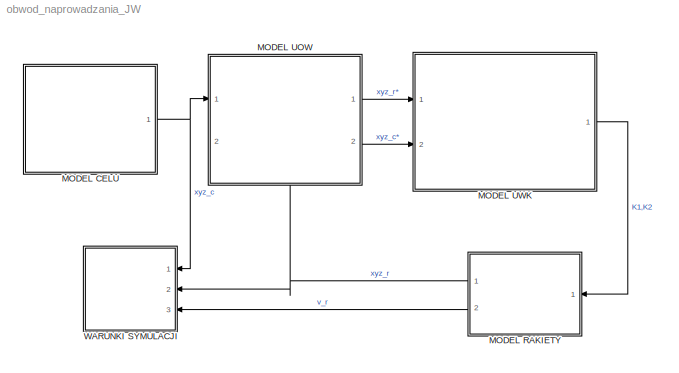
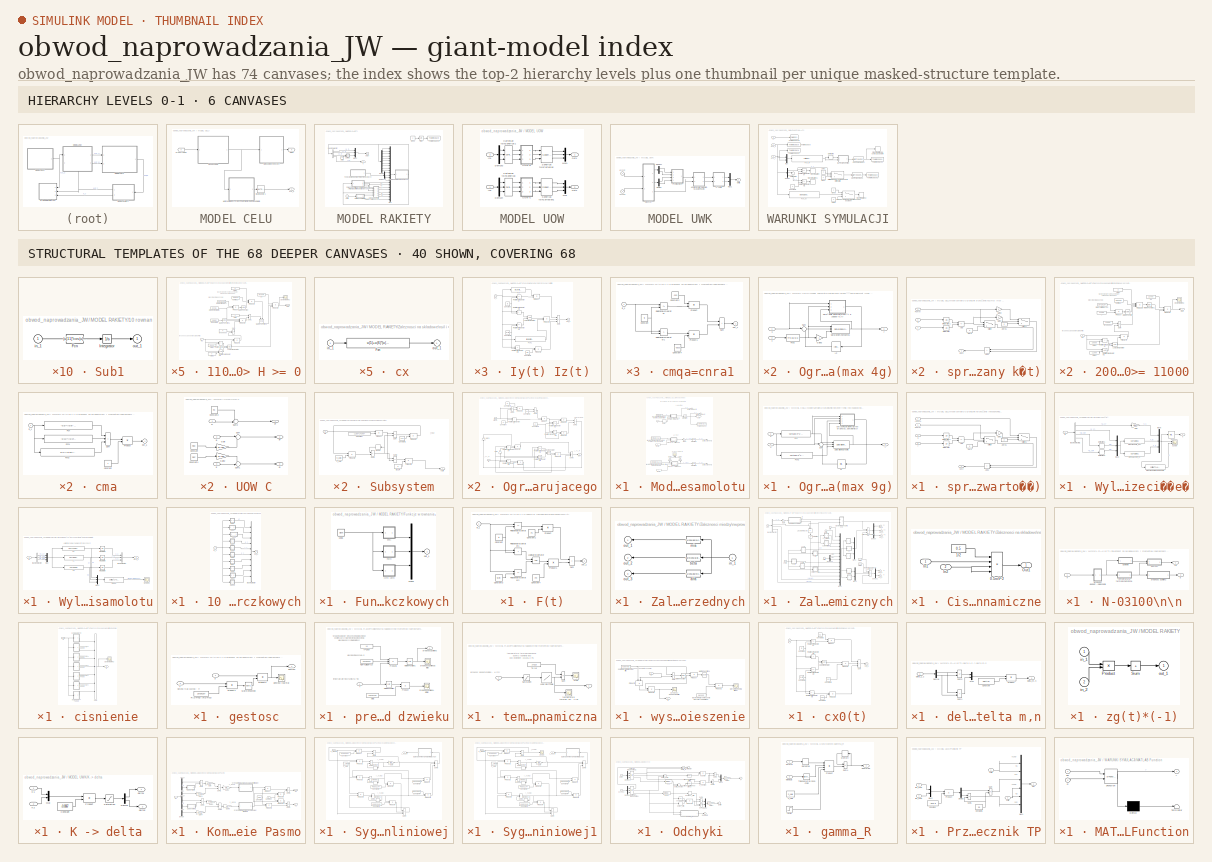
[diagram: thumbnail index - top-2 hierarchy levels (6 canvases) + 40 structural-template representatives of the remaining 68 canvases]
MODEL obwod_naprowadzania_JW
KIND model
BLOCK [SubSystem] MODEL CELU
  NameLocation = top
  Ports = [0, 1]
  RequestExecContextInheritance = off
  SID = 1047
BLOCK [BusToVector] MODEL CELU/Bus to Vector1
  SID = 1222
BLOCK [Goto] MODEL CELU/Goto1
  GotoTag = n
  SID = 1049
BLOCK [SubSystem] MODEL CELU/Model samolotu
  Ports = [1, 1]
  RequestExecContextInheritance = off
  SID = 1050
BLOCK [Delay] MODEL CELU/Model samolotu/Delay
  DelayLength = 1
  InputPortMap = u0
  Ports = [1, 1]
  SID = 1052
BLOCK [From] MODEL CELU/Model samolotu/From8
  GotoTag = v
  SID = 1053
BLOCK [From] MODEL CELU/Model samolotu/From9
  GotoTag = v
  SID = 1054
BLOCK [Gain] MODEL CELU/Model samolotu/Gain1
  Gain = -1
  SID = 1055
BLOCK [Gain] MODEL CELU/Model samolotu/Gain4
  Gain = 180/pi
  NameLocation = right
  SID = 1056
BLOCK [Gain] MODEL CELU/Model samolotu/Gain5
  Gain = 180/pi
  NameLocation = right
  SID = 1057
BLOCK [Goto] MODEL CELU/Model samolotu/Goto
  GotoTag = v
  SID = 1058
BLOCK [Integrator] MODEL CELU/Model samolotu/Integrator
  InitialCondition = v0
  Ports = [1, 1]
  SID = 1059
BLOCK [Integrator] MODEL CELU/Model samolotu/Integrator3
  InitialCondition = B_cel0
  Ports = [1, 1]
  SID = 1060
BLOCK [Integrator] MODEL CELU/Model samolotu/Integrator8
  InitialCondition = E_cel0
  Ports = [1, 1]
  SID = 1061
BLOCK [FromWorkspace] MODEL CELU/Model samolotu/Macierz sterowania\nprzyrostem k¹ta w azymucie samolotu
  SID = 1062
  VariableName = [T B_cel_dot]
BLOCK [FromWorkspace] MODEL CELU/Model samolotu/Macierz sterowania\nprzyrostem k¹ta w elewacji samolotu
  SID = 1063
  VariableName = [T E_cel_dot]
BLOCK [FromWorkspace] MODEL CELU/Model samolotu/Macierz sterowania\nprzyrostem prêdkoœci samolotu\n
  SID = 1064
  VariableName = [T Ac]
BLOCK [SubSystem] MODEL CELU/Model samolotu/Ogranicznik przeci¹¿enia\nazymut (max 4g)
  Ports = [2, 1]
  RequestExecContextInheritance = off
  SID = 1089
BLOCK [Fcn] MODEL CELU/Model samolotu/Ogranicznik przeci¹¿enia\nazymut (max 4g)/Fcn2
  Expr = 4*9.81/u(1)
  SID = 1092
BLOCK [Gain] MODEL CELU/Model samolotu/Ogranicznik przeci¹¿enia\nazymut (max 4g)/Gain3
  Gain = -1
  SID = 1093
BLOCK [InitialCondition] MODEL CELU/Model samolotu/Ogranicznik przeci¹¿enia\nazymut (max 4g)/IC
  SID = 1094
  Value = 0
BLOCK [Reference] MODEL CELU/Model samolotu/Ogranicznik przeci¹¿enia\nazymut (max 4g)/Saturation\nDynamic1  REF=simulink/Discontinuities/Saturation\nDynamic
  DoSatur = off
  LockScale = off
  OutDataType = fixdt(1, 16)
  OutDataTypeStr = Inherit: Same as second input
  OutMax = []
  OutMin = []
  OutScaling = 2^-10
  OutputDataTypeScalingMode = Same as second input
  Ports = [3, 1]
  RTWMemSecDataConstants = Inherit from model
  RTWMemSecDataInternal = Inherit from model
  RTWMemSecDataParameters = Inherit from model
  RTWMemSecFuncExecute = Inherit from model
  RTWMemSecFuncInitTerm = Inherit from model
  RndMeth = Floor
  SID = 1095
  SourceBlock = simulink/Discontinuities/Saturation\nDynamic
  SourceProductBaseCode = SL
  SourceType = Saturation Dynamic
BLOCK [Sum] MODEL CELU/Model samolotu/Ogranicznik przeci¹¿enia\nazymut (max 4g)/Sum
  Inputs = |++
  Ports = [2, 1]
  SID = 1096
BLOCK [SubSystem] MODEL CELU/Model samolotu/Ogranicznik przeci¹¿enia\nazymut (max 4g)/sprzê¿enie zwrotne\n(skrêt o zadany k¹t)
  Ports = [3, 1]
  RequestExecContextInheritance = off
  SID = 1097
BLOCK [Sum] MODEL CELU/Model samolotu/Ogranicznik przeci¹¿enia\nazymut (max 4g)/sprzê¿enie zwrotne\n(skrêt o zadany k¹t)/Add
  IconShape = rectangular
  Inputs = +-
  Ports = [2, 1]
  SID = 1101
BLOCK [Sum] MODEL CELU/Model samolotu/Ogranicznik przeci¹¿enia\nazymut (max 4g)/sprzê¿enie zwrotne\n(skrêt o zadany k¹t)/Add1
  IconShape = rectangular
  NameLocation = top
  Ports = [2, 1]
  SID = 1102
BLOCK [Inport] MODEL CELU/Model samolotu/Ogranicznik przeci¹¿enia\nazymut (max 4g)/sprzê¿enie zwrotne\n(skrêt o zadany k¹t)/Fcn(v)
  Port = 2
  SID = 1099
BLOCK [Gain] MODEL CELU/Model samolotu/Ogranicznik przeci¹¿enia\nazymut (max 4g)/sprzê¿enie zwrotne\n(skrêt o zadany k¹t)/Gain1
  Gain = -1
  SID = 1103
BLOCK [Gain] MODEL CELU/Model samolotu/Ogranicznik przeci¹¿enia\nazymut (max 4g)/sprzê¿enie zwrotne\n(skrêt o zadany k¹t)/Gain2
  Gain = -1
  SID = 1104
BLOCK [Integrator] MODEL CELU/Model samolotu/Ogranicznik przeci¹¿enia\nazymut (max 4g)/sprzê¿enie zwrotne\n(skrêt o zadany k¹t)/Integrator
  Ports = [1, 1]
  SID = 1105
BLOCK [Integrator] MODEL CELU/Model samolotu/Ogranicznik przeci¹¿enia\nazymut (max 4g)/sprzê¿enie zwrotne\n(skrêt o zadany k¹t)/Integrator1
  Ports = [1, 1]
  SID = 1106
BLOCK [Switch] MODEL CELU/Model samolotu/Ogranicznik przeci¹¿enia\nazymut (max 4g)/sprzê¿enie zwrotne\n(skrêt o zadany k¹t)/Switch
  Criteria = u2 > Threshold
  InputSameDT = off
  SID = 1107
  SaturateOnIntegerOverflow = off
  Threshold = 0.000001
BLOCK [Switch] MODEL CELU/Model samolotu/Ogranicznik przeci¹¿enia\nazymut (max 4g)/sprzê¿enie zwrotne\n(skrêt o zadany k¹t)/Switch1
  Criteria = u2 > Threshold
  InputSameDT = off
  SID = 1108
  SaturateOnIntegerOverflow = off
  Threshold = 0.000001
BLOCK [Constant] MODEL CELU/Model samolotu/Ogranicznik przeci¹¿enia\nazymut (max 4g)/sprzê¿enie zwrotne\n(skrêt o zadany k¹t)/Zero
  OutDataTypeStr = Inherit: Inherit via back propagation
  SID = 1109
  Value = 0
BLOCK [Constant] MODEL CELU/Model samolotu/Ogranicznik przeci¹¿enia\nazymut (max 4g)/sprzê¿enie zwrotne\n(skrêt o zadany k¹t)/Zero1
  OutDataTypeStr = Inherit: Inherit via back propagation
  SID = 1110
  Value = 0
BLOCK [Outport] MODEL CELU/Model samolotu/Ogranicznik przeci¹¿enia\nazymut (max 4g)/sprzê¿enie zwrotne\n(skrêt o zadany k¹t)/sprz
  NameLocation = top
  SID = 1111
BLOCK [Inport] MODEL CELU/Model samolotu/Ogranicznik przeci¹¿enia\nazymut (max 4g)/sprzê¿enie zwrotne\n(skrêt o zadany k¹t)/u
  SID = 1098
BLOCK [Inport] MODEL CELU/Model samolotu/Ogranicznik przeci¹¿enia\nazymut (max 4g)/sprzê¿enie zwrotne\n(skrêt o zadany k¹t)/y
  Port = 3
  SID = 1100
BLOCK [Inport] MODEL CELU/Model samolotu/Ogranicznik przeci¹¿enia\nazymut (max 4g)/u
  SID = 1090
BLOCK [Inport] MODEL CELU/Model samolotu/Ogranicznik przeci¹¿enia\nazymut (max 4g)/v
  Port = 2
  SID = 1091
BLOCK [Outport] MODEL CELU/Model samolotu/Ogranicznik przeci¹¿enia\nazymut (max 4g)/y
  SID = 1112
BLOCK [SubSystem] MODEL CELU/Model samolotu/Ogranicznik przeci¹¿enia\nelewacja (max 8g)
  Ports = [2, 1]
  RequestExecContextInheritance = off
  SID = 1113
BLOCK [Fcn] MODEL CELU/Model samolotu/Ogranicznik przeci¹¿enia\nelewacja (max 8g)/Fcn2
  Expr = 8*9.81/u(1)
  SID = 1116
BLOCK [Gain] MODEL CELU/Model samolotu/Ogranicznik przeci¹¿enia\nelewacja (max 8g)/Gain3
  Gain = -1
  SID = 1117
BLOCK [InitialCondition] MODEL CELU/Model samolotu/Ogranicznik przeci¹¿enia\nelewacja (max 8g)/IC
  SID = 1118
  Value = 0
BLOCK [Reference] MODEL CELU/Model samolotu/Ogranicznik przeci¹¿enia\nelewacja (max 8g)/Saturation\nDynamic1  REF=simulink/Discontinuities/Saturation\nDynamic
  DoSatur = off
  LockScale = off
  OutDataType = fixdt(1, 16)
  OutDataTypeStr = Inherit: Same as second input
  OutMax = []
  OutMin = []
  OutScaling = 2^-10
  OutputDataTypeScalingMode = Same as second input
  Ports = [3, 1]
  RTWMemSecDataConstants = Inherit from model
  RTWMemSecDataInternal = Inherit from model
  RTWMemSecDataParameters = Inherit from model
  RTWMemSecFuncExecute = Inherit from model
  RTWMemSecFuncInitTerm = Inherit from model
  RndMeth = Floor
  SID = 1119
  SourceBlock = simulink/Discontinuities/Saturation\nDynamic
  SourceProductBaseCode = SL
  SourceType = Saturation Dynamic
BLOCK [Sum] MODEL CELU/Model samolotu/Ogranicznik przeci¹¿enia\nelewacja (max 8g)/Sum
  Inputs = |++
  Ports = [2, 1]
  SID = 1120
BLOCK [SubSystem] MODEL CELU/Model samolotu/Ogranicznik przeci¹¿enia\nelewacja (max 8g)/sprzê¿enie zwrotne\n(skrêt o zadany k¹t)
  Ports = [3, 1]
  RequestExecContextInheritance = off
  SID = 1121
BLOCK [Sum] MODEL CELU/Model samolotu/Ogranicznik przeci¹¿enia\nelewacja (max 8g)/sprzê¿enie zwrotne\n(skrêt o zadany k¹t)/Add
  IconShape = rectangular
  Inputs = +-
  Ports = [2, 1]
  SID = 1125
BLOCK [Sum] MODEL CELU/Model samolotu/Ogranicznik przeci¹¿enia\nelewacja (max 8g)/sprzê¿enie zwrotne\n(skrêt o zadany k¹t)/Add1
  IconShape = rectangular
  NameLocation = top
  Ports = [2, 1]
  SID = 1126
BLOCK [Inport] MODEL CELU/Model samolotu/Ogranicznik przeci¹¿enia\nelewacja (max 8g)/sprzê¿enie zwrotne\n(skrêt o zadany k¹t)/Fcn(v)
  Port = 2
  SID = 1123
BLOCK [Gain] MODEL CELU/Model samolotu/Ogranicznik przeci¹¿enia\nelewacja (max 8g)/sprzê¿enie zwrotne\n(skrêt o zadany k¹t)/Gain1
  Gain = -1
  SID = 1127
BLOCK [Gain] MODEL CELU/Model samolotu/Ogranicznik przeci¹¿enia\nelewacja (max 8g)/sprzê¿enie zwrotne\n(skrêt o zadany k¹t)/Gain2
  Gain = -1
  SID = 1128
BLOCK [Integrator] MODEL CELU/Model samolotu/Ogranicznik przeci¹¿enia\nelewacja (max 8g)/sprzê¿enie zwrotne\n(skrêt o zadany k¹t)/Integrator
  Ports = [1, 1]
  SID = 1129
BLOCK [Integrator] MODEL CELU/Model samolotu/Ogranicznik przeci¹¿enia\nelewacja (max 8g)/sprzê¿enie zwrotne\n(skrêt o zadany k¹t)/Integrator1
  Ports = [1, 1]
  SID = 1130
BLOCK [Outport] MODEL CELU/Model samolotu/Ogranicznik przeci¹¿enia\nelewacja (max 8g)/sprzê¿enie zwrotne\n(skrêt o zadany k¹t)/Out1
  NameLocation = top
  SID = 1135
BLOCK [Switch] MODEL CELU/Model samolotu/Ogranicznik przeci¹¿enia\nelewacja (max 8g)/sprzê¿enie zwrotne\n(skrêt o zadany k¹t)/Switch
  Criteria = u2 > Threshold
  InputSameDT = off
  SID = 1131
  SaturateOnIntegerOverflow = off
  Threshold = 0.000001
BLOCK [Switch] MODEL CELU/Model samolotu/Ogranicznik przeci¹¿enia\nelewacja (max 8g)/sprzê¿enie zwrotne\n(skrêt o zadany k¹t)/Switch1
  Criteria = u2 > Threshold
  InputSameDT = off
  SID = 1132
  SaturateOnIntegerOverflow = off
  Threshold = 0.000001
BLOCK [Constant] MODEL CELU/Model samolotu/Ogranicznik przeci¹¿enia\nelewacja (max 8g)/sprzê¿enie zwrotne\n(skrêt o zadany k¹t)/Zero
  OutDataTypeStr = Inherit: Inherit via back propagation
  SID = 1133
  Value = 0
BLOCK [Constant] MODEL CELU/Model samolotu/Ogranicznik przeci¹¿enia\nelewacja (max 8g)/sprzê¿enie zwrotne\n(skrêt o zadany k¹t)/Zero1
  OutDataTypeStr = Inherit: Inherit via back propagation
  SID = 1134
  Value = 0
BLOCK [Inport] MODEL CELU/Model samolotu/Ogranicznik przeci¹¿enia\nelewacja (max 8g)/sprzê¿enie zwrotne\n(skrêt o zadany k¹t)/u
  SID = 1122
BLOCK [Inport] MODEL CELU/Model samolotu/Ogranicznik przeci¹¿enia\nelewacja (max 8g)/sprzê¿enie zwrotne\n(skrêt o zadany k¹t)/y
  Port = 3
  SID = 1124
BLOCK [Inport] MODEL CELU/Model samolotu/Ogranicznik przeci¹¿enia\nelewacja (max 8g)/u
  SID = 1114
BLOCK [Inport] MODEL CELU/Model samolotu/Ogranicznik przeci¹¿enia\nelewacja (max 8g)/v
  Port = 2
  SID = 1115
BLOCK [Outport] MODEL CELU/Model samolotu/Ogranicznik przeci¹¿enia\nelewacja (max 8g)/y
  SID = 1136
BLOCK [SubSystem] MODEL CELU/Model samolotu/Ogranicznik\nprzeci¹¿enia \nwypadkowego\n(max 9g)
  Ports = [2, 1]
  RequestExecContextInheritance = off
  SID = 1065
BLOCK [Fcn] MODEL CELU/Model samolotu/Ogranicznik\nprzeci¹¿enia \nwypadkowego\n(max 9g)/Fcn
  Expr = sqrt(abs(9^2-u(3)^2-u(2)^2))*9.81
  SID = 1068
BLOCK [Fcn] MODEL CELU/Model samolotu/Ogranicznik\nprzeci¹¿enia \nwypadkowego\n(max 9g)/Fcn2
  Expr = sqrt(abs(9^2-u(3)^2-u(2)^2))*-9.81
  SID = 1069
BLOCK [InitialCondition] MODEL CELU/Model samolotu/Ogranicznik\nprzeci¹¿enia \nwypadkowego\n(max 9g)/IC
  SID = 1070
  Value = 0
BLOCK [Reference] MODEL CELU/Model samolotu/Ogranicznik\nprzeci¹¿enia \nwypadkowego\n(max 9g)/Saturation\nDynamic  REF=simulink/Discontinuities/Saturation\nDynamic
  DoSatur = off
  LockScale = off
  OutDataType = fixdt(1, 16)
  OutDataTypeStr = Inherit: Same as second input
  OutMax = []
  OutMin = []
  OutScaling = 2^-10
  OutputDataTypeScalingMode = Same as second input
  Ports = [3, 1]
  RTWMemSecDataConstants = Inherit from model
  RTWMemSecDataInternal = Inherit from model
  RTWMemSecDataParameters = Inherit from model
  RTWMemSecFuncExecute = Inherit from model
  RTWMemSecFuncInitTerm = Inherit from model
  RndMeth = Floor
  SID = 1071
  SourceBlock = simulink/Discontinuities/Saturation\nDynamic
  SourceProductBaseCode = SL
  SourceType = Saturation Dynamic
BLOCK [Sum] MODEL CELU/Model samolotu/Ogranicznik\nprzeci¹¿enia \nwypadkowego\n(max 9g)/Sum
  Inputs = |++
  Ports = [2, 1]
  SID = 1072
BLOCK [Inport] MODEL CELU/Model samolotu/Ogranicznik\nprzeci¹¿enia \nwypadkowego\n(max 9g)/n
  Port = 2
  SID = 1067
BLOCK [SubSystem] MODEL CELU/Model samolotu/Ogranicznik\nprzeci¹¿enia \nwypadkowego\n(max 9g)/sprzê¿enie zwrotne\n(wzrost prêdkoœci o zadan¹ wartoœæ)
  Ports = [4, 1]
  RequestExecContextInheritance = off
  SID = 1073
BLOCK [Inport] MODEL CELU/Model samolotu/Ogranicznik\nprzeci¹¿enia \nwypadkowego\n(max 9g)/sprzê¿enie zwrotne\n(wzrost prêdkoœci o zadan¹ wartoœæ)/-Fcn(n)
  Port = 3
  SID = 1076
BLOCK [Sum] MODEL CELU/Model samolotu/Ogranicznik\nprzeci¹¿enia \nwypadkowego\n(max 9g)/sprzê¿enie zwrotne\n(wzrost prêdkoœci o zadan¹ wartoœæ)/Add
  IconShape = rectangular
  Inputs = +-
  Ports = [2, 1]
  SID = 1078
BLOCK [Sum] MODEL CELU/Model samolotu/Ogranicznik\nprzeci¹¿enia \nwypadkowego\n(max 9g)/sprzê¿enie zwrotne\n(wzrost prêdkoœci o zadan¹ wartoœæ)/Add1
  IconShape = rectangular
  NameLocation = top
  Ports = [2, 1]
  SID = 1079
BLOCK [Inport] MODEL CELU/Model samolotu/Ogranicznik\nprzeci¹¿enia \nwypadkowego\n(max 9g)/sprzê¿enie zwrotne\n(wzrost prêdkoœci o zadan¹ wartoœæ)/Fcn(n)
  SID = 1074
BLOCK [Gain] MODEL CELU/Model samolotu/Ogranicznik\nprzeci¹¿enia \nwypadkowego\n(max 9g)/sprzê¿enie zwrotne\n(wzrost prêdkoœci o zadan¹ wartoœæ)/Gain1
  Gain = -1
  SID = 1080
BLOCK [Integrator] MODEL CELU/Model samolotu/Ogranicznik\nprzeci¹¿enia \nwypadkowego\n(max 9g)/sprzê¿enie zwrotne\n(wzrost prêdkoœci o zadan¹ wartoœæ)/Integrator
  Ports = [1, 1]
  SID = 1081
BLOCK [Integrator] MODEL CELU/Model samolotu/Ogranicznik\nprzeci¹¿enia \nwypadkowego\n(max 9g)/sprzê¿enie zwrotne\n(wzrost prêdkoœci o zadan¹ wartoœæ)/Integrator1
  Ports = [1, 1]
  SID = 1082
BLOCK [Switch] MODEL CELU/Model samolotu/Ogranicznik\nprzeci¹¿enia \nwypadkowego\n(max 9g)/sprzê¿enie zwrotne\n(wzrost prêdkoœci o zadan¹ wartoœæ)/Switch
  Criteria = u2 > Threshold
  InputSameDT = off
  SID = 1083
  SaturateOnIntegerOverflow = off
  Threshold = 0.000001
BLOCK [Switch] MODEL CELU/Model samolotu/Ogranicznik\nprzeci¹¿enia \nwypadkowego\n(max 9g)/sprzê¿enie zwrotne\n(wzrost prêdkoœci o zadan¹ wartoœæ)/Switch1
  Criteria = u2 > Threshold
  InputSameDT = off
  SID = 1084
  SaturateOnIntegerOverflow = off
  Threshold = 0.000001
BLOCK [Constant] MODEL CELU/Model samolotu/Ogranicznik\nprzeci¹¿enia \nwypadkowego\n(max 9g)/sprzê¿enie zwrotne\n(wzrost prêdkoœci o zadan¹ wartoœæ)/Zero
  OutDataTypeStr = Inherit: Inherit via back propagation
  SID = 1085
  Value = 0
BLOCK [Constant] MODEL CELU/Model samolotu/Ogranicznik\nprzeci¹¿enia \nwypadkowego\n(max 9g)/sprzê¿enie zwrotne\n(wzrost prêdkoœci o zadan¹ wartoœæ)/Zero1
  OutDataTypeStr = Inherit: Inherit via back propagation
  SID = 1086
  Value = 0
BLOCK [Outport] MODEL CELU/Model samolotu/Ogranicznik\nprzeci¹¿enia \nwypadkowego\n(max 9g)/sprzê¿enie zwrotne\n(wzrost prêdkoœci o zadan¹ wartoœæ)/sprz
  SID = 1087
BLOCK [Inport] MODEL CELU/Model samolotu/Ogranicznik\nprzeci¹¿enia \nwypadkowego\n(max 9g)/sprzê¿enie zwrotne\n(wzrost prêdkoœci o zadan¹ wartoœæ)/u
  Port = 2
  SID = 1075
BLOCK [Inport] MODEL CELU/Model samolotu/Ogranicznik\nprzeci¹¿enia \nwypadkowego\n(max 9g)/sprzê¿enie zwrotne\n(wzrost prêdkoœci o zadan¹ wartoœæ)/y
  Port = 4
  SID = 1077
BLOCK [Inport] MODEL CELU/Model samolotu/Ogranicznik\nprzeci¹¿enia \nwypadkowego\n(max 9g)/u
  SID = 1066
BLOCK [Outport] MODEL CELU/Model samolotu/Ogranicznik\nprzeci¹¿enia \nwypadkowego\n(max 9g)/y
  SID = 1088
BLOCK [Outport] MODEL CELU/Model samolotu/Out Bus Element
  SID = 1138
BLOCK [Outport] MODEL CELU/Model samolotu/Out Bus Element1
  SID = 1139
BLOCK [Outport] MODEL CELU/Model samolotu/Out Bus Element2
  SID = 1140
BLOCK [Outport] MODEL CELU/Model samolotu/Out Bus Element3
  SID = 1141
BLOCK [Scope] MODEL CELU/Model samolotu/Scope2
  Floating = off
  NameLocation = right
  NumInputPorts = 2
  Ports = [2]
  SID = 1137
  ScopeSpecificationString = Simulink.scopes.TimeScopeBlockCfg('CurrentConfiguration', extmgr.ConfigurationSet(extmgr.Configuration('Core','General UI',true),extmgr.Configuration('Core','Source UI',true),extmgr.Configuration('Sources','WiredSimulink',true,'DataLoggingVariableName','ScopeData1'),extmgr.Configuration('Visuals','Time Domain',true,'SerializedDisplays',{struct('MinYLimReal','-1.00000','MaxYLimReal','1.00000','YLab...<+1437ch>
BLOCK [ToWorkspace] MODEL CELU/Model samolotu/To Workspace1
  FixptAsFi = on
  MaxDataPoints = inf
  Ports = [1]
  SID = 1347
  SampleTime = 0.25
  SaveFormat = Timeseries
  VariableName = Vc
BLOCK [Inport] MODEL CELU/Model samolotu/n
  SID = 1051
BLOCK [SubSystem] MODEL CELU/Wyliczanie przeci¹¿eñ
  Ports = [1, 1]
  RequestExecContextInheritance = off
  SID = 1147
BLOCK [BusSelector] MODEL CELU/Wyliczanie przeci¹¿eñ/Bus\nSelector1
  OutputSignals = a_c,v_c,B_cel,E_cel
  Ports = [1, 4]
  SID = 1149
BLOCK [Derivative] MODEL CELU/Wyliczanie przeci¹¿eñ/Derivative1
  SID = 1150
BLOCK [Derivative] MODEL CELU/Wyliczanie przeci¹¿eñ/Derivative2
  SID = 1151
BLOCK [Gain] MODEL CELU/Wyliczanie przeci¹¿eñ/Gain
  Gain = 1/9.81
  SID = 1152
BLOCK [InitialCondition] MODEL CELU/Wyliczanie przeci¹¿eñ/IC
  SID = 1153
  Value = 0
BLOCK [Inport] MODEL CELU/Wyliczanie przeci¹¿eñ/In
  SID = 1148
BLOCK [Mux] MODEL CELU/Wyliczanie przeci¹¿eñ/Mux3
  DisplayOption = bar
  Inputs = 3
  Ports = [3, 1]
  SID = 1154
BLOCK [Mux] MODEL CELU/Wyliczanie przeci¹¿eñ/Mux5
  DisplayOption = bar
  Inputs = 3
  Ports = [3, 1]
  SID = 1155
BLOCK [Scope] MODEL CELU/Wyliczanie przeci¹¿eñ/Scope
  Floating = off
  NumInputPorts = 2
  Ports = [2]
  SID = 1156
  ScopeSpecificationString = Simulink.scopes.TimeScopeBlockCfg('CurrentConfiguration', extmgr.ConfigurationSet(extmgr.Configuration('Core','General UI',true),extmgr.Configuration('Core','Source UI',true),extmgr.Configuration('Sources','WiredSimulink',true,'DataLoggingVariableName','ScopeData1'),extmgr.Configuration('Visuals','Time Domain',true,'SerializedDisplays',{struct('MinYLimReal','-11.39921','MaxYLimReal','12.59289','YL...<+2231ch>
BLOCK [Outport] MODEL CELU/Wyliczanie przeci¹¿eñ/n
  SID = 1160
BLOCK [Fcn] MODEL CELU/Wyliczanie przeci¹¿eñ/przeciazenie wypadkowe
  Expr = sqrt(u(1)^2+u(2)^2+u(3)^2)
  SID = 1157
BLOCK [Fcn] MODEL CELU/Wyliczanie przeci¹¿eñ/przeciazenie_azy
  Expr = u(1)*u(2)/9.81
  SID = 1158
BLOCK [Fcn] MODEL CELU/Wyliczanie przeci¹¿eñ/przeciazenie_el
  Expr = u(1)*u(3)/9.81
  SID = 1159
BLOCK [SubSystem] MODEL CELU/Wyliczanie wspó³rzêdnych kartezjañskich\nsamolotu
  Ports = [1, 1]
  RequestExecContextInheritance = off
  SID = 1161
BLOCK [BusCreator] MODEL CELU/Wyliczanie wspó³rzêdnych kartezjañskich\nsamolotu/Bus\nCreator
  DisplayOption = bar
  InheritFromInputs = on
  Inputs = 3
  Ports = [3, 1]
  SID = 1163
BLOCK [BusSelector] MODEL CELU/Wyliczanie wspó³rzêdnych kartezjañskich\nsamolotu/Bus\nSelector
  OutputSignals = v_c,B_cel,E_cel
  Ports = [1, 3]
  SID = 1164
BLOCK [Inport] MODEL CELU/Wyliczanie wspó³rzêdnych kartezjañskich\nsamolotu/In
  SID = 1162
BLOCK [Integrator] MODEL CELU/Wyliczanie wspó³rzêdnych kartezjañskich\nsamolotu/Integrator4
  InitialCondition = x0
  Ports = [1, 1]
  SID = 1165
BLOCK [Integrator] MODEL CELU/Wyliczanie wspó³rzêdnych kartezjañskich\nsamolotu/Integrator5
  InitialCondition = y0
  Ports = [1, 1]
  SID = 1166
BLOCK [Integrator] MODEL CELU/Wyliczanie wspó³rzêdnych kartezjañskich\nsamolotu/Integrator6
  InitialCondition = z0
  Ports = [1, 1]
  SID = 1167
BLOCK [Mux] MODEL CELU/Wyliczanie wspó³rzêdnych kartezjañskich\nsamolotu/Mux
  DisplayOption = bar
  Inputs = 3
  Ports = [3, 1]
  SID = 1168
BLOCK [Mux] MODEL CELU/Wyliczanie wspó³rzêdnych kartezjañskich\nsamolotu/Mux1
  DisplayOption = bar
  Inputs = 3
  Ports = [3, 1]
  SID = 1169
BLOCK [Scope] MODEL CELU/Wyliczanie wspó³rzêdnych kartezjañskich\nsamolotu/Scope2
  Floating = off
  NumInputPorts = 1
  Ports = [1]
  SID = 1170
  ScopeSpecificationString = Simulink.scopes.TimeScopeBlockCfg('CurrentConfiguration', extmgr.ConfigurationSet(extmgr.Configuration('Core','General UI',true),extmgr.Configuration('Core','Source UI',true),extmgr.Configuration('Sources','WiredSimulink',true,'DataLoggingVariableName','ScopeData2'),extmgr.Configuration('Visuals','Time Domain',true,'SerializedDisplays',{struct('MinYLimReal','238.1199','MaxYLimReal','856.9209','YLa...<+1380ch>
BLOCK [Fcn] MODEL CELU/Wyliczanie wspó³rzêdnych kartezjañskich\nsamolotu/modul
  Expr = sqrt(u(1)^2+u(2)^2+u(3)^2)
  SID = 1171
BLOCK [Fcn] MODEL CELU/Wyliczanie wspó³rzêdnych kartezjañskich\nsamolotu/vx
  Expr = u(1)*cos(u(2))*cos(u(3))
  SID = 1172
BLOCK [Fcn] MODEL CELU/Wyliczanie wspó³rzêdnych kartezjañskich\nsamolotu/vy
  Expr = u(1)*sin(u(2))*cos(u(3))
  SID = 1173
BLOCK [Fcn] MODEL CELU/Wyliczanie wspó³rzêdnych kartezjañskich\nsamolotu/vz
  Expr = u(1)*sin(u(3))
  SID = 1174
BLOCK [Outport] MODEL CELU/Wyliczanie wspó³rzêdnych kartezjañskich\nsamolotu/xyz_c
  SID = 1175
BLOCK [From] MODEL CELU/przeci¹¿enia1
  GotoTag = n
  SID = 1177
BLOCK [Outport] MODEL CELU/xyz_c
  SID = 1178
BLOCK [SubSystem] MODEL RAKIETY
  NameLocation = top
  Ports = [1, 2]
  RequestExecContextInheritance = off
  SID = 446
BLOCK [SubSystem] MODEL RAKIETY/10 rownan\nrozniczkowych
  Ports = [1, 1]
  RequestExecContextInheritance = off
  SID = 448
  ShowPortLabels = none
BLOCK [BusCreator] MODEL RAKIETY/10 rownan\nrozniczkowych/Bus\nCreator
  DisplayOption = bar
  InheritFromInputs = on
  Inputs = 10
  Ports = [10, 1]
  SID = 1046
BLOCK [SubSystem] MODEL RAKIETY/10 rownan\nrozniczkowych/Sub1
  Ports = [1, 1]
  RequestExecContextInheritance = off
  SID = 451
  ShowPortLabels = none
BLOCK [Fcn] MODEL RAKIETY/10 rownan\nrozniczkowych/Sub1/Fcn
  Expr = (u[11]*cos(u[17])*cos(u[16])-u[18]-u[12]*g*sin(u[3]))/u[12]
  SID = 453
BLOCK [Integrator] MODEL RAKIETY/10 rownan\nrozniczkowych/Sub1/Integrator
  InitialCondition = 1
  Ports = [1, 1]
  SID = 454
BLOCK [Inport] MODEL RAKIETY/10 rownan\nrozniczkowych/Sub1/in_1
  SID = 452
BLOCK [Outport] MODEL RAKIETY/10 rownan\nrozniczkowych/Sub1/out_1
  SID = 455
BLOCK [SubSystem] MODEL RAKIETY/10 rownan\nrozniczkowych/Sub10
  Ports = [1, 1]
  RequestExecContextInheritance = off
  SID = 456
  ShowPortLabels = none
BLOCK [Fcn] MODEL RAKIETY/10 rownan\nrozniczkowych/Sub10/Fcn9
  Expr = (u[7]*sin(fi)+u[8]*cos(fi))/cos(u[9])
  SID = 458
BLOCK [Integrator] MODEL RAKIETY/10 rownan\nrozniczkowych/Sub10/Integrator9
  InitialCondition = atan(y0/x0)+(beta_0_prim_srcp*tster)
  Ports = [1, 1]
  SID = 459
BLOCK [Inport] MODEL RAKIETY/10 rownan\nrozniczkowych/Sub10/in_1
  SID = 457
BLOCK [Outport] MODEL RAKIETY/10 rownan\nrozniczkowych/Sub10/out_1
  SID = 460
BLOCK [SubSystem] MODEL RAKIETY/10 rownan\nrozniczkowych/Sub2
  Ports = [1, 1]
  RequestExecContextInheritance = off
  SID = 461
  ShowPortLabels = none
BLOCK [Fcn] MODEL RAKIETY/10 rownan\nrozniczkowych/Sub2/Fcn1
  Expr = (u[11]*(sin(u[17])*sin(u[15])+cos(u[17])*sin(u[16])*cos(u[15]))+u[20]*cos(u[15])+u[19]*sin(u[15]))/(u[12]*u[1]*cos(u[3]))
  SID = 463
BLOCK [Integrator] MODEL RAKIETY/10 rownan\nrozniczkowych/Sub2/Integrator1
  InitialCondition = atan(y0/x0)+(beta_0_prim_srcp*tster)
  Ports = [1, 1]
  SID = 464
BLOCK [Inport] MODEL RAKIETY/10 rownan\nrozniczkowych/Sub2/in_1
  SID = 462
BLOCK [Outport] MODEL RAKIETY/10 rownan\nrozniczkowych/Sub2/out_1
  SID = 465
BLOCK [SubSystem] MODEL RAKIETY/10 rownan\nrozniczkowych/Sub3
  Ports = [1, 1]
  RequestExecContextInheritance = off
  SID = 466
  ShowPortLabels = none
BLOCK [Fcn] MODEL RAKIETY/10 rownan\nrozniczkowych/Sub3/Fcn1
  Expr = (u[11]*(sin(u[17])*cos(u[15])+cos(u[17])*sin(u[16])*sin(u[15]))-u[20]*sin(u[15])+u[19]*cos(u[15])-u[12]*g*cos(u[3]))/(u[12]*u[1])
  SID = 468
BLOCK [Integrator] MODEL RAKIETY/10 rownan\nrozniczkowych/Sub3/Integrator3
  InitialCondition = (atan(z0/(sqrt(x0^2+y0^2)))+(9.5*pi/180)+(epsilon_0_prim_srcp*tster))*(1/1.05)
  Ports = [1, 1]
  SID = 469
BLOCK [Inport] MODEL RAKIETY/10 rownan\nrozniczkowych/Sub3/in_1
  SID = 467
BLOCK [Outport] MODEL RAKIETY/10 rownan\nrozniczkowych/Sub3/out_1
  SID = 470
BLOCK [SubSystem] MODEL RAKIETY/10 rownan\nrozniczkowych/Sub4
  Ports = [1, 1]
  RequestExecContextInheritance = off
  SID = 471
  ShowPortLabels = none
BLOCK [Fcn] MODEL RAKIETY/10 rownan\nrozniczkowych/Sub4/Fcn3
  Expr = u[1]*cos(u[3])*cos(u[2])
  SID = 473
BLOCK [Integrator] MODEL RAKIETY/10 rownan\nrozniczkowych/Sub4/Int
  Ports = [1, 1]
  SID = 474
BLOCK [Inport] MODEL RAKIETY/10 rownan\nrozniczkowych/Sub4/in_1
  SID = 472
BLOCK [Outport] MODEL RAKIETY/10 rownan\nrozniczkowych/Sub4/out_1
  SID = 475
BLOCK [SubSystem] MODEL RAKIETY/10 rownan\nrozniczkowych/Sub5
  Ports = [1, 1]
  RequestExecContextInheritance = off
  SID = 476
  ShowPortLabels = none
BLOCK [Fcn] MODEL RAKIETY/10 rownan\nrozniczkowych/Sub5/Fcn4
  Expr = u[1]*cos(u[3])*sin(u[2])
  SID = 478
BLOCK [Integrator] MODEL RAKIETY/10 rownan\nrozniczkowych/Sub5/Integrator4
  Ports = [1, 1]
  SID = 479
BLOCK [Inport] MODEL RAKIETY/10 rownan\nrozniczkowych/Sub5/in_1
  SID = 477
BLOCK [Outport] MODEL RAKIETY/10 rownan\nrozniczkowych/Sub5/out_1
  SID = 480
BLOCK [SubSystem] MODEL RAKIETY/10 rownan\nrozniczkowych/Sub6
  Ports = [1, 1]
  RequestExecContextInheritance = off
  SID = 481
  ShowPortLabels = none
BLOCK [Fcn] MODEL RAKIETY/10 rownan\nrozniczkowych/Sub6/Fcn5
  Expr = -u[1]*sin(u[3])
  SID = 483
BLOCK [Integrator] MODEL RAKIETY/10 rownan\nrozniczkowych/Sub6/Integrator5
  Ports = [1, 1]
  SID = 484
BLOCK [Inport] MODEL RAKIETY/10 rownan\nrozniczkowych/Sub6/in_1
  SID = 482
BLOCK [Outport] MODEL RAKIETY/10 rownan\nrozniczkowych/Sub6/out_1
  SID = 485
BLOCK [SubSystem] MODEL RAKIETY/10 rownan\nrozniczkowych/Sub7
  Ports = [1, 1]
  RequestExecContextInheritance = off
  SID = 486
  ShowPortLabels = none
BLOCK [Fcn] MODEL RAKIETY/10 rownan\nrozniczkowych/Sub7/Fcn6
  Expr = u[21]/u[13]
  SID = 488
BLOCK [Integrator] MODEL RAKIETY/10 rownan\nrozniczkowych/Sub7/Integrator6
  Ports = [1, 1]
  SID = 489
BLOCK [Inport] MODEL RAKIETY/10 rownan\nrozniczkowych/Sub7/in_1
  SID = 487
BLOCK [Outport] MODEL RAKIETY/10 rownan\nrozniczkowych/Sub7/out_1
  SID = 490
BLOCK [SubSystem] MODEL RAKIETY/10 rownan\nrozniczkowych/Sub8
  Ports = [1, 1]
  RequestExecContextInheritance = off
  SID = 491
  ShowPortLabels = none
BLOCK [Fcn] MODEL RAKIETY/10 rownan\nrozniczkowych/Sub8/Fcn7
  Expr = u[22]/u[14]
  SID = 493
BLOCK [Integrator] MODEL RAKIETY/10 rownan\nrozniczkowych/Sub8/Integrator7
  Ports = [1, 1]
  SID = 494
BLOCK [Inport] MODEL RAKIETY/10 rownan\nrozniczkowych/Sub8/in_1
  SID = 492
BLOCK [Outport] MODEL RAKIETY/10 rownan\nrozniczkowych/Sub8/out_1
  SID = 495
BLOCK [SubSystem] MODEL RAKIETY/10 rownan\nrozniczkowych/Sub9
  Ports = [1, 1]
  RequestExecContextInheritance = off
  SID = 496
  ShowPortLabels = none
BLOCK [Fcn] MODEL RAKIETY/10 rownan\nrozniczkowych/Sub9/Fcn8
  Expr = u[7]*cos(fi)-u[8]*sin(fi)
  SID = 498
BLOCK [Integrator] MODEL RAKIETY/10 rownan\nrozniczkowych/Sub9/Integrator8
  InitialCondition = (atan(z0/(sqrt(x0^2+y0^2)))+(9.5*pi/180)+(epsilon_0_prim_srcp*tster))*(1/1.05)
  Ports = [1, 1]
  SID = 499
BLOCK [Inport] MODEL RAKIETY/10 rownan\nrozniczkowych/Sub9/in_1
  SID = 497
BLOCK [Outport] MODEL RAKIETY/10 rownan\nrozniczkowych/Sub9/out_1
  SID = 500
BLOCK [Inport] MODEL RAKIETY/10 rownan\nrozniczkowych/in_1
  NameLocation = top
  SID = 449
BLOCK [Outport] MODEL RAKIETY/10 rownan\nrozniczkowych/out_1
  NameLocation = top
  SID = 501
BLOCK [BusSelector] MODEL RAKIETY/Bus\nSelector
  OutputSignals = x_r,y_r,z_r,vr
  Ports = [1, 4]
  SID = 1320
BLOCK [Demux] MODEL RAKIETY/Demux
  DisplayOption = none
  Outputs = 10
  Ports = [1, 10]
  SID = 502
BLOCK [Demux] MODEL RAKIETY/Demux1
  DisplayOption = none
  Outputs = 3
  Ports = [1, 3]
  SID = 503
BLOCK [SubSystem] MODEL RAKIETY/Funkcje w rownaniach\nrozniczkowych
  NameLocation = top
  Ports = [0, 1]
  RequestExecContextInheritance = off
  SID = 504
  ShowPortLabels = none
BLOCK [SubSystem] MODEL RAKIETY/Funkcje w rownaniach\nrozniczkowych/F(t)
  Ports = [1, 1]
  RequestExecContextInheritance = off
  SID = 505
  ShowPortLabels = none
BLOCK [Constant] MODEL RAKIETY/Funkcje w rownaniach\nrozniczkowych/F(t)/Constant
  SID = 507
  Value = ts
BLOCK [Constant] MODEL RAKIETY/Funkcje w rownaniach\nrozniczkowych/F(t)/Constant1
  SID = 508
  Value = Fs
BLOCK [Constant] MODEL RAKIETY/Funkcje w rownaniach\nrozniczkowych/F(t)/Constant3
  SID = 509
  Value = ts+tm
BLOCK [Constant] MODEL RAKIETY/Funkcje w rownaniach\nrozniczkowych/F(t)/Constant4
  SID = 510
  Value = Fm
BLOCK [Logic] MODEL RAKIETY/Funkcje w rownaniach\nrozniczkowych/F(t)/Logical\nOperator
  Ports = [2, 1]
  SID = 511
BLOCK [Product] MODEL RAKIETY/Funkcje w rownaniach\nrozniczkowych/F(t)/Product
  InputSameDT = on
  OutDataTypeStr = Inherit: Same as first input
  Ports = [2, 1]
  RndMeth = Zero
  SID = 512
  SaturateOnIntegerOverflow = on
BLOCK [Product] MODEL RAKIETY/Funkcje w rownaniach\nrozniczkowych/F(t)/Product1
  InputSameDT = on
  OutDataTypeStr = Inherit: Same as first input
  Ports = [2, 1]
  RndMeth = Zero
  SID = 513
  SaturateOnIntegerOverflow = on
BLOCK [RelationalOperator] MODEL RAKIETY/Funkcje w rownaniach\nrozniczkowych/F(t)/Relational\nOperator
  Operator = <=
  Ports = [2, 1]
  SID = 514
BLOCK [RelationalOperator] MODEL RAKIETY/Funkcje w rownaniach\nrozniczkowych/F(t)/Relational\nOperator1
  Operator = >
  Ports = [2, 1]
  SID = 515
BLOCK [RelationalOperator] MODEL RAKIETY/Funkcje w rownaniach\nrozniczkowych/F(t)/Relational\nOperator2
  Operator = <=
  Ports = [2, 1]
  SID = 516
BLOCK [Sum] MODEL RAKIETY/Funkcje w rownaniach\nrozniczkowych/F(t)/Sum
  IconShape = rectangular
  InputSameDT = on
  OutDataTypeStr = Inherit: Same as first input
  Ports = [2, 1]
  SID = 517
  SaturateOnIntegerOverflow = on
BLOCK [Inport] MODEL RAKIETY/Funkcje w rownaniach\nrozniczkowych/F(t)/in_1
  NameLocation = top
  SID = 506
BLOCK [Outport] MODEL RAKIETY/Funkcje w rownaniach\nrozniczkowych/F(t)/out_1
  NameLocation = top
  SID = 518
BLOCK [SubSystem] MODEL RAKIETY/Funkcje w rownaniach\nrozniczkowych/Iy(t) Iz(t)
  Ports = [1, 1]
  RequestExecContextInheritance = off
  SID = 519
  ShowPortLabels = none
BLOCK [Constant] MODEL RAKIETY/Funkcje w rownaniach\nrozniczkowych/Iy(t) Iz(t)/Constant
  SID = 521
  Value = ts
BLOCK [Constant] MODEL RAKIETY/Funkcje w rownaniach\nrozniczkowych/Iy(t) Iz(t)/Constant1
  SID = 522
  Value = Im1
BLOCK [Constant] MODEL RAKIETY/Funkcje w rownaniach\nrozniczkowych/Iy(t) Iz(t)/Constant3
  SID = 523
  Value = ts+tm
BLOCK [Fcn] MODEL RAKIETY/Funkcje w rownaniach\nrozniczkowych/Iy(t) Iz(t)/Fcn
  Expr = ((Is1-Is0)/ts)*u(1)+Is0
  SID = 524
BLOCK [Fcn] MODEL RAKIETY/Funkcje w rownaniach\nrozniczkowych/Iy(t) Iz(t)/Fcn1
  Expr = ((Im1-Im0)/tm)*u[1]+(ts*(Im0-Im1)+tm*Im0)/tm
  SID = 525
BLOCK [Logic] MODEL RAKIETY/Funkcje w rownaniach\nrozniczkowych/Iy(t) Iz(t)/Logical\nOperator
  Ports = [2, 1]
  SID = 526
BLOCK [Product] MODEL RAKIETY/Funkcje w rownaniach\nrozniczkowych/Iy(t) Iz(t)/Product
  InputSameDT = on
  OutDataTypeStr = Inherit: Same as first input
  Ports = [2, 1]
  RndMeth = Zero
  SID = 527
  SaturateOnIntegerOverflow = on
BLOCK [Product] MODEL RAKIETY/Funkcje w rownaniach\nrozniczkowych/Iy(t) Iz(t)/Product1
  InputSameDT = on
  OutDataTypeStr = Inherit: Same as first input
  Ports = [2, 1]
  RndMeth = Zero
  SID = 528
  SaturateOnIntegerOverflow = on
BLOCK [Product] MODEL RAKIETY/Funkcje w rownaniach\nrozniczkowych/Iy(t) Iz(t)/Product2
  InputSameDT = on
  OutDataTypeStr = Inherit: Same as first input
  Ports = [2, 1]
  RndMeth = Zero
  SID = 529
  SaturateOnIntegerOverflow = on
BLOCK [RelationalOperator] MODEL RAKIETY/Funkcje w rownaniach\nrozniczkowych/Iy(t) Iz(t)/Relational\nOperator
  Operator = <=
  Ports = [2, 1]
  SID = 530
BLOCK [RelationalOperator] MODEL RAKIETY/Funkcje w rownaniach\nrozniczkowych/Iy(t) Iz(t)/Relational\nOperator1
  Operator = >
  Ports = [2, 1]
  SID = 531
BLOCK [RelationalOperator] MODEL RAKIETY/Funkcje w rownaniach\nrozniczkowych/Iy(t) Iz(t)/Relational\nOperator2
  Operator = <=
  Ports = [2, 1]
  SID = 532
BLOCK [RelationalOperator] MODEL RAKIETY/Funkcje w rownaniach\nrozniczkowych/Iy(t) Iz(t)/Relational\nOperator3
  Operator = >
  Ports = [2, 1]
  SID = 533
BLOCK [Sum] MODEL RAKIETY/Funkcje w rownaniach\nrozniczkowych/Iy(t) Iz(t)/Sum
  IconShape = rectangular
  InputSameDT = on
  Inputs = +++
  OutDataTypeStr = Inherit: Same as first input
  Ports = [3, 1]
  SID = 534
  SaturateOnIntegerOverflow = on
BLOCK [Inport] MODEL RAKIETY/Funkcje w rownaniach\nrozniczkowych/Iy(t) Iz(t)/in_1
  NameLocation = top
  SID = 520
BLOCK [Outport] MODEL RAKIETY/Funkcje w rownaniach\nrozniczkowych/Iy(t) Iz(t)/out_1
  NameLocation = top
  SID = 535
BLOCK [Mux] MODEL RAKIETY/Funkcje w rownaniach\nrozniczkowych/Mux2
  DisplayOption = bar
  Inputs = 3
  Ports = [3, 1]
  SID = 536
BLOCK [Clock] MODEL RAKIETY/Funkcje w rownaniach\nrozniczkowych/czas
  SID = 538
BLOCK [SubSystem] MODEL RAKIETY/Funkcje w rownaniach\nrozniczkowych/m(t)
  Ports = [1, 1]
  RequestExecContextInheritance = off
  SID = 539
  ShowPortLabels = none
BLOCK [Constant] MODEL RAKIETY/Funkcje w rownaniach\nrozniczkowych/m(t)/Constant
  SID = 541
  Value = ts
BLOCK [Constant] MODEL RAKIETY/Funkcje w rownaniach\nrozniczkowych/m(t)/Constant1
  SID = 542
  Value = 262.3
BLOCK [Constant] MODEL RAKIETY/Funkcje w rownaniach\nrozniczkowych/m(t)/Constant3
  SID = 543
  Value = ts+tm
BLOCK [Fcn] MODEL RAKIETY/Funkcje w rownaniach\nrozniczkowych/m(t)/Fcn
  Expr = 952.7-(400/ts)*u(1)
  SID = 544
BLOCK [Fcn] MODEL RAKIETY/Funkcje w rownaniach\nrozniczkowych/m(t)/Fcn1
  Expr = 422.3-(160/tm)*(u(1)-ts)
  SID = 545
BLOCK [Logic] MODEL RAKIETY/Funkcje w rownaniach\nrozniczkowych/m(t)/Logical\nOperator
  Ports = [2, 1]
  SID = 546
BLOCK [Product] MODEL RAKIETY/Funkcje w rownaniach\nrozniczkowych/m(t)/Product
  InputSameDT = on
  OutDataTypeStr = Inherit: Same as first input
  Ports = [2, 1]
  RndMeth = Zero
  SID = 547
  SaturateOnIntegerOverflow = on
BLOCK [Product] MODEL RAKIETY/Funkcje w rownaniach\nrozniczkowych/m(t)/Product1
  InputSameDT = on
  OutDataTypeStr = Inherit: Same as first input
  Ports = [2, 1]
  RndMeth = Zero
  SID = 548
  SaturateOnIntegerOverflow = on
BLOCK [Product] MODEL RAKIETY/Funkcje w rownaniach\nrozniczkowych/m(t)/Product2
  InputSameDT = on
  OutDataTypeStr = Inherit: Same as first input
  Ports = [2, 1]
  RndMeth = Zero
  SID = 549
  SaturateOnIntegerOverflow = on
BLOCK [RelationalOperator] MODEL RAKIETY/Funkcje w rownaniach\nrozniczkowych/m(t)/Relational\nOperator
  Operator = <=
  Ports = [2, 1]
  SID = 550
BLOCK [RelationalOperator] MODEL RAKIETY/Funkcje w rownaniach\nrozniczkowych/m(t)/Relational\nOperator1
  Operator = >
  Ports = [2, 1]
  SID = 551
BLOCK [RelationalOperator] MODEL RAKIETY/Funkcje w rownaniach\nrozniczkowych/m(t)/Relational\nOperator2
  Operator = <=
  Ports = [2, 1]
  SID = 552
BLOCK [RelationalOperator] MODEL RAKIETY/Funkcje w rownaniach\nrozniczkowych/m(t)/Relational\nOperator3
  Operator = >
  Ports = [2, 1]
  SID = 553
BLOCK [Sum] MODEL RAKIETY/Funkcje w rownaniach\nrozniczkowych/m(t)/Sum
  IconShape = rectangular
  InputSameDT = on
  Inputs = +++
  OutDataTypeStr = Inherit: Same as first input
  Ports = [3, 1]
  SID = 554
  SaturateOnIntegerOverflow = on
BLOCK [Inport] MODEL RAKIETY/Funkcje w rownaniach\nrozniczkowych/m(t)/in_1
  NameLocation = top
  SID = 540
BLOCK [Outport] MODEL RAKIETY/Funkcje w rownaniach\nrozniczkowych/m(t)/out_1
  NameLocation = top
  SID = 555
BLOCK [Outport] MODEL RAKIETY/Funkcje w rownaniach\nrozniczkowych/out_1
  NameLocation = top
  SID = 556
BLOCK [Mux] MODEL RAKIETY/Mux
  Inputs = 22
  NameLocation = top
  Ports = [22, 1]
  SID = 557
BLOCK [Mux] MODEL RAKIETY/Mux2
  DisplayOption = bar
  Inputs = 3
  Ports = [3, 1]
  SID = 558
BLOCK [Constant] MODEL RAKIETY/One1
  OutDataTypeStr = Inherit: Inherit via back propagation
  SID = 1274
BLOCK [Integrator] MODEL RAKIETY/Timer
  NameLocation = top
  Ports = [1, 1]
  SID = 1275
BLOCK [ToWorkspace] MODEL RAKIETY/To Workspace1
  FixptAsFi = on
  MaxDataPoints = 1
  Ports = [1]
  SID = 1276
  SampleTime = -1
  VariableName = r_time
BLOCK [SubSystem] MODEL RAKIETY/Zaleznosci miedzy\nwprowadzonymi ukladami\nwspolrzednych
  Ports = [1, 3]
  RequestExecContextInheritance = off
  SID = 601
  ShowPortLabels = none
BLOCK [Fcn] MODEL RAKIETY/Zaleznosci miedzy\nwprowadzonymi ukladami\nwspolrzednych/alfa
  Expr = (1/cos(asin(cos(u[3])*cos(fi)*sin(u[2]-u[10])+sin(fi)*sin(u[9])*cos(u[3])*cos(u[2]-u[10])-sin(u[3])*cos(u[9])*sin(fi))))*(cos(fi)*sin(u[9])*cos(u[3])*cos(u[2]-u[10])-cos(u[3])*sin(fi)*sin(u[2]-u[10])-sin(u[3])*cos(fi)*cos(u[9]))
  SID = 606
BLOCK [Fcn] MODEL RAKIETY/Zaleznosci miedzy\nwprowadzonymi ukladami\nwspolrzednych/beta
  Expr = asin(cos(u[3])*cos(fi)*sin(u[2]-u[10])+sin(fi)*sin(u[9])*cos(u[3])*cos(u[2]-u[10])-sin(u[3])*cos(u[9])*sin(fi))
  SID = 607
BLOCK [Inport] MODEL RAKIETY/Zaleznosci miedzy\nwprowadzonymi ukladami\nwspolrzednych/in_1
  SID = 602
BLOCK [Fcn] MODEL RAKIETY/Zaleznosci miedzy\nwprowadzonymi ukladami\nwspolrzednych/mia
  Expr = (1/cos(asin(cos(u[3])*cos(fi)*sin(u[2]-u[10])+sin(fi)*sin(u[9])*cos(u[3])*cos(u[2]-u[10])-sin(u[3])*cos(u[9])*sin(fi))))*(sin(u[3])*cos(fi)*sin(u[2]-u[10])+sin(fi)*sin(u[9])*sin(u[3])*cos(u[2]-u[10])+sin(fi)*cos(u[9])*cos(u[3]))
  SID = 608
BLOCK [Outport] MODEL RAKIETY/Zaleznosci miedzy\nwprowadzonymi ukladami\nwspolrzednych/out_1
  SID = 609
BLOCK [Outport] MODEL RAKIETY/Zaleznosci miedzy\nwprowadzonymi ukladami\nwspolrzednych/out_2
  Port = 2
  SID = 610
BLOCK [Outport] MODEL RAKIETY/Zaleznosci miedzy\nwprowadzonymi ukladami\nwspolrzednych/out_3
  Port = 3
  SID = 611
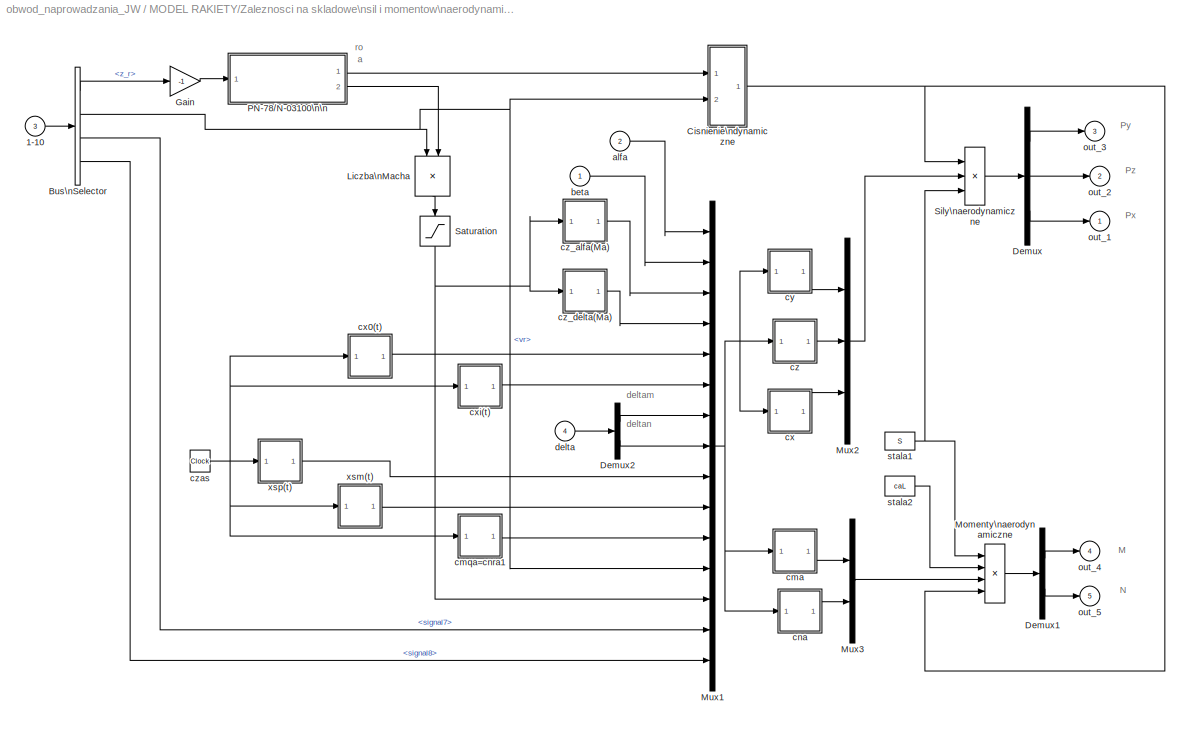
BLOCK [SubSystem] MODEL RAKIETY/Zaleznosci na skladowe\nsil i momentow\naerodynamicznych
  Ports = [4, 5]
  RequestExecContextInheritance = off
  SID = 612
  ShowPortLabels = none
BLOCK [Inport] MODEL RAKIETY/Zaleznosci na skladowe\nsil i momentow\naerodynamicznych/1-10
  NameLocation = top
  Port = 3
  SID = 615
BLOCK [BusSelector] MODEL RAKIETY/Zaleznosci na skladowe\nsil i momentow\naerodynamicznych/Bus\nSelector
  OutputSignals = z_r,vr,signal7,signal8
  Ports = [1, 4]
  SID = 617
BLOCK [SubSystem] MODEL RAKIETY/Zaleznosci na skladowe\nsil i momentow\naerodynamicznych/Cisnienie\ndynamiczne
  Ports = [2, 1]
  RequestExecContextInheritance = off
  SID = 618
BLOCK [Product] MODEL RAKIETY/Zaleznosci na skladowe\nsil i momentow\naerodynamicznych/Cisnienie\ndynamiczne/0.5roV^2
  InputSameDT = on
  Inputs = 4
  OutDataTypeStr = Inherit: Same as first input
  Ports = [4, 1]
  RndMeth = Zero
  SID = 621
  SaturateOnIntegerOverflow = on
BLOCK [Constant] MODEL RAKIETY/Zaleznosci na skladowe\nsil i momentow\naerodynamicznych/Cisnienie\ndynamiczne/1//2
  SID = 622
  Value = 0.5
BLOCK [Inport] MODEL RAKIETY/Zaleznosci na skladowe\nsil i momentow\naerodynamicznych/Cisnienie\ndynamiczne/In1
  SID = 619
BLOCK [Inport] MODEL RAKIETY/Zaleznosci na skladowe\nsil i momentow\naerodynamicznych/Cisnienie\ndynamiczne/In2
  Port = 2
  SID = 620
BLOCK [Outport] MODEL RAKIETY/Zaleznosci na skladowe\nsil i momentow\naerodynamicznych/Cisnienie\ndynamiczne/Out1
  SID = 623
BLOCK [Demux] MODEL RAKIETY/Zaleznosci na skladowe\nsil i momentow\naerodynamicznych/Demux
  DisplayOption = none
  Outputs = 3
  Ports = [1, 3]
  SID = 624
BLOCK [Demux] MODEL RAKIETY/Zaleznosci na skladowe\nsil i momentow\naerodynamicznych/Demux1
  DisplayOption = none
  Outputs = 2
  Ports = [1, 2]
  SID = 625
BLOCK [Demux] MODEL RAKIETY/Zaleznosci na skladowe\nsil i momentow\naerodynamicznych/Demux2
  DisplayOption = none
  Outputs = 2
  Ports = [1, 2]
  SID = 626
BLOCK [Gain] MODEL RAKIETY/Zaleznosci na skladowe\nsil i momentow\naerodynamicznych/Gain
  Gain = -1
  NameLocation = top
  OutDataTypeStr = Inherit: Same as input
  ParamDataTypeStr = Inherit: Same as input
  SID = 627
  SaturateOnIntegerOverflow = on
BLOCK [Product] MODEL RAKIETY/Zaleznosci na skladowe\nsil i momentow\naerodynamicznych/Liczba\nMacha
  InputSameDT = on
  Inputs = */
  NameLocation = right
  OutDataTypeStr = Inherit: Same as first input
  Ports = [2, 1]
  RndMeth = Zero
  SID = 628
  SaturateOnIntegerOverflow = on
BLOCK [Product] MODEL RAKIETY/Zaleznosci na skladowe\nsil i momentow\naerodynamicznych/Momenty\naerodynamiczne
  InputSameDT = on
  Inputs = 4
  OutDataTypeStr = Inherit: Same as first input
  Ports = [4, 1]
  RndMeth = Zero
  SID = 629
  SaturateOnIntegerOverflow = on
BLOCK [Mux] MODEL RAKIETY/Zaleznosci na skladowe\nsil i momentow\naerodynamicznych/Mux1
  DisplayOption = bar
  Inputs = 15
  Ports = [15, 1]
  SID = 630
BLOCK [Mux] MODEL RAKIETY/Zaleznosci na skladowe\nsil i momentow\naerodynamicznych/Mux2
  DisplayOption = bar
  Inputs = 3
  Ports = [3, 1]
  SID = 631
BLOCK [Mux] MODEL RAKIETY/Zaleznosci na skladowe\nsil i momentow\naerodynamicznych/Mux3
  DisplayOption = bar
  Inputs = 2
  Ports = [2, 1]
  SID = 632
BLOCK [SubSystem] MODEL RAKIETY/Zaleznosci na skladowe\nsil i momentow\naerodynamicznych/PN-78//N-03100\n\n
  Ports = [1, 2]
  RequestExecContextInheritance = off
  SID = 633
BLOCK [Outport] MODEL RAKIETY/Zaleznosci na skladowe\nsil i momentow\naerodynamicznych/PN-78//N-03100\n\n/a
  Port = 2
  SID = 892
BLOCK [SubSystem] MODEL RAKIETY/Zaleznosci na skladowe\nsil i momentow\naerodynamicznych/PN-78//N-03100\n\n/cisnienie
  Ports = [1, 1]
  RequestExecContextInheritance = off
  SID = 635
BLOCK [SubSystem] MODEL RAKIETY/Zaleznosci na skladowe\nsil i momentow\naerodynamicznych/PN-78//N-03100\n\n/cisnienie/11000 > H >= 0
  Ports = [1, 1]
  RequestExecContextInheritance = off
  SID = 637
BLOCK [Inport] MODEL RAKIETY/Zaleznosci na skladowe\nsil i momentow\naerodynamicznych/PN-78//N-03100\n\n/cisnienie/11000 > H >= 0/In1
  SID = 638
BLOCK [Logic] MODEL RAKIETY/Zaleznosci na skladowe\nsil i momentow\naerodynamicznych/PN-78//N-03100\n\n/cisnienie/11000 > H >= 0/Logical\nOperator
  Ports = [2, 1]
  SID = 639
BLOCK [Math] MODEL RAKIETY/Zaleznosci na skladowe\nsil i momentow\naerodynamicznych/PN-78//N-03100\n\n/cisnienie/11000 > H >= 0/Math\nFunction
  Operator = reciprocal
  Ports = [1, 1]
  SID = 640
  SignedPower = on
BLOCK [Math] MODEL RAKIETY/Zaleznosci na skladowe\nsil i momentow\naerodynamicznych/PN-78//N-03100\n\n/cisnienie/11000 > H >= 0/Math\nFunction1
  Operator = reciprocal
  Ports = [1, 1]
  SID = 641
  SignedPower = on
BLOCK [Math] MODEL RAKIETY/Zaleznosci na skladowe\nsil i momentow\naerodynamicznych/PN-78//N-03100\n\n/cisnienie/11000 > H >= 0/Math\nFunction2
  NameLocation = left
  Operator = pow
  Ports = [2, 1]
  SID = 642
  SignedPower = on
BLOCK [Outport] MODEL RAKIETY/Zaleznosci na skladowe\nsil i momentow\naerodynamicznych/PN-78//N-03100\n\n/cisnienie/11000 > H >= 0/Out1
  SID = 663
BLOCK [Product] MODEL RAKIETY/Zaleznosci na skladowe\nsil i momentow\naerodynamicznych/PN-78//N-03100\n\n/cisnienie/11000 > H >= 0/Product
  InputSameDT = on
  OutDataTypeStr = Inherit: Same as first input
  Ports = [2, 1]
  RndMeth = Zero
  SID = 643
  SaturateOnIntegerOverflow = on
BLOCK [Product] MODEL RAKIETY/Zaleznosci na skladowe\nsil i momentow\naerodynamicznych/PN-78//N-03100\n\n/cisnienie/11000 > H >= 0/Product1
  InputSameDT = on
  Inputs = 3
  OutDataTypeStr = Inherit: Same as first input
  Ports = [3, 1]
  RndMeth = Zero
  SID = 644
  SaturateOnIntegerOverflow = on
BLOCK [Product] MODEL RAKIETY/Zaleznosci na skladowe\nsil i momentow\naerodynamicznych/PN-78//N-03100\n\n/cisnienie/11000 > H >= 0/Product2
  InputSameDT = on
  Inputs = 3
  OutDataTypeStr = Inherit: Same as first input
  Ports = [3, 1]
  RndMeth = Zero
  SID = 645
  SaturateOnIntegerOverflow = on
BLOCK [Product] MODEL RAKIETY/Zaleznosci na skladowe\nsil i momentow\naerodynamicznych/PN-78//N-03100\n\n/cisnienie/11000 > H >= 0/Product3
  InputSameDT = on
  Inputs = 3
  OutDataTypeStr = Inherit: Same as first input
  Ports = [3, 1]
  RndMeth = Zero
  SID = 646
  SaturateOnIntegerOverflow = on
BLOCK [Product] MODEL RAKIETY/Zaleznosci na skladowe\nsil i momentow\naerodynamicznych/PN-78//N-03100\n\n/cisnienie/11000 > H >= 0/Product4
  InputSameDT = on
  OutDataTypeStr = Inherit: Same as first input
  Ports = [2, 1]
  RndMeth = Zero
  SID = 647
  SaturateOnIntegerOverflow = on
BLOCK [Constant] MODEL RAKIETY/Zaleznosci na skladowe\nsil i momentow\naerodynamicznych/PN-78//N-03100\n\n/cisnienie/11000 > H >= 0/R [J//K*kg] [m2//K*s2]
  SID = 648
  Value = 287.05287
BLOCK [RelationalOperator] MODEL RAKIETY/Zaleznosci na skladowe\nsil i momentow\naerodynamicznych/PN-78//N-03100\n\n/cisnienie/11000 > H >= 0/Relational\nOperator
  Operator = <
  Ports = [2, 1]
  SID = 649
BLOCK [RelationalOperator] MODEL RAKIETY/Zaleznosci na skladowe\nsil i momentow\naerodynamicznych/PN-78//N-03100\n\n/cisnienie/11000 > H >= 0/Relational\nOperator1
  Ports = [2, 1]
  SID = 650
BLOCK [Sum] MODEL RAKIETY/Zaleznosci na skladowe\nsil i momentow\naerodynamicznych/PN-78//N-03100\n\n/cisnienie/11000 > H >= 0/Sum
  IconShape = rectangular
  InputSameDT = on
  Inputs = -+
  OutDataTypeStr = Inherit: Same as first input
  Ports = [2, 1]
  SID = 651
  SaturateOnIntegerOverflow = on
BLOCK [Sum] MODEL RAKIETY/Zaleznosci na skladowe\nsil i momentow\naerodynamicznych/PN-78//N-03100\n\n/cisnienie/11000 > H >= 0/Sum1
  IconShape = rectangular
  InputSameDT = on
  OutDataTypeStr = Inherit: Same as first input
  Ports = [2, 1]
  SID = 652
  SaturateOnIntegerOverflow = on
BLOCK [Scope] MODEL RAKIETY/Zaleznosci na skladowe\nsil i momentow\naerodynamicznych/PN-78//N-03100\n\n/cisnienie/11000 > H >= 0/cisnienie - p [Pa] 
  Floating = off
  NumInputPorts = 1
  Ports = [1]
  SID = 653
  ScopeSpecificationString = C++SS(StrPVP('Location','[188, 365, 512, 604]'),StrPVP('Open','off'),MxPVP('AxesTitles',54,'struct(''axes1'',''%<SignalLabel>'')'),StrPVP('TimeRange','80000'),StrPVP('DataFormat','StructureWithTime'),StrPVP('LimitDataPoints','off'),StrPVP('BlockParamSampleTime','0'),StrPVP('Decimation','1'),StrPVP('BlockParamSampleInput','off'))  <repeated x9 — deduplicated; at blocks: cisnienie - p [Pa], temperatura termodynamiczna - T [K], przyspieszenie - g [m/s2]>
BLOCK [Constant] MODEL RAKIETY/Zaleznosci na skladowe\nsil i momentow\naerodynamicznych/PN-78//N-03100\n\n/cisnienie/11000 > H >= 0/gn [m//s2]
  SID = 654
  Value = 9.80665
BLOCK [Constant] MODEL RAKIETY/Zaleznosci na skladowe\nsil i momentow\naerodynamicznych/PN-78//N-03100\n\n/cisnienie/11000 > H >= 0/gradient beta [K//m]
  SID = 655
  Value = -0.0065
BLOCK [Constant] MODEL RAKIETY/Zaleznosci na skladowe\nsil i momentow\naerodynamicznych/PN-78//N-03100\n\n/cisnienie/11000 > H >= 0/pb
  SID = 656
  Value = 101325
BLOCK [Constant] MODEL RAKIETY/Zaleznosci na skladowe\nsil i momentow\naerodynamicznych/PN-78//N-03100\n\n/cisnienie/11000 > H >= 0/stala
  SID = 657
BLOCK [Constant] MODEL RAKIETY/Zaleznosci na skladowe\nsil i momentow\naerodynamicznych/PN-78//N-03100\n\n/cisnienie/11000 > H >= 0/stala1
  SID = 658
  Value = -1
BLOCK [Constant] MODEL RAKIETY/Zaleznosci na skladowe\nsil i momentow\naerodynamicznych/PN-78//N-03100\n\n/cisnienie/11000 > H >= 0/stala2
  SID = 659
  Value = 11000
BLOCK [Constant] MODEL RAKIETY/Zaleznosci na skladowe\nsil i momentow\naerodynamicznych/PN-78//N-03100\n\n/cisnienie/11000 > H >= 0/stala3
  SID = 660
  Value = 0
BLOCK [Constant] MODEL RAKIETY/Zaleznosci na skladowe\nsil i momentow\naerodynamicznych/PN-78//N-03100\n\n/cisnienie/11000 > H >= 0/temperatura
  SID = 661
  Value = 288.15
BLOCK [Constant] MODEL RAKIETY/Zaleznosci na skladowe\nsil i momentow\naerodynamicznych/PN-78//N-03100\n\n/cisnienie/11000 > H >= 0/wysokosc
  SID = 662
  Value = 0
BLOCK [SubSystem] MODEL RAKIETY/Zaleznosci na skladowe\nsil i momentow\naerodynamicznych/PN-78//N-03100\n\n/cisnienie/20000 > H >= 11000
  Ports = [1, 1]
  RequestExecContextInheritance = off
  SID = 667
BLOCK [Inport] MODEL RAKIETY/Zaleznosci na skladowe\nsil i momentow\naerodynamicznych/PN-78//N-03100\n\n/cisnienie/20000 > H >= 11000/In1
  SID = 668
BLOCK [Logic] MODEL RAKIETY/Zaleznosci na skladowe\nsil i momentow\naerodynamicznych/PN-78//N-03100\n\n/cisnienie/20000 > H >= 11000/Logical\nOperator
  Ports = [2, 1]
  SID = 669
BLOCK [Math] MODEL RAKIETY/Zaleznosci na skladowe\nsil i momentow\naerodynamicznych/PN-78//N-03100\n\n/cisnienie/20000 > H >= 11000/Math\nFunction
  Operator = reciprocal
  Ports = [1, 1]
  SID = 670
  SignedPower = on
BLOCK [Math] MODEL RAKIETY/Zaleznosci na skladowe\nsil i momentow\naerodynamicznych/PN-78//N-03100\n\n/cisnienie/20000 > H >= 11000/Math\nFunction1
  Ports = [1, 1]
  SID = 671
  SignedPower = on
BLOCK [Outport] MODEL RAKIETY/Zaleznosci na skladowe\nsil i momentow\naerodynamicznych/PN-78//N-03100\n\n/cisnienie/20000 > H >= 11000/Out1
  SID = 688
BLOCK [Product] MODEL RAKIETY/Zaleznosci na skladowe\nsil i momentow\naerodynamicznych/PN-78//N-03100\n\n/cisnienie/20000 > H >= 11000/Product
  InputSameDT = on
  OutDataTypeStr = Inherit: Same as first input
  Ports = [2, 1]
  RndMeth = Zero
  SID = 672
  SaturateOnIntegerOverflow = on
BLOCK [Product] MODEL RAKIETY/Zaleznosci na skladowe\nsil i momentow\naerodynamicznych/PN-78//N-03100\n\n/cisnienie/20000 > H >= 11000/Product1
  InputSameDT = on
  Inputs = 4
  OutDataTypeStr = Inherit: Same as first input
  Ports = [4, 1]
  RndMeth = Zero
  SID = 673
  SaturateOnIntegerOverflow = on
BLOCK [Product] MODEL RAKIETY/Zaleznosci na skladowe\nsil i momentow\naerodynamicznych/PN-78//N-03100\n\n/cisnienie/20000 > H >= 11000/Product3
  InputSameDT = on
  Inputs = 3
  OutDataTypeStr = Inherit: Same as first input
  Ports = [3, 1]
  RndMeth = Zero
  SID = 674
  SaturateOnIntegerOverflow = on
BLOCK [Product] MODEL RAKIETY/Zaleznosci na skladowe\nsil i momentow\naerodynamicznych/PN-78//N-03100\n\n/cisnienie/20000 > H >= 11000/Product4
  InputSameDT = on
  OutDataTypeStr = Inherit: Same as first input
  Ports = [2, 1]
  RndMeth = Zero
  SID = 675
  SaturateOnIntegerOverflow = on
BLOCK [Constant] MODEL RAKIETY/Zaleznosci na skladowe\nsil i momentow\naerodynamicznych/PN-78//N-03100\n\n/cisnienie/20000 > H >= 11000/R [J//K*kg] [m2//K*s2]
  SID = 676
  Value = 287.05287
BLOCK [RelationalOperator] MODEL RAKIETY/Zaleznosci na skladowe\nsil i momentow\naerodynamicznych/PN-78//N-03100\n\n/cisnienie/20000 > H >= 11000/Relational\nOperator
  Operator = <
  Ports = [2, 1]
  SID = 677
BLOCK [RelationalOperator] MODEL RAKIETY/Zaleznosci na skladowe\nsil i momentow\naerodynamicznych/PN-78//N-03100\n\n/cisnienie/20000 > H >= 11000/Relational\nOperator1
  Ports = [2, 1]
  SID = 678
BLOCK [Sum] MODEL RAKIETY/Zaleznosci na skladowe\nsil i momentow\naerodynamicznych/PN-78//N-03100\n\n/cisnienie/20000 > H >= 11000/Sum
  IconShape = rectangular
  InputSameDT = on
  Inputs = -+
  OutDataTypeStr = Inherit: Same as first input
  Ports = [2, 1]
  SID = 679
  SaturateOnIntegerOverflow = on
BLOCK [Constant] MODEL RAKIETY/Zaleznosci na skladowe\nsil i momentow\naerodynamicznych/PN-78//N-03100\n\n/cisnienie/20000 > H >= 11000/T
  SID = 680
  Value = 216.65
BLOCK [Scope] MODEL RAKIETY/Zaleznosci na skladowe\nsil i momentow\naerodynamicznych/PN-78//N-03100\n\n/cisnienie/20000 > H >= 11000/cisnienie - p [Pa] 
  Floating = off
  NumInputPorts = 1
  Ports = [1]
  SID = 681
BLOCK [Constant] MODEL RAKIETY/Zaleznosci na skladowe\nsil i momentow\naerodynamicznych/PN-78//N-03100\n\n/cisnienie/20000 > H >= 11000/gn [m//s2]
  SID = 682
  Value = 9.80665
BLOCK [Constant] MODEL RAKIETY/Zaleznosci na skladowe\nsil i momentow\naerodynamicznych/PN-78//N-03100\n\n/cisnienie/20000 > H >= 11000/pb
  SID = 683
  Value = 22700
BLOCK [Constant] MODEL RAKIETY/Zaleznosci na skladowe\nsil i momentow\naerodynamicznych/PN-78//N-03100\n\n/cisnienie/20000 > H >= 11000/stala1
  SID = 684
  Value = -1
BLOCK [Constant] MODEL RAKIETY/Zaleznosci na skladowe\nsil i momentow\naerodynamicznych/PN-78//N-03100\n\n/cisnienie/20000 > H >= 11000/stala2
  SID = 685
  Value = 20000
BLOCK [Constant] MODEL RAKIETY/Zaleznosci na skladowe\nsil i momentow\naerodynamicznych/PN-78//N-03100\n\n/cisnienie/20000 > H >= 11000/stala3
  SID = 686
  Value = 11000
BLOCK [Constant] MODEL RAKIETY/Zaleznosci na skladowe\nsil i momentow\naerodynamicznych/PN-78//N-03100\n\n/cisnienie/20000 > H >= 11000/wysokosc
  SID = 687
  Value = 11000
BLOCK [SubSystem] MODEL RAKIETY/Zaleznosci na skladowe\nsil i momentow\naerodynamicznych/PN-78//N-03100\n\n/cisnienie/32000 > H >= 20000
  Ports = [1, 1]
  RequestExecContextInheritance = off
  SID = 692
BLOCK [Inport] MODEL RAKIETY/Zaleznosci na skladowe\nsil i momentow\naerodynamicznych/PN-78//N-03100\n\n/cisnienie/32000 > H >= 20000/In1
  SID = 693
BLOCK [Logic] MODEL RAKIETY/Zaleznosci na skladowe\nsil i momentow\naerodynamicznych/PN-78//N-03100\n\n/cisnienie/32000 > H >= 20000/Logical\nOperator
  Ports = [2, 1]
  SID = 694
BLOCK [Math] MODEL RAKIETY/Zaleznosci na skladowe\nsil i momentow\naerodynamicznych/PN-78//N-03100\n\n/cisnienie/32000 > H >= 20000/Math\nFunction
  Operator = reciprocal
  Ports = [1, 1]
  SID = 695
  SignedPower = on
BLOCK [Math] MODEL RAKIETY/Zaleznosci na skladowe\nsil i momentow\naerodynamicznych/PN-78//N-03100\n\n/cisnienie/32000 > H >= 20000/Math\nFunction1
  Operator = reciprocal
  Ports = [1, 1]
  SID = 696
  SignedPower = on
BLOCK [Math] MODEL RAKIETY/Zaleznosci na skladowe\nsil i momentow\naerodynamicznych/PN-78//N-03100\n\n/cisnienie/32000 > H >= 20000/Math\nFunction2
  NameLocation = left
  Operator = pow
  Ports = [2, 1]
  SID = 697
  SignedPower = on
BLOCK [Outport] MODEL RAKIETY/Zaleznosci na skladowe\nsil i momentow\naerodynamicznych/PN-78//N-03100\n\n/cisnienie/32000 > H >= 20000/Out1
  SID = 718
BLOCK [Product] MODEL RAKIETY/Zaleznosci na skladowe\nsil i momentow\naerodynamicznych/PN-78//N-03100\n\n/cisnienie/32000 > H >= 20000/Product
  InputSameDT = on
  OutDataTypeStr = Inherit: Same as first input
  Ports = [2, 1]
  RndMeth = Zero
  SID = 698
  SaturateOnIntegerOverflow = on
BLOCK [Product] MODEL RAKIETY/Zaleznosci na skladowe\nsil i momentow\naerodynamicznych/PN-78//N-03100\n\n/cisnienie/32000 > H >= 20000/Product1
  InputSameDT = on
  Inputs = 3
  OutDataTypeStr = Inherit: Same as first input
  Ports = [3, 1]
  RndMeth = Zero
  SID = 699
  SaturateOnIntegerOverflow = on
BLOCK [Product] MODEL RAKIETY/Zaleznosci na skladowe\nsil i momentow\naerodynamicznych/PN-78//N-03100\n\n/cisnienie/32000 > H >= 20000/Product2
  InputSameDT = on
  Inputs = 3
  OutDataTypeStr = Inherit: Same as first input
  Ports = [3, 1]
  RndMeth = Zero
  SID = 700
  SaturateOnIntegerOverflow = on
BLOCK [Product] MODEL RAKIETY/Zaleznosci na skladowe\nsil i momentow\naerodynamicznych/PN-78//N-03100\n\n/cisnienie/32000 > H >= 20000/Product3
  InputSameDT = on
  Inputs = 3
  OutDataTypeStr = Inherit: Same as first input
  Ports = [3, 1]
  RndMeth = Zero
  SID = 701
  SaturateOnIntegerOverflow = on
BLOCK [Product] MODEL RAKIETY/Zaleznosci na skladowe\nsil i momentow\naerodynamicznych/PN-78//N-03100\n\n/cisnienie/32000 > H >= 20000/Product4
  InputSameDT = on
  OutDataTypeStr = Inherit: Same as first input
  Ports = [2, 1]
  RndMeth = Zero
  SID = 702
  SaturateOnIntegerOverflow = on
BLOCK [Constant] MODEL RAKIETY/Zaleznosci na skladowe\nsil i momentow\naerodynamicznych/PN-78//N-03100\n\n/cisnienie/32000 > H >= 20000/R [J//K*kg] [m2//K*s2]
  SID = 703
  Value = 287.05287
BLOCK [RelationalOperator] MODEL RAKIETY/Zaleznosci na skladowe\nsil i momentow\naerodynamicznych/PN-78//N-03100\n\n/cisnienie/32000 > H >= 20000/Relational\nOperator
  Operator = <
  Ports = [2, 1]
  SID = 704
BLOCK [RelationalOperator] MODEL RAKIETY/Zaleznosci na skladowe\nsil i momentow\naerodynamicznych/PN-78//N-03100\n\n/cisnienie/32000 > H >= 20000/Relational\nOperator1
  Ports = [2, 1]
  SID = 705
BLOCK [Sum] MODEL RAKIETY/Zaleznosci na skladowe\nsil i momentow\naerodynamicznych/PN-78//N-03100\n\n/cisnienie/32000 > H >= 20000/Sum
  IconShape = rectangular
  InputSameDT = on
  Inputs = -+
  OutDataTypeStr = Inherit: Same as first input
  Ports = [2, 1]
  SID = 706
  SaturateOnIntegerOverflow = on
BLOCK [Sum] MODEL RAKIETY/Zaleznosci na skladowe\nsil i momentow\naerodynamicznych/PN-78//N-03100\n\n/cisnienie/32000 > H >= 20000/Sum1
  IconShape = rectangular
  InputSameDT = on
  OutDataTypeStr = Inherit: Same as first input
  Ports = [2, 1]
  SID = 707
  SaturateOnIntegerOverflow = on
BLOCK [Scope] MODEL RAKIETY/Zaleznosci na skladowe\nsil i momentow\naerodynamicznych/PN-78//N-03100\n\n/cisnienie/32000 > H >= 20000/cisnienie - p [Pa] 
  Floating = off
  NumInputPorts = 1
  Ports = [1]
  SID = 708
BLOCK [Constant] MODEL RAKIETY/Zaleznosci na skladowe\nsil i momentow\naerodynamicznych/PN-78//N-03100\n\n/cisnienie/32000 > H >= 20000/gn [m//s2]
  SID = 709
  Value = 9.80665
BLOCK [Constant] MODEL RAKIETY/Zaleznosci na skladowe\nsil i momentow\naerodynamicznych/PN-78//N-03100\n\n/cisnienie/32000 > H >= 20000/gradient beta [K//m]
  SID = 710
  Value = 0.001
BLOCK [Constant] MODEL RAKIETY/Zaleznosci na skladowe\nsil i momentow\naerodynamicznych/PN-78//N-03100\n\n/cisnienie/32000 > H >= 20000/pb
  SID = 711
  Value = 5545.9
BLOCK [Constant] MODEL RAKIETY/Zaleznosci na skladowe\nsil i momentow\naerodynamicznych/PN-78//N-03100\n\n/cisnienie/32000 > H >= 20000/stala
  SID = 712
BLOCK [Constant] MODEL RAKIETY/Zaleznosci na skladowe\nsil i momentow\naerodynamicznych/PN-78//N-03100\n\n/cisnienie/32000 > H >= 20000/stala1
  SID = 713
  Value = -1
BLOCK [Constant] MODEL RAKIETY/Zaleznosci na skladowe\nsil i momentow\naerodynamicznych/PN-78//N-03100\n\n/cisnienie/32000 > H >= 20000/stala2
  SID = 714
  Value = 32000
BLOCK [Constant] MODEL RAKIETY/Zaleznosci na skladowe\nsil i momentow\naerodynamicznych/PN-78//N-03100\n\n/cisnienie/32000 > H >= 20000/stala3
  SID = 715
  Value = 20000
BLOCK [Constant] MODEL RAKIETY/Zaleznosci na skladowe\nsil i momentow\naerodynamicznych/PN-78//N-03100\n\n/cisnienie/32000 > H >= 20000/temperatura
  SID = 716
  Value = 216.65
BLOCK [Constant] MODEL RAKIETY/Zaleznosci na skladowe\nsil i momentow\naerodynamicznych/PN-78//N-03100\n\n/cisnienie/32000 > H >= 20000/wysokosc
  SID = 717
  Value = 20000
BLOCK [SubSystem] MODEL RAKIETY/Zaleznosci na skladowe\nsil i momentow\naerodynamicznych/PN-78//N-03100\n\n/cisnienie/47000 > H >= 32000
  Ports = [1, 1]
  RequestExecContextInheritance = off
  SID = 722
BLOCK [Inport] MODEL RAKIETY/Zaleznosci na skladowe\nsil i momentow\naerodynamicznych/PN-78//N-03100\n\n/cisnienie/47000 > H >= 32000/In1
  SID = 723
BLOCK [Logic] MODEL RAKIETY/Zaleznosci na skladowe\nsil i momentow\naerodynamicznych/PN-78//N-03100\n\n/cisnienie/47000 > H >= 32000/Logical\nOperator
  Ports = [2, 1]
  SID = 724
BLOCK [Math] MODEL RAKIETY/Zaleznosci na skladowe\nsil i momentow\naerodynamicznych/PN-78//N-03100\n\n/cisnienie/47000 > H >= 32000/Math\nFunction
  Operator = reciprocal
  Ports = [1, 1]
  SID = 725
  SignedPower = on
BLOCK [Math] MODEL RAKIETY/Zaleznosci na skladowe\nsil i momentow\naerodynamicznych/PN-78//N-03100\n\n/cisnienie/47000 > H >= 32000/Math\nFunction1
  Operator = reciprocal
  Ports = [1, 1]
  SID = 726
  SignedPower = on
BLOCK [Math] MODEL RAKIETY/Zaleznosci na skladowe\nsil i momentow\naerodynamicznych/PN-78//N-03100\n\n/cisnienie/47000 > H >= 32000/Math\nFunction2
  NameLocation = left
  Operator = pow
  Ports = [2, 1]
  SID = 727
  SignedPower = on
BLOCK [Outport] MODEL RAKIETY/Zaleznosci na skladowe\nsil i momentow\naerodynamicznych/PN-78//N-03100\n\n/cisnienie/47000 > H >= 32000/Out1
  SID = 748
BLOCK [Product] MODEL RAKIETY/Zaleznosci na skladowe\nsil i momentow\naerodynamicznych/PN-78//N-03100\n\n/cisnienie/47000 > H >= 32000/Product
  InputSameDT = on
  OutDataTypeStr = Inherit: Same as first input
  Ports = [2, 1]
  RndMeth = Zero
  SID = 728
  SaturateOnIntegerOverflow = on
BLOCK [Product] MODEL RAKIETY/Zaleznosci na skladowe\nsil i momentow\naerodynamicznych/PN-78//N-03100\n\n/cisnienie/47000 > H >= 32000/Product1
  InputSameDT = on
  Inputs = 3
  OutDataTypeStr = Inherit: Same as first input
  Ports = [3, 1]
  RndMeth = Zero
  SID = 729
  SaturateOnIntegerOverflow = on
BLOCK [Product] MODEL RAKIETY/Zaleznosci na skladowe\nsil i momentow\naerodynamicznych/PN-78//N-03100\n\n/cisnienie/47000 > H >= 32000/Product2
  InputSameDT = on
  Inputs = 3
  OutDataTypeStr = Inherit: Same as first input
  Ports = [3, 1]
  RndMeth = Zero
  SID = 730
  SaturateOnIntegerOverflow = on
BLOCK [Product] MODEL RAKIETY/Zaleznosci na skladowe\nsil i momentow\naerodynamicznych/PN-78//N-03100\n\n/cisnienie/47000 > H >= 32000/Product3
  InputSameDT = on
  Inputs = 3
  OutDataTypeStr = Inherit: Same as first input
  Ports = [3, 1]
  RndMeth = Zero
  SID = 731
  SaturateOnIntegerOverflow = on
BLOCK [Product] MODEL RAKIETY/Zaleznosci na skladowe\nsil i momentow\naerodynamicznych/PN-78//N-03100\n\n/cisnienie/47000 > H >= 32000/Product4
  InputSameDT = on
  OutDataTypeStr = Inherit: Same as first input
  Ports = [2, 1]
  RndMeth = Zero
  SID = 732
  SaturateOnIntegerOverflow = on
BLOCK [Constant] MODEL RAKIETY/Zaleznosci na skladowe\nsil i momentow\naerodynamicznych/PN-78//N-03100\n\n/cisnienie/47000 > H >= 32000/R [J//K*kg] [m2//K*s2]
  SID = 733
  Value = 287.05287
BLOCK [RelationalOperator] MODEL RAKIETY/Zaleznosci na skladowe\nsil i momentow\naerodynamicznych/PN-78//N-03100\n\n/cisnienie/47000 > H >= 32000/Relational\nOperator
  Operator = <
  Ports = [2, 1]
  SID = 734
BLOCK [RelationalOperator] MODEL RAKIETY/Zaleznosci na skladowe\nsil i momentow\naerodynamicznych/PN-78//N-03100\n\n/cisnienie/47000 > H >= 32000/Relational\nOperator1
  Ports = [2, 1]
  SID = 735
BLOCK [Sum] MODEL RAKIETY/Zaleznosci na skladowe\nsil i momentow\naerodynamicznych/PN-78//N-03100\n\n/cisnienie/47000 > H >= 32000/Sum
  IconShape = rectangular
  InputSameDT = on
  Inputs = -+
  OutDataTypeStr = Inherit: Same as first input
  Ports = [2, 1]
  SID = 736
  SaturateOnIntegerOverflow = on
BLOCK [Sum] MODEL RAKIETY/Zaleznosci na skladowe\nsil i momentow\naerodynamicznych/PN-78//N-03100\n\n/cisnienie/47000 > H >= 32000/Sum1
  IconShape = rectangular
  InputSameDT = on
  OutDataTypeStr = Inherit: Same as first input
  Ports = [2, 1]
  SID = 737
  SaturateOnIntegerOverflow = on
BLOCK [Scope] MODEL RAKIETY/Zaleznosci na skladowe\nsil i momentow\naerodynamicznych/PN-78//N-03100\n\n/cisnienie/47000 > H >= 32000/cisnienie - p [Pa] 
  Floating = off
  NumInputPorts = 1
  Ports = [1]
  SID = 738
BLOCK [Constant] MODEL RAKIETY/Zaleznosci na skladowe\nsil i momentow\naerodynamicznych/PN-78//N-03100\n\n/cisnienie/47000 > H >= 32000/gn [m//s2]
  SID = 739
  Value = 9.80665
BLOCK [Constant] MODEL RAKIETY/Zaleznosci na skladowe\nsil i momentow\naerodynamicznych/PN-78//N-03100\n\n/cisnienie/47000 > H >= 32000/gradient beta [K//m]
  SID = 740
  Value = 0.0028
BLOCK [Constant] MODEL RAKIETY/Zaleznosci na skladowe\nsil i momentow\naerodynamicznych/PN-78//N-03100\n\n/cisnienie/47000 > H >= 32000/pb
  SID = 741
  Value = 900.59
BLOCK [Constant] MODEL RAKIETY/Zaleznosci na skladowe\nsil i momentow\naerodynamicznych/PN-78//N-03100\n\n/cisnienie/47000 > H >= 32000/stala
  SID = 742
BLOCK [Constant] MODEL RAKIETY/Zaleznosci na skladowe\nsil i momentow\naerodynamicznych/PN-78//N-03100\n\n/cisnienie/47000 > H >= 32000/stala1
  SID = 743
  Value = -1
BLOCK [Constant] MODEL RAKIETY/Zaleznosci na skladowe\nsil i momentow\naerodynamicznych/PN-78//N-03100\n\n/cisnienie/47000 > H >= 32000/stala2
  SID = 744
  Value = 47000
BLOCK [Constant] MODEL RAKIETY/Zaleznosci na skladowe\nsil i momentow\naerodynamicznych/PN-78//N-03100\n\n/cisnienie/47000 > H >= 32000/stala3
  SID = 745
  Value = 32000
BLOCK [Constant] MODEL RAKIETY/Zaleznosci na skladowe\nsil i momentow\naerodynamicznych/PN-78//N-03100\n\n/cisnienie/47000 > H >= 32000/temperatura
  SID = 746
  Value = 228.65
BLOCK [Constant] MODEL RAKIETY/Zaleznosci na skladowe\nsil i momentow\naerodynamicznych/PN-78//N-03100\n\n/cisnienie/47000 > H >= 32000/wysokosc
  SID = 747
  Value = 32000
BLOCK [SubSystem] MODEL RAKIETY/Zaleznosci na skladowe\nsil i momentow\naerodynamicznych/PN-78//N-03100\n\n/cisnienie/51000 > H >= 47000
  Ports = [1, 1]
  RequestExecContextInheritance = off
  SID = 752
BLOCK [Inport] MODEL RAKIETY/Zaleznosci na skladowe\nsil i momentow\naerodynamicznych/PN-78//N-03100\n\n/cisnienie/51000 > H >= 47000/In1
  SID = 753
BLOCK [Logic] MODEL RAKIETY/Zaleznosci na skladowe\nsil i momentow\naerodynamicznych/PN-78//N-03100\n\n/cisnienie/51000 > H >= 47000/Logical\nOperator
  Ports = [2, 1]
  SID = 754
BLOCK [Math] MODEL RAKIETY/Zaleznosci na skladowe\nsil i momentow\naerodynamicznych/PN-78//N-03100\n\n/cisnienie/51000 > H >= 47000/Math\nFunction
  Operator = reciprocal
  Ports = [1, 1]
  SID = 755
  SignedPower = on
BLOCK [Math] MODEL RAKIETY/Zaleznosci na skladowe\nsil i momentow\naerodynamicznych/PN-78//N-03100\n\n/cisnienie/51000 > H >= 47000/Math\nFunction1
  Ports = [1, 1]
  SID = 756
  SignedPower = on
BLOCK [Outport] MODEL RAKIETY/Zaleznosci na skladowe\nsil i momentow\naerodynamicznych/PN-78//N-03100\n\n/cisnienie/51000 > H >= 47000/Out1
  SID = 773
BLOCK [Product] MODEL RAKIETY/Zaleznosci na skladowe\nsil i momentow\naerodynamicznych/PN-78//N-03100\n\n/cisnienie/51000 > H >= 47000/Product
  InputSameDT = on
  OutDataTypeStr = Inherit: Same as first input
  Ports = [2, 1]
  RndMeth = Zero
  SID = 757
  SaturateOnIntegerOverflow = on
BLOCK [Product] MODEL RAKIETY/Zaleznosci na skladowe\nsil i momentow\naerodynamicznych/PN-78//N-03100\n\n/cisnienie/51000 > H >= 47000/Product1
  InputSameDT = on
  Inputs = 4
  OutDataTypeStr = Inherit: Same as first input
  Ports = [4, 1]
  RndMeth = Zero
  SID = 758
  SaturateOnIntegerOverflow = on
BLOCK [Product] MODEL RAKIETY/Zaleznosci na skladowe\nsil i momentow\naerodynamicznych/PN-78//N-03100\n\n/cisnienie/51000 > H >= 47000/Product3
  InputSameDT = on
  Inputs = 3
  OutDataTypeStr = Inherit: Same as first input
  Ports = [3, 1]
  RndMeth = Zero
  SID = 759
  SaturateOnIntegerOverflow = on
BLOCK [Product] MODEL RAKIETY/Zaleznosci na skladowe\nsil i momentow\naerodynamicznych/PN-78//N-03100\n\n/cisnienie/51000 > H >= 47000/Product4
  InputSameDT = on
  OutDataTypeStr = Inherit: Same as first input
  Ports = [2, 1]
  RndMeth = Zero
  SID = 760
  SaturateOnIntegerOverflow = on
BLOCK [Constant] MODEL RAKIETY/Zaleznosci na skladowe\nsil i momentow\naerodynamicznych/PN-78//N-03100\n\n/cisnienie/51000 > H >= 47000/R [J//K*kg] [m2//K*s2]
  SID = 761
  Value = 287.05287
BLOCK [RelationalOperator] MODEL RAKIETY/Zaleznosci na skladowe\nsil i momentow\naerodynamicznych/PN-78//N-03100\n\n/cisnienie/51000 > H >= 47000/Relational\nOperator
  Operator = <
  Ports = [2, 1]
  SID = 762
BLOCK [RelationalOperator] MODEL RAKIETY/Zaleznosci na skladowe\nsil i momentow\naerodynamicznych/PN-78//N-03100\n\n/cisnienie/51000 > H >= 47000/Relational\nOperator1
  Ports = [2, 1]
  SID = 763
BLOCK [Sum] MODEL RAKIETY/Zaleznosci na skladowe\nsil i momentow\naerodynamicznych/PN-78//N-03100\n\n/cisnienie/51000 > H >= 47000/Sum
  IconShape = rectangular
  InputSameDT = on
  Inputs = -+
  OutDataTypeStr = Inherit: Same as first input
  Ports = [2, 1]
  SID = 764
  SaturateOnIntegerOverflow = on
BLOCK [Constant] MODEL RAKIETY/Zaleznosci na skladowe\nsil i momentow\naerodynamicznych/PN-78//N-03100\n\n/cisnienie/51000 > H >= 47000/T
  SID = 765
  Value = 270.65
BLOCK [Scope] MODEL RAKIETY/Zaleznosci na skladowe\nsil i momentow\naerodynamicznych/PN-78//N-03100\n\n/cisnienie/51000 > H >= 47000/cisnienie - p [Pa] 
  Floating = off
  NumInputPorts = 1
  Ports = [1]
  SID = 766
BLOCK [Constant] MODEL RAKIETY/Zaleznosci na skladowe\nsil i momentow\naerodynamicznych/PN-78//N-03100\n\n/cisnienie/51000 > H >= 47000/gn [m//s2]
  SID = 767
  Value = 9.80665
BLOCK [Constant] MODEL RAKIETY/Zaleznosci na skladowe\nsil i momentow\naerodynamicznych/PN-78//N-03100\n\n/cisnienie/51000 > H >= 47000/pb
  SID = 768
  Value = 120.2
BLOCK [Constant] MODEL RAKIETY/Zaleznosci na skladowe\nsil i momentow\naerodynamicznych/PN-78//N-03100\n\n/cisnienie/51000 > H >= 47000/stala1
  SID = 769
  Value = -1
BLOCK [Constant] MODEL RAKIETY/Zaleznosci na skladowe\nsil i momentow\naerodynamicznych/PN-78//N-03100\n\n/cisnienie/51000 > H >= 47000/stala2
  SID = 770
  Value = 51000
BLOCK [Constant] MODEL RAKIETY/Zaleznosci na skladowe\nsil i momentow\naerodynamicznych/PN-78//N-03100\n\n/cisnienie/51000 > H >= 47000/stala3
  SID = 771
  Value = 47000
BLOCK [Constant] MODEL RAKIETY/Zaleznosci na skladowe\nsil i momentow\naerodynamicznych/PN-78//N-03100\n\n/cisnienie/51000 > H >= 47000/wysokosc
  SID = 772
  Value = 47000
BLOCK [SubSystem] MODEL RAKIETY/Zaleznosci na skladowe\nsil i momentow\naerodynamicznych/PN-78//N-03100\n\n/cisnienie/71000 > H >= 51000
  Ports = [1, 1]
  RequestExecContextInheritance = off
  SID = 777
BLOCK [Inport] MODEL RAKIETY/Zaleznosci na skladowe\nsil i momentow\naerodynamicznych/PN-78//N-03100\n\n/cisnienie/71000 > H >= 51000/In1
  SID = 778
BLOCK [Logic] MODEL RAKIETY/Zaleznosci na skladowe\nsil i momentow\naerodynamicznych/PN-78//N-03100\n\n/cisnienie/71000 > H >= 51000/Logical\nOperator
  Ports = [2, 1]
  SID = 779
BLOCK [Math] MODEL RAKIETY/Zaleznosci na skladowe\nsil i momentow\naerodynamicznych/PN-78//N-03100\n\n/cisnienie/71000 > H >= 51000/Math\nFunction
  Operator = reciprocal
  Ports = [1, 1]
  SID = 780
  SignedPower = on
BLOCK [Math] MODEL RAKIETY/Zaleznosci na skladowe\nsil i momentow\naerodynamicznych/PN-78//N-03100\n\n/cisnienie/71000 > H >= 51000/Math\nFunction1
  Operator = reciprocal
  Ports = [1, 1]
  SID = 781
  SignedPower = on
BLOCK [Math] MODEL RAKIETY/Zaleznosci na skladowe\nsil i momentow\naerodynamicznych/PN-78//N-03100\n\n/cisnienie/71000 > H >= 51000/Math\nFunction2
  NameLocation = left
  Operator = pow
  Ports = [2, 1]
  SID = 782
  SignedPower = on
BLOCK [Outport] MODEL RAKIETY/Zaleznosci na skladowe\nsil i momentow\naerodynamicznych/PN-78//N-03100\n\n/cisnienie/71000 > H >= 51000/Out1
  SID = 803
BLOCK [Product] MODEL RAKIETY/Zaleznosci na skladowe\nsil i momentow\naerodynamicznych/PN-78//N-03100\n\n/cisnienie/71000 > H >= 51000/Product
  InputSameDT = on
  OutDataTypeStr = Inherit: Same as first input
  Ports = [2, 1]
  RndMeth = Zero
  SID = 783
  SaturateOnIntegerOverflow = on
BLOCK [Product] MODEL RAKIETY/Zaleznosci na skladowe\nsil i momentow\naerodynamicznych/PN-78//N-03100\n\n/cisnienie/71000 > H >= 51000/Product1
  InputSameDT = on
  Inputs = 3
  OutDataTypeStr = Inherit: Same as first input
  Ports = [3, 1]
  RndMeth = Zero
  SID = 784
  SaturateOnIntegerOverflow = on
BLOCK [Product] MODEL RAKIETY/Zaleznosci na skladowe\nsil i momentow\naerodynamicznych/PN-78//N-03100\n\n/cisnienie/71000 > H >= 51000/Product2
  InputSameDT = on
  Inputs = 3
  OutDataTypeStr = Inherit: Same as first input
  Ports = [3, 1]
  RndMeth = Zero
  SID = 785
  SaturateOnIntegerOverflow = on
BLOCK [Product] MODEL RAKIETY/Zaleznosci na skladowe\nsil i momentow\naerodynamicznych/PN-78//N-03100\n\n/cisnienie/71000 > H >= 51000/Product3
  InputSameDT = on
  Inputs = 3
  OutDataTypeStr = Inherit: Same as first input
  Ports = [3, 1]
  RndMeth = Zero
  SID = 786
  SaturateOnIntegerOverflow = on
BLOCK [Product] MODEL RAKIETY/Zaleznosci na skladowe\nsil i momentow\naerodynamicznych/PN-78//N-03100\n\n/cisnienie/71000 > H >= 51000/Product4
  InputSameDT = on
  OutDataTypeStr = Inherit: Same as first input
  Ports = [2, 1]
  RndMeth = Zero
  SID = 787
  SaturateOnIntegerOverflow = on
BLOCK [Constant] MODEL RAKIETY/Zaleznosci na skladowe\nsil i momentow\naerodynamicznych/PN-78//N-03100\n\n/cisnienie/71000 > H >= 51000/R [J//K*kg] [m2//K*s2]
  SID = 788
  Value = 287.05287
BLOCK [RelationalOperator] MODEL RAKIETY/Zaleznosci na skladowe\nsil i momentow\naerodynamicznych/PN-78//N-03100\n\n/cisnienie/71000 > H >= 51000/Relational\nOperator
  Operator = <
  Ports = [2, 1]
  SID = 789
BLOCK [RelationalOperator] MODEL RAKIETY/Zaleznosci na skladowe\nsil i momentow\naerodynamicznych/PN-78//N-03100\n\n/cisnienie/71000 > H >= 51000/Relational\nOperator1
  Ports = [2, 1]
  SID = 790
BLOCK [Sum] MODEL RAKIETY/Zaleznosci na skladowe\nsil i momentow\naerodynamicznych/PN-78//N-03100\n\n/cisnienie/71000 > H >= 51000/Sum
  IconShape = rectangular
  InputSameDT = on
  Inputs = -+
  OutDataTypeStr = Inherit: Same as first input
  Ports = [2, 1]
  SID = 791
  SaturateOnIntegerOverflow = on
BLOCK [Sum] MODEL RAKIETY/Zaleznosci na skladowe\nsil i momentow\naerodynamicznych/PN-78//N-03100\n\n/cisnienie/71000 > H >= 51000/Sum1
  IconShape = rectangular
  InputSameDT = on
  OutDataTypeStr = Inherit: Same as first input
  Ports = [2, 1]
  SID = 792
  SaturateOnIntegerOverflow = on
BLOCK [Scope] MODEL RAKIETY/Zaleznosci na skladowe\nsil i momentow\naerodynamicznych/PN-78//N-03100\n\n/cisnienie/71000 > H >= 51000/cisnienie - p [Pa] 
  Floating = off
  NumInputPorts = 1
  Ports = [1]
  SID = 793
BLOCK [Constant] MODEL RAKIETY/Zaleznosci na skladowe\nsil i momentow\naerodynamicznych/PN-78//N-03100\n\n/cisnienie/71000 > H >= 51000/gn [m//s2]
  SID = 794
  Value = 9.80665
BLOCK [Constant] MODEL RAKIETY/Zaleznosci na skladowe\nsil i momentow\naerodynamicznych/PN-78//N-03100\n\n/cisnienie/71000 > H >= 51000/gradient beta [K//m]
  SID = 795
  Value = -0.0028
BLOCK [Constant] MODEL RAKIETY/Zaleznosci na skladowe\nsil i momentow\naerodynamicznych/PN-78//N-03100\n\n/cisnienie/71000 > H >= 51000/pb
  SID = 796
  Value = 76.362
BLOCK [Constant] MODEL RAKIETY/Zaleznosci na skladowe\nsil i momentow\naerodynamicznych/PN-78//N-03100\n\n/cisnienie/71000 > H >= 51000/stala
  SID = 797
BLOCK [Constant] MODEL RAKIETY/Zaleznosci na skladowe\nsil i momentow\naerodynamicznych/PN-78//N-03100\n\n/cisnienie/71000 > H >= 51000/stala1
  SID = 798
  Value = -1
BLOCK [Constant] MODEL RAKIETY/Zaleznosci na skladowe\nsil i momentow\naerodynamicznych/PN-78//N-03100\n\n/cisnienie/71000 > H >= 51000/stala2
  SID = 799
  Value = 71000
BLOCK [Constant] MODEL RAKIETY/Zaleznosci na skladowe\nsil i momentow\naerodynamicznych/PN-78//N-03100\n\n/cisnienie/71000 > H >= 51000/stala3
  SID = 800
  Value = 51000
BLOCK [Constant] MODEL RAKIETY/Zaleznosci na skladowe\nsil i momentow\naerodynamicznych/PN-78//N-03100\n\n/cisnienie/71000 > H >= 51000/temperatura
  SID = 801
  Value = 270.65
BLOCK [Constant] MODEL RAKIETY/Zaleznosci na skladowe\nsil i momentow\naerodynamicznych/PN-78//N-03100\n\n/cisnienie/71000 > H >= 51000/wysokosc
  SID = 802
  Value = 51000
BLOCK [SubSystem] MODEL RAKIETY/Zaleznosci na skladowe\nsil i momentow\naerodynamicznych/PN-78//N-03100\n\n/cisnienie/80000 > H >= 71000
  Ports = [1, 1]
  RequestExecContextInheritance = off
  SID = 807
BLOCK [Inport] MODEL RAKIETY/Zaleznosci na skladowe\nsil i momentow\naerodynamicznych/PN-78//N-03100\n\n/cisnienie/80000 > H >= 71000/In1
  SID = 808
BLOCK [Logic] MODEL RAKIETY/Zaleznosci na skladowe\nsil i momentow\naerodynamicznych/PN-78//N-03100\n\n/cisnienie/80000 > H >= 71000/Logical\nOperator
  Ports = [2, 1]
  SID = 809
BLOCK [Math] MODEL RAKIETY/Zaleznosci na skladowe\nsil i momentow\naerodynamicznych/PN-78//N-03100\n\n/cisnienie/80000 > H >= 71000/Math\nFunction
  Operator = reciprocal
  Ports = [1, 1]
  SID = 810
  SignedPower = on
BLOCK [Math] MODEL RAKIETY/Zaleznosci na skladowe\nsil i momentow\naerodynamicznych/PN-78//N-03100\n\n/cisnienie/80000 > H >= 71000/Math\nFunction1
  Operator = reciprocal
  Ports = [1, 1]
  SID = 811
  SignedPower = on
BLOCK [Math] MODEL RAKIETY/Zaleznosci na skladowe\nsil i momentow\naerodynamicznych/PN-78//N-03100\n\n/cisnienie/80000 > H >= 71000/Math\nFunction2
  NameLocation = left
  Operator = pow
  Ports = [2, 1]
  SID = 812
  SignedPower = on
BLOCK [Outport] MODEL RAKIETY/Zaleznosci na skladowe\nsil i momentow\naerodynamicznych/PN-78//N-03100\n\n/cisnienie/80000 > H >= 71000/Out1
  SID = 833
BLOCK [Product] MODEL RAKIETY/Zaleznosci na skladowe\nsil i momentow\naerodynamicznych/PN-78//N-03100\n\n/cisnienie/80000 > H >= 71000/Product
  InputSameDT = on
  OutDataTypeStr = Inherit: Same as first input
  Ports = [2, 1]
  RndMeth = Zero
  SID = 813
  SaturateOnIntegerOverflow = on
BLOCK [Product] MODEL RAKIETY/Zaleznosci na skladowe\nsil i momentow\naerodynamicznych/PN-78//N-03100\n\n/cisnienie/80000 > H >= 71000/Product1
  InputSameDT = on
  Inputs = 3
  OutDataTypeStr = Inherit: Same as first input
  Ports = [3, 1]
  RndMeth = Zero
  SID = 814
  SaturateOnIntegerOverflow = on
BLOCK [Product] MODEL RAKIETY/Zaleznosci na skladowe\nsil i momentow\naerodynamicznych/PN-78//N-03100\n\n/cisnienie/80000 > H >= 71000/Product2
  InputSameDT = on
  Inputs = 3
  OutDataTypeStr = Inherit: Same as first input
  Ports = [3, 1]
  RndMeth = Zero
  SID = 815
  SaturateOnIntegerOverflow = on
BLOCK [Product] MODEL RAKIETY/Zaleznosci na skladowe\nsil i momentow\naerodynamicznych/PN-78//N-03100\n\n/cisnienie/80000 > H >= 71000/Product3
  InputSameDT = on
  Inputs = 3
  OutDataTypeStr = Inherit: Same as first input
  Ports = [3, 1]
  RndMeth = Zero
  SID = 816
  SaturateOnIntegerOverflow = on
BLOCK [Product] MODEL RAKIETY/Zaleznosci na skladowe\nsil i momentow\naerodynamicznych/PN-78//N-03100\n\n/cisnienie/80000 > H >= 71000/Product4
  InputSameDT = on
  OutDataTypeStr = Inherit: Same as first input
  Ports = [2, 1]
  RndMeth = Zero
  SID = 817
  SaturateOnIntegerOverflow = on
BLOCK [Constant] MODEL RAKIETY/Zaleznosci na skladowe\nsil i momentow\naerodynamicznych/PN-78//N-03100\n\n/cisnienie/80000 > H >= 71000/R [J//K*kg] [m2//K*s2]
  SID = 818
  Value = 287.05287
BLOCK [RelationalOperator] MODEL RAKIETY/Zaleznosci na skladowe\nsil i momentow\naerodynamicznych/PN-78//N-03100\n\n/cisnienie/80000 > H >= 71000/Relational\nOperator
  Operator = <
  Ports = [2, 1]
  SID = 819
BLOCK [RelationalOperator] MODEL RAKIETY/Zaleznosci na skladowe\nsil i momentow\naerodynamicznych/PN-78//N-03100\n\n/cisnienie/80000 > H >= 71000/Relational\nOperator1
  Ports = [2, 1]
  SID = 820
BLOCK [Sum] MODEL RAKIETY/Zaleznosci na skladowe\nsil i momentow\naerodynamicznych/PN-78//N-03100\n\n/cisnienie/80000 > H >= 71000/Sum
  IconShape = rectangular
  InputSameDT = on
  Inputs = -+
  OutDataTypeStr = Inherit: Same as first input
  Ports = [2, 1]
  SID = 821
  SaturateOnIntegerOverflow = on
BLOCK [Sum] MODEL RAKIETY/Zaleznosci na skladowe\nsil i momentow\naerodynamicznych/PN-78//N-03100\n\n/cisnienie/80000 > H >= 71000/Sum1
  IconShape = rectangular
  InputSameDT = on
  OutDataTypeStr = Inherit: Same as first input
  Ports = [2, 1]
  SID = 822
  SaturateOnIntegerOverflow = on
BLOCK [Scope] MODEL RAKIETY/Zaleznosci na skladowe\nsil i momentow\naerodynamicznych/PN-78//N-03100\n\n/cisnienie/80000 > H >= 71000/cisnienie - p [Pa] 
  Floating = off
  NumInputPorts = 1
  Ports = [1]
  SID = 823
BLOCK [Constant] MODEL RAKIETY/Zaleznosci na skladowe\nsil i momentow\naerodynamicznych/PN-78//N-03100\n\n/cisnienie/80000 > H >= 71000/gn [m//s2]
  SID = 824
  Value = 9.80665
BLOCK [Constant] MODEL RAKIETY/Zaleznosci na skladowe\nsil i momentow\naerodynamicznych/PN-78//N-03100\n\n/cisnienie/80000 > H >= 71000/gradient beta [K//m]
  SID = 825
  Value = -0.002
BLOCK [Constant] MODEL RAKIETY/Zaleznosci na skladowe\nsil i momentow\naerodynamicznych/PN-78//N-03100\n\n/cisnienie/80000 > H >= 71000/pb
  SID = 826
  Value = 5.1102
BLOCK [Constant] MODEL RAKIETY/Zaleznosci na skladowe\nsil i momentow\naerodynamicznych/PN-78//N-03100\n\n/cisnienie/80000 > H >= 71000/stala
  SID = 827
BLOCK [Constant] MODEL RAKIETY/Zaleznosci na skladowe\nsil i momentow\naerodynamicznych/PN-78//N-03100\n\n/cisnienie/80000 > H >= 71000/stala1
  SID = 828
  Value = -1
BLOCK [Constant] MODEL RAKIETY/Zaleznosci na skladowe\nsil i momentow\naerodynamicznych/PN-78//N-03100\n\n/cisnienie/80000 > H >= 71000/stala2
  SID = 829
  Value = 80000
BLOCK [Constant] MODEL RAKIETY/Zaleznosci na skladowe\nsil i momentow\naerodynamicznych/PN-78//N-03100\n\n/cisnienie/80000 > H >= 71000/stala3
  SID = 830
  Value = 71000
BLOCK [Constant] MODEL RAKIETY/Zaleznosci na skladowe\nsil i momentow\naerodynamicznych/PN-78//N-03100\n\n/cisnienie/80000 > H >= 71000/temperatura
  SID = 831
  Value = 214.65
BLOCK [Constant] MODEL RAKIETY/Zaleznosci na skladowe\nsil i momentow\naerodynamicznych/PN-78//N-03100\n\n/cisnienie/80000 > H >= 71000/wysokosc
  SID = 832
  Value = 71000
BLOCK [Inport] MODEL RAKIETY/Zaleznosci na skladowe\nsil i momentow\naerodynamicznych/PN-78//N-03100\n\n/cisnienie/H
  SID = 636
BLOCK [Sum] MODEL RAKIETY/Zaleznosci na skladowe\nsil i momentow\naerodynamicznych/PN-78//N-03100\n\n/cisnienie/Sum
  IconShape = rectangular
  InputSameDT = on
  Inputs = +++++++
  OutDataTypeStr = Inherit: Same as first input
  Ports = [7, 1]
  SID = 837
  SaturateOnIntegerOverflow = on
BLOCK [Scope] MODEL RAKIETY/Zaleznosci na skladowe\nsil i momentow\naerodynamicznych/PN-78//N-03100\n\n/cisnienie/cisnienie - p [Pa] 
  Floating = off
  NumInputPorts = 1
  Ports = [1]
  SID = 838
  ScopeSpecificationString = C++SS(StrPVP('Location','[1, 49, 1025, 739]'),StrPVP('Open','off'),StrPVP('ZoomMode','yonly'),MxPVP('AxesTitles',54,'struct(''axes1'',''%<SignalLabel>'')'),StrPVP('TimeRange','80000'),StrPVP('SaveName','ScopeData3'),StrPVP('DataFormat','StructureWithTime'),StrPVP('LimitDataPoints','off'),StrPVP('BlockParamSampleTime','0'),StrPVP('Decimation','1'),StrPVP('BlockParamSampleInput','off'))
BLOCK [Outport] MODEL RAKIETY/Zaleznosci na skladowe\nsil i momentow\naerodynamicznych/PN-78//N-03100\n\n/cisnienie/p
  SID = 839
BLOCK [SubSystem] MODEL RAKIETY/Zaleznosci na skladowe\nsil i momentow\naerodynamicznych/PN-78//N-03100\n\n/gestosc
  Ports = [2, 1]
  RequestExecContextInheritance = off
  SID = 840
BLOCK [Math] MODEL RAKIETY/Zaleznosci na skladowe\nsil i momentow\naerodynamicznych/PN-78//N-03100\n\n/gestosc/Math\nFunction
  Operator = reciprocal
  Ports = [1, 1]
  SID = 843
  SignedPower = on
BLOCK [Product] MODEL RAKIETY/Zaleznosci na skladowe\nsil i momentow\naerodynamicznych/PN-78//N-03100\n\n/gestosc/Product1
  InputSameDT = on
  OutDataTypeStr = Inherit: Same as first input
  Ports = [2, 1]
  RndMeth = Zero
  SID = 844
  SaturateOnIntegerOverflow = on
BLOCK [Product] MODEL RAKIETY/Zaleznosci na skladowe\nsil i momentow\naerodynamicznych/PN-78//N-03100\n\n/gestosc/Product2
  InputSameDT = on
  OutDataTypeStr = Inherit: Same as first input
  Ports = [2, 1]
  RndMeth = Zero
  SID = 845
  SaturateOnIntegerOverflow = on
BLOCK [Constant] MODEL RAKIETY/Zaleznosci na skladowe\nsil i momentow\naerodynamicznych/PN-78//N-03100\n\n/gestosc/R [J//K*kg] [m2//K*s2]
  SID = 846
  Value = 287.05287
BLOCK [Inport] MODEL RAKIETY/Zaleznosci na skladowe\nsil i momentow\naerodynamicznych/PN-78//N-03100\n\n/gestosc/T
  Port = 2
  SID = 842
BLOCK [Outport] MODEL RAKIETY/Zaleznosci na skladowe\nsil i momentow\naerodynamicznych/PN-78//N-03100\n\n/gestosc/gestosc
  SID = 848
BLOCK [Scope] MODEL RAKIETY/Zaleznosci na skladowe\nsil i momentow\naerodynamicznych/PN-78//N-03100\n\n/gestosc/gestosc [kg//m3] 
  Floating = off
  NumInputPorts = 1
  Ports = [1]
  SID = 847
  ScopeSpecificationString = C++SS(StrPVP('Location','[188, 365, 512, 604]'),StrPVP('Open','off'),StrPVP('ZoomMode','yonly'),MxPVP('AxesTitles',54,'struct(''axes1'',''%<SignalLabel>'')'),StrPVP('TimeRange','80000'),StrPVP('DataFormat','StructureWithTime'),StrPVP('LimitDataPoints','off'),StrPVP('BlockParamSampleTime','0'),StrPVP('Decimation','1'),StrPVP('BlockParamSampleInput','off'))
BLOCK [Inport] MODEL RAKIETY/Zaleznosci na skladowe\nsil i momentow\naerodynamicznych/PN-78//N-03100\n\n/gestosc/p
  SID = 841
BLOCK [Inport] MODEL RAKIETY/Zaleznosci na skladowe\nsil i momentow\naerodynamicznych/PN-78//N-03100\n\n/h
  SID = 634
BLOCK [SubSystem] MODEL RAKIETY/Zaleznosci na skladowe\nsil i momentow\naerodynamicznych/PN-78//N-03100\n\n/predkosc dzwieku
  Ports = [1, 1]
  RequestExecContextInheritance = off
  SID = 850
BLOCK [Math] MODEL RAKIETY/Zaleznosci na skladowe\nsil i momentow\naerodynamicznych/PN-78//N-03100\n\n/predkosc dzwieku/Math\nFunction
  Operator = sqrt
  Ports = [1, 1]
  SID = 852
  SignedPower = on
BLOCK [Math] MODEL RAKIETY/Zaleznosci na skladowe\nsil i momentow\naerodynamicznych/PN-78//N-03100\n\n/predkosc dzwieku/Math\nFunction1
  Operator = sqrt
  Ports = [1, 1]
  SID = 853
  SignedPower = on
BLOCK [Product] MODEL RAKIETY/Zaleznosci na skladowe\nsil i momentow\naerodynamicznych/PN-78//N-03100\n\n/predkosc dzwieku/Product
  InputSameDT = on
  OutDataTypeStr = Inherit: Same as first input
  Ports = [2, 1]
  RndMeth = Zero
  SID = 854
  SaturateOnIntegerOverflow = on
BLOCK [Product] MODEL RAKIETY/Zaleznosci na skladowe\nsil i momentow\naerodynamicznych/PN-78//N-03100\n\n/predkosc dzwieku/Product1
  InputSameDT = on
  Inputs = 3
  OutDataTypeStr = Inherit: Same as first input
  Ports = [3, 1]
  RndMeth = Zero
  SID = 855
  SaturateOnIntegerOverflow = on
BLOCK [Constant] MODEL RAKIETY/Zaleznosci na skladowe\nsil i momentow\naerodynamicznych/PN-78//N-03100\n\n/predkosc dzwieku/R [J//K*kg] [m2//K*s2]
  SID = 856
  Value = 287.05287
BLOCK [Inport] MODEL RAKIETY/Zaleznosci na skladowe\nsil i momentow\naerodynamicznych/PN-78//N-03100\n\n/predkosc dzwieku/T
  SID = 851
BLOCK [Constant] MODEL RAKIETY/Zaleznosci na skladowe\nsil i momentow\naerodynamicznych/PN-78//N-03100\n\n/predkosc dzwieku/k=Cp//Cv
  SID = 857
  Value = 1.4
BLOCK [Outport] MODEL RAKIETY/Zaleznosci na skladowe\nsil i momentow\naerodynamicznych/PN-78//N-03100\n\n/predkosc dzwieku/predkosc dzwieku
  SID = 861
BLOCK [Scope] MODEL RAKIETY/Zaleznosci na skladowe\nsil i momentow\naerodynamicznych/PN-78//N-03100\n\n/predkosc dzwieku/predkosc dzwieku - a [m//s] 
  Floating = off
  NumInputPorts = 1
  Ports = [1]
  SID = 858
  ScopeSpecificationString = C++SS(StrPVP('Location','[204, 361, 528, 600]'),StrPVP('Open','off'),MxPVP('AxesTitles',54,'struct(''axes1'',''%<SignalLabel>'')'),StrPVP('TimeRange','80000'),StrPVP('DataFormat','StructureWithTime'),StrPVP('LimitDataPoints','off'),StrPVP('BlockParamSampleTime','0'),StrPVP('Decimation','1'),StrPVP('BlockParamSampleInput','off'))
BLOCK [Scope] MODEL RAKIETY/Zaleznosci na skladowe\nsil i momentow\naerodynamicznych/PN-78//N-03100\n\n/predkosc dzwieku/predkosc dzwieku a [m//s]
  Floating = off
  NumInputPorts = 1
  Ports = [1]
  SID = 859
  ScopeSpecificationString = C++SS(StrPVP('Location','[555, 362, 879, 601]'),StrPVP('Open','off'),MxPVP('AxesTitles',54,'struct(''axes1'',''%<SignalLabel>'')'),StrPVP('TimeRange','80000'),StrPVP('SaveName','ScopeData2'),StrPVP('DataFormat','StructureWithTime'),StrPVP('LimitDataPoints','off'),StrPVP('BlockParamSampleTime','0'),StrPVP('Decimation','1'),StrPVP('BlockParamSampleInput','off'))
BLOCK [Constant] MODEL RAKIETY/Zaleznosci na skladowe\nsil i momentow\naerodynamicznych/PN-78//N-03100\n\n/predkosc dzwieku/stala
  SID = 860
  Value = 20.046796
BLOCK [Outport] MODEL RAKIETY/Zaleznosci na skladowe\nsil i momentow\naerodynamicznych/PN-78//N-03100\n\n/ro
  SID = 891
BLOCK [SubSystem] MODEL RAKIETY/Zaleznosci na skladowe\nsil i momentow\naerodynamicznych/PN-78//N-03100\n\n/temperatura termodynamiczna
  Ports = [1, 1]
  RequestExecContextInheritance = off
  SID = 865
BLOCK [Inport] MODEL RAKIETY/Zaleznosci na skladowe\nsil i momentow\naerodynamicznych/PN-78//N-03100\n\n/temperatura termodynamiczna/H
  SID = 866
BLOCK [Lookup] MODEL RAKIETY/Zaleznosci na skladowe\nsil i momentow\naerodynamicznych/PN-78//N-03100\n\n/temperatura termodynamiczna/Look-Up\nTable
  InputValues = [-2000 0 11000 20000 32000 47000 51000 71000 80000]
  SID = 867
  Table = [301.15 288.15 216.65 216.65 228.65 270.65 270.65 214.65 196.65]
BLOCK [Saturate] MODEL RAKIETY/Zaleznosci na skladowe\nsil i momentow\naerodynamicznych/PN-78//N-03100\n\n/temperatura termodynamiczna/Saturation
  LowerLimit = -2000
  SID = 868
  UpperLimit = 80000
BLOCK [Sum] MODEL RAKIETY/Zaleznosci na skladowe\nsil i momentow\naerodynamicznych/PN-78//N-03100\n\n/temperatura termodynamiczna/Sum
  IconShape = rectangular
  InputSameDT = on
  Inputs = -+
  OutDataTypeStr = Inherit: Same as first input
  Ports = [2, 1]
  SID = 869
  SaturateOnIntegerOverflow = on
BLOCK [Outport] MODEL RAKIETY/Zaleznosci na skladowe\nsil i momentow\naerodynamicznych/PN-78//N-03100\n\n/temperatura termodynamiczna/T
  SID = 873
BLOCK [Scope] MODEL RAKIETY/Zaleznosci na skladowe\nsil i momentow\naerodynamicznych/PN-78//N-03100\n\n/temperatura termodynamiczna/T[oC]
  Floating = off
  NumInputPorts = 1
  Ports = [1]
  SID = 870
  ScopeSpecificationString = C++SS(StrPVP('Location','[188, 365, 512, 604]'),StrPVP('Open','off'),MxPVP('AxesTitles',54,'struct(''axes1'',''%<SignalLabel>'')'),StrPVP('TimeRange','80000'),StrPVP('SaveName','ScopeData1'),StrPVP('DataFormat','StructureWithTime'),StrPVP('LimitDataPoints','off'),StrPVP('BlockParamSampleTime','0'),StrPVP('Decimation','1'),StrPVP('BlockParamSampleInput','off'))
BLOCK [Constant] MODEL RAKIETY/Zaleznosci na skladowe\nsil i momentow\naerodynamicznych/PN-78//N-03100\n\n/temperatura termodynamiczna/To [K]
  SID = 871
  Value = 273.15
BLOCK [Scope] MODEL RAKIETY/Zaleznosci na skladowe\nsil i momentow\naerodynamicznych/PN-78//N-03100\n\n/temperatura termodynamiczna/temperatura termodynamiczna - T [K] 
  Floating = off
  NumInputPorts = 1
  Ports = [1]
  SID = 872
BLOCK [SubSystem] MODEL RAKIETY/Zaleznosci na skladowe\nsil i momentow\naerodynamicznych/PN-78//N-03100\n\n/wysokosc geopotencjalna i przyspieszenie
  Ports = [1, 1]
  RequestExecContextInheritance = off
  SID = 876
BLOCK [Outport] MODEL RAKIETY/Zaleznosci na skladowe\nsil i momentow\naerodynamicznych/PN-78//N-03100\n\n/wysokosc geopotencjalna i przyspieszenie/H
  SID = 889
BLOCK [Math] MODEL RAKIETY/Zaleznosci na skladowe\nsil i momentow\naerodynamicznych/PN-78//N-03100\n\n/wysokosc geopotencjalna i przyspieszenie/Math\nFunction
  Operator = reciprocal
  Ports = [1, 1]
  SID = 878
  SignedPower = on
BLOCK [Math] MODEL RAKIETY/Zaleznosci na skladowe\nsil i momentow\naerodynamicznych/PN-78//N-03100\n\n/wysokosc geopotencjalna i przyspieszenie/Math\nFunction1
  Operator = square
  Ports = [1, 1]
  SID = 879
  SignedPower = on
BLOCK [Product] MODEL RAKIETY/Zaleznosci na skladowe\nsil i momentow\naerodynamicznych/PN-78//N-03100\n\n/wysokosc geopotencjalna i przyspieszenie/Product
  InputSameDT = on
  OutDataTypeStr = Inherit: Same as first input
  Ports = [2, 1]
  RndMeth = Zero
  SID = 880
  SaturateOnIntegerOverflow = on
BLOCK [Product] MODEL RAKIETY/Zaleznosci na skladowe\nsil i momentow\naerodynamicznych/PN-78//N-03100\n\n/wysokosc geopotencjalna i przyspieszenie/Product1
  InputSameDT = on
  OutDataTypeStr = Inherit: Same as first input
  Ports = [2, 1]
  RndMeth = Zero
  SID = 881
  SaturateOnIntegerOverflow = on
BLOCK [Product] MODEL RAKIETY/Zaleznosci na skladowe\nsil i momentow\naerodynamicznych/PN-78//N-03100\n\n/wysokosc geopotencjalna i przyspieszenie/Product2
  InputSameDT = on
  NameLocation = left
  OutDataTypeStr = Inherit: Same as first input
  Ports = [2, 1]
  RndMeth = Zero
  SID = 882
  SaturateOnIntegerOverflow = on
BLOCK [Product] MODEL RAKIETY/Zaleznosci na skladowe\nsil i momentow\naerodynamicznych/PN-78//N-03100\n\n/wysokosc geopotencjalna i przyspieszenie/Product3
  InputSameDT = on
  OutDataTypeStr = Inherit: Same as first input
  Ports = [2, 1]
  RndMeth = Zero
  SID = 883
  SaturateOnIntegerOverflow = on
BLOCK [Sum] MODEL RAKIETY/Zaleznosci na skladowe\nsil i momentow\naerodynamicznych/PN-78//N-03100\n\n/wysokosc geopotencjalna i przyspieszenie/Sum
  IconShape = rectangular
  InputSameDT = on
  OutDataTypeStr = Inherit: Same as first input
  Ports = [2, 1]
  SID = 884
  SaturateOnIntegerOverflow = on
BLOCK [Inport] MODEL RAKIETY/Zaleznosci na skladowe\nsil i momentow\naerodynamicznych/PN-78//N-03100\n\n/wysokosc geopotencjalna i przyspieszenie/h
  SID = 877
BLOCK [Constant] MODEL RAKIETY/Zaleznosci na skladowe\nsil i momentow\naerodynamicznych/PN-78//N-03100\n\n/wysokosc geopotencjalna i przyspieszenie/nominalny promien ziemi - r [m]
  SID = 885
  Value = 6356766
BLOCK [Scope] MODEL RAKIETY/Zaleznosci na skladowe\nsil i momentow\naerodynamicznych/PN-78//N-03100\n\n/wysokosc geopotencjalna i przyspieszenie/przyspieszenie - g [m//s2]
  Floating = off
  NumInputPorts = 1
  Ports = [1]
  SID = 886
BLOCK [Scope] MODEL RAKIETY/Zaleznosci na skladowe\nsil i momentow\naerodynamicznych/PN-78//N-03100\n\n/wysokosc geopotencjalna i przyspieszenie/wysokosc geopotencjalna - H [m]
  Floating = off
  NumInputPorts = 1
  Ports = [1]
  SID = 887
  ScopeSpecificationString = C++SS(StrPVP('Location','[188, 365, 512, 604]'),StrPVP('Open','off'),MxPVP('AxesTitles',54,'struct(''axes1'',''%<SignalLabel>'')'),StrPVP('TimeRange','80000'),StrPVP('SaveName','ScopeData1'),StrPVP('DataFormat','StructureWithTime'),StrPVP('LimitDataPoints','off'),StrPVP('BlockParamSampleTime','0'),StrPVP('Decimation','1'),StrPVP('BlockParamSampleInput','off'))
BLOCK [Constant] MODEL RAKIETY/Zaleznosci na skladowe\nsil i momentow\naerodynamicznych/PN-78//N-03100\n\n/wysokosc geopotencjalna i przyspieszenie/wzorcowe przyspieszenie przy swobodnym spadku - gn [m//s2]
  SID = 888
  Value = 9.80665
BLOCK [Saturate] MODEL RAKIETY/Zaleznosci na skladowe\nsil i momentow\naerodynamicznych/Saturation
  LowerLimit = 1.2
  NameLocation = left
  SID = 893
  UpperLimit = 2.8
BLOCK [Product] MODEL RAKIETY/Zaleznosci na skladowe\nsil i momentow\naerodynamicznych/Sily\naerodynamiczne
  InputSameDT = on
  Inputs = 3
  OutDataTypeStr = Inherit: Same as first input
  Ports = [3, 1]
  RndMeth = Zero
  SID = 894
  SaturateOnIntegerOverflow = on
BLOCK [Inport] MODEL RAKIETY/Zaleznosci na skladowe\nsil i momentow\naerodynamicznych/alfa
  NameLocation = top
  Port = 2
  SID = 614
BLOCK [Inport] MODEL RAKIETY/Zaleznosci na skladowe\nsil i momentow\naerodynamicznych/beta
  NameLocation = top
  SID = 613
BLOCK [SubSystem] MODEL RAKIETY/Zaleznosci na skladowe\nsil i momentow\naerodynamicznych/cma
  Ports = [1, 1]
  RequestExecContextInheritance = off
  SID = 895
  ShowPortLabels = none
BLOCK [Constant] MODEL RAKIETY/Zaleznosci na skladowe\nsil i momentow\naerodynamicznych/cma/Constant
  SID = 897
BLOCK [Fcn] MODEL RAKIETY/Zaleznosci na skladowe\nsil i momentow\naerodynamicznych/cma/Fcn
  Expr = -u(3)*((u(9)-u(10))/caL)*u(1)
  SID = 898
BLOCK [Fcn] MODEL RAKIETY/Zaleznosci na skladowe\nsil i momentow\naerodynamicznych/cma/Fcn1
  Expr = -u(11)*((u(14)*caL)/u(12))
  SID = 899
BLOCK [Fcn] MODEL RAKIETY/Zaleznosci na skladowe\nsil i momentow\naerodynamicznych/cma/Fcn2
  Expr = u(4)*((u(10)+0.026745-0.03456*u(13))/caL)*u(7)
  SID = 900
BLOCK [Product] MODEL RAKIETY/Zaleznosci na skladowe\nsil i momentow\naerodynamicznych/cma/Product
  InputSameDT = on
  OutDataTypeStr = Inherit: Same as first input
  Ports = [2, 1]
  RndMeth = Zero
  SID = 901
  SaturateOnIntegerOverflow = on
BLOCK [Sum] MODEL RAKIETY/Zaleznosci na skladowe\nsil i momentow\naerodynamicznych/cma/Sum
  IconShape = rectangular
  InputSameDT = on
  Inputs = +++
  OutDataTypeStr = Inherit: Same as first input
  Ports = [3, 1]
  SID = 903
  SaturateOnIntegerOverflow = on
BLOCK [Inport] MODEL RAKIETY/Zaleznosci na skladowe\nsil i momentow\naerodynamicznych/cma/in_1
  NameLocation = top
  SID = 896
BLOCK [Outport] MODEL RAKIETY/Zaleznosci na skladowe\nsil i momentow\naerodynamicznych/cma/out_1
  NameLocation = top
  SID = 904
BLOCK [SubSystem] MODEL RAKIETY/Zaleznosci na skladowe\nsil i momentow\naerodynamicznych/cmqa=cnra1
  Ports = [1, 1]
  RequestExecContextInheritance = off
  SID = 905
  ShowPortLabels = none
BLOCK [Constant] MODEL RAKIETY/Zaleznosci na skladowe\nsil i momentow\naerodynamicznych/cmqa=cnra1/Constant
  SID = 907
  Value = ts
BLOCK [Constant] MODEL RAKIETY/Zaleznosci na skladowe\nsil i momentow\naerodynamicznych/cmqa=cnra1/Constant2
  SID = 908
  Value = -5.33
BLOCK [Constant] MODEL RAKIETY/Zaleznosci na skladowe\nsil i momentow\naerodynamicznych/cmqa=cnra1/Constant4
  SID = 909
  Value = -0.533
BLOCK [Product] MODEL RAKIETY/Zaleznosci na skladowe\nsil i momentow\naerodynamicznych/cmqa=cnra1/Product
  InputSameDT = on
  OutDataTypeStr = Inherit: Same as first input
  Ports = [2, 1]
  RndMeth = Zero
  SID = 910
  SaturateOnIntegerOverflow = on
BLOCK [Product] MODEL RAKIETY/Zaleznosci na skladowe\nsil i momentow\naerodynamicznych/cmqa=cnra1/Product1
  InputSameDT = on
  OutDataTypeStr = Inherit: Same as first input
  Ports = [2, 1]
  RndMeth = Zero
  SID = 911
  SaturateOnIntegerOverflow = on
BLOCK [RelationalOperator] MODEL RAKIETY/Zaleznosci na skladowe\nsil i momentow\naerodynamicznych/cmqa=cnra1/Relational\nOperator
  Operator = <=
  Ports = [2, 1]
  SID = 912
BLOCK [RelationalOperator] MODEL RAKIETY/Zaleznosci na skladowe\nsil i momentow\naerodynamicznych/cmqa=cnra1/Relational\nOperator1
  Operator = >
  Ports = [2, 1]
  SID = 913
BLOCK [Sum] MODEL RAKIETY/Zaleznosci na skladowe\nsil i momentow\naerodynamicznych/cmqa=cnra1/Sum
  IconShape = rectangular
  InputSameDT = on
  OutDataTypeStr = Inherit: Same as first input
  Ports = [2, 1]
  SID = 915
  SaturateOnIntegerOverflow = on
BLOCK [Inport] MODEL RAKIETY/Zaleznosci na skladowe\nsil i momentow\naerodynamicznych/cmqa=cnra1/in_1
  NameLocation = top
  SID = 906
BLOCK [Outport] MODEL RAKIETY/Zaleznosci na skladowe\nsil i momentow\naerodynamicznych/cmqa=cnra1/out_1
  NameLocation = top
  SID = 916
BLOCK [SubSystem] MODEL RAKIETY/Zaleznosci na skladowe\nsil i momentow\naerodynamicznych/cna
  Ports = [1, 1]
  RequestExecContextInheritance = off
  SID = 917
  ShowPortLabels = none
BLOCK [Constant] MODEL RAKIETY/Zaleznosci na skladowe\nsil i momentow\naerodynamicznych/cna/Constant
  SID = 919
BLOCK [Fcn] MODEL RAKIETY/Zaleznosci na skladowe\nsil i momentow\naerodynamicznych/cna/Fcn
  Expr = u(3)*((u(9)-u(10))/caL)*u(2)
  SID = 920
BLOCK [Fcn] MODEL RAKIETY/Zaleznosci na skladowe\nsil i momentow\naerodynamicznych/cna/Fcn1
  Expr = -u(11)*((u(15)*caL)/u(12))
  SID = 921
BLOCK [Fcn] MODEL RAKIETY/Zaleznosci na skladowe\nsil i momentow\naerodynamicznych/cna/Fcn2
  Expr = u(4)*((u(10)+0.026745-0.03456*u(13))/caL)*u(8)
  SID = 922
BLOCK [Product] MODEL RAKIETY/Zaleznosci na skladowe\nsil i momentow\naerodynamicznych/cna/Product
  InputSameDT = on
  OutDataTypeStr = Inherit: Same as first input
  Ports = [2, 1]
  RndMeth = Zero
  SID = 923
  SaturateOnIntegerOverflow = on
BLOCK [Sum] MODEL RAKIETY/Zaleznosci na skladowe\nsil i momentow\naerodynamicznych/cna/Sum
  IconShape = rectangular
  InputSameDT = on
  Inputs = +++
  OutDataTypeStr = Inherit: Same as first input
  Ports = [3, 1]
  SID = 925
  SaturateOnIntegerOverflow = on
BLOCK [Inport] MODEL RAKIETY/Zaleznosci na skladowe\nsil i momentow\naerodynamicznych/cna/in_1
  NameLocation = top
  SID = 918
BLOCK [Outport] MODEL RAKIETY/Zaleznosci na skladowe\nsil i momentow\naerodynamicznych/cna/out_1
  NameLocation = top
  SID = 926
BLOCK [SubSystem] MODEL RAKIETY/Zaleznosci na skladowe\nsil i momentow\naerodynamicznych/cx
  Ports = [1, 1]
  RequestExecContextInheritance = off
  SID = 927
  ShowPortLabels = none
BLOCK [Fcn] MODEL RAKIETY/Zaleznosci na skladowe\nsil i momentow\naerodynamicznych/cx/Fcn
  Expr = u(5)+u(6)*(u(1)^2+u(2)^2)
  SID = 929
BLOCK [Inport] MODEL RAKIETY/Zaleznosci na skladowe\nsil i momentow\naerodynamicznych/cx/in_1
  NameLocation = top
  SID = 928
BLOCK [Outport] MODEL RAKIETY/Zaleznosci na skladowe\nsil i momentow\naerodynamicznych/cx/out_1
  NameLocation = top
  SID = 931
BLOCK [SubSystem] MODEL RAKIETY/Zaleznosci na skladowe\nsil i momentow\naerodynamicznych/cx0(t)
  NameLocation = top
  Ports = [1, 1]
  RequestExecContextInheritance = off
  SID = 932
  ShowPortLabels = none
BLOCK [Constant] MODEL RAKIETY/Zaleznosci na skladowe\nsil i momentow\naerodynamicznych/cx0(t)/Constant
  SID = 934
  Value = ts
BLOCK [Constant] MODEL RAKIETY/Zaleznosci na skladowe\nsil i momentow\naerodynamicznych/cx0(t)/Constant1
  SID = 935
  Value = 0.195
BLOCK [Constant] MODEL RAKIETY/Zaleznosci na skladowe\nsil i momentow\naerodynamicznych/cx0(t)/Constant2
  SID = 936
  Value = 3.2
BLOCK [Constant] MODEL RAKIETY/Zaleznosci na skladowe\nsil i momentow\naerodynamicznych/cx0(t)/Constant3
  SID = 937
  Value = ts+tm
BLOCK [Constant] MODEL RAKIETY/Zaleznosci na skladowe\nsil i momentow\naerodynamicznych/cx0(t)/Constant4
  SID = 938
  Value = 0.15
BLOCK [Logic] MODEL RAKIETY/Zaleznosci na skladowe\nsil i momentow\naerodynamicznych/cx0(t)/Logical\nOperator
  Ports = [2, 1]
  SID = 939
BLOCK [Product] MODEL RAKIETY/Zaleznosci na skladowe\nsil i momentow\naerodynamicznych/cx0(t)/Product
  InputSameDT = on
  OutDataTypeStr = Inherit: Same as first input
  Ports = [2, 1]
  RndMeth = Zero
  SID = 940
  SaturateOnIntegerOverflow = on
BLOCK [Product] MODEL RAKIETY/Zaleznosci na skladowe\nsil i momentow\naerodynamicznych/cx0(t)/Product1
  InputSameDT = on
  OutDataTypeStr = Inherit: Same as first input
  Ports = [2, 1]
  RndMeth = Zero
  SID = 941
  SaturateOnIntegerOverflow = on
BLOCK [Product] MODEL RAKIETY/Zaleznosci na skladowe\nsil i momentow\naerodynamicznych/cx0(t)/Product2
  InputSameDT = on
  OutDataTypeStr = Inherit: Same as first input
  Ports = [2, 1]
  RndMeth = Zero
  SID = 942
  SaturateOnIntegerOverflow = on
BLOCK [RelationalOperator] MODEL RAKIETY/Zaleznosci na skladowe\nsil i momentow\naerodynamicznych/cx0(t)/Relational\nOperator
  Operator = <=
  Ports = [2, 1]
  SID = 943
BLOCK [RelationalOperator] MODEL RAKIETY/Zaleznosci na skladowe\nsil i momentow\naerodynamicznych/cx0(t)/Relational\nOperator1
  Operator = >
  Ports = [2, 1]
  SID = 944
BLOCK [RelationalOperator] MODEL RAKIETY/Zaleznosci na skladowe\nsil i momentow\naerodynamicznych/cx0(t)/Relational\nOperator2
  Operator = <=
  Ports = [2, 1]
  SID = 945
BLOCK [RelationalOperator] MODEL RAKIETY/Zaleznosci na skladowe\nsil i momentow\naerodynamicznych/cx0(t)/Relational\nOperator3
  Operator = >
  Ports = [2, 1]
  SID = 946
BLOCK [Sum] MODEL RAKIETY/Zaleznosci na skladowe\nsil i momentow\naerodynamicznych/cx0(t)/Sum
  IconShape = rectangular
  InputSameDT = on
  Inputs = +++
  OutDataTypeStr = Inherit: Same as first input
  Ports = [3, 1]
  SID = 948
  SaturateOnIntegerOverflow = on
BLOCK [Inport] MODEL RAKIETY/Zaleznosci na skladowe\nsil i momentow\naerodynamicznych/cx0(t)/in_1
  NameLocation = top
  SID = 933
BLOCK [Outport] MODEL RAKIETY/Zaleznosci na skladowe\nsil i momentow\naerodynamicznych/cx0(t)/out_1
  NameLocation = top
  SID = 949
BLOCK [SubSystem] MODEL RAKIETY/Zaleznosci na skladowe\nsil i momentow\naerodynamicznych/cxi(t)
  Ports = [1, 1]
  RequestExecContextInheritance = off
  SID = 950
  ShowPortLabels = none
BLOCK [Constant] MODEL RAKIETY/Zaleznosci na skladowe\nsil i momentow\naerodynamicznych/cxi(t)/Constant
  SID = 952
  Value = ts
BLOCK [Constant] MODEL RAKIETY/Zaleznosci na skladowe\nsil i momentow\naerodynamicznych/cxi(t)/Constant2
  SID = 953
  Value = 18.9
BLOCK [Constant] MODEL RAKIETY/Zaleznosci na skladowe\nsil i momentow\naerodynamicznych/cxi(t)/Constant4
  SID = 954
  Value = 5.9
BLOCK [Product] MODEL RAKIETY/Zaleznosci na skladowe\nsil i momentow\naerodynamicznych/cxi(t)/Product
  InputSameDT = on
  OutDataTypeStr = Inherit: Same as first input
  Ports = [2, 1]
  RndMeth = Zero
  SID = 955
  SaturateOnIntegerOverflow = on
BLOCK [Product] MODEL RAKIETY/Zaleznosci na skladowe\nsil i momentow\naerodynamicznych/cxi(t)/Product1
  InputSameDT = on
  OutDataTypeStr = Inherit: Same as first input
  Ports = [2, 1]
  RndMeth = Zero
  SID = 956
  SaturateOnIntegerOverflow = on
BLOCK [RelationalOperator] MODEL RAKIETY/Zaleznosci na skladowe\nsil i momentow\naerodynamicznych/cxi(t)/Relational\nOperator
  Operator = <=
  Ports = [2, 1]
  SID = 957
BLOCK [RelationalOperator] MODEL RAKIETY/Zaleznosci na skladowe\nsil i momentow\naerodynamicznych/cxi(t)/Relational\nOperator1
  Operator = >
  Ports = [2, 1]
  SID = 958
BLOCK [Sum] MODEL RAKIETY/Zaleznosci na skladowe\nsil i momentow\naerodynamicznych/cxi(t)/Sum
  IconShape = rectangular
  InputSameDT = on
  OutDataTypeStr = Inherit: Same as first input
  Ports = [2, 1]
  SID = 960
  SaturateOnIntegerOverflow = on
BLOCK [Inport] MODEL RAKIETY/Zaleznosci na skladowe\nsil i momentow\naerodynamicznych/cxi(t)/in_1
  NameLocation = top
  SID = 951
BLOCK [Outport] MODEL RAKIETY/Zaleznosci na skladowe\nsil i momentow\naerodynamicznych/cxi(t)/out_1
  NameLocation = top
  SID = 961
BLOCK [SubSystem] MODEL RAKIETY/Zaleznosci na skladowe\nsil i momentow\naerodynamicznych/cy
  Ports = [1, 1]
  RequestExecContextInheritance = off
  SID = 962
  ShowPortLabels = none
BLOCK [Fcn] MODEL RAKIETY/Zaleznosci na skladowe\nsil i momentow\naerodynamicznych/cy/Fcn
  Expr = -u(3)*u(2)+u(4)*u(8)
  SID = 964
BLOCK [Inport] MODEL RAKIETY/Zaleznosci na skladowe\nsil i momentow\naerodynamicznych/cy/in_1
  NameLocation = top
  SID = 963
BLOCK [Outport] MODEL RAKIETY/Zaleznosci na skladowe\nsil i momentow\naerodynamicznych/cy/out_1
  NameLocation = top
  SID = 966
BLOCK [SubSystem] MODEL RAKIETY/Zaleznosci na skladowe\nsil i momentow\naerodynamicznych/cz
  Ports = [1, 1]
  RequestExecContextInheritance = off
  SID = 967
  ShowPortLabels = none
BLOCK [Fcn] MODEL RAKIETY/Zaleznosci na skladowe\nsil i momentow\naerodynamicznych/cz/Fcn
  Expr = u(3)*u(1)+u(4)*u(7)
  SID = 969
BLOCK [Inport] MODEL RAKIETY/Zaleznosci na skladowe\nsil i momentow\naerodynamicznych/cz/in_1
  NameLocation = top
  SID = 968
BLOCK [Outport] MODEL RAKIETY/Zaleznosci na skladowe\nsil i momentow\naerodynamicznych/cz/out_1
  NameLocation = top
  SID = 971
BLOCK [SubSystem] MODEL RAKIETY/Zaleznosci na skladowe\nsil i momentow\naerodynamicznych/cz_alfa(Ma)
  Ports = [1, 1]
  RequestExecContextInheritance = off
  SID = 972
  ShowPortLabels = none
BLOCK [Fcn] MODEL RAKIETY/Zaleznosci na skladowe\nsil i momentow\naerodynamicznych/cz_alfa(Ma)/Fcn
  Expr = (0.40625-0.051875*u(1))*(180/pi)
  SID = 974
BLOCK [Inport] MODEL RAKIETY/Zaleznosci na skladowe\nsil i momentow\naerodynamicznych/cz_alfa(Ma)/in_1
  NameLocation = top
  SID = 973
BLOCK [Outport] MODEL RAKIETY/Zaleznosci na skladowe\nsil i momentow\naerodynamicznych/cz_alfa(Ma)/out_1
  NameLocation = top
  SID = 976
BLOCK [SubSystem] MODEL RAKIETY/Zaleznosci na skladowe\nsil i momentow\naerodynamicznych/cz_delta(Ma)
  Ports = [1, 1]
  RequestExecContextInheritance = off
  SID = 977
  ShowPortLabels = none
BLOCK [Fcn] MODEL RAKIETY/Zaleznosci na skladowe\nsil i momentow\naerodynamicznych/cz_delta(Ma)/Fcn
  Expr = (0.02362-0.004686*u(1))*(180/pi)
  SID = 979
BLOCK [Inport] MODEL RAKIETY/Zaleznosci na skladowe\nsil i momentow\naerodynamicznych/cz_delta(Ma)/in_1
  NameLocation = top
  SID = 978
BLOCK [Outport] MODEL RAKIETY/Zaleznosci na skladowe\nsil i momentow\naerodynamicznych/cz_delta(Ma)/out_1
  NameLocation = top
  SID = 981
BLOCK [Clock] MODEL RAKIETY/Zaleznosci na skladowe\nsil i momentow\naerodynamicznych/czas
  NameLocation = top
  SID = 982
BLOCK [Inport] MODEL RAKIETY/Zaleznosci na skladowe\nsil i momentow\naerodynamicznych/delta
  NameLocation = top
  Port = 4
  SID = 616
BLOCK [Outport] MODEL RAKIETY/Zaleznosci na skladowe\nsil i momentow\naerodynamicznych/out_1
  SID = 1015
BLOCK [Outport] MODEL RAKIETY/Zaleznosci na skladowe\nsil i momentow\naerodynamicznych/out_2
  Port = 2
  SID = 1016
BLOCK [Outport] MODEL RAKIETY/Zaleznosci na skladowe\nsil i momentow\naerodynamicznych/out_3
  Port = 3
  SID = 1017
BLOCK [Outport] MODEL RAKIETY/Zaleznosci na skladowe\nsil i momentow\naerodynamicznych/out_4
  Port = 4
  SID = 1018
BLOCK [Outport] MODEL RAKIETY/Zaleznosci na skladowe\nsil i momentow\naerodynamicznych/out_5
  Port = 5
  SID = 1019
BLOCK [Constant] MODEL RAKIETY/Zaleznosci na skladowe\nsil i momentow\naerodynamicznych/stala1
  NameLocation = top
  SID = 983
  Value = S
BLOCK [Constant] MODEL RAKIETY/Zaleznosci na skladowe\nsil i momentow\naerodynamicznych/stala2
  NameLocation = top
  SID = 984
  Value = caL
BLOCK [SubSystem] MODEL RAKIETY/Zaleznosci na skladowe\nsil i momentow\naerodynamicznych/xsm(t)
  NameLocation = top
  Ports = [1, 1]
  RequestExecContextInheritance = off
  SID = 985
  ShowPortLabels = none
BLOCK [Constant] MODEL RAKIETY/Zaleznosci na skladowe\nsil i momentow\naerodynamicznych/xsm(t)/Constant
  SID = 987
  Value = ts
BLOCK [Constant] MODEL RAKIETY/Zaleznosci na skladowe\nsil i momentow\naerodynamicznych/xsm(t)/Constant1
  SID = 988
  Value = 2.385
BLOCK [Constant] MODEL RAKIETY/Zaleznosci na skladowe\nsil i momentow\naerodynamicznych/xsm(t)/Constant3
  SID = 989
  Value = ts+tm
BLOCK [Fcn] MODEL RAKIETY/Zaleznosci na skladowe\nsil i momentow\naerodynamicznych/xsm(t)/Fcn
  Expr = 3.984-((3.984-3.586)/ts)*u(1)
  SID = 990
BLOCK [Fcn] MODEL RAKIETY/Zaleznosci na skladowe\nsil i momentow\naerodynamicznych/xsm(t)/Fcn1
  Expr = 2.715-((2.715-2.385)/tm)*(u(1)-ts)
  SID = 991
BLOCK [Logic] MODEL RAKIETY/Zaleznosci na skladowe\nsil i momentow\naerodynamicznych/xsm(t)/Logical\nOperator
  Ports = [2, 1]
  SID = 992
BLOCK [Product] MODEL RAKIETY/Zaleznosci na skladowe\nsil i momentow\naerodynamicznych/xsm(t)/Product
  InputSameDT = on
  OutDataTypeStr = Inherit: Same as first input
  Ports = [2, 1]
  RndMeth = Zero
  SID = 993
  SaturateOnIntegerOverflow = on
BLOCK [Product] MODEL RAKIETY/Zaleznosci na skladowe\nsil i momentow\naerodynamicznych/xsm(t)/Product1
  InputSameDT = on
  OutDataTypeStr = Inherit: Same as first input
  Ports = [2, 1]
  RndMeth = Zero
  SID = 994
  SaturateOnIntegerOverflow = on
BLOCK [Product] MODEL RAKIETY/Zaleznosci na skladowe\nsil i momentow\naerodynamicznych/xsm(t)/Product2
  InputSameDT = on
  OutDataTypeStr = Inherit: Same as first input
  Ports = [2, 1]
  RndMeth = Zero
  SID = 995
  SaturateOnIntegerOverflow = on
BLOCK [RelationalOperator] MODEL RAKIETY/Zaleznosci na skladowe\nsil i momentow\naerodynamicznych/xsm(t)/Relational\nOperator
  Operator = <=
  Ports = [2, 1]
  SID = 996
BLOCK [RelationalOperator] MODEL RAKIETY/Zaleznosci na skladowe\nsil i momentow\naerodynamicznych/xsm(t)/Relational\nOperator1
  Operator = >
  Ports = [2, 1]
  SID = 997
BLOCK [RelationalOperator] MODEL RAKIETY/Zaleznosci na skladowe\nsil i momentow\naerodynamicznych/xsm(t)/Relational\nOperator2
  Operator = <=
  Ports = [2, 1]
  SID = 998
BLOCK [RelationalOperator] MODEL RAKIETY/Zaleznosci na skladowe\nsil i momentow\naerodynamicznych/xsm(t)/Relational\nOperator3
  Operator = >
  Ports = [2, 1]
  SID = 999
BLOCK [Sum] MODEL RAKIETY/Zaleznosci na skladowe\nsil i momentow\naerodynamicznych/xsm(t)/Sum
  IconShape = rectangular
  InputSameDT = on
  Inputs = +++
  OutDataTypeStr = Inherit: Same as first input
  Ports = [3, 1]
  SID = 1001
  SaturateOnIntegerOverflow = on
BLOCK [Inport] MODEL RAKIETY/Zaleznosci na skladowe\nsil i momentow\naerodynamicznych/xsm(t)/in_1
  NameLocation = top
  SID = 986
BLOCK [Outport] MODEL RAKIETY/Zaleznosci na skladowe\nsil i momentow\naerodynamicznych/xsm(t)/out_1
  NameLocation = top
  SID = 1002
BLOCK [SubSystem] MODEL RAKIETY/Zaleznosci na skladowe\nsil i momentow\naerodynamicznych/xsp(t)
  NameLocation = top
  Ports = [1, 1]
  RequestExecContextInheritance = off
  SID = 1003
  ShowPortLabels = none
BLOCK [Constant] MODEL RAKIETY/Zaleznosci na skladowe\nsil i momentow\naerodynamicznych/xsp(t)/Constant
  SID = 1005
  Value = ts
BLOCK [Constant] MODEL RAKIETY/Zaleznosci na skladowe\nsil i momentow\naerodynamicznych/xsp(t)/Constant2
  SID = 1006
  Value = 3.95
BLOCK [Constant] MODEL RAKIETY/Zaleznosci na skladowe\nsil i momentow\naerodynamicznych/xsp(t)/Constant4
  SID = 1007
  Value = 3
BLOCK [Product] MODEL RAKIETY/Zaleznosci na skladowe\nsil i momentow\naerodynamicznych/xsp(t)/Product
  InputSameDT = on
  OutDataTypeStr = Inherit: Same as first input
  Ports = [2, 1]
  RndMeth = Zero
  SID = 1008
  SaturateOnIntegerOverflow = on
BLOCK [Product] MODEL RAKIETY/Zaleznosci na skladowe\nsil i momentow\naerodynamicznych/xsp(t)/Product1
  InputSameDT = on
  OutDataTypeStr = Inherit: Same as first input
  Ports = [2, 1]
  RndMeth = Zero
  SID = 1009
  SaturateOnIntegerOverflow = on
BLOCK [RelationalOperator] MODEL RAKIETY/Zaleznosci na skladowe\nsil i momentow\naerodynamicznych/xsp(t)/Relational\nOperator
  Operator = <=
  Ports = [2, 1]
  SID = 1010
BLOCK [RelationalOperator] MODEL RAKIETY/Zaleznosci na skladowe\nsil i momentow\naerodynamicznych/xsp(t)/Relational\nOperator1
  Operator = >
  Ports = [2, 1]
  SID = 1011
BLOCK [Sum] MODEL RAKIETY/Zaleznosci na skladowe\nsil i momentow\naerodynamicznych/xsp(t)/Sum
  IconShape = rectangular
  InputSameDT = on
  OutDataTypeStr = Inherit: Same as first input
  Ports = [2, 1]
  SID = 1013
  SaturateOnIntegerOverflow = on
BLOCK [Inport] MODEL RAKIETY/Zaleznosci na skladowe\nsil i momentow\naerodynamicznych/xsp(t)/in_1
  NameLocation = top
  SID = 1004
BLOCK [Outport] MODEL RAKIETY/Zaleznosci na skladowe\nsil i momentow\naerodynamicznych/xsp(t)/out_1
  NameLocation = top
  SID = 1014
BLOCK [Inport] MODEL RAKIETY/delta
  SID = 447
BLOCK [SubSystem] MODEL RAKIETY/delta 1,2 -> delta m,n
  Ports = [1, 1]
  RequestExecContextInheritance = off
  SID = 1029
BLOCK [Constant] MODEL RAKIETY/delta 1,2 -> delta m,n/Constant
  SID = 1031
  Value = sqrt(2)
BLOCK [Demux] MODEL RAKIETY/delta 1,2 -> delta m,n/Demux
  DisplayOption = none
  Outputs = 2
  Ports = [1, 2]
  SID = 1032
BLOCK [Mux] MODEL RAKIETY/delta 1,2 -> delta m,n/Mux
  DisplayOption = bar
  Inputs = 2
  Ports = [2, 1]
  SID = 1033
BLOCK [Product] MODEL RAKIETY/delta 1,2 -> delta m,n/Product
  InputSameDT = on
  Inputs = */
  OutDataTypeStr = Inherit: Same as first input
  Ports = [2, 1]
  RndMeth = Zero
  SID = 1034
  SaturateOnIntegerOverflow = on
BLOCK [Sum] MODEL RAKIETY/delta 1,2 -> delta m,n/Sum1
  IconShape = rectangular
  InputSameDT = on
  OutDataTypeStr = Inherit: Same as first input
  Ports = [2, 1]
  SID = 1037
  SaturateOnIntegerOverflow = on
BLOCK [Sum] MODEL RAKIETY/delta 1,2 -> delta m,n/Sum5
  IconShape = rectangular
  InputSameDT = on
  Inputs = +-
  OutDataTypeStr = Inherit: Same as first input
  Ports = [2, 1]
  SID = 1038
  SaturateOnIntegerOverflow = on
BLOCK [Inport] MODEL RAKIETY/delta 1,2 -> delta m,n/delta_1,2
  SID = 1030
BLOCK [Outport] MODEL RAKIETY/delta 1,2 -> delta m,n/delta_m,n
  SID = 1039
BLOCK [Constant] MODEL RAKIETY/stala
  SID = 1313
  Value = -1
BLOCK [Outport] MODEL RAKIETY/v
  Port = 2
  SID = 1454
BLOCK [Outport] MODEL RAKIETY/xr yr zr
  NameLocation = top
  SID = 1040
BLOCK [SubSystem] MODEL RAKIETY/zg(t)*(-1)
  Ports = [2, 1]
  RequestExecContextInheritance = off
  SID = 1314
  ShowPortLabels = none
BLOCK [Product] MODEL RAKIETY/zg(t)*(-1)/Product
  InputSameDT = on
  OutDataTypeStr = Inherit: Same as first input
  Ports = [2, 1]
  RndMeth = Zero
  SID = 1317
  SaturateOnIntegerOverflow = on
BLOCK [Sum] MODEL RAKIETY/zg(t)*(-1)/Sum
  IconShape = rectangular
  InputSameDT = on
  Inputs = +
  OutDataTypeStr = Inherit: Same as first input
  Ports = [1, 1]
  SID = 1318
  SaturateOnIntegerOverflow = on
BLOCK [Inport] MODEL RAKIETY/zg(t)*(-1)/in_1
  SID = 1315
BLOCK [Inport] MODEL RAKIETY/zg(t)*(-1)/in_2
  Port = 2
  SID = 1316
BLOCK [Outport] MODEL RAKIETY/zg(t)*(-1)/out_1
  SID = 1319
BLOCK [SubSystem] MODEL UOW
  NameLocation = top
  PortSchema = {\"entries\":[{\"content\":{\"sides\":[{\"content\":{\"connectorIds\":[\"In1\"]},\"type\":\"ConnectorPlacement.EquallySpacedRectSide\",\"uuid\":\"3befb01d-3bbd-4f2b-80c3-c30ac2a777af\"},{\"content\":{\"connectorIds\":[\"Out1\",\"Out2\"],\"side\":\"RIGHT\"},\"type\":\"ConnectorPlacement.EquallySpacedRectSide\",\"uuid\":\"03e5f92e-1691-4957-8f0b-6c1fa9d54603\"},{\"content\":{\"connectorIds\":[],\"si...<+646ch>
  Ports = [2, 2]
  RequestExecContextInheritance = off
  SID = 1413
BLOCK [Reference] MODEL UOW/Cartesian to\nSpherical  REF=simulink_extras/Transformations/Cartesian to\nSpherical
  Ports = [3, 3]
  RTWMemSecDataConstants = Inherit from model
  RTWMemSecDataInternal = Inherit from model
  RTWMemSecDataParameters = Inherit from model
  RTWMemSecFuncExecute = Inherit from model
  RTWMemSecFuncInitTerm = Inherit from model
  SID = 1355
  SourceBlock = simulink_extras/Transformations/Cartesian to\nSpherical
  SourceProductBaseCode = SL
  SourceType = Cart2Sph
BLOCK [Reference] MODEL UOW/Cartesian to\nSpherical1  REF=simulink_extras/Transformations/Cartesian to\nSpherical
  Ports = [3, 3]
  RTWMemSecDataConstants = Inherit from model
  RTWMemSecDataInternal = Inherit from model
  RTWMemSecDataParameters = Inherit from model
  RTWMemSecFuncExecute = Inherit from model
  RTWMemSecFuncInitTerm = Inherit from model
  SID = 1356
  SourceBlock = simulink_extras/Transformations/Cartesian to\nSpherical
  SourceProductBaseCode = SL
  SourceType = Cart2Sph
BLOCK [Demux] MODEL UOW/Demux3
  DisplayOption = none
  Outputs = 3
  Ports = [1, 3]
  SID = 1357
BLOCK [Demux] MODEL UOW/Demux4
  DisplayOption = none
  Outputs = 3
  Ports = [1, 3]
  SID = 1358
BLOCK [Inport] MODEL UOW/In1
  Port = 2
  SID = 1414
BLOCK [Inport] MODEL UOW/In2
  SID = 1415
BLOCK [Mux] MODEL UOW/Mux
  DisplayOption = bar
  Inputs = 3
  Ports = [3, 1]
  SID = 1411
BLOCK [Mux] MODEL UOW/Mux1
  DisplayOption = bar
  Inputs = 3
  Ports = [3, 1]
  SID = 1412
BLOCK [Outport] MODEL UOW/Out1
  SID = 1416
BLOCK [Outport] MODEL UOW/Out2
  Port = 2
  SID = 1417
BLOCK [Reference] MODEL UOW/Spherical to\nCartesian  REF=simulink_extras/Transformations/Spherical to\nCartesian
  Ports = [3, 3]
  RTWMemSecDataConstants = Inherit from model
  RTWMemSecDataInternal = Inherit from model
  RTWMemSecDataParameters = Inherit from model
  RTWMemSecFuncExecute = Inherit from model
  RTWMemSecFuncInitTerm = Inherit from model
  SID = 1418
  SourceBlock = simulink_extras/Transformations/Spherical to\nCartesian
  SourceProductBaseCode = SL
  SourceType = Sph2Cart
BLOCK [Reference] MODEL UOW/Spherical to\nCartesian1  REF=simulink_extras/Transformations/Spherical to\nCartesian
  Ports = [3, 3]
  RTWMemSecDataConstants = Inherit from model
  RTWMemSecDataInternal = Inherit from model
  RTWMemSecDataParameters = Inherit from model
  RTWMemSecFuncExecute = Inherit from model
  RTWMemSecFuncInitTerm = Inherit from model
  SID = 1419
  SourceBlock = simulink_extras/Transformations/Spherical to\nCartesian
  SourceProductBaseCode = SL
  SourceType = Sph2Cart
BLOCK [SubSystem] MODEL UOW/UOW C
  Ports = [3, 3]
  RequestExecContextInheritance = off
  SID = 1359
BLOCK [Inport] MODEL UOW/UOW C/B
  Port = 2
  SID = 1361
BLOCK [Outport] MODEL UOW/UOW C/B*
  Port = 2
  SID = 1372
BLOCK [Constant] MODEL UOW/UOW C/Constant
  SID = 1363
  Value = RBC
BLOCK [Constant] MODEL UOW/UOW C/Constant1
  SID = 1364
  Value = REC
BLOCK [Constant] MODEL UOW/UOW C/Constant2
  SID = 1365
  Value = RC
BLOCK [Inport] MODEL UOW/UOW C/E
  Port = 3
  SID = 1362
BLOCK [Outport] MODEL UOW/UOW C/E*
  Port = 3
  SID = 1373
BLOCK [Gain] MODEL UOW/UOW C/Gain
  Gain = pi/180
  SID = 1366
BLOCK [Gain] MODEL UOW/UOW C/Gain2
  Gain = pi/180
  SID = 1367
BLOCK [Inport] MODEL UOW/UOW C/R
  SID = 1360
BLOCK [Outport] MODEL UOW/UOW C/R*
  SID = 1371
BLOCK [Sum] MODEL UOW/UOW C/Sum
  Inputs = |++
  Ports = [2, 1]
  SID = 1368
BLOCK [Sum] MODEL UOW/UOW C/Sum1
  Inputs = ++|
  Ports = [2, 1]
  SID = 1369
BLOCK [Sum] MODEL UOW/UOW C/Sum2
  Inputs = ++|
  Ports = [2, 1]
  SID = 1370
BLOCK [SubSystem] MODEL UOW/UOW R
  Ports = [3, 3]
  RequestExecContextInheritance = off
  SID = 1374
BLOCK [Inport] MODEL UOW/UOW R/B
  Port = 2
  SID = 1376
BLOCK [Outport] MODEL UOW/UOW R/B*
  Port = 2
  SID = 1387
BLOCK [Constant] MODEL UOW/UOW R/Constant
  SID = 1378
  Value = RB
BLOCK [Constant] MODEL UOW/UOW R/Constant1
  SID = 1379
  Value = RE
BLOCK [Constant] MODEL UOW/UOW R/Constant2
  SID = 1380
  Value = R
BLOCK [Inport] MODEL UOW/UOW R/E
  Port = 3
  SID = 1377
BLOCK [Outport] MODEL UOW/UOW R/E*
  Port = 3
  SID = 1388
BLOCK [Gain] MODEL UOW/UOW R/Gain
  Gain = pi/180
  SID = 1381
BLOCK [Gain] MODEL UOW/UOW R/Gain2
  Gain = pi/180
  SID = 1382
BLOCK [Inport] MODEL UOW/UOW R/R
  SID = 1375
BLOCK [Outport] MODEL UOW/UOW R/R*
  SID = 1386
BLOCK [Sum] MODEL UOW/UOW R/Sum
  Inputs = |++
  Ports = [2, 1]
  SID = 1383
BLOCK [Sum] MODEL UOW/UOW R/Sum1
  Inputs = ++|
  Ports = [2, 1]
  SID = 1384
BLOCK [Sum] MODEL UOW/UOW R/Sum2
  Inputs = ++|
  Ports = [2, 1]
  SID = 1385
BLOCK [SubSystem] MODEL UWK
  NameLocation = top
  Ports = [2, 1]
  RequestExecContextInheritance = off
  SID = 2
  ShowPortLabels = none
BLOCK [Demux] MODEL UWK/Demux
  DisplayOption = none
  Outputs = 2
  Ports = [1, 2]
  SID = 5
BLOCK [Demux] MODEL UWK/Demux1
  DisplayOption = none
  Outputs = 2
  Ports = [1, 2]
  SID = 6
BLOCK [SubSystem] MODEL UWK/K -> delta
  Ports = [2, 2]
  RequestExecContextInheritance = off
  SID = 7
BLOCK [Constant] MODEL UWK/K -> delta/Constant
  SID = 10
  Value = -0.0067
BLOCK [Demux] MODEL UWK/K -> delta/Demux
  DisplayOption = none
  Outputs = 2
  Ports = [1, 2]
  SID = 11
BLOCK [Inport] MODEL UWK/K -> delta/K1
  SID = 8
BLOCK [Inport] MODEL UWK/K -> delta/K2
  Port = 2
  SID = 9
BLOCK [Mux] MODEL UWK/K -> delta/Mux
  DisplayOption = bar
  Inputs = 2
  Ports = [2, 1]
  SID = 12
BLOCK [Product] MODEL UWK/K -> delta/Product
  InputSameDT = on
  OutDataTypeStr = Inherit: Same as first input
  Ports = [2, 1]
  RndMeth = Zero
  SID = 13
  SaturateOnIntegerOverflow = on
BLOCK [Saturate] MODEL UWK/K -> delta/Saturation
  LowerLimit = -26*pi/180
  SID = 14
  UpperLimit = 26*pi/180
BLOCK [Outport] MODEL UWK/K -> delta/delta1
  SID = 17
BLOCK [Outport] MODEL UWK/K -> delta/delta2
  Port = 2
  SID = 18
BLOCK [SubSystem] MODEL UWK/Komendy Kierowania\nWaskie Pasmo
  Ports = [2, 2]
  RequestExecContextInheritance = off
  SID = 19
BLOCK [Constant] MODEL UWK/Komendy Kierowania\nWaskie Pasmo/Constant
  SID = 22
  Value = 0.95
BLOCK [Demux] MODEL UWK/Komendy Kierowania\nWaskie Pasmo/Demux
  DisplayOption = none
  Outputs = 6
  Ports = [1, 6]
  SID = 23
BLOCK [Gain] MODEL UWK/Komendy Kierowania\nWaskie Pasmo/Gain
  Gain = 0.764
  OutDataTypeStr = Inherit: Same as input
  ParamDataTypeStr = Inherit: Same as input
  SID = 24
  SaturateOnIntegerOverflow = on
BLOCK [Gain] MODEL UWK/Komendy Kierowania\nWaskie Pasmo/Gain1
  Gain = 0.273
  OutDataTypeStr = Inherit: Same as input
  ParamDataTypeStr = Inherit: Same as input
  SID = 25
  SaturateOnIntegerOverflow = on
BLOCK [Gain] MODEL UWK/Komendy Kierowania\nWaskie Pasmo/Gain2
  Gain = 1.6
  OutDataTypeStr = Inherit: Same as input
  ParamDataTypeStr = Inherit: Same as input
  SID = 26
  SaturateOnIntegerOverflow = on
BLOCK [Gain] MODEL UWK/Komendy Kierowania\nWaskie Pasmo/Gain3
  Gain = 0.764
  OutDataTypeStr = Inherit: Same as input
  ParamDataTypeStr = Inherit: Same as input
  SID = 27
  SaturateOnIntegerOverflow = on
BLOCK [Gain] MODEL UWK/Komendy Kierowania\nWaskie Pasmo/Gain4
  Gain = 0.273
  OutDataTypeStr = Inherit: Same as input
  ParamDataTypeStr = Inherit: Same as input
  SID = 28
  SaturateOnIntegerOverflow = on
BLOCK [Gain] MODEL UWK/Komendy Kierowania\nWaskie Pasmo/Gain5
  Gain = 1.6
  OutDataTypeStr = Inherit: Same as input
  ParamDataTypeStr = Inherit: Same as input
  SID = 29
  SaturateOnIntegerOverflow = on
BLOCK [Inport] MODEL UWK/Komendy Kierowania\nWaskie Pasmo/In1
  SID = 20
BLOCK [Outport] MODEL UWK/Komendy Kierowania\nWaskie Pasmo/K1
  SID = 256
BLOCK [Outport] MODEL UWK/Komendy Kierowania\nWaskie Pasmo/K2
  Port = 2
  SID = 257
BLOCK [Product] MODEL UWK/Komendy Kierowania\nWaskie Pasmo/Product
  InputSameDT = on
  OutDataTypeStr = Inherit: Same as first input
  Ports = [2, 1]
  RndMeth = Zero
  SID = 30
  SaturateOnIntegerOverflow = on
BLOCK [Product] MODEL UWK/Komendy Kierowania\nWaskie Pasmo/Product1
  InputSameDT = on
  OutDataTypeStr = Inherit: Same as first input
  Ports = [2, 1]
  RndMeth = Zero
  SID = 31
  SaturateOnIntegerOverflow = on
BLOCK [Product] MODEL UWK/Komendy Kierowania\nWaskie Pasmo/Product2
  InputSameDT = on
  OutDataTypeStr = Inherit: Same as first input
  Ports = [2, 1]
  RndMeth = Zero
  SID = 32
  SaturateOnIntegerOverflow = on
BLOCK [Product] MODEL UWK/Komendy Kierowania\nWaskie Pasmo/Product3
  InputSameDT = on
  OutDataTypeStr = Inherit: Same as first input
  Ports = [2, 1]
  RndMeth = Zero
  SID = 33
  SaturateOnIntegerOverflow = on
BLOCK [SubSystem] MODEL UWK/Komendy Kierowania\nWaskie Pasmo/Subsystem
  Ports = [1, 1]
  RequestExecContextInheritance = off
  SID = 38
BLOCK [Constant] MODEL UWK/Komendy Kierowania\nWaskie Pasmo/Subsystem/Constant
  SID = 40
  Value = 11.857142857
BLOCK [Constant] MODEL UWK/Komendy Kierowania\nWaskie Pasmo/Subsystem/Constant1
  SID = 41
  Value = 0.14
BLOCK [Memory] MODEL UWK/Komendy Kierowania\nWaskie Pasmo/Subsystem/Memory
  NameLocation = top
  SID = 42
BLOCK [Product] MODEL UWK/Komendy Kierowania\nWaskie Pasmo/Subsystem/Product
  InputSameDT = on
  OutDataTypeStr = Inherit: Same as first input
  Ports = [2, 1]
  RndMeth = Zero
  SID = 43
  SaturateOnIntegerOverflow = on
BLOCK [Product] MODEL UWK/Komendy Kierowania\nWaskie Pasmo/Subsystem/Product1
  InputSameDT = on
  Inputs = */
  OutDataTypeStr = Inherit: Same as first input
  Ports = [2, 1]
  RndMeth = Zero
  SID = 44
  SaturateOnIntegerOverflow = on
BLOCK [Product] MODEL UWK/Komendy Kierowania\nWaskie Pasmo/Subsystem/Product2
  InputSameDT = on
  OutDataTypeStr = Inherit: Same as first input
  Ports = [2, 1]
  RndMeth = Zero
  SID = 45
  SaturateOnIntegerOverflow = on
BLOCK [Product] MODEL UWK/Komendy Kierowania\nWaskie Pasmo/Subsystem/Product3
  InputSameDT = on
  OutDataTypeStr = Inherit: Same as first input
  Ports = [2, 1]
  RndMeth = Zero
  SID = 46
  SaturateOnIntegerOverflow = on
BLOCK [Sum] MODEL UWK/Komendy Kierowania\nWaskie Pasmo/Subsystem/Sum
  IconShape = rectangular
  InputSameDT = on
  Inputs = +-
  OutDataTypeStr = Inherit: Same as first input
  Ports = [2, 1]
  SID = 52
  SaturateOnIntegerOverflow = on
BLOCK [Sum] MODEL UWK/Komendy Kierowania\nWaskie Pasmo/Subsystem/Sum1
  IconShape = rectangular
  InputSameDT = on
  OutDataTypeStr = Inherit: Same as first input
  Ports = [2, 1]
  SID = 53
  SaturateOnIntegerOverflow = on
BLOCK [Sum] MODEL UWK/Komendy Kierowania\nWaskie Pasmo/Subsystem/Sum2
  IconShape = rectangular
  InputSameDT = on
  Inputs = +-
  OutDataTypeStr = Inherit: Same as first input
  Ports = [2, 1]
  SID = 54
  SaturateOnIntegerOverflow = on
BLOCK [Outport] MODEL UWK/Komendy Kierowania\nWaskie Pasmo/Subsystem/h1rw
  SID = 57
BLOCK [Constant] MODEL UWK/Komendy Kierowania\nWaskie Pasmo/Subsystem/h_uwk
  SID = 55
  Value = h_uwk
BLOCK [Inport] MODEL UWK/Komendy Kierowania\nWaskie Pasmo/Subsystem/hl1
  SID = 39
BLOCK [Constant] MODEL UWK/Komendy Kierowania\nWaskie Pasmo/Subsystem/liczUR
  SID = 56
BLOCK [SubSystem] MODEL UWK/Komendy Kierowania\nWaskie Pasmo/Subsystem1
  Ports = [1, 1]
  RequestExecContextInheritance = off
  SID = 60
BLOCK [Constant] MODEL UWK/Komendy Kierowania\nWaskie Pasmo/Subsystem1/Constant
  SID = 62
  Value = 11.857142857
BLOCK [Constant] MODEL UWK/Komendy Kierowania\nWaskie Pasmo/Subsystem1/Constant1
  SID = 63
  Value = 0.14
BLOCK [Memory] MODEL UWK/Komendy Kierowania\nWaskie Pasmo/Subsystem1/Memory
  NameLocation = top
  SID = 64
BLOCK [Product] MODEL UWK/Komendy Kierowania\nWaskie Pasmo/Subsystem1/Product
  InputSameDT = on
  OutDataTypeStr = Inherit: Same as first input
  Ports = [2, 1]
  RndMeth = Zero
  SID = 65
  SaturateOnIntegerOverflow = on
BLOCK [Product] MODEL UWK/Komendy Kierowania\nWaskie Pasmo/Subsystem1/Product1
  InputSameDT = on
  Inputs = */
  OutDataTypeStr = Inherit: Same as first input
  Ports = [2, 1]
  RndMeth = Zero
  SID = 66
  SaturateOnIntegerOverflow = on
BLOCK [Product] MODEL UWK/Komendy Kierowania\nWaskie Pasmo/Subsystem1/Product2
  InputSameDT = on
  OutDataTypeStr = Inherit: Same as first input
  Ports = [2, 1]
  RndMeth = Zero
  SID = 67
  SaturateOnIntegerOverflow = on
BLOCK [Product] MODEL UWK/Komendy Kierowania\nWaskie Pasmo/Subsystem1/Product3
  InputSameDT = on
  OutDataTypeStr = Inherit: Same as first input
  Ports = [2, 1]
  RndMeth = Zero
  SID = 68
  SaturateOnIntegerOverflow = on
BLOCK [Sum] MODEL UWK/Komendy Kierowania\nWaskie Pasmo/Subsystem1/Sum
  IconShape = rectangular
  InputSameDT = on
  Inputs = +-
  OutDataTypeStr = Inherit: Same as first input
  Ports = [2, 1]
  SID = 74
  SaturateOnIntegerOverflow = on
BLOCK [Sum] MODEL UWK/Komendy Kierowania\nWaskie Pasmo/Subsystem1/Sum1
  IconShape = rectangular
  InputSameDT = on
  OutDataTypeStr = Inherit: Same as first input
  Ports = [2, 1]
  SID = 75
  SaturateOnIntegerOverflow = on
BLOCK [Sum] MODEL UWK/Komendy Kierowania\nWaskie Pasmo/Subsystem1/Sum2
  IconShape = rectangular
  InputSameDT = on
  Inputs = +-
  OutDataTypeStr = Inherit: Same as first input
  Ports = [2, 1]
  SID = 76
  SaturateOnIntegerOverflow = on
BLOCK [Outport] MODEL UWK/Komendy Kierowania\nWaskie Pasmo/Subsystem1/h2rw
  SID = 79
BLOCK [Constant] MODEL UWK/Komendy Kierowania\nWaskie Pasmo/Subsystem1/h_uwk
  SID = 77
  Value = h_uwk
BLOCK [Inport] MODEL UWK/Komendy Kierowania\nWaskie Pasmo/Subsystem1/hl2
  SID = 61
BLOCK [Constant] MODEL UWK/Komendy Kierowania\nWaskie Pasmo/Subsystem1/liczUR
  SID = 78
BLOCK [Sum] MODEL UWK/Komendy Kierowania\nWaskie Pasmo/Sum
  IconShape = rectangular
  InputSameDT = on
  OutDataTypeStr = Inherit: Same as first input
  Ports = [2, 1]
  SID = 82
  SaturateOnIntegerOverflow = on
BLOCK [Sum] MODEL UWK/Komendy Kierowania\nWaskie Pasmo/Sum1
  IconShape = rectangular
  InputSameDT = on
  OutDataTypeStr = Inherit: Same as first input
  Ports = [2, 1]
  SID = 83
  SaturateOnIntegerOverflow = on
BLOCK [Sum] MODEL UWK/Komendy Kierowania\nWaskie Pasmo/Sum2
  IconShape = rectangular
  InputSameDT = on
  OutDataTypeStr = Inherit: Same as first input
  Ports = [2, 1]
  SID = 84
  SaturateOnIntegerOverflow = on
BLOCK [Sum] MODEL UWK/Komendy Kierowania\nWaskie Pasmo/Sum3
  IconShape = rectangular
  InputSameDT = on
  OutDataTypeStr = Inherit: Same as first input
  Ports = [2, 1]
  SID = 85
  SaturateOnIntegerOverflow = on
BLOCK [Sum] MODEL UWK/Komendy Kierowania\nWaskie Pasmo/Sum4
  IconShape = rectangular
  InputSameDT = on
  Inputs = -+
  OutDataTypeStr = Inherit: Same as first input
  Ports = [2, 1]
  SID = 86
  SaturateOnIntegerOverflow = on
BLOCK [Sum] MODEL UWK/Komendy Kierowania\nWaskie Pasmo/Sum5
  IconShape = rectangular
  InputSameDT = on
  OutDataTypeStr = Inherit: Same as first input
  Ports = [2, 1]
  SID = 87
  SaturateOnIntegerOverflow = on
BLOCK [SubSystem] MODEL UWK/Komendy Kierowania\nWaskie Pasmo/Sygnal sterowania\nod skladowej liniowej
  Ports = [1, 1]
  RequestExecContextInheritance = off
  SID = 88
BLOCK [Constant] MODEL UWK/Komendy Kierowania\nWaskie Pasmo/Sygnal sterowania\nod skladowej liniowej/Constant
  SID = 90
  Value = 0.1254307
BLOCK [Constant] MODEL UWK/Komendy Kierowania\nWaskie Pasmo/Sygnal sterowania\nod skladowej liniowej/Constant1
  SID = 91
  Value = -10.951049
BLOCK [Constant] MODEL UWK/Komendy Kierowania\nWaskie Pasmo/Sygnal sterowania\nod skladowej liniowej/Constant2
  SID = 92
  Value = -48.902147
BLOCK [Constant] MODEL UWK/Komendy Kierowania\nWaskie Pasmo/Sygnal sterowania\nod skladowej liniowej/Constant3
  SID = 93
  Value = 18.232999
BLOCK [Constant] MODEL UWK/Komendy Kierowania\nWaskie Pasmo/Sygnal sterowania\nod skladowej liniowej/Constant4
  SID = 94
  Value = 5.2972501
BLOCK [Gain] MODEL UWK/Komendy Kierowania\nWaskie Pasmo/Sygnal sterowania\nod skladowej liniowej/Gain
  Gain = -0.2
  OutDataTypeStr = Inherit: Same as input
  ParamDataTypeStr = Inherit: Same as input
  SID = 95
  SaturateOnIntegerOverflow = on
BLOCK [Outport] MODEL UWK/Komendy Kierowania\nWaskie Pasmo/Sygnal sterowania\nod skladowej liniowej/L_h1_R
  NameLocation = top
  SID = 162
BLOCK [Memory] MODEL UWK/Komendy Kierowania\nWaskie Pasmo/Sygnal sterowania\nod skladowej liniowej/Memory
  NameLocation = top
  SID = 96
BLOCK [Memory] MODEL UWK/Komendy Kierowania\nWaskie Pasmo/Sygnal sterowania\nod skladowej liniowej/Memory1
  NameLocation = top
  SID = 97
BLOCK [Memory] MODEL UWK/Komendy Kierowania\nWaskie Pasmo/Sygnal sterowania\nod skladowej liniowej/Memory2
  NameLocation = top
  SID = 98
BLOCK [SubSystem] MODEL UWK/Komendy Kierowania\nWaskie Pasmo/Sygnal sterowania\nod skladowej liniowej/Ograniczenie sygnalu sterujacego
  NameLocation = top
  Ports = [1, 1]
  RequestExecContextInheritance = off
  SID = 99
BLOCK [Clock] MODEL UWK/Komendy Kierowania\nWaskie Pasmo/Sygnal sterowania\nod skladowej liniowej/Ograniczenie sygnalu sterujacego/Clock
  SID = 101
BLOCK [Constant] MODEL UWK/Komendy Kierowania\nWaskie Pasmo/Sygnal sterowania\nod skladowej liniowej/Ograniczenie sygnalu sterujacego/Constant
  SID = 102
  Value = 3.7
BLOCK [Constant] MODEL UWK/Komendy Kierowania\nWaskie Pasmo/Sygnal sterowania\nod skladowej liniowej/Ograniczenie sygnalu sterujacego/Constant2
  SID = 103
  Value = 49
BLOCK [Constant] MODEL UWK/Komendy Kierowania\nWaskie Pasmo/Sygnal sterowania\nod skladowej liniowej/Ograniczenie sygnalu sterujacego/Constant3
  SID = 104
  Value = 0.9
BLOCK [Constant] MODEL UWK/Komendy Kierowania\nWaskie Pasmo/Sygnal sterowania\nod skladowej liniowej/Ograniczenie sygnalu sterujacego/Constant4
  SID = 105
  Value = 67
BLOCK [Gain] MODEL UWK/Komendy Kierowania\nWaskie Pasmo/Sygnal sterowania\nod skladowej liniowej/Ograniczenie sygnalu sterujacego/Gain
  Gain = -1
  NameLocation = right
  OutDataTypeStr = Inherit: Same as input
  ParamDataTypeStr = Inherit: Same as input
  SID = 106
  SaturateOnIntegerOverflow = on
BLOCK [Gain] MODEL UWK/Komendy Kierowania\nWaskie Pasmo/Sygnal sterowania\nod skladowej liniowej/Ograniczenie sygnalu sterujacego/Gain1
  Gain = -1
  NameLocation = right
  OutDataTypeStr = Inherit: Same as input
  ParamDataTypeStr = Inherit: Same as input
  SID = 107
  SaturateOnIntegerOverflow = on
BLOCK [Inport] MODEL UWK/Komendy Kierowania\nWaskie Pasmo/Sygnal sterowania\nod skladowej liniowej/Ograniczenie sygnalu sterujacego/In
  SID = 100
BLOCK [Logic] MODEL UWK/Komendy Kierowania\nWaskie Pasmo/Sygnal sterowania\nod skladowej liniowej/Ograniczenie sygnalu sterujacego/Logical\nOperator
  Ports = [2, 1]
  SID = 108
BLOCK [Outport] MODEL UWK/Komendy Kierowania\nWaskie Pasmo/Sygnal sterowania\nod skladowej liniowej/Ograniczenie sygnalu sterujacego/Out
  SID = 135
BLOCK [Product] MODEL UWK/Komendy Kierowania\nWaskie Pasmo/Sygnal sterowania\nod skladowej liniowej/Ograniczenie sygnalu sterujacego/Product
  InputSameDT = on
  OutDataTypeStr = Inherit: Same as first input
  Ports = [2, 1]
  RndMeth = Zero
  SID = 109
  SaturateOnIntegerOverflow = on
BLOCK [Product] MODEL UWK/Komendy Kierowania\nWaskie Pasmo/Sygnal sterowania\nod skladowej liniowej/Ograniczenie sygnalu sterujacego/Product1
  InputSameDT = on
  OutDataTypeStr = Inherit: Same as first input
  Ports = [2, 1]
  RndMeth = Zero
  SID = 110
  SaturateOnIntegerOverflow = on
BLOCK [Product] MODEL UWK/Komendy Kierowania\nWaskie Pasmo/Sygnal sterowania\nod skladowej liniowej/Ograniczenie sygnalu sterujacego/Product2
  InputSameDT = on
  OutDataTypeStr = Inherit: Same as first input
  Ports = [2, 1]
  RndMeth = Zero
  SID = 111
  SaturateOnIntegerOverflow = on
BLOCK [Product] MODEL UWK/Komendy Kierowania\nWaskie Pasmo/Sygnal sterowania\nod skladowej liniowej/Ograniczenie sygnalu sterujacego/Product3
  InputSameDT = on
  OutDataTypeStr = Inherit: Same as first input
  Ports = [2, 1]
  RndMeth = Zero
  SID = 112
  SaturateOnIntegerOverflow = on
BLOCK [Product] MODEL UWK/Komendy Kierowania\nWaskie Pasmo/Sygnal sterowania\nod skladowej liniowej/Ograniczenie sygnalu sterujacego/Product4
  InputSameDT = on
  OutDataTypeStr = Inherit: Same as first input
  Ports = [2, 1]
  RndMeth = Zero
  SID = 113
  SaturateOnIntegerOverflow = on
BLOCK [Product] MODEL UWK/Komendy Kierowania\nWaskie Pasmo/Sygnal sterowania\nod skladowej liniowej/Ograniczenie sygnalu sterujacego/Product5
  InputSameDT = on
  OutDataTypeStr = Inherit: Same as first input
  Ports = [2, 1]
  RndMeth = Zero
  SID = 114
  SaturateOnIntegerOverflow = on
BLOCK [Product] MODEL UWK/Komendy Kierowania\nWaskie Pasmo/Sygnal sterowania\nod skladowej liniowej/Ograniczenie sygnalu sterujacego/Product6
  InputSameDT = on
  OutDataTypeStr = Inherit: Same as first input
  Ports = [2, 1]
  RndMeth = Zero
  SID = 115
  SaturateOnIntegerOverflow = on
BLOCK [RelationalOperator] MODEL UWK/Komendy Kierowania\nWaskie Pasmo/Sygnal sterowania\nod skladowej liniowej/Ograniczenie sygnalu sterujacego/Relational\nOperator
  Operator = >
  Ports = [2, 1]
  SID = 116
BLOCK [RelationalOperator] MODEL UWK/Komendy Kierowania\nWaskie Pasmo/Sygnal sterowania\nod skladowej liniowej/Ograniczenie sygnalu sterujacego/Relational\nOperator1
  Operator = <=
  Ports = [2, 1]
  SID = 117
BLOCK [RelationalOperator] MODEL UWK/Komendy Kierowania\nWaskie Pasmo/Sygnal sterowania\nod skladowej liniowej/Ograniczenie sygnalu sterujacego/Relational\nOperator2
  Operator = >
  Ports = [2, 1]
  SID = 118
BLOCK [RelationalOperator] MODEL UWK/Komendy Kierowania\nWaskie Pasmo/Sygnal sterowania\nod skladowej liniowej/Ograniczenie sygnalu sterujacego/Relational\nOperator3
  Operator = >
  Ports = [2, 1]
  SID = 119
BLOCK [RelationalOperator] MODEL UWK/Komendy Kierowania\nWaskie Pasmo/Sygnal sterowania\nod skladowej liniowej/Ograniczenie sygnalu sterujacego/Relational\nOperator4
  Operator = <
  Ports = [2, 1]
  SID = 120
BLOCK [RelationalOperator] MODEL UWK/Komendy Kierowania\nWaskie Pasmo/Sygnal sterowania\nod skladowej liniowej/Ograniczenie sygnalu sterujacego/Relational\nOperator5
  Ports = [2, 1]
  SID = 121
BLOCK [RelationalOperator] MODEL UWK/Komendy Kierowania\nWaskie Pasmo/Sygnal sterowania\nod skladowej liniowej/Ograniczenie sygnalu sterujacego/Relational\nOperator6
  Operator = <=
  Ports = [2, 1]
  SID = 122
BLOCK [Sum] MODEL UWK/Komendy Kierowania\nWaskie Pasmo/Sygnal sterowania\nod skladowej liniowej/Ograniczenie sygnalu sterujacego/Sum
  IconShape = rectangular
  InputSameDT = on
  OutDataTypeStr = Inherit: Same as first input
  Ports = [2, 1]
  SID = 131
  SaturateOnIntegerOverflow = on
BLOCK [Sum] MODEL UWK/Komendy Kierowania\nWaskie Pasmo/Sygnal sterowania\nod skladowej liniowej/Ograniczenie sygnalu sterujacego/Sum1
  IconShape = rectangular
  InputSameDT = on
  Inputs = +-
  OutDataTypeStr = Inherit: Same as first input
  Ports = [2, 1]
  SID = 132
  SaturateOnIntegerOverflow = on
BLOCK [Sum] MODEL UWK/Komendy Kierowania\nWaskie Pasmo/Sygnal sterowania\nod skladowej liniowej/Ograniczenie sygnalu sterujacego/Sum2
  IconShape = rectangular
  InputSameDT = on
  OutDataTypeStr = Inherit: Same as first input
  Ports = [2, 1]
  SID = 133
  SaturateOnIntegerOverflow = on
BLOCK [Sum] MODEL UWK/Komendy Kierowania\nWaskie Pasmo/Sygnal sterowania\nod skladowej liniowej/Ograniczenie sygnalu sterujacego/Sum3
  IconShape = rectangular
  InputSameDT = on
  Inputs = +++
  OutDataTypeStr = Inherit: Same as first input
  Ports = [3, 1]
  SID = 134
  SaturateOnIntegerOverflow = on
BLOCK [Product] MODEL UWK/Komendy Kierowania\nWaskie Pasmo/Sygnal sterowania\nod skladowej liniowej/Product
  InputSameDT = on
  OutDataTypeStr = Inherit: Same as first input
  Ports = [2, 1]
  RndMeth = Zero
  SID = 139
  SaturateOnIntegerOverflow = on
BLOCK [Product] MODEL UWK/Komendy Kierowania\nWaskie Pasmo/Sygnal sterowania\nod skladowej liniowej/Product1
  InputSameDT = on
  OutDataTypeStr = Inherit: Same as first input
  Ports = [2, 1]
  RndMeth = Zero
  SID = 140
  SaturateOnIntegerOverflow = on
BLOCK [Product] MODEL UWK/Komendy Kierowania\nWaskie Pasmo/Sygnal sterowania\nod skladowej liniowej/Product2
  InputSameDT = on
  OutDataTypeStr = Inherit: Same as first input
  Ports = [2, 1]
  RndMeth = Zero
  SID = 141
  SaturateOnIntegerOverflow = on
BLOCK [Product] MODEL UWK/Komendy Kierowania\nWaskie Pasmo/Sygnal sterowania\nod skladowej liniowej/Product3
  InputSameDT = on
  OutDataTypeStr = Inherit: Same as first input
  Ports = [2, 1]
  RndMeth = Zero
  SID = 142
  SaturateOnIntegerOverflow = on
BLOCK [Product] MODEL UWK/Komendy Kierowania\nWaskie Pasmo/Sygnal sterowania\nod skladowej liniowej/Product4
  InputSameDT = on
  OutDataTypeStr = Inherit: Same as first input
  Ports = [2, 1]
  RndMeth = Zero
  SID = 143
  SaturateOnIntegerOverflow = on
BLOCK [Product] MODEL UWK/Komendy Kierowania\nWaskie Pasmo/Sygnal sterowania\nod skladowej liniowej/Product5
  InputSameDT = on
  OutDataTypeStr = Inherit: Same as first input
  Ports = [2, 1]
  RndMeth = Zero
  SID = 144
  SaturateOnIntegerOverflow = on
BLOCK [Product] MODEL UWK/Komendy Kierowania\nWaskie Pasmo/Sygnal sterowania\nod skladowej liniowej/Product6
  InputSameDT = on
  OutDataTypeStr = Inherit: Same as first input
  Ports = [2, 1]
  RndMeth = Zero
  SID = 145
  SaturateOnIntegerOverflow = on
BLOCK [Product] MODEL UWK/Komendy Kierowania\nWaskie Pasmo/Sygnal sterowania\nod skladowej liniowej/Product7
  InputSameDT = on
  OutDataTypeStr = Inherit: Same as first input
  Ports = [2, 1]
  RndMeth = Zero
  SID = 146
  SaturateOnIntegerOverflow = on
BLOCK [Sum] MODEL UWK/Komendy Kierowania\nWaskie Pasmo/Sygnal sterowania\nod skladowej liniowej/Sum
  IconShape = rectangular
  InputSameDT = on
  OutDataTypeStr = Inherit: Same as first input
  Ports = [2, 1]
  SID = 155
  SaturateOnIntegerOverflow = on
BLOCK [Sum] MODEL UWK/Komendy Kierowania\nWaskie Pasmo/Sygnal sterowania\nod skladowej liniowej/Sum1
  IconShape = rectangular
  InputSameDT = on
  OutDataTypeStr = Inherit: Same as first input
  Ports = [2, 1]
  SID = 156
  SaturateOnIntegerOverflow = on
BLOCK [Sum] MODEL UWK/Komendy Kierowania\nWaskie Pasmo/Sygnal sterowania\nod skladowej liniowej/Sum2
  IconShape = rectangular
  InputSameDT = on
  OutDataTypeStr = Inherit: Same as first input
  Ports = [2, 1]
  SID = 157
  SaturateOnIntegerOverflow = on
BLOCK [Sum] MODEL UWK/Komendy Kierowania\nWaskie Pasmo/Sygnal sterowania\nod skladowej liniowej/Sum3
  IconShape = rectangular
  InputSameDT = on
  OutDataTypeStr = Inherit: Same as first input
  Ports = [2, 1]
  SID = 158
  SaturateOnIntegerOverflow = on
BLOCK [Sum] MODEL UWK/Komendy Kierowania\nWaskie Pasmo/Sygnal sterowania\nod skladowej liniowej/Sum4
  IconShape = rectangular
  InputSameDT = on
  Inputs = +++
  OutDataTypeStr = Inherit: Same as first input
  Ports = [3, 1]
  SID = 159
  SaturateOnIntegerOverflow = on
BLOCK [Sum] MODEL UWK/Komendy Kierowania\nWaskie Pasmo/Sygnal sterowania\nod skladowej liniowej/Sum5
  IconShape = rectangular
  InputSameDT = on
  Inputs = +++
  OutDataTypeStr = Inherit: Same as first input
  Ports = [3, 1]
  SID = 160
  SaturateOnIntegerOverflow = on
BLOCK [Constant] MODEL UWK/Komendy Kierowania\nWaskie Pasmo/Sygnal sterowania\nod skladowej liniowej/h_uwk
  SID = 161
  Value = h_uwk
BLOCK [Inport] MODEL UWK/Komendy Kierowania\nWaskie Pasmo/Sygnal sterowania\nod skladowej liniowej/h_wej1w
  SID = 89
BLOCK [SubSystem] MODEL UWK/Komendy Kierowania\nWaskie Pasmo/Sygnal sterowania\nod skladowej liniowej1
  Ports = [1, 1]
  RequestExecContextInheritance = off
  SID = 171
BLOCK [Constant] MODEL UWK/Komendy Kierowania\nWaskie Pasmo/Sygnal sterowania\nod skladowej liniowej1/Constant
  SID = 173
  Value = 0.1254307
BLOCK [Constant] MODEL UWK/Komendy Kierowania\nWaskie Pasmo/Sygnal sterowania\nod skladowej liniowej1/Constant1
  SID = 174
  Value = -10.951049
BLOCK [Constant] MODEL UWK/Komendy Kierowania\nWaskie Pasmo/Sygnal sterowania\nod skladowej liniowej1/Constant2
  SID = 175
  Value = -48.902147
BLOCK [Constant] MODEL UWK/Komendy Kierowania\nWaskie Pasmo/Sygnal sterowania\nod skladowej liniowej1/Constant3
  SID = 176
  Value = 18.232999
BLOCK [Constant] MODEL UWK/Komendy Kierowania\nWaskie Pasmo/Sygnal sterowania\nod skladowej liniowej1/Constant4
  SID = 177
  Value = 5.2972501
BLOCK [Gain] MODEL UWK/Komendy Kierowania\nWaskie Pasmo/Sygnal sterowania\nod skladowej liniowej1/Gain
  Gain = -0.2
  OutDataTypeStr = Inherit: Same as input
  ParamDataTypeStr = Inherit: Same as input
  SID = 178
  SaturateOnIntegerOverflow = on
BLOCK [Outport] MODEL UWK/Komendy Kierowania\nWaskie Pasmo/Sygnal sterowania\nod skladowej liniowej1/L_h2_R
  NameLocation = top
  SID = 245
BLOCK [Memory] MODEL UWK/Komendy Kierowania\nWaskie Pasmo/Sygnal sterowania\nod skladowej liniowej1/Memory
  NameLocation = top
  SID = 179
BLOCK [Memory] MODEL UWK/Komendy Kierowania\nWaskie Pasmo/Sygnal sterowania\nod skladowej liniowej1/Memory1
  NameLocation = top
  SID = 180
BLOCK [Memory] MODEL UWK/Komendy Kierowania\nWaskie Pasmo/Sygnal sterowania\nod skladowej liniowej1/Memory2
  NameLocation = top
  SID = 181
BLOCK [SubSystem] MODEL UWK/Komendy Kierowania\nWaskie Pasmo/Sygnal sterowania\nod skladowej liniowej1/Ograniczenie sygnalu sterujacego
  NameLocation = top
  Ports = [1, 1]
  RequestExecContextInheritance = off
  SID = 182
BLOCK [Clock] MODEL UWK/Komendy Kierowania\nWaskie Pasmo/Sygnal sterowania\nod skladowej liniowej1/Ograniczenie sygnalu sterujacego/Clock
  SID = 184
BLOCK [Constant] MODEL UWK/Komendy Kierowania\nWaskie Pasmo/Sygnal sterowania\nod skladowej liniowej1/Ograniczenie sygnalu sterujacego/Constant
  SID = 185
  Value = 3.7
BLOCK [Constant] MODEL UWK/Komendy Kierowania\nWaskie Pasmo/Sygnal sterowania\nod skladowej liniowej1/Ograniczenie sygnalu sterujacego/Constant2
  SID = 186
  Value = 49
BLOCK [Constant] MODEL UWK/Komendy Kierowania\nWaskie Pasmo/Sygnal sterowania\nod skladowej liniowej1/Ograniczenie sygnalu sterujacego/Constant3
  SID = 187
  Value = 0.9
BLOCK [Constant] MODEL UWK/Komendy Kierowania\nWaskie Pasmo/Sygnal sterowania\nod skladowej liniowej1/Ograniczenie sygnalu sterujacego/Constant4
  SID = 188
  Value = 67
BLOCK [Gain] MODEL UWK/Komendy Kierowania\nWaskie Pasmo/Sygnal sterowania\nod skladowej liniowej1/Ograniczenie sygnalu sterujacego/Gain
  Gain = -1
  NameLocation = right
  OutDataTypeStr = Inherit: Same as input
  ParamDataTypeStr = Inherit: Same as input
  SID = 189
  SaturateOnIntegerOverflow = on
BLOCK [Gain] MODEL UWK/Komendy Kierowania\nWaskie Pasmo/Sygnal sterowania\nod skladowej liniowej1/Ograniczenie sygnalu sterujacego/Gain1
  Gain = -1
  NameLocation = right
  OutDataTypeStr = Inherit: Same as input
  ParamDataTypeStr = Inherit: Same as input
  SID = 190
  SaturateOnIntegerOverflow = on
BLOCK [Inport] MODEL UWK/Komendy Kierowania\nWaskie Pasmo/Sygnal sterowania\nod skladowej liniowej1/Ograniczenie sygnalu sterujacego/In
  SID = 183
BLOCK [Logic] MODEL UWK/Komendy Kierowania\nWaskie Pasmo/Sygnal sterowania\nod skladowej liniowej1/Ograniczenie sygnalu sterujacego/Logical\nOperator
  Ports = [2, 1]
  SID = 191
BLOCK [Outport] MODEL UWK/Komendy Kierowania\nWaskie Pasmo/Sygnal sterowania\nod skladowej liniowej1/Ograniczenie sygnalu sterujacego/Out
  SID = 218
BLOCK [Product] MODEL UWK/Komendy Kierowania\nWaskie Pasmo/Sygnal sterowania\nod skladowej liniowej1/Ograniczenie sygnalu sterujacego/Product
  InputSameDT = on
  OutDataTypeStr = Inherit: Same as first input
  Ports = [2, 1]
  RndMeth = Zero
  SID = 192
  SaturateOnIntegerOverflow = on
BLOCK [Product] MODEL UWK/Komendy Kierowania\nWaskie Pasmo/Sygnal sterowania\nod skladowej liniowej1/Ograniczenie sygnalu sterujacego/Product1
  InputSameDT = on
  OutDataTypeStr = Inherit: Same as first input
  Ports = [2, 1]
  RndMeth = Zero
  SID = 193
  SaturateOnIntegerOverflow = on
BLOCK [Product] MODEL UWK/Komendy Kierowania\nWaskie Pasmo/Sygnal sterowania\nod skladowej liniowej1/Ograniczenie sygnalu sterujacego/Product2
  InputSameDT = on
  OutDataTypeStr = Inherit: Same as first input
  Ports = [2, 1]
  RndMeth = Zero
  SID = 194
  SaturateOnIntegerOverflow = on
BLOCK [Product] MODEL UWK/Komendy Kierowania\nWaskie Pasmo/Sygnal sterowania\nod skladowej liniowej1/Ograniczenie sygnalu sterujacego/Product3
  InputSameDT = on
  OutDataTypeStr = Inherit: Same as first input
  Ports = [2, 1]
  RndMeth = Zero
  SID = 195
  SaturateOnIntegerOverflow = on
BLOCK [Product] MODEL UWK/Komendy Kierowania\nWaskie Pasmo/Sygnal sterowania\nod skladowej liniowej1/Ograniczenie sygnalu sterujacego/Product4
  InputSameDT = on
  OutDataTypeStr = Inherit: Same as first input
  Ports = [2, 1]
  RndMeth = Zero
  SID = 196
  SaturateOnIntegerOverflow = on
BLOCK [Product] MODEL UWK/Komendy Kierowania\nWaskie Pasmo/Sygnal sterowania\nod skladowej liniowej1/Ograniczenie sygnalu sterujacego/Product5
  InputSameDT = on
  OutDataTypeStr = Inherit: Same as first input
  Ports = [2, 1]
  RndMeth = Zero
  SID = 197
  SaturateOnIntegerOverflow = on
BLOCK [Product] MODEL UWK/Komendy Kierowania\nWaskie Pasmo/Sygnal sterowania\nod skladowej liniowej1/Ograniczenie sygnalu sterujacego/Product6
  InputSameDT = on
  OutDataTypeStr = Inherit: Same as first input
  Ports = [2, 1]
  RndMeth = Zero
  SID = 198
  SaturateOnIntegerOverflow = on
BLOCK [RelationalOperator] MODEL UWK/Komendy Kierowania\nWaskie Pasmo/Sygnal sterowania\nod skladowej liniowej1/Ograniczenie sygnalu sterujacego/Relational\nOperator
  Operator = >
  Ports = [2, 1]
  SID = 199
BLOCK [RelationalOperator] MODEL UWK/Komendy Kierowania\nWaskie Pasmo/Sygnal sterowania\nod skladowej liniowej1/Ograniczenie sygnalu sterujacego/Relational\nOperator1
  Operator = <=
  Ports = [2, 1]
  SID = 200
BLOCK [RelationalOperator] MODEL UWK/Komendy Kierowania\nWaskie Pasmo/Sygnal sterowania\nod skladowej liniowej1/Ograniczenie sygnalu sterujacego/Relational\nOperator2
  Operator = >
  Ports = [2, 1]
  SID = 201
BLOCK [RelationalOperator] MODEL UWK/Komendy Kierowania\nWaskie Pasmo/Sygnal sterowania\nod skladowej liniowej1/Ograniczenie sygnalu sterujacego/Relational\nOperator3
  Operator = >
  Ports = [2, 1]
  SID = 202
BLOCK [RelationalOperator] MODEL UWK/Komendy Kierowania\nWaskie Pasmo/Sygnal sterowania\nod skladowej liniowej1/Ograniczenie sygnalu sterujacego/Relational\nOperator4
  Operator = <
  Ports = [2, 1]
  SID = 203
BLOCK [RelationalOperator] MODEL UWK/Komendy Kierowania\nWaskie Pasmo/Sygnal sterowania\nod skladowej liniowej1/Ograniczenie sygnalu sterujacego/Relational\nOperator5
  Ports = [2, 1]
  SID = 204
BLOCK [RelationalOperator] MODEL UWK/Komendy Kierowania\nWaskie Pasmo/Sygnal sterowania\nod skladowej liniowej1/Ograniczenie sygnalu sterujacego/Relational\nOperator6
  Operator = <=
  Ports = [2, 1]
  SID = 205
BLOCK [Sum] MODEL UWK/Komendy Kierowania\nWaskie Pasmo/Sygnal sterowania\nod skladowej liniowej1/Ograniczenie sygnalu sterujacego/Sum
  IconShape = rectangular
  InputSameDT = on
  OutDataTypeStr = Inherit: Same as first input
  Ports = [2, 1]
  SID = 214
  SaturateOnIntegerOverflow = on
BLOCK [Sum] MODEL UWK/Komendy Kierowania\nWaskie Pasmo/Sygnal sterowania\nod skladowej liniowej1/Ograniczenie sygnalu sterujacego/Sum1
  IconShape = rectangular
  InputSameDT = on
  Inputs = +-
  OutDataTypeStr = Inherit: Same as first input
  Ports = [2, 1]
  SID = 215
  SaturateOnIntegerOverflow = on
BLOCK [Sum] MODEL UWK/Komendy Kierowania\nWaskie Pasmo/Sygnal sterowania\nod skladowej liniowej1/Ograniczenie sygnalu sterujacego/Sum2
  IconShape = rectangular
  InputSameDT = on
  OutDataTypeStr = Inherit: Same as first input
  Ports = [2, 1]
  SID = 216
  SaturateOnIntegerOverflow = on
BLOCK [Sum] MODEL UWK/Komendy Kierowania\nWaskie Pasmo/Sygnal sterowania\nod skladowej liniowej1/Ograniczenie sygnalu sterujacego/Sum3
  IconShape = rectangular
  InputSameDT = on
  Inputs = +++
  OutDataTypeStr = Inherit: Same as first input
  Ports = [3, 1]
  SID = 217
  SaturateOnIntegerOverflow = on
BLOCK [Product] MODEL UWK/Komendy Kierowania\nWaskie Pasmo/Sygnal sterowania\nod skladowej liniowej1/Product
  InputSameDT = on
  OutDataTypeStr = Inherit: Same as first input
  Ports = [2, 1]
  RndMeth = Zero
  SID = 222
  SaturateOnIntegerOverflow = on
BLOCK [Product] MODEL UWK/Komendy Kierowania\nWaskie Pasmo/Sygnal sterowania\nod skladowej liniowej1/Product1
  InputSameDT = on
  OutDataTypeStr = Inherit: Same as first input
  Ports = [2, 1]
  RndMeth = Zero
  SID = 223
  SaturateOnIntegerOverflow = on
BLOCK [Product] MODEL UWK/Komendy Kierowania\nWaskie Pasmo/Sygnal sterowania\nod skladowej liniowej1/Product2
  InputSameDT = on
  OutDataTypeStr = Inherit: Same as first input
  Ports = [2, 1]
  RndMeth = Zero
  SID = 224
  SaturateOnIntegerOverflow = on
BLOCK [Product] MODEL UWK/Komendy Kierowania\nWaskie Pasmo/Sygnal sterowania\nod skladowej liniowej1/Product3
  InputSameDT = on
  OutDataTypeStr = Inherit: Same as first input
  Ports = [2, 1]
  RndMeth = Zero
  SID = 225
  SaturateOnIntegerOverflow = on
BLOCK [Product] MODEL UWK/Komendy Kierowania\nWaskie Pasmo/Sygnal sterowania\nod skladowej liniowej1/Product4
  InputSameDT = on
  OutDataTypeStr = Inherit: Same as first input
  Ports = [2, 1]
  RndMeth = Zero
  SID = 226
  SaturateOnIntegerOverflow = on
BLOCK [Product] MODEL UWK/Komendy Kierowania\nWaskie Pasmo/Sygnal sterowania\nod skladowej liniowej1/Product5
  InputSameDT = on
  OutDataTypeStr = Inherit: Same as first input
  Ports = [2, 1]
  RndMeth = Zero
  SID = 227
  SaturateOnIntegerOverflow = on
BLOCK [Product] MODEL UWK/Komendy Kierowania\nWaskie Pasmo/Sygnal sterowania\nod skladowej liniowej1/Product6
  InputSameDT = on
  OutDataTypeStr = Inherit: Same as first input
  Ports = [2, 1]
  RndMeth = Zero
  SID = 228
  SaturateOnIntegerOverflow = on
BLOCK [Product] MODEL UWK/Komendy Kierowania\nWaskie Pasmo/Sygnal sterowania\nod skladowej liniowej1/Product7
  InputSameDT = on
  OutDataTypeStr = Inherit: Same as first input
  Ports = [2, 1]
  RndMeth = Zero
  SID = 229
  SaturateOnIntegerOverflow = on
BLOCK [Scope] MODEL UWK/Komendy Kierowania\nWaskie Pasmo/Sygnal sterowania\nod skladowej liniowej1/Scope
  Floating = off
  NumInputPorts = 1
  Ports = [1]
  SID = 230
  ScopeSpecificationString = C++SS(StrPVP('Location','[532, 444, 856, 683]'),StrPVP('Open','off'),MxPVP('AxesTitles',54,'struct(''axes1'',''%<SignalLabel>'')'),StrPVP('SaveName','ScopeData4'),StrPVP('DataFormat','StructureWithTime'),StrPVP('BlockParamSampleTime','0'),StrPVP('LimitDataPoints','on'),StrPVP('Decimation','1'),StrPVP('BlockParamSampleInput','off'))
BLOCK [Sum] MODEL UWK/Komendy Kierowania\nWaskie Pasmo/Sygnal sterowania\nod skladowej liniowej1/Sum
  IconShape = rectangular
  InputSameDT = on
  OutDataTypeStr = Inherit: Same as first input
  Ports = [2, 1]
  SID = 238
  SaturateOnIntegerOverflow = on
BLOCK [Sum] MODEL UWK/Komendy Kierowania\nWaskie Pasmo/Sygnal sterowania\nod skladowej liniowej1/Sum1
  IconShape = rectangular
  InputSameDT = on
  OutDataTypeStr = Inherit: Same as first input
  Ports = [2, 1]
  SID = 239
  SaturateOnIntegerOverflow = on
BLOCK [Sum] MODEL UWK/Komendy Kierowania\nWaskie Pasmo/Sygnal sterowania\nod skladowej liniowej1/Sum2
  IconShape = rectangular
  InputSameDT = on
  OutDataTypeStr = Inherit: Same as first input
  Ports = [2, 1]
  SID = 240
  SaturateOnIntegerOverflow = on
BLOCK [Sum] MODEL UWK/Komendy Kierowania\nWaskie Pasmo/Sygnal sterowania\nod skladowej liniowej1/Sum3
  IconShape = rectangular
  InputSameDT = on
  OutDataTypeStr = Inherit: Same as first input
  Ports = [2, 1]
  SID = 241
  SaturateOnIntegerOverflow = on
BLOCK [Sum] MODEL UWK/Komendy Kierowania\nWaskie Pasmo/Sygnal sterowania\nod skladowej liniowej1/Sum4
  IconShape = rectangular
  InputSameDT = on
  Inputs = +++
  OutDataTypeStr = Inherit: Same as first input
  Ports = [3, 1]
  SID = 242
  SaturateOnIntegerOverflow = on
BLOCK [Sum] MODEL UWK/Komendy Kierowania\nWaskie Pasmo/Sygnal sterowania\nod skladowej liniowej1/Sum5
  IconShape = rectangular
  InputSameDT = on
  Inputs = +++
  OutDataTypeStr = Inherit: Same as first input
  Ports = [3, 1]
  SID = 243
  SaturateOnIntegerOverflow = on
BLOCK [Constant] MODEL UWK/Komendy Kierowania\nWaskie Pasmo/Sygnal sterowania\nod skladowej liniowej1/h_uwk
  SID = 244
  Value = h_uwk
BLOCK [Inport] MODEL UWK/Komendy Kierowania\nWaskie Pasmo/Sygnal sterowania\nod skladowej liniowej1/h_wej2w
  SID = 172
BLOCK [Inport] MODEL UWK/Komendy Kierowania\nWaskie Pasmo/gammaR
  Port = 2
  SID = 21
BLOCK [Mux] MODEL UWK/Mux1
  DisplayOption = bar
  Inputs = 2
  Ports = [2, 1]
  SID = 266
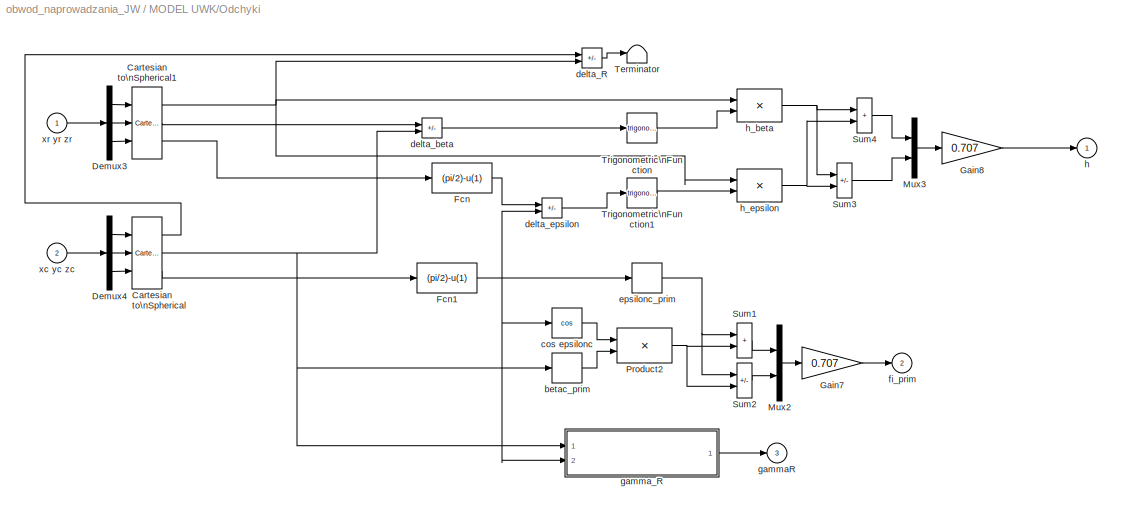
BLOCK [SubSystem] MODEL UWK/Odchyki
  Ports = [2, 3]
  RequestExecContextInheritance = off
  SID = 267
  ShowPortLabels = none
BLOCK [Reference] MODEL UWK/Odchyki/Cartesian to\nSpherical  REF=simulink_extras/Transformations/Cartesian to\nSpherical
  Ports = [3, 3]
  RTWMemSecDataConstants = Inherit from model
  RTWMemSecDataInternal = Inherit from model
  RTWMemSecDataParameters = Inherit from model
  RTWMemSecFuncExecute = Inherit from model
  RTWMemSecFuncInitTerm = Inherit from model
  SID = 270
  SourceBlock = simulink_extras/Transformations/Cartesian to\nSpherical
  SourceProductBaseCode = SL
  SourceType = Cart2Sph
BLOCK [Reference] MODEL UWK/Odchyki/Cartesian to\nSpherical1  REF=simulink_extras/Transformations/Cartesian to\nSpherical
  Ports = [3, 3]
  RTWMemSecDataConstants = Inherit from model
  RTWMemSecDataInternal = Inherit from model
  RTWMemSecDataParameters = Inherit from model
  RTWMemSecFuncExecute = Inherit from model
  RTWMemSecFuncInitTerm = Inherit from model
  SID = 271
  SourceBlock = simulink_extras/Transformations/Cartesian to\nSpherical
  SourceProductBaseCode = SL
  SourceType = Cart2Sph
BLOCK [Demux] MODEL UWK/Odchyki/Demux3
  DisplayOption = none
  Outputs = 3
  Ports = [1, 3]
  SID = 273
BLOCK [Demux] MODEL UWK/Odchyki/Demux4
  DisplayOption = none
  Outputs = 3
  Ports = [1, 3]
  SID = 274
BLOCK [Fcn] MODEL UWK/Odchyki/Fcn
  Expr = (pi/2)-u(1)
  SID = 275
BLOCK [Fcn] MODEL UWK/Odchyki/Fcn1
  Expr = (pi/2)-u(1)
  SID = 276
BLOCK [Gain] MODEL UWK/Odchyki/Gain7
  Gain = 0.707
  OutDataTypeStr = Inherit: Same as input
  ParamDataTypeStr = Inherit: Same as input
  SID = 278
  SaturateOnIntegerOverflow = on
BLOCK [Gain] MODEL UWK/Odchyki/Gain8
  Gain = 0.707
  OutDataTypeStr = Inherit: Same as input
  ParamDataTypeStr = Inherit: Same as input
  SID = 279
  SaturateOnIntegerOverflow = on
BLOCK [Mux] MODEL UWK/Odchyki/Mux2
  DisplayOption = bar
  Inputs = 2
  Ports = [2, 1]
  SID = 280
BLOCK [Mux] MODEL UWK/Odchyki/Mux3
  DisplayOption = bar
  Inputs = 2
  Ports = [2, 1]
  SID = 281
BLOCK [Product] MODEL UWK/Odchyki/Product2
  InputSameDT = on
  OutDataTypeStr = Inherit: Same as first input
  Ports = [2, 1]
  RndMeth = Zero
  SID = 282
  SaturateOnIntegerOverflow = on
BLOCK [Sum] MODEL UWK/Odchyki/Sum1
  IconShape = rectangular
  InputSameDT = on
  OutDataTypeStr = Inherit: Same as first input
  Ports = [2, 1]
  SID = 284
  SaturateOnIntegerOverflow = on
BLOCK [Sum] MODEL UWK/Odchyki/Sum2
  IconShape = rectangular
  InputSameDT = on
  Inputs = -+
  OutDataTypeStr = Inherit: Same as first input
  Ports = [2, 1]
  SID = 285
  SaturateOnIntegerOverflow = on
BLOCK [Sum] MODEL UWK/Odchyki/Sum3
  IconShape = rectangular
  InputSameDT = on
  Inputs = +-
  OutDataTypeStr = Inherit: Same as first input
  Ports = [2, 1]
  SID = 286
  SaturateOnIntegerOverflow = on
BLOCK [Sum] MODEL UWK/Odchyki/Sum4
  IconShape = rectangular
  InputSameDT = on
  OutDataTypeStr = Inherit: Same as first input
  Ports = [2, 1]
  SID = 287
  SaturateOnIntegerOverflow = on
BLOCK [Terminator] MODEL UWK/Odchyki/Terminator
  Commented = on
  SID = 1349
BLOCK [Trigonometry] MODEL UWK/Odchyki/Trigonometric\nFunction
  Ports = [1, 1]
  SID = 291
BLOCK [Trigonometry] MODEL UWK/Odchyki/Trigonometric\nFunction1
  Ports = [1, 1]
  SID = 292
BLOCK [Derivative] MODEL UWK/Odchyki/betac_prim
  SID = 293
BLOCK [Trigonometry] MODEL UWK/Odchyki/cos epsilonc
  NameLocation = top
  Operator = cos
  Ports = [1, 1]
  SID = 294
BLOCK [Sum] MODEL UWK/Odchyki/delta_R
  Commented = on
  IconShape = rectangular
  InputSameDT = on
  Inputs = -+
  NameLocation = top
  OutDataTypeStr = Inherit: Same as first input
  Ports = [2, 1]
  SID = 295
  SaturateOnIntegerOverflow = on
BLOCK [Sum] MODEL UWK/Odchyki/delta_beta
  IconShape = rectangular
  InputSameDT = on
  Inputs = +-
  NameLocation = top
  OutDataTypeStr = Inherit: Same as first input
  Ports = [2, 1]
  SID = 296
  SaturateOnIntegerOverflow = on
BLOCK [Sum] MODEL UWK/Odchyki/delta_epsilon
  IconShape = rectangular
  InputSameDT = on
  Inputs = +-
  NameLocation = top
  OutDataTypeStr = Inherit: Same as first input
  Ports = [2, 1]
  SID = 297
  SaturateOnIntegerOverflow = on
BLOCK [Derivative] MODEL UWK/Odchyki/epsilonc_prim
  NameLocation = top
  SID = 298
BLOCK [Outport] MODEL UWK/Odchyki/fi_prim
  Port = 2
  SID = 315
BLOCK [Outport] MODEL UWK/Odchyki/gammaR
  Port = 3
  SID = 316
BLOCK [SubSystem] MODEL UWK/Odchyki/gamma_R
  Ports = [2, 1]
  RequestExecContextInheritance = off
  SID = 299
BLOCK [Derivative] MODEL UWK/Odchyki/gamma_R/Derivative
  SID = 302
BLOCK [Memory] MODEL UWK/Odchyki/gamma_R/Memory
  NameLocation = top
  SID = 303
BLOCK [Product] MODEL UWK/Odchyki/gamma_R/Product
  InputSameDT = on
  Inputs = 4
  OutDataTypeStr = Inherit: Same as first input
  Ports = [4, 1]
  RndMeth = Zero
  SID = 304
  SaturateOnIntegerOverflow = on
BLOCK [Sum] MODEL UWK/Odchyki/gamma_R/Sum4
  IconShape = rectangular
  InputSameDT = on
  Inputs = +-
  OutDataTypeStr = Inherit: Same as first input
  Ports = [2, 1]
  SID = 306
  SaturateOnIntegerOverflow = on
BLOCK [Trigonometry] MODEL UWK/Odchyki/gamma_R/Trigonometric\nFunction
  Ports = [1, 1]
  SID = 308
BLOCK [Inport] MODEL UWK/Odchyki/gamma_R/azymut
  SID = 300
BLOCK [Inport] MODEL UWK/Odchyki/gamma_R/elewacja
  Port = 2
  SID = 301
BLOCK [Outport] MODEL UWK/Odchyki/gamma_R/gammaR
  SID = 311
BLOCK [Constant] MODEL UWK/Odchyki/gamma_R/h_uwk
  SID = 309
  Value = h_uwk
BLOCK [Step] MODEL UWK/Odchyki/gamma_R/tster
  SID = 310
  SampleTime = 0
  Time = tster
BLOCK [Outport] MODEL UWK/Odchyki/h
  SID = 314
BLOCK [Product] MODEL UWK/Odchyki/h_beta
  InputSameDT = on
  NameLocation = top
  OutDataTypeStr = Inherit: Same as first input
  Ports = [2, 1]
  RndMeth = Zero
  SID = 312
  SaturateOnIntegerOverflow = on
BLOCK [Product] MODEL UWK/Odchyki/h_epsilon
  InputSameDT = on
  NameLocation = top
  OutDataTypeStr = Inherit: Same as first input
  Ports = [2, 1]
  RndMeth = Zero
  SID = 313
  SaturateOnIntegerOverflow = on
BLOCK [Inport] MODEL UWK/Odchyki/xc yc zc
  Port = 2
  SID = 269
BLOCK [Inport] MODEL UWK/Odchyki/xr yr zr
  SID = 268
BLOCK [SubSystem] MODEL UWK/Przelicznik TP
  Ports = [4, 1]
  RequestExecContextInheritance = off
  SID = 334
  ShowPortLabels = none
BLOCK [Constant] MODEL UWK/Przelicznik TP/Constant
  SID = 339
  Value = -916.8
BLOCK [Constant] MODEL UWK/Przelicznik TP/Constant1
  SID = 340
  Value = 3.5
BLOCK [Demux] MODEL UWK/Przelicznik TP/Demux
  DisplayOption = none
  Outputs = 2
  Ports = [1, 2]
  SID = 341
BLOCK [Mux] MODEL UWK/Przelicznik TP/Mux1
  DisplayOption = bar
  Inputs = 6
  Ports = [6, 1]
  SID = 342
BLOCK [Mux] MODEL UWK/Przelicznik TP/Mux2
  DisplayOption = bar
  Inputs = 2
  Ports = [2, 1]
  SID = 343
BLOCK [Outport] MODEL UWK/Przelicznik TP/Out
  SID = 347
BLOCK [Product] MODEL UWK/Przelicznik TP/Product
  InputSameDT = on
  OutDataTypeStr = Inherit: Same as first input
  Ports = [2, 1]
  RndMeth = Zero
  SID = 344
  SaturateOnIntegerOverflow = on
BLOCK [Sum] MODEL UWK/Przelicznik TP/Sum
  IconShape = rectangular
  InputSameDT = on
  Inputs = +-
  OutDataTypeStr = Inherit: Same as first input
  Ports = [2, 1]
  SID = 345
  SaturateOnIntegerOverflow = on
BLOCK [Sum] MODEL UWK/Przelicznik TP/Sum1
  IconShape = rectangular
  InputSameDT = on
  OutDataTypeStr = Inherit: Same as first input
  Ports = [2, 1]
  SID = 346
  SaturateOnIntegerOverflow = on
BLOCK [Inport] MODEL UWK/Przelicznik TP/fi1c_prim
  Port = 3
  SID = 337
BLOCK [Inport] MODEL UWK/Przelicznik TP/fi2c_prim
  Port = 4
  SID = 338
BLOCK [Inport] MODEL UWK/Przelicznik TP/h1fi1
  SID = 335
BLOCK [Inport] MODEL UWK/Przelicznik TP/h2fi2
  Port = 2
  SID = 336
BLOCK [Outport] MODEL UWK/delta
  SID = 355
BLOCK [Inport] MODEL UWK/xc yc zc
  Port = 2
  SID = 4
BLOCK [Inport] MODEL UWK/xr yr zr
  SID = 3
BLOCK [SubSystem] WARUNKI SYMULACJI
  NameLocation = top
  Ports = [3]
  RequestExecContextInheritance = off
  SID = 1230
BLOCK [DataTypeConversion] WARUNKI SYMULACJI/Cast To Boolean1
  OutDataTypeStr = boolean
  RndMeth = Floor
  SID = 1233
  SaturateOnIntegerOverflow = off
BLOCK [DataTypeConversion] WARUNKI SYMULACJI/Cast To Boolean2
  OutDataTypeStr = boolean
  RndMeth = Floor
  SID = 1309
  SaturateOnIntegerOverflow = off
BLOCK [Constant] WARUNKI SYMULACJI/Constant1
  SID = 1235
  Value = 0
BLOCK [Demux] WARUNKI SYMULACJI/Demux
  Outputs = 3
  Ports = [1, 3]
  SID = 1236
BLOCK [Derivative] WARUNKI SYMULACJI/Derivative
  NameLocation = top
  SID = 1299
BLOCK [Fcn] WARUNKI SYMULACJI/Fcn_R
  Expr = sqrt((u(1)-u(4))^2+(u(2)-u(5))^2+(u(3)-u(6))^2)
  SID = 1238
BLOCK [Fcn] WARUNKI SYMULACJI/Fcn_el
  Expr = atan(u(3)/sqrt(u(1)^2+u(2)^2))*180/pi
  SID = 1239
BLOCK [SubSystem] WARUNKI SYMULACJI/MATLAB Function
  ErrorFcn = Stateflow.Translate.translate
  PermitHierarchicalResolution = ExplicitOnly
  Ports = [2, 1]
  RequestExecContextInheritance = off
  SFBlockType = MATLAB Function
  SID = 1312
  TreatAsAtomicUnit = on
BLOCK [Demux] WARUNKI SYMULACJI/MATLAB Function/ Demux 
  Outputs = 1
  Ports = [1, 1]
  SID = 1312::27
BLOCK [S-Function] WARUNKI SYMULACJI/MATLAB Function/ SFunction 
  EnableBusSupport = off
  FunctionName = sf_sfun
  PortCounts = [2 2]
  Ports = [2, 2]
  SFcnIsStateOwnerBlock = off
  SFunctionDeploymentMode = off
  SID = 1312::26
  Tag = Stateflow S-Function 2
BLOCK [Terminator] WARUNKI SYMULACJI/MATLAB Function/ Terminator 
  SID = 1312::28
BLOCK [Inport] WARUNKI SYMULACJI/MATLAB Function/R
  Port = 2
  SID = 1312::22
BLOCK [Inport] WARUNKI SYMULACJI/MATLAB Function/dR
  SID = 1312::1
BLOCK [Outport] WARUNKI SYMULACJI/MATLAB Function/y
  SID = 1312::5
BLOCK [Mux] WARUNKI SYMULACJI/Mux
  DisplayOption = bar
  Inputs = 2
  Ports = [2, 1]
  SID = 1240
BLOCK [Constant] WARUNKI SYMULACJI/One1
  OutDataTypeStr = Inherit: Inherit via back propagation
  SID = 1241
BLOCK [Constant] WARUNKI SYMULACJI/One3
  OutDataTypeStr = Inherit: Inherit via back propagation
  SID = 1242
BLOCK [RelationalOperator] WARUNKI SYMULACJI/Relational\nOperator
  InputSameDT = off
  Operator = <=
  OutDataTypeStr = boolean
  Ports = [2, 1]
  RndMeth = Simplest
  SID = 1243
BLOCK [RelationalOperator] WARUNKI SYMULACJI/Relational\nOperator1
  InputSameDT = off
  Operator = <=
  OutDataTypeStr = boolean
  Ports = [2, 1]
  RndMeth = Simplest
  SID = 1244
BLOCK [Switch] WARUNKI SYMULACJI/Start rakiety\ngdy znajdzie siê\nw strefie startu
  Criteria = u2 > Threshold
  InputSameDT = off
  SID = 1246
  SaturateOnIntegerOverflow = off
  Threshold = sqrt(23500^2-y0^2-z0^2)+v0*40
BLOCK [Stop] WARUNKI SYMULACJI/Stop Simulation
  SID = 1247
BLOCK [Stop] WARUNKI SYMULACJI/Stop Simulation1
  SID = 1249
BLOCK [Stop] WARUNKI SYMULACJI/Stop Simulation2
  SID = 1250
BLOCK [Stop] WARUNKI SYMULACJI/Stop Simulation\ngdy rakieta przeleci cel\nlub zadzia³a radiozapalnik
  SID = 1248
BLOCK [Terminator] WARUNKI SYMULACJI/Terminator2
  SID = 1251
BLOCK [ToWorkspace] WARUNKI SYMULACJI/To Workspace
  FixptAsFi = on
  MaxDataPoints = inf
  Ports = [1]
  SID = 1219
  SampleTime = 0.1
  VariableName = xyz_c
BLOCK [ToWorkspace] WARUNKI SYMULACJI/To Workspace1
  FixptAsFi = on
  MaxDataPoints = inf
  Ports = [1]
  SID = 1252
  SampleTime = -1
  VariableName = flag_r_start
BLOCK [ToWorkspace] WARUNKI SYMULACJI/To Workspace2
  FixptAsFi = on
  MaxDataPoints = inf
  Ports = [1]
  SID = 1253
  SampleTime = -1
  VariableName = flag_r_cel
BLOCK [ToWorkspace] WARUNKI SYMULACJI/To Workspace3
  FixptAsFi = on
  MaxDataPoints = inf
  Ports = [1]
  SID = 1221
  SampleTime = -1
  VariableName = xyz_r
BLOCK [ToWorkspace] WARUNKI SYMULACJI/To Workspace5
  FixptAsFi = on
  MaxDataPoints = inf
  Ports = [1]
  SID = 1348
  SampleTime = 0.01
  SaveFormat = Timeseries
  VariableName = Vr
BLOCK [Inport] WARUNKI SYMULACJI/Vr
  Port = 3
  SID = 1456
BLOCK [Constant] WARUNKI SYMULACJI/Zero1
  OutDataTypeStr = Inherit: Inherit via back propagation
  SID = 1254
  Value = 0
BLOCK [Constant] WARUNKI SYMULACJI/Zero3
  OutDataTypeStr = Inherit: Inherit via back propagation
  SID = 1255
  Value = 0
BLOCK [Switch] WARUNKI SYMULACJI/stop gdy elewacja celu\nwieksza od 80 stopni 
  Criteria = u2 > Threshold
  InputSameDT = off
  SID = 1256
  SaturateOnIntegerOverflow = off
  Threshold = 80
BLOCK [Inport] WARUNKI SYMULACJI/xyz_c
  SID = 1231
BLOCK [Inport] WARUNKI SYMULACJI/xyz_r
  Port = 2
  SID = 1232
ANNOTATION MODEL CELU/Model samolotu: \n \n Uk³ad wspó³rzêdny zwi¹zany z samolotem
ANNOTATION MODEL CELU/Model samolotu: \n \n azymut
ANNOTATION MODEL CELU/Model samolotu: \n \n elewacja
ANNOTATION MODEL CELU/Model samolotu: \n \n oœ wektora v
ANNOTATION MODEL CELU/Wyliczanie wspó³rzêdnych kartezjañskich\nsamolotu: \n \n Kartezjañski uk³ad wspó³rzêdnych xyz
ANNOTATION MODEL RAKIETY: M
ANNOTATION MODEL RAKIETY: N
ANNOTATION MODEL RAKIETY: Px
ANNOTATION MODEL RAKIETY: Py
ANNOTATION MODEL RAKIETY: Pz
ANNOTATION MODEL RAKIETY/Zaleznosci na skladowe\nsil i momentow\naerodynamicznych: M
ANNOTATION MODEL RAKIETY/Zaleznosci na skladowe\nsil i momentow\naerodynamicznych: N
ANNOTATION MODEL RAKIETY/Zaleznosci na skladowe\nsil i momentow\naerodynamicznych: Px
ANNOTATION MODEL RAKIETY/Zaleznosci na skladowe\nsil i momentow\naerodynamicznych: Py
ANNOTATION MODEL RAKIETY/Zaleznosci na skladowe\nsil i momentow\naerodynamicznych: Pz
ANNOTATION MODEL RAKIETY/Zaleznosci na skladowe\nsil i momentow\naerodynamicznych: a
ANNOTATION MODEL RAKIETY/Zaleznosci na skladowe\nsil i momentow\naerodynamicznych: deltam
ANNOTATION MODEL RAKIETY/Zaleznosci na skladowe\nsil i momentow\naerodynamicznych: deltan
ANNOTATION MODEL RAKIETY/Zaleznosci na skladowe\nsil i momentow\naerodynamicznych: ro
ANNOTATION MODEL RAKIETY/Zaleznosci na skladowe\nsil i momentow\naerodynamicznych/PN-78//N-03100\n\n/cisnienie/11000 > H >= 0: wlasciwa stala gazowa
ANNOTATION MODEL RAKIETY/Zaleznosci na skladowe\nsil i momentow\naerodynamicznych/PN-78//N-03100\n\n/cisnienie/11000 > H >= 0: wysokosc geopotencjalna - H [m]
ANNOTATION MODEL RAKIETY/Zaleznosci na skladowe\nsil i momentow\naerodynamicznych/PN-78//N-03100\n\n/cisnienie/11000 > H >= 0: wzorcowe przyspieszenie przy\nswobodnym spadku
ANNOTATION MODEL RAKIETY/Zaleznosci na skladowe\nsil i momentow\naerodynamicznych/PN-78//N-03100\n\n/cisnienie/20000 > H >= 11000: wlasciwa stala gazowa
ANNOTATION MODEL RAKIETY/Zaleznosci na skladowe\nsil i momentow\naerodynamicznych/PN-78//N-03100\n\n/cisnienie/20000 > H >= 11000: wysokosc geopotencjalna - H [m]
ANNOTATION MODEL RAKIETY/Zaleznosci na skladowe\nsil i momentow\naerodynamicznych/PN-78//N-03100\n\n/cisnienie/20000 > H >= 11000: wzorcowe przyspieszenie przy\nswobodnym spadku
ANNOTATION MODEL RAKIETY/Zaleznosci na skladowe\nsil i momentow\naerodynamicznych/PN-78//N-03100\n\n/cisnienie/32000 > H >= 20000: wlasciwa stala gazowa
ANNOTATION MODEL RAKIETY/Zaleznosci na skladowe\nsil i momentow\naerodynamicznych/PN-78//N-03100\n\n/cisnienie/32000 > H >= 20000: wysokosc geopotencjalna - H [m]
ANNOTATION MODEL RAKIETY/Zaleznosci na skladowe\nsil i momentow\naerodynamicznych/PN-78//N-03100\n\n/cisnienie/32000 > H >= 20000: wzorcowe przyspieszenie przy\nswobodnym spadku
ANNOTATION MODEL RAKIETY/Zaleznosci na skladowe\nsil i momentow\naerodynamicznych/PN-78//N-03100\n\n/cisnienie/47000 > H >= 32000: wlasciwa stala gazowa
ANNOTATION MODEL RAKIETY/Zaleznosci na skladowe\nsil i momentow\naerodynamicznych/PN-78//N-03100\n\n/cisnienie/47000 > H >= 32000: wysokosc geopotencjalna - H [m]
ANNOTATION MODEL RAKIETY/Zaleznosci na skladowe\nsil i momentow\naerodynamicznych/PN-78//N-03100\n\n/cisnienie/47000 > H >= 32000: wzorcowe przyspieszenie przy\nswobodnym spadku
ANNOTATION MODEL RAKIETY/Zaleznosci na skladowe\nsil i momentow\naerodynamicznych/PN-78//N-03100\n\n/cisnienie/51000 > H >= 47000: wlasciwa stala gazowa
ANNOTATION MODEL RAKIETY/Zaleznosci na skladowe\nsil i momentow\naerodynamicznych/PN-78//N-03100\n\n/cisnienie/51000 > H >= 47000: wysokosc geopotencjalna - H [m]
ANNOTATION MODEL RAKIETY/Zaleznosci na skladowe\nsil i momentow\naerodynamicznych/PN-78//N-03100\n\n/cisnienie/51000 > H >= 47000: wzorcowe przyspieszenie przy\nswobodnym spadku
ANNOTATION MODEL RAKIETY/Zaleznosci na skladowe\nsil i momentow\naerodynamicznych/PN-78//N-03100\n\n/cisnienie/71000 > H >= 51000: wlasciwa stala gazowa
ANNOTATION MODEL RAKIETY/Zaleznosci na skladowe\nsil i momentow\naerodynamicznych/PN-78//N-03100\n\n/cisnienie/71000 > H >= 51000: wysokosc geopotencjalna - H [m]
ANNOTATION MODEL RAKIETY/Zaleznosci na skladowe\nsil i momentow\naerodynamicznych/PN-78//N-03100\n\n/cisnienie/71000 > H >= 51000: wzorcowe przyspieszenie przy\nswobodnym spadku
ANNOTATION MODEL RAKIETY/Zaleznosci na skladowe\nsil i momentow\naerodynamicznych/PN-78//N-03100\n\n/cisnienie/80000 > H >= 71000: wlasciwa stala gazowa
ANNOTATION MODEL RAKIETY/Zaleznosci na skladowe\nsil i momentow\naerodynamicznych/PN-78//N-03100\n\n/cisnienie/80000 > H >= 71000: wysokosc geopotencjalna - H [m]
ANNOTATION MODEL RAKIETY/Zaleznosci na skladowe\nsil i momentow\naerodynamicznych/PN-78//N-03100\n\n/cisnienie/80000 > H >= 71000: wzorcowe przyspieszenie przy\nswobodnym spadku
ANNOTATION MODEL RAKIETY/Zaleznosci na skladowe\nsil i momentow\naerodynamicznych/PN-78//N-03100\n\n/gestosc: wlasciwa stala gazowa - R
ANNOTATION MODEL RAKIETY/Zaleznosci na skladowe\nsil i momentow\naerodynamicznych/PN-78//N-03100\n\n/predkosc dzwieku: temperatura termodynamiczna - T [K]
ANNOTATION MODEL RAKIETY/Zaleznosci na skladowe\nsil i momentow\naerodynamicznych/PN-78//N-03100\n\n/predkosc dzwieku: wlasciwa stala gazowa - R
ANNOTATION MODEL RAKIETY/Zaleznosci na skladowe\nsil i momentow\naerodynamicznych/PN-78//N-03100\n\n/predkosc dzwieku: wykladnik adiabaty - stosunek ciepla wlasciwego\npowietrza przy stalym cisnieniu do jego ciepla\nwlasciwego przy stalej objetosci
ANNOTATION MODEL RAKIETY/Zaleznosci na skladowe\nsil i momentow\naerodynamicznych/PN-78//N-03100\n\n/temperatura termodynamiczna: temperatura termodynamiczna\npunktu topnienia lodu\npod cisnieniem 101325,0 Pa
ANNOTATION MODEL RAKIETY/Zaleznosci na skladowe\nsil i momentow\naerodynamicznych/PN-78//N-03100\n\n/temperatura termodynamiczna: wysokosc geopotencjalna - H [m]
ANNOTATION MODEL RAKIETY/Zaleznosci na skladowe\nsil i momentow\naerodynamicznych/PN-78//N-03100\n\n/wysokosc geopotencjalna i przyspieszenie: wysokosc geometryczna - h [m]
ANNOTATION MODEL UWK/Komendy Kierowania\nWaskie Pasmo: h1ogr
ANNOTATION MODEL UWK/Komendy Kierowania\nWaskie Pasmo: h2ogr
ANNOTATION MODEL UWK/Komendy Kierowania\nWaskie Pasmo: h_wej1w
ANNOTATION MODEL UWK/Komendy Kierowania\nWaskie Pasmo: h_wej2w
ANNOTATION MODEL UWK/Komendy Kierowania\nWaskie Pasmo: hd1
ANNOTATION MODEL UWK/Komendy Kierowania\nWaskie Pasmo: hd2
ANNOTATION MODEL UWK/Komendy Kierowania\nWaskie Pasmo: hl1
ANNOTATION MODEL UWK/Komendy Kierowania\nWaskie Pasmo: hl2
ANNOTATION MODEL UWK/Komendy Kierowania\nWaskie Pasmo/Subsystem: f_hr1w
ANNOTATION MODEL UWK/Komendy Kierowania\nWaskie Pasmo/Sygnal sterowania\nod skladowej liniowej: y_h1w[1]
ANNOTATION MODEL UWK/Komendy Kierowania\nWaskie Pasmo/Sygnal sterowania\nod skladowej liniowej: y_h1w[2]
ANNOTATION MODEL UWK/Komendy Kierowania\nWaskie Pasmo/Sygnal sterowania\nod skladowej liniowej: y_h1w[3]
ANNOTATION MODEL UWK/Komendy Kierowania\nWaskie Pasmo/Sygnal sterowania\nod skladowej liniowej/Ograniczenie sygnalu sterujacego: LWzorcoweR
ANNOTATION MODEL UWK/Komendy Kierowania\nWaskie Pasmo/Sygnal sterowania\nod skladowej liniowej/Ograniczenie sygnalu sterujacego: L_h1_R
ANNOTATION MODEL UWK/Komendy Kierowania\nWaskie Pasmo/Sygnal sterowania\nod skladowej liniowej1: f_h2w[1]
ANNOTATION MODEL UWK/Komendy Kierowania\nWaskie Pasmo/Sygnal sterowania\nod skladowej liniowej1: y_h2w[1]
ANNOTATION MODEL UWK/Komendy Kierowania\nWaskie Pasmo/Sygnal sterowania\nod skladowej liniowej1: y_h2w[2]
ANNOTATION MODEL UWK/Komendy Kierowania\nWaskie Pasmo/Sygnal sterowania\nod skladowej liniowej1: y_h2w[3]
ANNOTATION MODEL UWK/Komendy Kierowania\nWaskie Pasmo/Sygnal sterowania\nod skladowej liniowej1/Ograniczenie sygnalu sterujacego: LWzorcoweR
ANNOTATION MODEL UWK/Komendy Kierowania\nWaskie Pasmo/Sygnal sterowania\nod skladowej liniowej1/Ograniczenie sygnalu sterujacego: L_h2_R
ANNOTATION MODEL UWK/Przelicznik TP: h1ogr
ANNOTATION MODEL UWK/Przelicznik TP: h2ogr
ANNOTATION MODEL UWK/Przelicznik TP: hd1
ANNOTATION MODEL UWK/Przelicznik TP: hd2
ANNOTATION MODEL UWK/Przelicznik TP: hl1
ANNOTATION MODEL UWK/Przelicznik TP: hl2
LINE MODEL CELU/Bus to Vector1:1 -> MODEL CELU/xyz_c:1
LINE MODEL CELU/Model samolotu/Delay:1 -> MODEL CELU/Model samolotu/Ogranicznik\nprzeci¹¿enia \nwypadkowego\n(max 9g):2
LINE MODEL CELU/Model samolotu/From8:1 -> MODEL CELU/Model samolotu/Ogranicznik przeci¹¿enia\nazymut (max 4g):2
LINE MODEL CELU/Model samolotu/From9:1 -> MODEL CELU/Model samolotu/Ogranicznik przeci¹¿enia\nelewacja (max 8g):2
LINE MODEL CELU/Model samolotu/Gain1:1 -> MODEL CELU/Model samolotu/Integrator3:1
LINE MODEL CELU/Model samolotu/Gain4:1 -> MODEL CELU/Model samolotu/Scope2:1
LINE MODEL CELU/Model samolotu/Gain5:1 -> MODEL CELU/Model samolotu/Scope2:2
LINE MODEL CELU/Model samolotu/Integrator3:1 -> MODEL CELU/Model samolotu/Out Bus Element2:1
LINE MODEL CELU/Model samolotu/Integrator8:1 -> MODEL CELU/Model samolotu/Out Bus Element3:1
NET MODEL CELU/Model samolotu/Integrator:1 -> MODEL CELU/Model samolotu/Goto:1, MODEL CELU/Model samolotu/Out Bus Element:1, MODEL CELU/Model samolotu/To Workspace1:1
LINE MODEL CELU/Model samolotu/Macierz sterowania\nprzyrostem k¹ta w azymucie samolotu:1 -> MODEL CELU/Model samolotu/Ogranicznik przeci¹¿enia\nazymut (max 4g):1
NET MODEL CELU/Model samolotu/Macierz sterowania\nprzyrostem k¹ta w elewacji samolotu:1 -> MODEL CELU/Model samolotu/Gain4:1, MODEL CELU/Model samolotu/Ogranicznik przeci¹¿enia\nelewacja (max 8g):1
LINE MODEL CELU/Model samolotu/Macierz sterowania\nprzyrostem prêdkoœci samolotu\n:1 -> MODEL CELU/Model samolotu/Ogranicznik\nprzeci¹¿enia \nwypadkowego\n(max 9g):1
NET MODEL CELU/Model samolotu/Ogranicznik przeci¹¿enia\nazymut (max 4g)/Fcn2:1 -> MODEL CELU/Model samolotu/Ogranicznik przeci¹¿enia\nazymut (max 4g)/Gain3:1, MODEL CELU/Model samolotu/Ogranicznik przeci¹¿enia\nazymut (max 4g)/Saturation\nDynamic1:1, MODEL CELU/Model samolotu/Ogranicznik przeci¹¿enia\nazymut (max 4g)/sprzê¿enie zwrotne\n(skrêt o zadany k¹t):2
LINE MODEL CELU/Model samolotu/Ogranicznik przeci¹¿enia\nazymut (max 4g)/Gain3:1 -> MODEL CELU/Model samolotu/Ogranicznik przeci¹¿enia\nazymut (max 4g)/Saturation\nDynamic1:3
LINE MODEL CELU/Model samolotu/Ogranicznik przeci¹¿enia\nazymut (max 4g)/IC:1 -> MODEL CELU/Model samolotu/Ogranicznik przeci¹¿enia\nazymut (max 4g)/Sum:2
NET MODEL CELU/Model samolotu/Ogranicznik przeci¹¿enia\nazymut (max 4g)/Saturation\nDynamic1:1 -> MODEL CELU/Model samolotu/Ogranicznik przeci¹¿enia\nazymut (max 4g)/sprzê¿enie zwrotne\n(skrêt o zadany k¹t):3, MODEL CELU/Model samolotu/Ogranicznik przeci¹¿enia\nazymut (max 4g)/y:1
LINE MODEL CELU/Model samolotu/Ogranicznik przeci¹¿enia\nazymut (max 4g)/Sum:1 -> MODEL CELU/Model samolotu/Ogranicznik przeci¹¿enia\nazymut (max 4g)/Saturation\nDynamic1:2
LINE MODEL CELU/Model samolotu/Ogranicznik przeci¹¿enia\nazymut (max 4g)/sprzê¿enie zwrotne\n(skrêt o zadany k¹t)/Add1:1 -> MODEL CELU/Model samolotu/Ogranicznik przeci¹¿enia\nazymut (max 4g)/sprzê¿enie zwrotne\n(skrêt o zadany k¹t)/sprz:1
NET MODEL CELU/Model samolotu/Ogranicznik przeci¹¿enia\nazymut (max 4g)/sprzê¿enie zwrotne\n(skrêt o zadany k¹t)/Add:1 -> MODEL CELU/Model samolotu/Ogranicznik przeci¹¿enia\nazymut (max 4g)/sprzê¿enie zwrotne\n(skrêt o zadany k¹t)/Gain1:1, MODEL CELU/Model samolotu/Ogranicznik przeci¹¿enia\nazymut (max 4g)/sprzê¿enie zwrotne\n(skrêt o zadany k¹t)/Switch:2
NET MODEL CELU/Model samolotu/Ogranicznik przeci¹¿enia\nazymut (max 4g)/sprzê¿enie zwrotne\n(skrêt o zadany k¹t)/Fcn(v):1 -> MODEL CELU/Model samolotu/Ogranicznik przeci¹¿enia\nazymut (max 4g)/sprzê¿enie zwrotne\n(skrêt o zadany k¹t)/Gain2:1, MODEL CELU/Model samolotu/Ogranicznik przeci¹¿enia\nazymut (max 4g)/sprzê¿enie zwrotne\n(skrêt o zadany k¹t)/Switch:1
LINE MODEL CELU/Model samolotu/Ogranicznik przeci¹¿enia\nazymut (max 4g)/sprzê¿enie zwrotne\n(skrêt o zadany k¹t)/Gain1:1 -> MODEL CELU/Model samolotu/Ogranicznik przeci¹¿enia\nazymut (max 4g)/sprzê¿enie zwrotne\n(skrêt o zadany k¹t)/Switch1:2
LINE MODEL CELU/Model samolotu/Ogranicznik przeci¹¿enia\nazymut (max 4g)/sprzê¿enie zwrotne\n(skrêt o zadany k¹t)/Gain2:1 -> MODEL CELU/Model samolotu/Ogranicznik przeci¹¿enia\nazymut (max 4g)/sprzê¿enie zwrotne\n(skrêt o zadany k¹t)/Switch1:1
LINE MODEL CELU/Model samolotu/Ogranicznik przeci¹¿enia\nazymut (max 4g)/sprzê¿enie zwrotne\n(skrêt o zadany k¹t)/Integrator1:1 -> MODEL CELU/Model samolotu/Ogranicznik przeci¹¿enia\nazymut (max 4g)/sprzê¿enie zwrotne\n(skrêt o zadany k¹t)/Add:1
LINE MODEL CELU/Model samolotu/Ogranicznik przeci¹¿enia\nazymut (max 4g)/sprzê¿enie zwrotne\n(skrêt o zadany k¹t)/Integrator:1 -> MODEL CELU/Model samolotu/Ogranicznik przeci¹¿enia\nazymut (max 4g)/sprzê¿enie zwrotne\n(skrêt o zadany k¹t)/Add:2
LINE MODEL CELU/Model samolotu/Ogranicznik przeci¹¿enia\nazymut (max 4g)/sprzê¿enie zwrotne\n(skrêt o zadany k¹t)/Switch1:1 -> MODEL CELU/Model samolotu/Ogranicznik przeci¹¿enia\nazymut (max 4g)/sprzê¿enie zwrotne\n(skrêt o zadany k¹t)/Add1:2
LINE MODEL CELU/Model samolotu/Ogranicznik przeci¹¿enia\nazymut (max 4g)/sprzê¿enie zwrotne\n(skrêt o zadany k¹t)/Switch:1 -> MODEL CELU/Model samolotu/Ogranicznik przeci¹¿enia\nazymut (max 4g)/sprzê¿enie zwrotne\n(skrêt o zadany k¹t)/Add1:1
LINE MODEL CELU/Model samolotu/Ogranicznik przeci¹¿enia\nazymut (max 4g)/sprzê¿enie zwrotne\n(skrêt o zadany k¹t)/Zero1:1 -> MODEL CELU/Model samolotu/Ogranicznik przeci¹¿enia\nazymut (max 4g)/sprzê¿enie zwrotne\n(skrêt o zadany k¹t)/Switch1:3
LINE MODEL CELU/Model samolotu/Ogranicznik przeci¹¿enia\nazymut (max 4g)/sprzê¿enie zwrotne\n(skrêt o zadany k¹t)/Zero:1 -> MODEL CELU/Model samolotu/Ogranicznik przeci¹¿enia\nazymut (max 4g)/sprzê¿enie zwrotne\n(skrêt o zadany k¹t)/Switch:3
LINE MODEL CELU/Model samolotu/Ogranicznik przeci¹¿enia\nazymut (max 4g)/sprzê¿enie zwrotne\n(skrêt o zadany k¹t)/u:1 -> MODEL CELU/Model samolotu/Ogranicznik przeci¹¿enia\nazymut (max 4g)/sprzê¿enie zwrotne\n(skrêt o zadany k¹t)/Integrator1:1
LINE MODEL CELU/Model samolotu/Ogranicznik przeci¹¿enia\nazymut (max 4g)/sprzê¿enie zwrotne\n(skrêt o zadany k¹t)/y:1 -> MODEL CELU/Model samolotu/Ogranicznik przeci¹¿enia\nazymut (max 4g)/sprzê¿enie zwrotne\n(skrêt o zadany k¹t)/Integrator:1
LINE MODEL CELU/Model samolotu/Ogranicznik przeci¹¿enia\nazymut (max 4g)/sprzê¿enie zwrotne\n(skrêt o zadany k¹t):1 -> MODEL CELU/Model samolotu/Ogranicznik przeci¹¿enia\nazymut (max 4g)/IC:1
NET MODEL CELU/Model samolotu/Ogranicznik przeci¹¿enia\nazymut (max 4g)/u:1 -> MODEL CELU/Model samolotu/Ogranicznik przeci¹¿enia\nazymut (max 4g)/Sum:1, MODEL CELU/Model samolotu/Ogranicznik przeci¹¿enia\nazymut (max 4g)/sprzê¿enie zwrotne\n(skrêt o zadany k¹t):1
LINE MODEL CELU/Model samolotu/Ogranicznik przeci¹¿enia\nazymut (max 4g)/v:1 -> MODEL CELU/Model samolotu/Ogranicznik przeci¹¿enia\nazymut (max 4g)/Fcn2:1
LINE MODEL CELU/Model samolotu/Ogranicznik przeci¹¿enia\nazymut (max 4g):1 -> MODEL CELU/Model samolotu/Gain1:1
NET MODEL CELU/Model samolotu/Ogranicznik przeci¹¿enia\nelewacja (max 8g)/Fcn2:1 -> MODEL CELU/Model samolotu/Ogranicznik przeci¹¿enia\nelewacja (max 8g)/Gain3:1, MODEL CELU/Model samolotu/Ogranicznik przeci¹¿enia\nelewacja (max 8g)/Saturation\nDynamic1:1, MODEL CELU/Model samolotu/Ogranicznik przeci¹¿enia\nelewacja (max 8g)/sprzê¿enie zwrotne\n(skrêt o zadany k¹t):2
LINE MODEL CELU/Model samolotu/Ogranicznik przeci¹¿enia\nelewacja (max 8g)/Gain3:1 -> MODEL CELU/Model samolotu/Ogranicznik przeci¹¿enia\nelewacja (max 8g)/Saturation\nDynamic1:3
LINE MODEL CELU/Model samolotu/Ogranicznik przeci¹¿enia\nelewacja (max 8g)/IC:1 -> MODEL CELU/Model samolotu/Ogranicznik przeci¹¿enia\nelewacja (max 8g)/Sum:2
NET MODEL CELU/Model samolotu/Ogranicznik przeci¹¿enia\nelewacja (max 8g)/Saturation\nDynamic1:1 -> MODEL CELU/Model samolotu/Ogranicznik przeci¹¿enia\nelewacja (max 8g)/sprzê¿enie zwrotne\n(skrêt o zadany k¹t):3, MODEL CELU/Model samolotu/Ogranicznik przeci¹¿enia\nelewacja (max 8g)/y:1
LINE MODEL CELU/Model samolotu/Ogranicznik przeci¹¿enia\nelewacja (max 8g)/Sum:1 -> MODEL CELU/Model samolotu/Ogranicznik przeci¹¿enia\nelewacja (max 8g)/Saturation\nDynamic1:2
LINE MODEL CELU/Model samolotu/Ogranicznik przeci¹¿enia\nelewacja (max 8g)/sprzê¿enie zwrotne\n(skrêt o zadany k¹t)/Add1:1 -> MODEL CELU/Model samolotu/Ogranicznik przeci¹¿enia\nelewacja (max 8g)/sprzê¿enie zwrotne\n(skrêt o zadany k¹t)/Out1:1
NET MODEL CELU/Model samolotu/Ogranicznik przeci¹¿enia\nelewacja (max 8g)/sprzê¿enie zwrotne\n(skrêt o zadany k¹t)/Add:1 -> MODEL CELU/Model samolotu/Ogranicznik przeci¹¿enia\nelewacja (max 8g)/sprzê¿enie zwrotne\n(skrêt o zadany k¹t)/Gain1:1, MODEL CELU/Model samolotu/Ogranicznik przeci¹¿enia\nelewacja (max 8g)/sprzê¿enie zwrotne\n(skrêt o zadany k¹t)/Switch:2
NET MODEL CELU/Model samolotu/Ogranicznik przeci¹¿enia\nelewacja (max 8g)/sprzê¿enie zwrotne\n(skrêt o zadany k¹t)/Fcn(v):1 -> MODEL CELU/Model samolotu/Ogranicznik przeci¹¿enia\nelewacja (max 8g)/sprzê¿enie zwrotne\n(skrêt o zadany k¹t)/Gain2:1, MODEL CELU/Model samolotu/Ogranicznik przeci¹¿enia\nelewacja (max 8g)/sprzê¿enie zwrotne\n(skrêt o zadany k¹t)/Switch:1
LINE MODEL CELU/Model samolotu/Ogranicznik przeci¹¿enia\nelewacja (max 8g)/sprzê¿enie zwrotne\n(skrêt o zadany k¹t)/Gain1:1 -> MODEL CELU/Model samolotu/Ogranicznik przeci¹¿enia\nelewacja (max 8g)/sprzê¿enie zwrotne\n(skrêt o zadany k¹t)/Switch1:2
LINE MODEL CELU/Model samolotu/Ogranicznik przeci¹¿enia\nelewacja (max 8g)/sprzê¿enie zwrotne\n(skrêt o zadany k¹t)/Gain2:1 -> MODEL CELU/Model samolotu/Ogranicznik przeci¹¿enia\nelewacja (max 8g)/sprzê¿enie zwrotne\n(skrêt o zadany k¹t)/Switch1:1
LINE MODEL CELU/Model samolotu/Ogranicznik przeci¹¿enia\nelewacja (max 8g)/sprzê¿enie zwrotne\n(skrêt o zadany k¹t)/Integrator1:1 -> MODEL CELU/Model samolotu/Ogranicznik przeci¹¿enia\nelewacja (max 8g)/sprzê¿enie zwrotne\n(skrêt o zadany k¹t)/Add:1
LINE MODEL CELU/Model samolotu/Ogranicznik przeci¹¿enia\nelewacja (max 8g)/sprzê¿enie zwrotne\n(skrêt o zadany k¹t)/Integrator:1 -> MODEL CELU/Model samolotu/Ogranicznik przeci¹¿enia\nelewacja (max 8g)/sprzê¿enie zwrotne\n(skrêt o zadany k¹t)/Add:2
LINE MODEL CELU/Model samolotu/Ogranicznik przeci¹¿enia\nelewacja (max 8g)/sprzê¿enie zwrotne\n(skrêt o zadany k¹t)/Switch1:1 -> MODEL CELU/Model samolotu/Ogranicznik przeci¹¿enia\nelewacja (max 8g)/sprzê¿enie zwrotne\n(skrêt o zadany k¹t)/Add1:2
LINE MODEL CELU/Model samolotu/Ogranicznik przeci¹¿enia\nelewacja (max 8g)/sprzê¿enie zwrotne\n(skrêt o zadany k¹t)/Switch:1 -> MODEL CELU/Model samolotu/Ogranicznik przeci¹¿enia\nelewacja (max 8g)/sprzê¿enie zwrotne\n(skrêt o zadany k¹t)/Add1:1
LINE MODEL CELU/Model samolotu/Ogranicznik przeci¹¿enia\nelewacja (max 8g)/sprzê¿enie zwrotne\n(skrêt o zadany k¹t)/Zero1:1 -> MODEL CELU/Model samolotu/Ogranicznik przeci¹¿enia\nelewacja (max 8g)/sprzê¿enie zwrotne\n(skrêt o zadany k¹t)/Switch1:3
LINE MODEL CELU/Model samolotu/Ogranicznik przeci¹¿enia\nelewacja (max 8g)/sprzê¿enie zwrotne\n(skrêt o zadany k¹t)/Zero:1 -> MODEL CELU/Model samolotu/Ogranicznik przeci¹¿enia\nelewacja (max 8g)/sprzê¿enie zwrotne\n(skrêt o zadany k¹t)/Switch:3
LINE MODEL CELU/Model samolotu/Ogranicznik przeci¹¿enia\nelewacja (max 8g)/sprzê¿enie zwrotne\n(skrêt o zadany k¹t)/u:1 -> MODEL CELU/Model samolotu/Ogranicznik przeci¹¿enia\nelewacja (max 8g)/sprzê¿enie zwrotne\n(skrêt o zadany k¹t)/Integrator1:1
LINE MODEL CELU/Model samolotu/Ogranicznik przeci¹¿enia\nelewacja (max 8g)/sprzê¿enie zwrotne\n(skrêt o zadany k¹t)/y:1 -> MODEL CELU/Model samolotu/Ogranicznik przeci¹¿enia\nelewacja (max 8g)/sprzê¿enie zwrotne\n(skrêt o zadany k¹t)/Integrator:1
LINE MODEL CELU/Model samolotu/Ogranicznik przeci¹¿enia\nelewacja (max 8g)/sprzê¿enie zwrotne\n(skrêt o zadany k¹t):1 -> MODEL CELU/Model samolotu/Ogranicznik przeci¹¿enia\nelewacja (max 8g)/IC:1
NET MODEL CELU/Model samolotu/Ogranicznik przeci¹¿enia\nelewacja (max 8g)/u:1 -> MODEL CELU/Model samolotu/Ogranicznik przeci¹¿enia\nelewacja (max 8g)/Sum:1, MODEL CELU/Model samolotu/Ogranicznik przeci¹¿enia\nelewacja (max 8g)/sprzê¿enie zwrotne\n(skrêt o zadany k¹t):1
LINE MODEL CELU/Model samolotu/Ogranicznik przeci¹¿enia\nelewacja (max 8g)/v:1 -> MODEL CELU/Model samolotu/Ogranicznik przeci¹¿enia\nelewacja (max 8g)/Fcn2:1
NET MODEL CELU/Model samolotu/Ogranicznik przeci¹¿enia\nelewacja (max 8g):1 -> MODEL CELU/Model samolotu/Gain5:1, MODEL CELU/Model samolotu/Integrator8:1
NET MODEL CELU/Model samolotu/Ogranicznik\nprzeci¹¿enia \nwypadkowego\n(max 9g)/Fcn2:1 -> MODEL CELU/Model samolotu/Ogranicznik\nprzeci¹¿enia \nwypadkowego\n(max 9g)/Saturation\nDynamic:3, MODEL CELU/Model samolotu/Ogranicznik\nprzeci¹¿enia \nwypadkowego\n(max 9g)/sprzê¿enie zwrotne\n(wzrost prêdkoœci o zadan¹ wartoœæ):3
NET MODEL CELU/Model samolotu/Ogranicznik\nprzeci¹¿enia \nwypadkowego\n(max 9g)/Fcn:1 -> MODEL CELU/Model samolotu/Ogranicznik\nprzeci¹¿enia \nwypadkowego\n(max 9g)/Saturation\nDynamic:1, MODEL CELU/Model samolotu/Ogranicznik\nprzeci¹¿enia \nwypadkowego\n(max 9g)/sprzê¿enie zwrotne\n(wzrost prêdkoœci o zadan¹ wartoœæ):1
LINE MODEL CELU/Model samolotu/Ogranicznik\nprzeci¹¿enia \nwypadkowego\n(max 9g)/IC:1 -> MODEL CELU/Model samolotu/Ogranicznik\nprzeci¹¿enia \nwypadkowego\n(max 9g)/Sum:2
NET MODEL CELU/Model samolotu/Ogranicznik\nprzeci¹¿enia \nwypadkowego\n(max 9g)/Saturation\nDynamic:1 -> MODEL CELU/Model samolotu/Ogranicznik\nprzeci¹¿enia \nwypadkowego\n(max 9g)/sprzê¿enie zwrotne\n(wzrost prêdkoœci o zadan¹ wartoœæ):4, MODEL CELU/Model samolotu/Ogranicznik\nprzeci¹¿enia \nwypadkowego\n(max 9g)/y:1
LINE MODEL CELU/Model samolotu/Ogranicznik\nprzeci¹¿enia \nwypadkowego\n(max 9g)/Sum:1 -> MODEL CELU/Model samolotu/Ogranicznik\nprzeci¹¿enia \nwypadkowego\n(max 9g)/Saturation\nDynamic:2
NET MODEL CELU/Model samolotu/Ogranicznik\nprzeci¹¿enia \nwypadkowego\n(max 9g)/n:1 -> MODEL CELU/Model samolotu/Ogranicznik\nprzeci¹¿enia \nwypadkowego\n(max 9g)/Fcn2:1, MODEL CELU/Model samolotu/Ogranicznik\nprzeci¹¿enia \nwypadkowego\n(max 9g)/Fcn:1
LINE MODEL CELU/Model samolotu/Ogranicznik\nprzeci¹¿enia \nwypadkowego\n(max 9g)/sprzê¿enie zwrotne\n(wzrost prêdkoœci o zadan¹ wartoœæ)/-Fcn(n):1 -> MODEL CELU/Model samolotu/Ogranicznik\nprzeci¹¿enia \nwypadkowego\n(max 9g)/sprzê¿enie zwrotne\n(wzrost prêdkoœci o zadan¹ wartoœæ)/Switch1:1
LINE MODEL CELU/Model samolotu/Ogranicznik\nprzeci¹¿enia \nwypadkowego\n(max 9g)/sprzê¿enie zwrotne\n(wzrost prêdkoœci o zadan¹ wartoœæ)/Add1:1 -> MODEL CELU/Model samolotu/Ogranicznik\nprzeci¹¿enia \nwypadkowego\n(max 9g)/sprzê¿enie zwrotne\n(wzrost prêdkoœci o zadan¹ wartoœæ)/sprz:1
NET MODEL CELU/Model samolotu/Ogranicznik\nprzeci¹¿enia \nwypadkowego\n(max 9g)/sprzê¿enie zwrotne\n(wzrost prêdkoœci o zadan¹ wartoœæ)/Add:1 -> MODEL CELU/Model samolotu/Ogranicznik\nprzeci¹¿enia \nwypadkowego\n(max 9g)/sprzê¿enie zwrotne\n(wzrost prêdkoœci o zadan¹ wartoœæ)/Gain1:1, MODEL CELU/Model samolotu/Ogranicznik\nprzeci¹¿enia \nwypadkowego\n(max 9g)/sprzê¿enie zwrotne\n(wzrost prêdkoœci o zadan¹ wartoœæ)/Switch:2
LINE MODEL CELU/Model samolotu/Ogranicznik\nprzeci¹¿enia \nwypadkowego\n(max 9g)/sprzê¿enie zwrotne\n(wzrost prêdkoœci o zadan¹ wartoœæ)/Fcn(n):1 -> MODEL CELU/Model samolotu/Ogranicznik\nprzeci¹¿enia \nwypadkowego\n(max 9g)/sprzê¿enie zwrotne\n(wzrost prêdkoœci o zadan¹ wartoœæ)/Switch:1
LINE MODEL CELU/Model samolotu/Ogranicznik\nprzeci¹¿enia \nwypadkowego\n(max 9g)/sprzê¿enie zwrotne\n(wzrost prêdkoœci o zadan¹ wartoœæ)/Gain1:1 -> MODEL CELU/Model samolotu/Ogranicznik\nprzeci¹¿enia \nwypadkowego\n(max 9g)/sprzê¿enie zwrotne\n(wzrost prêdkoœci o zadan¹ wartoœæ)/Switch1:2
LINE MODEL CELU/Model samolotu/Ogranicznik\nprzeci¹¿enia \nwypadkowego\n(max 9g)/sprzê¿enie zwrotne\n(wzrost prêdkoœci o zadan¹ wartoœæ)/Integrator1:1 -> MODEL CELU/Model samolotu/Ogranicznik\nprzeci¹¿enia \nwypadkowego\n(max 9g)/sprzê¿enie zwrotne\n(wzrost prêdkoœci o zadan¹ wartoœæ)/Add:1
LINE MODEL CELU/Model samolotu/Ogranicznik\nprzeci¹¿enia \nwypadkowego\n(max 9g)/sprzê¿enie zwrotne\n(wzrost prêdkoœci o zadan¹ wartoœæ)/Integrator:1 -> MODEL CELU/Model samolotu/Ogranicznik\nprzeci¹¿enia \nwypadkowego\n(max 9g)/sprzê¿enie zwrotne\n(wzrost prêdkoœci o zadan¹ wartoœæ)/Add:2
LINE MODEL CELU/Model samolotu/Ogranicznik\nprzeci¹¿enia \nwypadkowego\n(max 9g)/sprzê¿enie zwrotne\n(wzrost prêdkoœci o zadan¹ wartoœæ)/Switch1:1 -> MODEL CELU/Model samolotu/Ogranicznik\nprzeci¹¿enia \nwypadkowego\n(max 9g)/sprzê¿enie zwrotne\n(wzrost prêdkoœci o zadan¹ wartoœæ)/Add1:2
LINE MODEL CELU/Model samolotu/Ogranicznik\nprzeci¹¿enia \nwypadkowego\n(max 9g)/sprzê¿enie zwrotne\n(wzrost prêdkoœci o zadan¹ wartoœæ)/Switch:1 -> MODEL CELU/Model samolotu/Ogranicznik\nprzeci¹¿enia \nwypadkowego\n(max 9g)/sprzê¿enie zwrotne\n(wzrost prêdkoœci o zadan¹ wartoœæ)/Add1:1
LINE MODEL CELU/Model samolotu/Ogranicznik\nprzeci¹¿enia \nwypadkowego\n(max 9g)/sprzê¿enie zwrotne\n(wzrost prêdkoœci o zadan¹ wartoœæ)/Zero1:1 -> MODEL CELU/Model samolotu/Ogranicznik\nprzeci¹¿enia \nwypadkowego\n(max 9g)/sprzê¿enie zwrotne\n(wzrost prêdkoœci o zadan¹ wartoœæ)/Switch1:3
LINE MODEL CELU/Model samolotu/Ogranicznik\nprzeci¹¿enia \nwypadkowego\n(max 9g)/sprzê¿enie zwrotne\n(wzrost prêdkoœci o zadan¹ wartoœæ)/Zero:1 -> MODEL CELU/Model samolotu/Ogranicznik\nprzeci¹¿enia \nwypadkowego\n(max 9g)/sprzê¿enie zwrotne\n(wzrost prêdkoœci o zadan¹ wartoœæ)/Switch:3
LINE MODEL CELU/Model samolotu/Ogranicznik\nprzeci¹¿enia \nwypadkowego\n(max 9g)/sprzê¿enie zwrotne\n(wzrost prêdkoœci o zadan¹ wartoœæ)/u:1 -> MODEL CELU/Model samolotu/Ogranicznik\nprzeci¹¿enia \nwypadkowego\n(max 9g)/sprzê¿enie zwrotne\n(wzrost prêdkoœci o zadan¹ wartoœæ)/Integrator1:1
LINE MODEL CELU/Model samolotu/Ogranicznik\nprzeci¹¿enia \nwypadkowego\n(max 9g)/sprzê¿enie zwrotne\n(wzrost prêdkoœci o zadan¹ wartoœæ)/y:1 -> MODEL CELU/Model samolotu/Ogranicznik\nprzeci¹¿enia \nwypadkowego\n(max 9g)/sprzê¿enie zwrotne\n(wzrost prêdkoœci o zadan¹ wartoœæ)/Integrator:1
LINE MODEL CELU/Model samolotu/Ogranicznik\nprzeci¹¿enia \nwypadkowego\n(max 9g)/sprzê¿enie zwrotne\n(wzrost prêdkoœci o zadan¹ wartoœæ):1 -> MODEL CELU/Model samolotu/Ogranicznik\nprzeci¹¿enia \nwypadkowego\n(max 9g)/IC:1
NET MODEL CELU/Model samolotu/Ogranicznik\nprzeci¹¿enia \nwypadkowego\n(max 9g)/u:1 -> MODEL CELU/Model samolotu/Ogranicznik\nprzeci¹¿enia \nwypadkowego\n(max 9g)/Sum:1, MODEL CELU/Model samolotu/Ogranicznik\nprzeci¹¿enia \nwypadkowego\n(max 9g)/sprzê¿enie zwrotne\n(wzrost prêdkoœci o zadan¹ wartoœæ):2
NET MODEL CELU/Model samolotu/Ogranicznik\nprzeci¹¿enia \nwypadkowego\n(max 9g):1 -> MODEL CELU/Model samolotu/Integrator:1, MODEL CELU/Model samolotu/Out Bus Element1:1
LINE MODEL CELU/Model samolotu/n:1 -> MODEL CELU/Model samolotu/Delay:1
NET MODEL CELU/Model samolotu:1 -> MODEL CELU/Wyliczanie przeci¹¿eñ:1, MODEL CELU/Wyliczanie wspó³rzêdnych kartezjañskich\nsamolotu:1
LINE MODEL CELU/Wyliczanie przeci¹¿eñ/Bus\nSelector1:1 -> MODEL CELU/Wyliczanie przeci¹¿eñ/Gain:1
LINE MODEL CELU/Wyliczanie przeci¹¿eñ/Bus\nSelector1:2 -> MODEL CELU/Wyliczanie przeci¹¿eñ/Mux3:1
LINE MODEL CELU/Wyliczanie przeci¹¿eñ/Bus\nSelector1:3 -> MODEL CELU/Wyliczanie przeci¹¿eñ/Derivative1:1
LINE MODEL CELU/Wyliczanie przeci¹¿eñ/Bus\nSelector1:4 -> MODEL CELU/Wyliczanie przeci¹¿eñ/Derivative2:1
LINE MODEL CELU/Wyliczanie przeci¹¿eñ/Derivative1:1 -> MODEL CELU/Wyliczanie przeci¹¿eñ/Mux3:2
LINE MODEL CELU/Wyliczanie przeci¹¿eñ/Derivative2:1 -> MODEL CELU/Wyliczanie przeci¹¿eñ/Mux3:3
LINE MODEL CELU/Wyliczanie przeci¹¿eñ/Gain:1 -> MODEL CELU/Wyliczanie przeci¹¿eñ/Mux5:1
LINE MODEL CELU/Wyliczanie przeci¹¿eñ/IC:1 -> MODEL CELU/Wyliczanie przeci¹¿eñ/n:1
LINE MODEL CELU/Wyliczanie przeci¹¿eñ/In:1 -> MODEL CELU/Wyliczanie przeci¹¿eñ/Bus\nSelector1:1
NET MODEL CELU/Wyliczanie przeci¹¿eñ/Mux3:1 -> MODEL CELU/Wyliczanie przeci¹¿eñ/przeciazenie_azy:1, MODEL CELU/Wyliczanie przeci¹¿eñ/przeciazenie_el:1
NET MODEL CELU/Wyliczanie przeci¹¿eñ/Mux5:1 -> MODEL CELU/Wyliczanie przeci¹¿eñ/IC:1, MODEL CELU/Wyliczanie przeci¹¿eñ/Scope:1, MODEL CELU/Wyliczanie przeci¹¿eñ/przeciazenie wypadkowe:1
LINE MODEL CELU/Wyliczanie przeci¹¿eñ/przeciazenie wypadkowe:1 -> MODEL CELU/Wyliczanie przeci¹¿eñ/Scope:2
LINE MODEL CELU/Wyliczanie przeci¹¿eñ/przeciazenie_azy:1 -> MODEL CELU/Wyliczanie przeci¹¿eñ/Mux5:2
LINE MODEL CELU/Wyliczanie przeci¹¿eñ/przeciazenie_el:1 -> MODEL CELU/Wyliczanie przeci¹¿eñ/Mux5:3
LINE MODEL CELU/Wyliczanie przeci¹¿eñ:1 -> MODEL CELU/Goto1:1
LINE MODEL CELU/Wyliczanie wspó³rzêdnych kartezjañskich\nsamolotu/Bus\nCreator:1 -> MODEL CELU/Wyliczanie wspó³rzêdnych kartezjañskich\nsamolotu/xyz_c:1
LINE MODEL CELU/Wyliczanie wspó³rzêdnych kartezjañskich\nsamolotu/Bus\nSelector:1 -> MODEL CELU/Wyliczanie wspó³rzêdnych kartezjañskich\nsamolotu/Mux:1
LINE MODEL CELU/Wyliczanie wspó³rzêdnych kartezjañskich\nsamolotu/Bus\nSelector:2 -> MODEL CELU/Wyliczanie wspó³rzêdnych kartezjañskich\nsamolotu/Mux:2
LINE MODEL CELU/Wyliczanie wspó³rzêdnych kartezjañskich\nsamolotu/Bus\nSelector:3 -> MODEL CELU/Wyliczanie wspó³rzêdnych kartezjañskich\nsamolotu/Mux:3
LINE MODEL CELU/Wyliczanie wspó³rzêdnych kartezjañskich\nsamolotu/In:1 -> MODEL CELU/Wyliczanie wspó³rzêdnych kartezjañskich\nsamolotu/Bus\nSelector:1
LINE MODEL CELU/Wyliczanie wspó³rzêdnych kartezjañskich\nsamolotu/Integrator4:1 -> MODEL CELU/Wyliczanie wspó³rzêdnych kartezjañskich\nsamolotu/Bus\nCreator:1
LINE MODEL CELU/Wyliczanie wspó³rzêdnych kartezjañskich\nsamolotu/Integrator5:1 -> MODEL CELU/Wyliczanie wspó³rzêdnych kartezjañskich\nsamolotu/Bus\nCreator:2
LINE MODEL CELU/Wyliczanie wspó³rzêdnych kartezjañskich\nsamolotu/Integrator6:1 -> MODEL CELU/Wyliczanie wspó³rzêdnych kartezjañskich\nsamolotu/Bus\nCreator:3
LINE MODEL CELU/Wyliczanie wspó³rzêdnych kartezjañskich\nsamolotu/Mux1:1 -> MODEL CELU/Wyliczanie wspó³rzêdnych kartezjañskich\nsamolotu/modul:1
NET MODEL CELU/Wyliczanie wspó³rzêdnych kartezjañskich\nsamolotu/Mux:1 -> MODEL CELU/Wyliczanie wspó³rzêdnych kartezjañskich\nsamolotu/vx:1, MODEL CELU/Wyliczanie wspó³rzêdnych kartezjañskich\nsamolotu/vy:1, MODEL CELU/Wyliczanie wspó³rzêdnych kartezjañskich\nsamolotu/vz:1
LINE MODEL CELU/Wyliczanie wspó³rzêdnych kartezjañskich\nsamolotu/modul:1 -> MODEL CELU/Wyliczanie wspó³rzêdnych kartezjañskich\nsamolotu/Scope2:1
NET MODEL CELU/Wyliczanie wspó³rzêdnych kartezjañskich\nsamolotu/vx:1 -> MODEL CELU/Wyliczanie wspó³rzêdnych kartezjañskich\nsamolotu/Integrator4:1, MODEL CELU/Wyliczanie wspó³rzêdnych kartezjañskich\nsamolotu/Mux1:1
NET MODEL CELU/Wyliczanie wspó³rzêdnych kartezjañskich\nsamolotu/vy:1 -> MODEL CELU/Wyliczanie wspó³rzêdnych kartezjañskich\nsamolotu/Integrator5:1, MODEL CELU/Wyliczanie wspó³rzêdnych kartezjañskich\nsamolotu/Mux1:2
NET MODEL CELU/Wyliczanie wspó³rzêdnych kartezjañskich\nsamolotu/vz:1 -> MODEL CELU/Wyliczanie wspó³rzêdnych kartezjañskich\nsamolotu/Integrator6:1, MODEL CELU/Wyliczanie wspó³rzêdnych kartezjañskich\nsamolotu/Mux1:3
LINE MODEL CELU/Wyliczanie wspó³rzêdnych kartezjañskich\nsamolotu:1 -> MODEL CELU/Bus to Vector1:1
LINE MODEL CELU/przeci¹¿enia1:1 -> MODEL CELU/Model samolotu:1
NET MODEL CELU:1 -> MODEL UOW:1, WARUNKI SYMULACJI:1
LINE MODEL RAKIETY/10 rownan\nrozniczkowych/Bus\nCreator:1 -> MODEL RAKIETY/10 rownan\nrozniczkowych/out_1:1
LINE MODEL RAKIETY/10 rownan\nrozniczkowych/Sub1/Fcn:1 -> MODEL RAKIETY/10 rownan\nrozniczkowych/Sub1/Integrator:1
LINE MODEL RAKIETY/10 rownan\nrozniczkowych/Sub1/Integrator:1 -> MODEL RAKIETY/10 rownan\nrozniczkowych/Sub1/out_1:1
LINE MODEL RAKIETY/10 rownan\nrozniczkowych/Sub1/in_1:1 -> MODEL RAKIETY/10 rownan\nrozniczkowych/Sub1/Fcn:1
LINE MODEL RAKIETY/10 rownan\nrozniczkowych/Sub10/Fcn9:1 -> MODEL RAKIETY/10 rownan\nrozniczkowych/Sub10/Integrator9:1
LINE MODEL RAKIETY/10 rownan\nrozniczkowych/Sub10/Integrator9:1 -> MODEL RAKIETY/10 rownan\nrozniczkowych/Sub10/out_1:1
LINE MODEL RAKIETY/10 rownan\nrozniczkowych/Sub10/in_1:1 -> MODEL RAKIETY/10 rownan\nrozniczkowych/Sub10/Fcn9:1
LINE MODEL RAKIETY/10 rownan\nrozniczkowych/Sub10:1 -> MODEL RAKIETY/10 rownan\nrozniczkowych/Bus\nCreator:10
LINE MODEL RAKIETY/10 rownan\nrozniczkowych/Sub1:1 -> MODEL RAKIETY/10 rownan\nrozniczkowych/Bus\nCreator:1
LINE MODEL RAKIETY/10 rownan\nrozniczkowych/Sub2/Fcn1:1 -> MODEL RAKIETY/10 rownan\nrozniczkowych/Sub2/Integrator1:1
LINE MODEL RAKIETY/10 rownan\nrozniczkowych/Sub2/Integrator1:1 -> MODEL RAKIETY/10 rownan\nrozniczkowych/Sub2/out_1:1
LINE MODEL RAKIETY/10 rownan\nrozniczkowych/Sub2/in_1:1 -> MODEL RAKIETY/10 rownan\nrozniczkowych/Sub2/Fcn1:1
LINE MODEL RAKIETY/10 rownan\nrozniczkowych/Sub2:1 -> MODEL RAKIETY/10 rownan\nrozniczkowych/Bus\nCreator:2
LINE MODEL RAKIETY/10 rownan\nrozniczkowych/Sub3/Fcn1:1 -> MODEL RAKIETY/10 rownan\nrozniczkowych/Sub3/Integrator3:1
LINE MODEL RAKIETY/10 rownan\nrozniczkowych/Sub3/Integrator3:1 -> MODEL RAKIETY/10 rownan\nrozniczkowych/Sub3/out_1:1
LINE MODEL RAKIETY/10 rownan\nrozniczkowych/Sub3/in_1:1 -> MODEL RAKIETY/10 rownan\nrozniczkowych/Sub3/Fcn1:1
LINE MODEL RAKIETY/10 rownan\nrozniczkowych/Sub3:1 -> MODEL RAKIETY/10 rownan\nrozniczkowych/Bus\nCreator:3
LINE MODEL RAKIETY/10 rownan\nrozniczkowych/Sub4/Fcn3:1 -> MODEL RAKIETY/10 rownan\nrozniczkowych/Sub4/Int:1
LINE MODEL RAKIETY/10 rownan\nrozniczkowych/Sub4/Int:1 -> MODEL RAKIETY/10 rownan\nrozniczkowych/Sub4/out_1:1
LINE MODEL RAKIETY/10 rownan\nrozniczkowych/Sub4/in_1:1 -> MODEL RAKIETY/10 rownan\nrozniczkowych/Sub4/Fcn3:1
LINE MODEL RAKIETY/10 rownan\nrozniczkowych/Sub4:1 -> MODEL RAKIETY/10 rownan\nrozniczkowych/Bus\nCreator:4
LINE MODEL RAKIETY/10 rownan\nrozniczkowych/Sub5/Fcn4:1 -> MODEL RAKIETY/10 rownan\nrozniczkowych/Sub5/Integrator4:1
LINE MODEL RAKIETY/10 rownan\nrozniczkowych/Sub5/Integrator4:1 -> MODEL RAKIETY/10 rownan\nrozniczkowych/Sub5/out_1:1
LINE MODEL RAKIETY/10 rownan\nrozniczkowych/Sub5/in_1:1 -> MODEL RAKIETY/10 rownan\nrozniczkowych/Sub5/Fcn4:1
LINE MODEL RAKIETY/10 rownan\nrozniczkowych/Sub5:1 -> MODEL RAKIETY/10 rownan\nrozniczkowych/Bus\nCreator:5
LINE MODEL RAKIETY/10 rownan\nrozniczkowych/Sub6/Fcn5:1 -> MODEL RAKIETY/10 rownan\nrozniczkowych/Sub6/Integrator5:1
LINE MODEL RAKIETY/10 rownan\nrozniczkowych/Sub6/Integrator5:1 -> MODEL RAKIETY/10 rownan\nrozniczkowych/Sub6/out_1:1
LINE MODEL RAKIETY/10 rownan\nrozniczkowych/Sub6/in_1:1 -> MODEL RAKIETY/10 rownan\nrozniczkowych/Sub6/Fcn5:1
LINE MODEL RAKIETY/10 rownan\nrozniczkowych/Sub6:1 -> MODEL RAKIETY/10 rownan\nrozniczkowych/Bus\nCreator:6
LINE MODEL RAKIETY/10 rownan\nrozniczkowych/Sub7/Fcn6:1 -> MODEL RAKIETY/10 rownan\nrozniczkowych/Sub7/Integrator6:1
LINE MODEL RAKIETY/10 rownan\nrozniczkowych/Sub7/Integrator6:1 -> MODEL RAKIETY/10 rownan\nrozniczkowych/Sub7/out_1:1
LINE MODEL RAKIETY/10 rownan\nrozniczkowych/Sub7/in_1:1 -> MODEL RAKIETY/10 rownan\nrozniczkowych/Sub7/Fcn6:1
LINE MODEL RAKIETY/10 rownan\nrozniczkowych/Sub7:1 -> MODEL RAKIETY/10 rownan\nrozniczkowych/Bus\nCreator:7
LINE MODEL RAKIETY/10 rownan\nrozniczkowych/Sub8/Fcn7:1 -> MODEL RAKIETY/10 rownan\nrozniczkowych/Sub8/Integrator7:1
LINE MODEL RAKIETY/10 rownan\nrozniczkowych/Sub8/Integrator7:1 -> MODEL RAKIETY/10 rownan\nrozniczkowych/Sub8/out_1:1
LINE MODEL RAKIETY/10 rownan\nrozniczkowych/Sub8/in_1:1 -> MODEL RAKIETY/10 rownan\nrozniczkowych/Sub8/Fcn7:1
LINE MODEL RAKIETY/10 rownan\nrozniczkowych/Sub8:1 -> MODEL RAKIETY/10 rownan\nrozniczkowych/Bus\nCreator:8
LINE MODEL RAKIETY/10 rownan\nrozniczkowych/Sub9/Fcn8:1 -> MODEL RAKIETY/10 rownan\nrozniczkowych/Sub9/Integrator8:1
LINE MODEL RAKIETY/10 rownan\nrozniczkowych/Sub9/Integrator8:1 -> MODEL RAKIETY/10 rownan\nrozniczkowych/Sub9/out_1:1
LINE MODEL RAKIETY/10 rownan\nrozniczkowych/Sub9/in_1:1 -> MODEL RAKIETY/10 rownan\nrozniczkowych/Sub9/Fcn8:1
LINE MODEL RAKIETY/10 rownan\nrozniczkowych/Sub9:1 -> MODEL RAKIETY/10 rownan\nrozniczkowych/Bus\nCreator:9
NET MODEL RAKIETY/10 rownan\nrozniczkowych/in_1:1 -> MODEL RAKIETY/10 rownan\nrozniczkowych/Sub10:1, MODEL RAKIETY/10 rownan\nrozniczkowych/Sub1:1, MODEL RAKIETY/10 rownan\nrozniczkowych/Sub2:1, MODEL RAKIETY/10 rownan\nrozniczkowych/Sub3:1, MODEL RAKIETY/10 rownan\nrozniczkowych/Sub4:1, MODEL RAKIETY/10 rownan\nrozniczkowych/Sub5:1, MODEL RAKIETY/10 rownan\nrozniczkowych/Sub6:1, MODEL RAKIETY/10 rownan\nrozniczkowych/Sub7:1, MODEL RAKIETY/10 rownan\nrozniczkowych/Sub8:1, MODEL RAKIETY/10 rownan\nrozniczkowych/Sub9:1
NET MODEL RAKIETY/10 rownan\nrozniczkowych:1 -> MODEL RAKIETY/Bus\nSelector:1, MODEL RAKIETY/Demux:1, MODEL RAKIETY/Zaleznosci miedzy\nwprowadzonymi ukladami\nwspolrzednych:1, MODEL RAKIETY/Zaleznosci na skladowe\nsil i momentow\naerodynamicznych:3
LINE MODEL RAKIETY/Bus\nSelector:1 -> MODEL RAKIETY/Mux2:1
LINE MODEL RAKIETY/Bus\nSelector:2 -> MODEL RAKIETY/Mux2:2
LINE MODEL RAKIETY/Bus\nSelector:3 -> MODEL RAKIETY/zg(t)*(-1):1
LINE MODEL RAKIETY/Bus\nSelector:4 -> MODEL RAKIETY/v:1
LINE MODEL RAKIETY/Demux1:1 -> MODEL RAKIETY/Mux:11
LINE MODEL RAKIETY/Demux1:2 -> MODEL RAKIETY/Mux:12
NET MODEL RAKIETY/Demux1:3 -> MODEL RAKIETY/Mux:13, MODEL RAKIETY/Mux:14
LINE MODEL RAKIETY/Demux:1 -> MODEL RAKIETY/Mux:1
LINE MODEL RAKIETY/Demux:10 -> MODEL RAKIETY/Mux:10
LINE MODEL RAKIETY/Demux:2 -> MODEL RAKIETY/Mux:2
LINE MODEL RAKIETY/Demux:3 -> MODEL RAKIETY/Mux:3
LINE MODEL RAKIETY/Demux:4 -> MODEL RAKIETY/Mux:4
LINE MODEL RAKIETY/Demux:5 -> MODEL RAKIETY/Mux:5
LINE MODEL RAKIETY/Demux:6 -> MODEL RAKIETY/Mux:6
LINE MODEL RAKIETY/Demux:7 -> MODEL RAKIETY/Mux:7
LINE MODEL RAKIETY/Demux:8 -> MODEL RAKIETY/Mux:8
LINE MODEL RAKIETY/Demux:9 -> MODEL RAKIETY/Mux:9
LINE MODEL RAKIETY/Funkcje w rownaniach\nrozniczkowych/F(t)/Constant1:1 -> MODEL RAKIETY/Funkcje w rownaniach\nrozniczkowych/F(t)/Product:2
LINE MODEL RAKIETY/Funkcje w rownaniach\nrozniczkowych/F(t)/Constant3:1 -> MODEL RAKIETY/Funkcje w rownaniach\nrozniczkowych/F(t)/Relational\nOperator2:2
LINE MODEL RAKIETY/Funkcje w rownaniach\nrozniczkowych/F(t)/Constant4:1 -> MODEL RAKIETY/Funkcje w rownaniach\nrozniczkowych/F(t)/Product1:2
NET MODEL RAKIETY/Funkcje w rownaniach\nrozniczkowych/F(t)/Constant:1 -> MODEL RAKIETY/Funkcje w rownaniach\nrozniczkowych/F(t)/Relational\nOperator1:2, MODEL RAKIETY/Funkcje w rownaniach\nrozniczkowych/F(t)/Relational\nOperator:2
LINE MODEL RAKIETY/Funkcje w rownaniach\nrozniczkowych/F(t)/Logical\nOperator:1 -> MODEL RAKIETY/Funkcje w rownaniach\nrozniczkowych/F(t)/Product1:1
LINE MODEL RAKIETY/Funkcje w rownaniach\nrozniczkowych/F(t)/Product1:1 -> MODEL RAKIETY/Funkcje w rownaniach\nrozniczkowych/F(t)/Sum:2
LINE MODEL RAKIETY/Funkcje w rownaniach\nrozniczkowych/F(t)/Product:1 -> MODEL RAKIETY/Funkcje w rownaniach\nrozniczkowych/F(t)/Sum:1
LINE MODEL RAKIETY/Funkcje w rownaniach\nrozniczkowych/F(t)/Relational\nOperator1:1 -> MODEL RAKIETY/Funkcje w rownaniach\nrozniczkowych/F(t)/Logical\nOperator:1
LINE MODEL RAKIETY/Funkcje w rownaniach\nrozniczkowych/F(t)/Relational\nOperator2:1 -> MODEL RAKIETY/Funkcje w rownaniach\nrozniczkowych/F(t)/Logical\nOperator:2
LINE MODEL RAKIETY/Funkcje w rownaniach\nrozniczkowych/F(t)/Relational\nOperator:1 -> MODEL RAKIETY/Funkcje w rownaniach\nrozniczkowych/F(t)/Product:1
LINE MODEL RAKIETY/Funkcje w rownaniach\nrozniczkowych/F(t)/Sum:1 -> MODEL RAKIETY/Funkcje w rownaniach\nrozniczkowych/F(t)/out_1:1
NET MODEL RAKIETY/Funkcje w rownaniach\nrozniczkowych/F(t)/in_1:1 -> MODEL RAKIETY/Funkcje w rownaniach\nrozniczkowych/F(t)/Relational\nOperator1:1, MODEL RAKIETY/Funkcje w rownaniach\nrozniczkowych/F(t)/Relational\nOperator2:1, MODEL RAKIETY/Funkcje w rownaniach\nrozniczkowych/F(t)/Relational\nOperator:1
LINE MODEL RAKIETY/Funkcje w rownaniach\nrozniczkowych/F(t):1 -> MODEL RAKIETY/Funkcje w rownaniach\nrozniczkowych/Mux2:1
LINE MODEL RAKIETY/Funkcje w rownaniach\nrozniczkowych/Iy(t) Iz(t)/Constant1:1 -> MODEL RAKIETY/Funkcje w rownaniach\nrozniczkowych/Iy(t) Iz(t)/Product2:2
NET MODEL RAKIETY/Funkcje w rownaniach\nrozniczkowych/Iy(t) Iz(t)/Constant3:1 -> MODEL RAKIETY/Funkcje w rownaniach\nrozniczkowych/Iy(t) Iz(t)/Relational\nOperator2:2, MODEL RAKIETY/Funkcje w rownaniach\nrozniczkowych/Iy(t) Iz(t)/Relational\nOperator3:2
NET MODEL RAKIETY/Funkcje w rownaniach\nrozniczkowych/Iy(t) Iz(t)/Constant:1 -> MODEL RAKIETY/Funkcje w rownaniach\nrozniczkowych/Iy(t) Iz(t)/Relational\nOperator1:2, MODEL RAKIETY/Funkcje w rownaniach\nrozniczkowych/Iy(t) Iz(t)/Relational\nOperator:2
LINE MODEL RAKIETY/Funkcje w rownaniach\nrozniczkowych/Iy(t) Iz(t)/Fcn1:1 -> MODEL RAKIETY/Funkcje w rownaniach\nrozniczkowych/Iy(t) Iz(t)/Product1:2
LINE MODEL RAKIETY/Funkcje w rownaniach\nrozniczkowych/Iy(t) Iz(t)/Fcn:1 -> MODEL RAKIETY/Funkcje w rownaniach\nrozniczkowych/Iy(t) Iz(t)/Product:1
LINE MODEL RAKIETY/Funkcje w rownaniach\nrozniczkowych/Iy(t) Iz(t)/Logical\nOperator:1 -> MODEL RAKIETY/Funkcje w rownaniach\nrozniczkowych/Iy(t) Iz(t)/Product1:1
LINE MODEL RAKIETY/Funkcje w rownaniach\nrozniczkowych/Iy(t) Iz(t)/Product1:1 -> MODEL RAKIETY/Funkcje w rownaniach\nrozniczkowych/Iy(t) Iz(t)/Sum:2
LINE MODEL RAKIETY/Funkcje w rownaniach\nrozniczkowych/Iy(t) Iz(t)/Product2:1 -> MODEL RAKIETY/Funkcje w rownaniach\nrozniczkowych/Iy(t) Iz(t)/Sum:3
LINE MODEL RAKIETY/Funkcje w rownaniach\nrozniczkowych/Iy(t) Iz(t)/Product:1 -> MODEL RAKIETY/Funkcje w rownaniach\nrozniczkowych/Iy(t) Iz(t)/Sum:1
LINE MODEL RAKIETY/Funkcje w rownaniach\nrozniczkowych/Iy(t) Iz(t)/Relational\nOperator1:1 -> MODEL RAKIETY/Funkcje w rownaniach\nrozniczkowych/Iy(t) Iz(t)/Logical\nOperator:1
LINE MODEL RAKIETY/Funkcje w rownaniach\nrozniczkowych/Iy(t) Iz(t)/Relational\nOperator2:1 -> MODEL RAKIETY/Funkcje w rownaniach\nrozniczkowych/Iy(t) Iz(t)/Logical\nOperator:2
LINE MODEL RAKIETY/Funkcje w rownaniach\nrozniczkowych/Iy(t) Iz(t)/Relational\nOperator3:1 -> MODEL RAKIETY/Funkcje w rownaniach\nrozniczkowych/Iy(t) Iz(t)/Product2:1
LINE MODEL RAKIETY/Funkcje w rownaniach\nrozniczkowych/Iy(t) Iz(t)/Relational\nOperator:1 -> MODEL RAKIETY/Funkcje w rownaniach\nrozniczkowych/Iy(t) Iz(t)/Product:2
LINE MODEL RAKIETY/Funkcje w rownaniach\nrozniczkowych/Iy(t) Iz(t)/Sum:1 -> MODEL RAKIETY/Funkcje w rownaniach\nrozniczkowych/Iy(t) Iz(t)/out_1:1
NET MODEL RAKIETY/Funkcje w rownaniach\nrozniczkowych/Iy(t) Iz(t)/in_1:1 -> MODEL RAKIETY/Funkcje w rownaniach\nrozniczkowych/Iy(t) Iz(t)/Fcn1:1, MODEL RAKIETY/Funkcje w rownaniach\nrozniczkowych/Iy(t) Iz(t)/Fcn:1, MODEL RAKIETY/Funkcje w rownaniach\nrozniczkowych/Iy(t) Iz(t)/Relational\nOperator1:1, MODEL RAKIETY/Funkcje w rownaniach\nrozniczkowych/Iy(t) Iz(t)/Relational\nOperator2:1, MODEL RAKIETY/Funkcje w rownaniach\nrozniczkowych/Iy(t) Iz(t)/Relational\nOperator3:1, MODEL RAKIETY/Funkcje w rownaniach\nrozniczkowych/Iy(t) Iz(t)/Relational\nOperator:1
LINE MODEL RAKIETY/Funkcje w rownaniach\nrozniczkowych/Iy(t) Iz(t):1 -> MODEL RAKIETY/Funkcje w rownaniach\nrozniczkowych/Mux2:3
LINE MODEL RAKIETY/Funkcje w rownaniach\nrozniczkowych/Mux2:1 -> MODEL RAKIETY/Funkcje w rownaniach\nrozniczkowych/out_1:1
NET MODEL RAKIETY/Funkcje w rownaniach\nrozniczkowych/czas:1 -> MODEL RAKIETY/Funkcje w rownaniach\nrozniczkowych/F(t):1, MODEL RAKIETY/Funkcje w rownaniach\nrozniczkowych/Iy(t) Iz(t):1, MODEL RAKIETY/Funkcje w rownaniach\nrozniczkowych/m(t):1
LINE MODEL RAKIETY/Funkcje w rownaniach\nrozniczkowych/m(t)/Constant1:1 -> MODEL RAKIETY/Funkcje w rownaniach\nrozniczkowych/m(t)/Product2:2
NET MODEL RAKIETY/Funkcje w rownaniach\nrozniczkowych/m(t)/Constant3:1 -> MODEL RAKIETY/Funkcje w rownaniach\nrozniczkowych/m(t)/Relational\nOperator2:2, MODEL RAKIETY/Funkcje w rownaniach\nrozniczkowych/m(t)/Relational\nOperator3:2
NET MODEL RAKIETY/Funkcje w rownaniach\nrozniczkowych/m(t)/Constant:1 -> MODEL RAKIETY/Funkcje w rownaniach\nrozniczkowych/m(t)/Relational\nOperator1:2, MODEL RAKIETY/Funkcje w rownaniach\nrozniczkowych/m(t)/Relational\nOperator:2
LINE MODEL RAKIETY/Funkcje w rownaniach\nrozniczkowych/m(t)/Fcn1:1 -> MODEL RAKIETY/Funkcje w rownaniach\nrozniczkowych/m(t)/Product1:2
LINE MODEL RAKIETY/Funkcje w rownaniach\nrozniczkowych/m(t)/Fcn:1 -> MODEL RAKIETY/Funkcje w rownaniach\nrozniczkowych/m(t)/Product:1
LINE MODEL RAKIETY/Funkcje w rownaniach\nrozniczkowych/m(t)/Logical\nOperator:1 -> MODEL RAKIETY/Funkcje w rownaniach\nrozniczkowych/m(t)/Product1:1
LINE MODEL RAKIETY/Funkcje w rownaniach\nrozniczkowych/m(t)/Product1:1 -> MODEL RAKIETY/Funkcje w rownaniach\nrozniczkowych/m(t)/Sum:2
LINE MODEL RAKIETY/Funkcje w rownaniach\nrozniczkowych/m(t)/Product2:1 -> MODEL RAKIETY/Funkcje w rownaniach\nrozniczkowych/m(t)/Sum:3
LINE MODEL RAKIETY/Funkcje w rownaniach\nrozniczkowych/m(t)/Product:1 -> MODEL RAKIETY/Funkcje w rownaniach\nrozniczkowych/m(t)/Sum:1
LINE MODEL RAKIETY/Funkcje w rownaniach\nrozniczkowych/m(t)/Relational\nOperator1:1 -> MODEL RAKIETY/Funkcje w rownaniach\nrozniczkowych/m(t)/Logical\nOperator:1
LINE MODEL RAKIETY/Funkcje w rownaniach\nrozniczkowych/m(t)/Relational\nOperator2:1 -> MODEL RAKIETY/Funkcje w rownaniach\nrozniczkowych/m(t)/Logical\nOperator:2
LINE MODEL RAKIETY/Funkcje w rownaniach\nrozniczkowych/m(t)/Relational\nOperator3:1 -> MODEL RAKIETY/Funkcje w rownaniach\nrozniczkowych/m(t)/Product2:1
LINE MODEL RAKIETY/Funkcje w rownaniach\nrozniczkowych/m(t)/Relational\nOperator:1 -> MODEL RAKIETY/Funkcje w rownaniach\nrozniczkowych/m(t)/Product:2
LINE MODEL RAKIETY/Funkcje w rownaniach\nrozniczkowych/m(t)/Sum:1 -> MODEL RAKIETY/Funkcje w rownaniach\nrozniczkowych/m(t)/out_1:1
NET MODEL RAKIETY/Funkcje w rownaniach\nrozniczkowych/m(t)/in_1:1 -> MODEL RAKIETY/Funkcje w rownaniach\nrozniczkowych/m(t)/Fcn1:1, MODEL RAKIETY/Funkcje w rownaniach\nrozniczkowych/m(t)/Fcn:1, MODEL RAKIETY/Funkcje w rownaniach\nrozniczkowych/m(t)/Relational\nOperator1:1, MODEL RAKIETY/Funkcje w rownaniach\nrozniczkowych/m(t)/Relational\nOperator2:1, MODEL RAKIETY/Funkcje w rownaniach\nrozniczkowych/m(t)/Relational\nOperator3:1, MODEL RAKIETY/Funkcje w rownaniach\nrozniczkowych/m(t)/Relational\nOperator:1
LINE MODEL RAKIETY/Funkcje w rownaniach\nrozniczkowych/m(t):1 -> MODEL RAKIETY/Funkcje w rownaniach\nrozniczkowych/Mux2:2
LINE MODEL RAKIETY/Funkcje w rownaniach\nrozniczkowych:1 -> MODEL RAKIETY/Demux1:1
LINE MODEL RAKIETY/Mux2:1 -> MODEL RAKIETY/xr yr zr:1
LINE MODEL RAKIETY/Mux:1 -> MODEL RAKIETY/10 rownan\nrozniczkowych:1
LINE MODEL RAKIETY/One1:1 -> MODEL RAKIETY/Timer:1
LINE MODEL RAKIETY/Timer:1 -> MODEL RAKIETY/To Workspace1:1
LINE MODEL RAKIETY/Zaleznosci miedzy\nwprowadzonymi ukladami\nwspolrzednych/alfa:1 -> MODEL RAKIETY/Zaleznosci miedzy\nwprowadzonymi ukladami\nwspolrzednych/out_3:1
LINE MODEL RAKIETY/Zaleznosci miedzy\nwprowadzonymi ukladami\nwspolrzednych/beta:1 -> MODEL RAKIETY/Zaleznosci miedzy\nwprowadzonymi ukladami\nwspolrzednych/out_2:1
NET MODEL RAKIETY/Zaleznosci miedzy\nwprowadzonymi ukladami\nwspolrzednych/in_1:1 -> MODEL RAKIETY/Zaleznosci miedzy\nwprowadzonymi ukladami\nwspolrzednych/alfa:1, MODEL RAKIETY/Zaleznosci miedzy\nwprowadzonymi ukladami\nwspolrzednych/beta:1, MODEL RAKIETY/Zaleznosci miedzy\nwprowadzonymi ukladami\nwspolrzednych/mia:1
LINE MODEL RAKIETY/Zaleznosci miedzy\nwprowadzonymi ukladami\nwspolrzednych/mia:1 -> MODEL RAKIETY/Zaleznosci miedzy\nwprowadzonymi ukladami\nwspolrzednych/out_1:1
LINE MODEL RAKIETY/Zaleznosci miedzy\nwprowadzonymi ukladami\nwspolrzednych:1 -> MODEL RAKIETY/Mux:15
NET MODEL RAKIETY/Zaleznosci miedzy\nwprowadzonymi ukladami\nwspolrzednych:2 -> MODEL RAKIETY/Mux:16, MODEL RAKIETY/Zaleznosci na skladowe\nsil i momentow\naerodynamicznych:1
NET MODEL RAKIETY/Zaleznosci miedzy\nwprowadzonymi ukladami\nwspolrzednych:3 -> MODEL RAKIETY/Mux:17, MODEL RAKIETY/Zaleznosci na skladowe\nsil i momentow\naerodynamicznych:2
LINE MODEL RAKIETY/Zaleznosci na skladowe\nsil i momentow\naerodynamicznych/1-10:1 -> MODEL RAKIETY/Zaleznosci na skladowe\nsil i momentow\naerodynamicznych/Bus\nSelector:1
LINE MODEL RAKIETY/Zaleznosci na skladowe\nsil i momentow\naerodynamicznych/Bus\nSelector:1 -> MODEL RAKIETY/Zaleznosci na skladowe\nsil i momentow\naerodynamicznych/Gain:1
NET MODEL RAKIETY/Zaleznosci na skladowe\nsil i momentow\naerodynamicznych/Bus\nSelector:2 -> MODEL RAKIETY/Zaleznosci na skladowe\nsil i momentow\naerodynamicznych/Cisnienie\ndynamiczne:2, MODEL RAKIETY/Zaleznosci na skladowe\nsil i momentow\naerodynamicznych/Liczba\nMacha:1, MODEL RAKIETY/Zaleznosci na skladowe\nsil i momentow\naerodynamicznych/Mux1:12
LINE MODEL RAKIETY/Zaleznosci na skladowe\nsil i momentow\naerodynamicznych/Bus\nSelector:3 -> MODEL RAKIETY/Zaleznosci na skladowe\nsil i momentow\naerodynamicznych/Mux1:14
LINE MODEL RAKIETY/Zaleznosci na skladowe\nsil i momentow\naerodynamicznych/Bus\nSelector:4 -> MODEL RAKIETY/Zaleznosci na skladowe\nsil i momentow\naerodynamicznych/Mux1:15
LINE MODEL RAKIETY/Zaleznosci na skladowe\nsil i momentow\naerodynamicznych/Cisnienie\ndynamiczne/0.5roV^2:1 -> MODEL RAKIETY/Zaleznosci na skladowe\nsil i momentow\naerodynamicznych/Cisnienie\ndynamiczne/Out1:1
LINE MODEL RAKIETY/Zaleznosci na skladowe\nsil i momentow\naerodynamicznych/Cisnienie\ndynamiczne/1//2:1 -> MODEL RAKIETY/Zaleznosci na skladowe\nsil i momentow\naerodynamicznych/Cisnienie\ndynamiczne/0.5roV^2:1
LINE MODEL RAKIETY/Zaleznosci na skladowe\nsil i momentow\naerodynamicznych/Cisnienie\ndynamiczne/In1:1 -> MODEL RAKIETY/Zaleznosci na skladowe\nsil i momentow\naerodynamicznych/Cisnienie\ndynamiczne/0.5roV^2:2
NET MODEL RAKIETY/Zaleznosci na skladowe\nsil i momentow\naerodynamicznych/Cisnienie\ndynamiczne/In2:1 -> MODEL RAKIETY/Zaleznosci na skladowe\nsil i momentow\naerodynamicznych/Cisnienie\ndynamiczne/0.5roV^2:3, MODEL RAKIETY/Zaleznosci na skladowe\nsil i momentow\naerodynamicznych/Cisnienie\ndynamiczne/0.5roV^2:4
NET MODEL RAKIETY/Zaleznosci na skladowe\nsil i momentow\naerodynamicznych/Cisnienie\ndynamiczne:1 -> MODEL RAKIETY/Zaleznosci na skladowe\nsil i momentow\naerodynamicznych/Momenty\naerodynamiczne:4, MODEL RAKIETY/Zaleznosci na skladowe\nsil i momentow\naerodynamicznych/Sily\naerodynamiczne:1
LINE MODEL RAKIETY/Zaleznosci na skladowe\nsil i momentow\naerodynamicznych/Demux1:1 -> MODEL RAKIETY/Zaleznosci na skladowe\nsil i momentow\naerodynamicznych/out_4:1
LINE MODEL RAKIETY/Zaleznosci na skladowe\nsil i momentow\naerodynamicznych/Demux1:2 -> MODEL RAKIETY/Zaleznosci na skladowe\nsil i momentow\naerodynamicznych/out_5:1
LINE MODEL RAKIETY/Zaleznosci na skladowe\nsil i momentow\naerodynamicznych/Demux2:1 -> MODEL RAKIETY/Zaleznosci na skladowe\nsil i momentow\naerodynamicznych/Mux1:7
LINE MODEL RAKIETY/Zaleznosci na skladowe\nsil i momentow\naerodynamicznych/Demux2:2 -> MODEL RAKIETY/Zaleznosci na skladowe\nsil i momentow\naerodynamicznych/Mux1:8
LINE MODEL RAKIETY/Zaleznosci na skladowe\nsil i momentow\naerodynamicznych/Demux:1 -> MODEL RAKIETY/Zaleznosci na skladowe\nsil i momentow\naerodynamicznych/out_3:1
LINE MODEL RAKIETY/Zaleznosci na skladowe\nsil i momentow\naerodynamicznych/Demux:2 -> MODEL RAKIETY/Zaleznosci na skladowe\nsil i momentow\naerodynamicznych/out_2:1
LINE MODEL RAKIETY/Zaleznosci na skladowe\nsil i momentow\naerodynamicznych/Demux:3 -> MODEL RAKIETY/Zaleznosci na skladowe\nsil i momentow\naerodynamicznych/out_1:1
LINE MODEL RAKIETY/Zaleznosci na skladowe\nsil i momentow\naerodynamicznych/Gain:1 -> MODEL RAKIETY/Zaleznosci na skladowe\nsil i momentow\naerodynamicznych/PN-78//N-03100\n\n:1
LINE MODEL RAKIETY/Zaleznosci na skladowe\nsil i momentow\naerodynamicznych/Liczba\nMacha:1 -> MODEL RAKIETY/Zaleznosci na skladowe\nsil i momentow\naerodynamicznych/Saturation:1
LINE MODEL RAKIETY/Zaleznosci na skladowe\nsil i momentow\naerodynamicznych/Momenty\naerodynamiczne:1 -> MODEL RAKIETY/Zaleznosci na skladowe\nsil i momentow\naerodynamicznych/Demux1:1
NET MODEL RAKIETY/Zaleznosci na skladowe\nsil i momentow\naerodynamicznych/Mux1:1 -> MODEL RAKIETY/Zaleznosci na skladowe\nsil i momentow\naerodynamicznych/cma:1, MODEL RAKIETY/Zaleznosci na skladowe\nsil i momentow\naerodynamicznych/cna:1, MODEL RAKIETY/Zaleznosci na skladowe\nsil i momentow\naerodynamicznych/cx:1, MODEL RAKIETY/Zaleznosci na skladowe\nsil i momentow\naerodynamicznych/cy:1, MODEL RAKIETY/Zaleznosci na skladowe\nsil i momentow\naerodynamicznych/cz:1
LINE MODEL RAKIETY/Zaleznosci na skladowe\nsil i momentow\naerodynamicznych/Mux2:1 -> MODEL RAKIETY/Zaleznosci na skladowe\nsil i momentow\naerodynamicznych/Sily\naerodynamiczne:2
LINE MODEL RAKIETY/Zaleznosci na skladowe\nsil i momentow\naerodynamicznych/Mux3:1 -> MODEL RAKIETY/Zaleznosci na skladowe\nsil i momentow\naerodynamicznych/Momenty\naerodynamiczne:3
NET MODEL RAKIETY/Zaleznosci na skladowe\nsil i momentow\naerodynamicznych/PN-78//N-03100\n\n/cisnienie/11000 > H >= 0/In1:1 -> MODEL RAKIETY/Zaleznosci na skladowe\nsil i momentow\naerodynamicznych/PN-78//N-03100\n\n/cisnienie/11000 > H >= 0/Product4:1, MODEL RAKIETY/Zaleznosci na skladowe\nsil i momentow\naerodynamicznych/PN-78//N-03100\n\n/cisnienie/11000 > H >= 0/Relational\nOperator1:1, MODEL RAKIETY/Zaleznosci na skladowe\nsil i momentow\naerodynamicznych/PN-78//N-03100\n\n/cisnienie/11000 > H >= 0/Relational\nOperator:1
NET MODEL RAKIETY/Zaleznosci na skladowe\nsil i momentow\naerodynamicznych/PN-78//N-03100\n\n/cisnienie/11000 > H >= 0/Logical\nOperator:1 -> MODEL RAKIETY/Zaleznosci na skladowe\nsil i momentow\naerodynamicznych/PN-78//N-03100\n\n/cisnienie/11000 > H >= 0/Product3:3, MODEL RAKIETY/Zaleznosci na skladowe\nsil i momentow\naerodynamicznych/PN-78//N-03100\n\n/cisnienie/11000 > H >= 0/Product4:2
LINE MODEL RAKIETY/Zaleznosci na skladowe\nsil i momentow\naerodynamicznych/PN-78//N-03100\n\n/cisnienie/11000 > H >= 0/Math\nFunction1:1 -> MODEL RAKIETY/Zaleznosci na skladowe\nsil i momentow\naerodynamicznych/PN-78//N-03100\n\n/cisnienie/11000 > H >= 0/Product2:2
LINE MODEL RAKIETY/Zaleznosci na skladowe\nsil i momentow\naerodynamicznych/PN-78//N-03100\n\n/cisnienie/11000 > H >= 0/Math\nFunction2:1 -> MODEL RAKIETY/Zaleznosci na skladowe\nsil i momentow\naerodynamicznych/PN-78//N-03100\n\n/cisnienie/11000 > H >= 0/Product3:2
LINE MODEL RAKIETY/Zaleznosci na skladowe\nsil i momentow\naerodynamicznych/PN-78//N-03100\n\n/cisnienie/11000 > H >= 0/Math\nFunction:1 -> MODEL RAKIETY/Zaleznosci na skladowe\nsil i momentow\naerodynamicznych/PN-78//N-03100\n\n/cisnienie/11000 > H >= 0/Product1:3
LINE MODEL RAKIETY/Zaleznosci na skladowe\nsil i momentow\naerodynamicznych/PN-78//N-03100\n\n/cisnienie/11000 > H >= 0/Product1:1 -> MODEL RAKIETY/Zaleznosci na skladowe\nsil i momentow\naerodynamicznych/PN-78//N-03100\n\n/cisnienie/11000 > H >= 0/Math\nFunction2:2
LINE MODEL RAKIETY/Zaleznosci na skladowe\nsil i momentow\naerodynamicznych/PN-78//N-03100\n\n/cisnienie/11000 > H >= 0/Product2:1 -> MODEL RAKIETY/Zaleznosci na skladowe\nsil i momentow\naerodynamicznych/PN-78//N-03100\n\n/cisnienie/11000 > H >= 0/Sum1:2
NET MODEL RAKIETY/Zaleznosci na skladowe\nsil i momentow\naerodynamicznych/PN-78//N-03100\n\n/cisnienie/11000 > H >= 0/Product3:1 -> MODEL RAKIETY/Zaleznosci na skladowe\nsil i momentow\naerodynamicznych/PN-78//N-03100\n\n/cisnienie/11000 > H >= 0/Out1:1, MODEL RAKIETY/Zaleznosci na skladowe\nsil i momentow\naerodynamicznych/PN-78//N-03100\n\n/cisnienie/11000 > H >= 0/cisnienie - p [Pa] :1
LINE MODEL RAKIETY/Zaleznosci na skladowe\nsil i momentow\naerodynamicznych/PN-78//N-03100\n\n/cisnienie/11000 > H >= 0/Product4:1 -> MODEL RAKIETY/Zaleznosci na skladowe\nsil i momentow\naerodynamicznych/PN-78//N-03100\n\n/cisnienie/11000 > H >= 0/Sum:2
LINE MODEL RAKIETY/Zaleznosci na skladowe\nsil i momentow\naerodynamicznych/PN-78//N-03100\n\n/cisnienie/11000 > H >= 0/Product:1 -> MODEL RAKIETY/Zaleznosci na skladowe\nsil i momentow\naerodynamicznych/PN-78//N-03100\n\n/cisnienie/11000 > H >= 0/Math\nFunction:1
LINE MODEL RAKIETY/Zaleznosci na skladowe\nsil i momentow\naerodynamicznych/PN-78//N-03100\n\n/cisnienie/11000 > H >= 0/R [J//K*kg] [m2//K*s2]:1 -> MODEL RAKIETY/Zaleznosci na skladowe\nsil i momentow\naerodynamicznych/PN-78//N-03100\n\n/cisnienie/11000 > H >= 0/Product:1
LINE MODEL RAKIETY/Zaleznosci na skladowe\nsil i momentow\naerodynamicznych/PN-78//N-03100\n\n/cisnienie/11000 > H >= 0/Relational\nOperator1:1 -> MODEL RAKIETY/Zaleznosci na skladowe\nsil i momentow\naerodynamicznych/PN-78//N-03100\n\n/cisnienie/11000 > H >= 0/Logical\nOperator:2
LINE MODEL RAKIETY/Zaleznosci na skladowe\nsil i momentow\naerodynamicznych/PN-78//N-03100\n\n/cisnienie/11000 > H >= 0/Relational\nOperator:1 -> MODEL RAKIETY/Zaleznosci na skladowe\nsil i momentow\naerodynamicznych/PN-78//N-03100\n\n/cisnienie/11000 > H >= 0/Logical\nOperator:1
LINE MODEL RAKIETY/Zaleznosci na skladowe\nsil i momentow\naerodynamicznych/PN-78//N-03100\n\n/cisnienie/11000 > H >= 0/Sum1:1 -> MODEL RAKIETY/Zaleznosci na skladowe\nsil i momentow\naerodynamicznych/PN-78//N-03100\n\n/cisnienie/11000 > H >= 0/Math\nFunction2:1
LINE MODEL RAKIETY/Zaleznosci na skladowe\nsil i momentow\naerodynamicznych/PN-78//N-03100\n\n/cisnienie/11000 > H >= 0/Sum:1 -> MODEL RAKIETY/Zaleznosci na skladowe\nsil i momentow\naerodynamicznych/PN-78//N-03100\n\n/cisnienie/11000 > H >= 0/Product2:3
LINE MODEL RAKIETY/Zaleznosci na skladowe\nsil i momentow\naerodynamicznych/PN-78//N-03100\n\n/cisnienie/11000 > H >= 0/gn [m//s2]:1 -> MODEL RAKIETY/Zaleznosci na skladowe\nsil i momentow\naerodynamicznych/PN-78//N-03100\n\n/cisnienie/11000 > H >= 0/Product1:2
NET MODEL RAKIETY/Zaleznosci na skladowe\nsil i momentow\naerodynamicznych/PN-78//N-03100\n\n/cisnienie/11000 > H >= 0/gradient beta [K//m]:1 -> MODEL RAKIETY/Zaleznosci na skladowe\nsil i momentow\naerodynamicznych/PN-78//N-03100\n\n/cisnienie/11000 > H >= 0/Product2:1, MODEL RAKIETY/Zaleznosci na skladowe\nsil i momentow\naerodynamicznych/PN-78//N-03100\n\n/cisnienie/11000 > H >= 0/Product:2
LINE MODEL RAKIETY/Zaleznosci na skladowe\nsil i momentow\naerodynamicznych/PN-78//N-03100\n\n/cisnienie/11000 > H >= 0/pb:1 -> MODEL RAKIETY/Zaleznosci na skladowe\nsil i momentow\naerodynamicznych/PN-78//N-03100\n\n/cisnienie/11000 > H >= 0/Product3:1
LINE MODEL RAKIETY/Zaleznosci na skladowe\nsil i momentow\naerodynamicznych/PN-78//N-03100\n\n/cisnienie/11000 > H >= 0/stala1:1 -> MODEL RAKIETY/Zaleznosci na skladowe\nsil i momentow\naerodynamicznych/PN-78//N-03100\n\n/cisnienie/11000 > H >= 0/Product1:1
LINE MODEL RAKIETY/Zaleznosci na skladowe\nsil i momentow\naerodynamicznych/PN-78//N-03100\n\n/cisnienie/11000 > H >= 0/stala2:1 -> MODEL RAKIETY/Zaleznosci na skladowe\nsil i momentow\naerodynamicznych/PN-78//N-03100\n\n/cisnienie/11000 > H >= 0/Relational\nOperator:2
LINE MODEL RAKIETY/Zaleznosci na skladowe\nsil i momentow\naerodynamicznych/PN-78//N-03100\n\n/cisnienie/11000 > H >= 0/stala3:1 -> MODEL RAKIETY/Zaleznosci na skladowe\nsil i momentow\naerodynamicznych/PN-78//N-03100\n\n/cisnienie/11000 > H >= 0/Relational\nOperator1:2
LINE MODEL RAKIETY/Zaleznosci na skladowe\nsil i momentow\naerodynamicznych/PN-78//N-03100\n\n/cisnienie/11000 > H >= 0/stala:1 -> MODEL RAKIETY/Zaleznosci na skladowe\nsil i momentow\naerodynamicznych/PN-78//N-03100\n\n/cisnienie/11000 > H >= 0/Sum1:1
LINE MODEL RAKIETY/Zaleznosci na skladowe\nsil i momentow\naerodynamicznych/PN-78//N-03100\n\n/cisnienie/11000 > H >= 0/temperatura:1 -> MODEL RAKIETY/Zaleznosci na skladowe\nsil i momentow\naerodynamicznych/PN-78//N-03100\n\n/cisnienie/11000 > H >= 0/Math\nFunction1:1
LINE MODEL RAKIETY/Zaleznosci na skladowe\nsil i momentow\naerodynamicznych/PN-78//N-03100\n\n/cisnienie/11000 > H >= 0/wysokosc:1 -> MODEL RAKIETY/Zaleznosci na skladowe\nsil i momentow\naerodynamicznych/PN-78//N-03100\n\n/cisnienie/11000 > H >= 0/Sum:1
LINE MODEL RAKIETY/Zaleznosci na skladowe\nsil i momentow\naerodynamicznych/PN-78//N-03100\n\n/cisnienie/11000 > H >= 0:1 -> MODEL RAKIETY/Zaleznosci na skladowe\nsil i momentow\naerodynamicznych/PN-78//N-03100\n\n/cisnienie/Sum:1
NET MODEL RAKIETY/Zaleznosci na skladowe\nsil i momentow\naerodynamicznych/PN-78//N-03100\n\n/cisnienie/20000 > H >= 11000/In1:1 -> MODEL RAKIETY/Zaleznosci na skladowe\nsil i momentow\naerodynamicznych/PN-78//N-03100\n\n/cisnienie/20000 > H >= 11000/Product4:1, MODEL RAKIETY/Zaleznosci na skladowe\nsil i momentow\naerodynamicznych/PN-78//N-03100\n\n/cisnienie/20000 > H >= 11000/Relational\nOperator1:1, MODEL RAKIETY/Zaleznosci na skladowe\nsil i momentow\naerodynamicznych/PN-78//N-03100\n\n/cisnienie/20000 > H >= 11000/Relational\nOperator:1
NET MODEL RAKIETY/Zaleznosci na skladowe\nsil i momentow\naerodynamicznych/PN-78//N-03100\n\n/cisnienie/20000 > H >= 11000/Logical\nOperator:1 -> MODEL RAKIETY/Zaleznosci na skladowe\nsil i momentow\naerodynamicznych/PN-78//N-03100\n\n/cisnienie/20000 > H >= 11000/Product3:3, MODEL RAKIETY/Zaleznosci na skladowe\nsil i momentow\naerodynamicznych/PN-78//N-03100\n\n/cisnienie/20000 > H >= 11000/Product4:2
LINE MODEL RAKIETY/Zaleznosci na skladowe\nsil i momentow\naerodynamicznych/PN-78//N-03100\n\n/cisnienie/20000 > H >= 11000/Math\nFunction1:1 -> MODEL RAKIETY/Zaleznosci na skladowe\nsil i momentow\naerodynamicznych/PN-78//N-03100\n\n/cisnienie/20000 > H >= 11000/Product3:2
LINE MODEL RAKIETY/Zaleznosci na skladowe\nsil i momentow\naerodynamicznych/PN-78//N-03100\n\n/cisnienie/20000 > H >= 11000/Math\nFunction:1 -> MODEL RAKIETY/Zaleznosci na skladowe\nsil i momentow\naerodynamicznych/PN-78//N-03100\n\n/cisnienie/20000 > H >= 11000/Product1:3
LINE MODEL RAKIETY/Zaleznosci na skladowe\nsil i momentow\naerodynamicznych/PN-78//N-03100\n\n/cisnienie/20000 > H >= 11000/Product1:1 -> MODEL RAKIETY/Zaleznosci na skladowe\nsil i momentow\naerodynamicznych/PN-78//N-03100\n\n/cisnienie/20000 > H >= 11000/Math\nFunction1:1
NET MODEL RAKIETY/Zaleznosci na skladowe\nsil i momentow\naerodynamicznych/PN-78//N-03100\n\n/cisnienie/20000 > H >= 11000/Product3:1 -> MODEL RAKIETY/Zaleznosci na skladowe\nsil i momentow\naerodynamicznych/PN-78//N-03100\n\n/cisnienie/20000 > H >= 11000/Out1:1, MODEL RAKIETY/Zaleznosci na skladowe\nsil i momentow\naerodynamicznych/PN-78//N-03100\n\n/cisnienie/20000 > H >= 11000/cisnienie - p [Pa] :1
LINE MODEL RAKIETY/Zaleznosci na skladowe\nsil i momentow\naerodynamicznych/PN-78//N-03100\n\n/cisnienie/20000 > H >= 11000/Product4:1 -> MODEL RAKIETY/Zaleznosci na skladowe\nsil i momentow\naerodynamicznych/PN-78//N-03100\n\n/cisnienie/20000 > H >= 11000/Sum:2
LINE MODEL RAKIETY/Zaleznosci na skladowe\nsil i momentow\naerodynamicznych/PN-78//N-03100\n\n/cisnienie/20000 > H >= 11000/Product:1 -> MODEL RAKIETY/Zaleznosci na skladowe\nsil i momentow\naerodynamicznych/PN-78//N-03100\n\n/cisnienie/20000 > H >= 11000/Math\nFunction:1
LINE MODEL RAKIETY/Zaleznosci na skladowe\nsil i momentow\naerodynamicznych/PN-78//N-03100\n\n/cisnienie/20000 > H >= 11000/R [J//K*kg] [m2//K*s2]:1 -> MODEL RAKIETY/Zaleznosci na skladowe\nsil i momentow\naerodynamicznych/PN-78//N-03100\n\n/cisnienie/20000 > H >= 11000/Product:1
LINE MODEL RAKIETY/Zaleznosci na skladowe\nsil i momentow\naerodynamicznych/PN-78//N-03100\n\n/cisnienie/20000 > H >= 11000/Relational\nOperator1:1 -> MODEL RAKIETY/Zaleznosci na skladowe\nsil i momentow\naerodynamicznych/PN-78//N-03100\n\n/cisnienie/20000 > H >= 11000/Logical\nOperator:2
LINE MODEL RAKIETY/Zaleznosci na skladowe\nsil i momentow\naerodynamicznych/PN-78//N-03100\n\n/cisnienie/20000 > H >= 11000/Relational\nOperator:1 -> MODEL RAKIETY/Zaleznosci na skladowe\nsil i momentow\naerodynamicznych/PN-78//N-03100\n\n/cisnienie/20000 > H >= 11000/Logical\nOperator:1
LINE MODEL RAKIETY/Zaleznosci na skladowe\nsil i momentow\naerodynamicznych/PN-78//N-03100\n\n/cisnienie/20000 > H >= 11000/Sum:1 -> MODEL RAKIETY/Zaleznosci na skladowe\nsil i momentow\naerodynamicznych/PN-78//N-03100\n\n/cisnienie/20000 > H >= 11000/Product1:4
LINE MODEL RAKIETY/Zaleznosci na skladowe\nsil i momentow\naerodynamicznych/PN-78//N-03100\n\n/cisnienie/20000 > H >= 11000/T:1 -> MODEL RAKIETY/Zaleznosci na skladowe\nsil i momentow\naerodynamicznych/PN-78//N-03100\n\n/cisnienie/20000 > H >= 11000/Product:2
LINE MODEL RAKIETY/Zaleznosci na skladowe\nsil i momentow\naerodynamicznych/PN-78//N-03100\n\n/cisnienie/20000 > H >= 11000/gn [m//s2]:1 -> MODEL RAKIETY/Zaleznosci na skladowe\nsil i momentow\naerodynamicznych/PN-78//N-03100\n\n/cisnienie/20000 > H >= 11000/Product1:2
LINE MODEL RAKIETY/Zaleznosci na skladowe\nsil i momentow\naerodynamicznych/PN-78//N-03100\n\n/cisnienie/20000 > H >= 11000/pb:1 -> MODEL RAKIETY/Zaleznosci na skladowe\nsil i momentow\naerodynamicznych/PN-78//N-03100\n\n/cisnienie/20000 > H >= 11000/Product3:1
LINE MODEL RAKIETY/Zaleznosci na skladowe\nsil i momentow\naerodynamicznych/PN-78//N-03100\n\n/cisnienie/20000 > H >= 11000/stala1:1 -> MODEL RAKIETY/Zaleznosci na skladowe\nsil i momentow\naerodynamicznych/PN-78//N-03100\n\n/cisnienie/20000 > H >= 11000/Product1:1
LINE MODEL RAKIETY/Zaleznosci na skladowe\nsil i momentow\naerodynamicznych/PN-78//N-03100\n\n/cisnienie/20000 > H >= 11000/stala2:1 -> MODEL RAKIETY/Zaleznosci na skladowe\nsil i momentow\naerodynamicznych/PN-78//N-03100\n\n/cisnienie/20000 > H >= 11000/Relational\nOperator:2
LINE MODEL RAKIETY/Zaleznosci na skladowe\nsil i momentow\naerodynamicznych/PN-78//N-03100\n\n/cisnienie/20000 > H >= 11000/stala3:1 -> MODEL RAKIETY/Zaleznosci na skladowe\nsil i momentow\naerodynamicznych/PN-78//N-03100\n\n/cisnienie/20000 > H >= 11000/Relational\nOperator1:2
LINE MODEL RAKIETY/Zaleznosci na skladowe\nsil i momentow\naerodynamicznych/PN-78//N-03100\n\n/cisnienie/20000 > H >= 11000/wysokosc:1 -> MODEL RAKIETY/Zaleznosci na skladowe\nsil i momentow\naerodynamicznych/PN-78//N-03100\n\n/cisnienie/20000 > H >= 11000/Sum:1
LINE MODEL RAKIETY/Zaleznosci na skladowe\nsil i momentow\naerodynamicznych/PN-78//N-03100\n\n/cisnienie/20000 > H >= 11000:1 -> MODEL RAKIETY/Zaleznosci na skladowe\nsil i momentow\naerodynamicznych/PN-78//N-03100\n\n/cisnienie/Sum:2
NET MODEL RAKIETY/Zaleznosci na skladowe\nsil i momentow\naerodynamicznych/PN-78//N-03100\n\n/cisnienie/32000 > H >= 20000/In1:1 -> MODEL RAKIETY/Zaleznosci na skladowe\nsil i momentow\naerodynamicznych/PN-78//N-03100\n\n/cisnienie/32000 > H >= 20000/Product4:1, MODEL RAKIETY/Zaleznosci na skladowe\nsil i momentow\naerodynamicznych/PN-78//N-03100\n\n/cisnienie/32000 > H >= 20000/Relational\nOperator1:1, MODEL RAKIETY/Zaleznosci na skladowe\nsil i momentow\naerodynamicznych/PN-78//N-03100\n\n/cisnienie/32000 > H >= 20000/Relational\nOperator:1
NET MODEL RAKIETY/Zaleznosci na skladowe\nsil i momentow\naerodynamicznych/PN-78//N-03100\n\n/cisnienie/32000 > H >= 20000/Logical\nOperator:1 -> MODEL RAKIETY/Zaleznosci na skladowe\nsil i momentow\naerodynamicznych/PN-78//N-03100\n\n/cisnienie/32000 > H >= 20000/Product3:3, MODEL RAKIETY/Zaleznosci na skladowe\nsil i momentow\naerodynamicznych/PN-78//N-03100\n\n/cisnienie/32000 > H >= 20000/Product4:2
LINE MODEL RAKIETY/Zaleznosci na skladowe\nsil i momentow\naerodynamicznych/PN-78//N-03100\n\n/cisnienie/32000 > H >= 20000/Math\nFunction1:1 -> MODEL RAKIETY/Zaleznosci na skladowe\nsil i momentow\naerodynamicznych/PN-78//N-03100\n\n/cisnienie/32000 > H >= 20000/Product2:2
LINE MODEL RAKIETY/Zaleznosci na skladowe\nsil i momentow\naerodynamicznych/PN-78//N-03100\n\n/cisnienie/32000 > H >= 20000/Math\nFunction2:1 -> MODEL RAKIETY/Zaleznosci na skladowe\nsil i momentow\naerodynamicznych/PN-78//N-03100\n\n/cisnienie/32000 > H >= 20000/Product3:2
LINE MODEL RAKIETY/Zaleznosci na skladowe\nsil i momentow\naerodynamicznych/PN-78//N-03100\n\n/cisnienie/32000 > H >= 20000/Math\nFunction:1 -> MODEL RAKIETY/Zaleznosci na skladowe\nsil i momentow\naerodynamicznych/PN-78//N-03100\n\n/cisnienie/32000 > H >= 20000/Product1:3
LINE MODEL RAKIETY/Zaleznosci na skladowe\nsil i momentow\naerodynamicznych/PN-78//N-03100\n\n/cisnienie/32000 > H >= 20000/Product1:1 -> MODEL RAKIETY/Zaleznosci na skladowe\nsil i momentow\naerodynamicznych/PN-78//N-03100\n\n/cisnienie/32000 > H >= 20000/Math\nFunction2:2
LINE MODEL RAKIETY/Zaleznosci na skladowe\nsil i momentow\naerodynamicznych/PN-78//N-03100\n\n/cisnienie/32000 > H >= 20000/Product2:1 -> MODEL RAKIETY/Zaleznosci na skladowe\nsil i momentow\naerodynamicznych/PN-78//N-03100\n\n/cisnienie/32000 > H >= 20000/Sum1:2
NET MODEL RAKIETY/Zaleznosci na skladowe\nsil i momentow\naerodynamicznych/PN-78//N-03100\n\n/cisnienie/32000 > H >= 20000/Product3:1 -> MODEL RAKIETY/Zaleznosci na skladowe\nsil i momentow\naerodynamicznych/PN-78//N-03100\n\n/cisnienie/32000 > H >= 20000/Out1:1, MODEL RAKIETY/Zaleznosci na skladowe\nsil i momentow\naerodynamicznych/PN-78//N-03100\n\n/cisnienie/32000 > H >= 20000/cisnienie - p [Pa] :1
LINE MODEL RAKIETY/Zaleznosci na skladowe\nsil i momentow\naerodynamicznych/PN-78//N-03100\n\n/cisnienie/32000 > H >= 20000/Product4:1 -> MODEL RAKIETY/Zaleznosci na skladowe\nsil i momentow\naerodynamicznych/PN-78//N-03100\n\n/cisnienie/32000 > H >= 20000/Sum:2
LINE MODEL RAKIETY/Zaleznosci na skladowe\nsil i momentow\naerodynamicznych/PN-78//N-03100\n\n/cisnienie/32000 > H >= 20000/Product:1 -> MODEL RAKIETY/Zaleznosci na skladowe\nsil i momentow\naerodynamicznych/PN-78//N-03100\n\n/cisnienie/32000 > H >= 20000/Math\nFunction:1
LINE MODEL RAKIETY/Zaleznosci na skladowe\nsil i momentow\naerodynamicznych/PN-78//N-03100\n\n/cisnienie/32000 > H >= 20000/R [J//K*kg] [m2//K*s2]:1 -> MODEL RAKIETY/Zaleznosci na skladowe\nsil i momentow\naerodynamicznych/PN-78//N-03100\n\n/cisnienie/32000 > H >= 20000/Product:1
LINE MODEL RAKIETY/Zaleznosci na skladowe\nsil i momentow\naerodynamicznych/PN-78//N-03100\n\n/cisnienie/32000 > H >= 20000/Relational\nOperator1:1 -> MODEL RAKIETY/Zaleznosci na skladowe\nsil i momentow\naerodynamicznych/PN-78//N-03100\n\n/cisnienie/32000 > H >= 20000/Logical\nOperator:2
LINE MODEL RAKIETY/Zaleznosci na skladowe\nsil i momentow\naerodynamicznych/PN-78//N-03100\n\n/cisnienie/32000 > H >= 20000/Relational\nOperator:1 -> MODEL RAKIETY/Zaleznosci na skladowe\nsil i momentow\naerodynamicznych/PN-78//N-03100\n\n/cisnienie/32000 > H >= 20000/Logical\nOperator:1
LINE MODEL RAKIETY/Zaleznosci na skladowe\nsil i momentow\naerodynamicznych/PN-78//N-03100\n\n/cisnienie/32000 > H >= 20000/Sum1:1 -> MODEL RAKIETY/Zaleznosci na skladowe\nsil i momentow\naerodynamicznych/PN-78//N-03100\n\n/cisnienie/32000 > H >= 20000/Math\nFunction2:1
LINE MODEL RAKIETY/Zaleznosci na skladowe\nsil i momentow\naerodynamicznych/PN-78//N-03100\n\n/cisnienie/32000 > H >= 20000/Sum:1 -> MODEL RAKIETY/Zaleznosci na skladowe\nsil i momentow\naerodynamicznych/PN-78//N-03100\n\n/cisnienie/32000 > H >= 20000/Product2:3
LINE MODEL RAKIETY/Zaleznosci na skladowe\nsil i momentow\naerodynamicznych/PN-78//N-03100\n\n/cisnienie/32000 > H >= 20000/gn [m//s2]:1 -> MODEL RAKIETY/Zaleznosci na skladowe\nsil i momentow\naerodynamicznych/PN-78//N-03100\n\n/cisnienie/32000 > H >= 20000/Product1:2
NET MODEL RAKIETY/Zaleznosci na skladowe\nsil i momentow\naerodynamicznych/PN-78//N-03100\n\n/cisnienie/32000 > H >= 20000/gradient beta [K//m]:1 -> MODEL RAKIETY/Zaleznosci na skladowe\nsil i momentow\naerodynamicznych/PN-78//N-03100\n\n/cisnienie/32000 > H >= 20000/Product2:1, MODEL RAKIETY/Zaleznosci na skladowe\nsil i momentow\naerodynamicznych/PN-78//N-03100\n\n/cisnienie/32000 > H >= 20000/Product:2
LINE MODEL RAKIETY/Zaleznosci na skladowe\nsil i momentow\naerodynamicznych/PN-78//N-03100\n\n/cisnienie/32000 > H >= 20000/pb:1 -> MODEL RAKIETY/Zaleznosci na skladowe\nsil i momentow\naerodynamicznych/PN-78//N-03100\n\n/cisnienie/32000 > H >= 20000/Product3:1
LINE MODEL RAKIETY/Zaleznosci na skladowe\nsil i momentow\naerodynamicznych/PN-78//N-03100\n\n/cisnienie/32000 > H >= 20000/stala1:1 -> MODEL RAKIETY/Zaleznosci na skladowe\nsil i momentow\naerodynamicznych/PN-78//N-03100\n\n/cisnienie/32000 > H >= 20000/Product1:1
LINE MODEL RAKIETY/Zaleznosci na skladowe\nsil i momentow\naerodynamicznych/PN-78//N-03100\n\n/cisnienie/32000 > H >= 20000/stala2:1 -> MODEL RAKIETY/Zaleznosci na skladowe\nsil i momentow\naerodynamicznych/PN-78//N-03100\n\n/cisnienie/32000 > H >= 20000/Relational\nOperator:2
LINE MODEL RAKIETY/Zaleznosci na skladowe\nsil i momentow\naerodynamicznych/PN-78//N-03100\n\n/cisnienie/32000 > H >= 20000/stala3:1 -> MODEL RAKIETY/Zaleznosci na skladowe\nsil i momentow\naerodynamicznych/PN-78//N-03100\n\n/cisnienie/32000 > H >= 20000/Relational\nOperator1:2
LINE MODEL RAKIETY/Zaleznosci na skladowe\nsil i momentow\naerodynamicznych/PN-78//N-03100\n\n/cisnienie/32000 > H >= 20000/stala:1 -> MODEL RAKIETY/Zaleznosci na skladowe\nsil i momentow\naerodynamicznych/PN-78//N-03100\n\n/cisnienie/32000 > H >= 20000/Sum1:1
LINE MODEL RAKIETY/Zaleznosci na skladowe\nsil i momentow\naerodynamicznych/PN-78//N-03100\n\n/cisnienie/32000 > H >= 20000/temperatura:1 -> MODEL RAKIETY/Zaleznosci na skladowe\nsil i momentow\naerodynamicznych/PN-78//N-03100\n\n/cisnienie/32000 > H >= 20000/Math\nFunction1:1
LINE MODEL RAKIETY/Zaleznosci na skladowe\nsil i momentow\naerodynamicznych/PN-78//N-03100\n\n/cisnienie/32000 > H >= 20000/wysokosc:1 -> MODEL RAKIETY/Zaleznosci na skladowe\nsil i momentow\naerodynamicznych/PN-78//N-03100\n\n/cisnienie/32000 > H >= 20000/Sum:1
LINE MODEL RAKIETY/Zaleznosci na skladowe\nsil i momentow\naerodynamicznych/PN-78//N-03100\n\n/cisnienie/32000 > H >= 20000:1 -> MODEL RAKIETY/Zaleznosci na skladowe\nsil i momentow\naerodynamicznych/PN-78//N-03100\n\n/cisnienie/Sum:3
NET MODEL RAKIETY/Zaleznosci na skladowe\nsil i momentow\naerodynamicznych/PN-78//N-03100\n\n/cisnienie/47000 > H >= 32000/In1:1 -> MODEL RAKIETY/Zaleznosci na skladowe\nsil i momentow\naerodynamicznych/PN-78//N-03100\n\n/cisnienie/47000 > H >= 32000/Product4:1, MODEL RAKIETY/Zaleznosci na skladowe\nsil i momentow\naerodynamicznych/PN-78//N-03100\n\n/cisnienie/47000 > H >= 32000/Relational\nOperator1:1, MODEL RAKIETY/Zaleznosci na skladowe\nsil i momentow\naerodynamicznych/PN-78//N-03100\n\n/cisnienie/47000 > H >= 32000/Relational\nOperator:1
NET MODEL RAKIETY/Zaleznosci na skladowe\nsil i momentow\naerodynamicznych/PN-78//N-03100\n\n/cisnienie/47000 > H >= 32000/Logical\nOperator:1 -> MODEL RAKIETY/Zaleznosci na skladowe\nsil i momentow\naerodynamicznych/PN-78//N-03100\n\n/cisnienie/47000 > H >= 32000/Product3:3, MODEL RAKIETY/Zaleznosci na skladowe\nsil i momentow\naerodynamicznych/PN-78//N-03100\n\n/cisnienie/47000 > H >= 32000/Product4:2
LINE MODEL RAKIETY/Zaleznosci na skladowe\nsil i momentow\naerodynamicznych/PN-78//N-03100\n\n/cisnienie/47000 > H >= 32000/Math\nFunction1:1 -> MODEL RAKIETY/Zaleznosci na skladowe\nsil i momentow\naerodynamicznych/PN-78//N-03100\n\n/cisnienie/47000 > H >= 32000/Product2:2
LINE MODEL RAKIETY/Zaleznosci na skladowe\nsil i momentow\naerodynamicznych/PN-78//N-03100\n\n/cisnienie/47000 > H >= 32000/Math\nFunction2:1 -> MODEL RAKIETY/Zaleznosci na skladowe\nsil i momentow\naerodynamicznych/PN-78//N-03100\n\n/cisnienie/47000 > H >= 32000/Product3:2
LINE MODEL RAKIETY/Zaleznosci na skladowe\nsil i momentow\naerodynamicznych/PN-78//N-03100\n\n/cisnienie/47000 > H >= 32000/Math\nFunction:1 -> MODEL RAKIETY/Zaleznosci na skladowe\nsil i momentow\naerodynamicznych/PN-78//N-03100\n\n/cisnienie/47000 > H >= 32000/Product1:3
LINE MODEL RAKIETY/Zaleznosci na skladowe\nsil i momentow\naerodynamicznych/PN-78//N-03100\n\n/cisnienie/47000 > H >= 32000/Product1:1 -> MODEL RAKIETY/Zaleznosci na skladowe\nsil i momentow\naerodynamicznych/PN-78//N-03100\n\n/cisnienie/47000 > H >= 32000/Math\nFunction2:2
LINE MODEL RAKIETY/Zaleznosci na skladowe\nsil i momentow\naerodynamicznych/PN-78//N-03100\n\n/cisnienie/47000 > H >= 32000/Product2:1 -> MODEL RAKIETY/Zaleznosci na skladowe\nsil i momentow\naerodynamicznych/PN-78//N-03100\n\n/cisnienie/47000 > H >= 32000/Sum1:2
NET MODEL RAKIETY/Zaleznosci na skladowe\nsil i momentow\naerodynamicznych/PN-78//N-03100\n\n/cisnienie/47000 > H >= 32000/Product3:1 -> MODEL RAKIETY/Zaleznosci na skladowe\nsil i momentow\naerodynamicznych/PN-78//N-03100\n\n/cisnienie/47000 > H >= 32000/Out1:1, MODEL RAKIETY/Zaleznosci na skladowe\nsil i momentow\naerodynamicznych/PN-78//N-03100\n\n/cisnienie/47000 > H >= 32000/cisnienie - p [Pa] :1
LINE MODEL RAKIETY/Zaleznosci na skladowe\nsil i momentow\naerodynamicznych/PN-78//N-03100\n\n/cisnienie/47000 > H >= 32000/Product4:1 -> MODEL RAKIETY/Zaleznosci na skladowe\nsil i momentow\naerodynamicznych/PN-78//N-03100\n\n/cisnienie/47000 > H >= 32000/Sum:2
LINE MODEL RAKIETY/Zaleznosci na skladowe\nsil i momentow\naerodynamicznych/PN-78//N-03100\n\n/cisnienie/47000 > H >= 32000/Product:1 -> MODEL RAKIETY/Zaleznosci na skladowe\nsil i momentow\naerodynamicznych/PN-78//N-03100\n\n/cisnienie/47000 > H >= 32000/Math\nFunction:1
LINE MODEL RAKIETY/Zaleznosci na skladowe\nsil i momentow\naerodynamicznych/PN-78//N-03100\n\n/cisnienie/47000 > H >= 32000/R [J//K*kg] [m2//K*s2]:1 -> MODEL RAKIETY/Zaleznosci na skladowe\nsil i momentow\naerodynamicznych/PN-78//N-03100\n\n/cisnienie/47000 > H >= 32000/Product:1
LINE MODEL RAKIETY/Zaleznosci na skladowe\nsil i momentow\naerodynamicznych/PN-78//N-03100\n\n/cisnienie/47000 > H >= 32000/Relational\nOperator1:1 -> MODEL RAKIETY/Zaleznosci na skladowe\nsil i momentow\naerodynamicznych/PN-78//N-03100\n\n/cisnienie/47000 > H >= 32000/Logical\nOperator:2
LINE MODEL RAKIETY/Zaleznosci na skladowe\nsil i momentow\naerodynamicznych/PN-78//N-03100\n\n/cisnienie/47000 > H >= 32000/Relational\nOperator:1 -> MODEL RAKIETY/Zaleznosci na skladowe\nsil i momentow\naerodynamicznych/PN-78//N-03100\n\n/cisnienie/47000 > H >= 32000/Logical\nOperator:1
LINE MODEL RAKIETY/Zaleznosci na skladowe\nsil i momentow\naerodynamicznych/PN-78//N-03100\n\n/cisnienie/47000 > H >= 32000/Sum1:1 -> MODEL RAKIETY/Zaleznosci na skladowe\nsil i momentow\naerodynamicznych/PN-78//N-03100\n\n/cisnienie/47000 > H >= 32000/Math\nFunction2:1
LINE MODEL RAKIETY/Zaleznosci na skladowe\nsil i momentow\naerodynamicznych/PN-78//N-03100\n\n/cisnienie/47000 > H >= 32000/Sum:1 -> MODEL RAKIETY/Zaleznosci na skladowe\nsil i momentow\naerodynamicznych/PN-78//N-03100\n\n/cisnienie/47000 > H >= 32000/Product2:3
LINE MODEL RAKIETY/Zaleznosci na skladowe\nsil i momentow\naerodynamicznych/PN-78//N-03100\n\n/cisnienie/47000 > H >= 32000/gn [m//s2]:1 -> MODEL RAKIETY/Zaleznosci na skladowe\nsil i momentow\naerodynamicznych/PN-78//N-03100\n\n/cisnienie/47000 > H >= 32000/Product1:2
NET MODEL RAKIETY/Zaleznosci na skladowe\nsil i momentow\naerodynamicznych/PN-78//N-03100\n\n/cisnienie/47000 > H >= 32000/gradient beta [K//m]:1 -> MODEL RAKIETY/Zaleznosci na skladowe\nsil i momentow\naerodynamicznych/PN-78//N-03100\n\n/cisnienie/47000 > H >= 32000/Product2:1, MODEL RAKIETY/Zaleznosci na skladowe\nsil i momentow\naerodynamicznych/PN-78//N-03100\n\n/cisnienie/47000 > H >= 32000/Product:2
LINE MODEL RAKIETY/Zaleznosci na skladowe\nsil i momentow\naerodynamicznych/PN-78//N-03100\n\n/cisnienie/47000 > H >= 32000/pb:1 -> MODEL RAKIETY/Zaleznosci na skladowe\nsil i momentow\naerodynamicznych/PN-78//N-03100\n\n/cisnienie/47000 > H >= 32000/Product3:1
LINE MODEL RAKIETY/Zaleznosci na skladowe\nsil i momentow\naerodynamicznych/PN-78//N-03100\n\n/cisnienie/47000 > H >= 32000/stala1:1 -> MODEL RAKIETY/Zaleznosci na skladowe\nsil i momentow\naerodynamicznych/PN-78//N-03100\n\n/cisnienie/47000 > H >= 32000/Product1:1
LINE MODEL RAKIETY/Zaleznosci na skladowe\nsil i momentow\naerodynamicznych/PN-78//N-03100\n\n/cisnienie/47000 > H >= 32000/stala2:1 -> MODEL RAKIETY/Zaleznosci na skladowe\nsil i momentow\naerodynamicznych/PN-78//N-03100\n\n/cisnienie/47000 > H >= 32000/Relational\nOperator:2
LINE MODEL RAKIETY/Zaleznosci na skladowe\nsil i momentow\naerodynamicznych/PN-78//N-03100\n\n/cisnienie/47000 > H >= 32000/stala3:1 -> MODEL RAKIETY/Zaleznosci na skladowe\nsil i momentow\naerodynamicznych/PN-78//N-03100\n\n/cisnienie/47000 > H >= 32000/Relational\nOperator1:2
LINE MODEL RAKIETY/Zaleznosci na skladowe\nsil i momentow\naerodynamicznych/PN-78//N-03100\n\n/cisnienie/47000 > H >= 32000/stala:1 -> MODEL RAKIETY/Zaleznosci na skladowe\nsil i momentow\naerodynamicznych/PN-78//N-03100\n\n/cisnienie/47000 > H >= 32000/Sum1:1
LINE MODEL RAKIETY/Zaleznosci na skladowe\nsil i momentow\naerodynamicznych/PN-78//N-03100\n\n/cisnienie/47000 > H >= 32000/temperatura:1 -> MODEL RAKIETY/Zaleznosci na skladowe\nsil i momentow\naerodynamicznych/PN-78//N-03100\n\n/cisnienie/47000 > H >= 32000/Math\nFunction1:1
LINE MODEL RAKIETY/Zaleznosci na skladowe\nsil i momentow\naerodynamicznych/PN-78//N-03100\n\n/cisnienie/47000 > H >= 32000/wysokosc:1 -> MODEL RAKIETY/Zaleznosci na skladowe\nsil i momentow\naerodynamicznych/PN-78//N-03100\n\n/cisnienie/47000 > H >= 32000/Sum:1
LINE MODEL RAKIETY/Zaleznosci na skladowe\nsil i momentow\naerodynamicznych/PN-78//N-03100\n\n/cisnienie/47000 > H >= 32000:1 -> MODEL RAKIETY/Zaleznosci na skladowe\nsil i momentow\naerodynamicznych/PN-78//N-03100\n\n/cisnienie/Sum:4
NET MODEL RAKIETY/Zaleznosci na skladowe\nsil i momentow\naerodynamicznych/PN-78//N-03100\n\n/cisnienie/51000 > H >= 47000/In1:1 -> MODEL RAKIETY/Zaleznosci na skladowe\nsil i momentow\naerodynamicznych/PN-78//N-03100\n\n/cisnienie/51000 > H >= 47000/Product4:1, MODEL RAKIETY/Zaleznosci na skladowe\nsil i momentow\naerodynamicznych/PN-78//N-03100\n\n/cisnienie/51000 > H >= 47000/Relational\nOperator1:1, MODEL RAKIETY/Zaleznosci na skladowe\nsil i momentow\naerodynamicznych/PN-78//N-03100\n\n/cisnienie/51000 > H >= 47000/Relational\nOperator:1
NET MODEL RAKIETY/Zaleznosci na skladowe\nsil i momentow\naerodynamicznych/PN-78//N-03100\n\n/cisnienie/51000 > H >= 47000/Logical\nOperator:1 -> MODEL RAKIETY/Zaleznosci na skladowe\nsil i momentow\naerodynamicznych/PN-78//N-03100\n\n/cisnienie/51000 > H >= 47000/Product3:3, MODEL RAKIETY/Zaleznosci na skladowe\nsil i momentow\naerodynamicznych/PN-78//N-03100\n\n/cisnienie/51000 > H >= 47000/Product4:2
LINE MODEL RAKIETY/Zaleznosci na skladowe\nsil i momentow\naerodynamicznych/PN-78//N-03100\n\n/cisnienie/51000 > H >= 47000/Math\nFunction1:1 -> MODEL RAKIETY/Zaleznosci na skladowe\nsil i momentow\naerodynamicznych/PN-78//N-03100\n\n/cisnienie/51000 > H >= 47000/Product3:2
LINE MODEL RAKIETY/Zaleznosci na skladowe\nsil i momentow\naerodynamicznych/PN-78//N-03100\n\n/cisnienie/51000 > H >= 47000/Math\nFunction:1 -> MODEL RAKIETY/Zaleznosci na skladowe\nsil i momentow\naerodynamicznych/PN-78//N-03100\n\n/cisnienie/51000 > H >= 47000/Product1:3
LINE MODEL RAKIETY/Zaleznosci na skladowe\nsil i momentow\naerodynamicznych/PN-78//N-03100\n\n/cisnienie/51000 > H >= 47000/Product1:1 -> MODEL RAKIETY/Zaleznosci na skladowe\nsil i momentow\naerodynamicznych/PN-78//N-03100\n\n/cisnienie/51000 > H >= 47000/Math\nFunction1:1
NET MODEL RAKIETY/Zaleznosci na skladowe\nsil i momentow\naerodynamicznych/PN-78//N-03100\n\n/cisnienie/51000 > H >= 47000/Product3:1 -> MODEL RAKIETY/Zaleznosci na skladowe\nsil i momentow\naerodynamicznych/PN-78//N-03100\n\n/cisnienie/51000 > H >= 47000/Out1:1, MODEL RAKIETY/Zaleznosci na skladowe\nsil i momentow\naerodynamicznych/PN-78//N-03100\n\n/cisnienie/51000 > H >= 47000/cisnienie - p [Pa] :1
LINE MODEL RAKIETY/Zaleznosci na skladowe\nsil i momentow\naerodynamicznych/PN-78//N-03100\n\n/cisnienie/51000 > H >= 47000/Product4:1 -> MODEL RAKIETY/Zaleznosci na skladowe\nsil i momentow\naerodynamicznych/PN-78//N-03100\n\n/cisnienie/51000 > H >= 47000/Sum:2
LINE MODEL RAKIETY/Zaleznosci na skladowe\nsil i momentow\naerodynamicznych/PN-78//N-03100\n\n/cisnienie/51000 > H >= 47000/Product:1 -> MODEL RAKIETY/Zaleznosci na skladowe\nsil i momentow\naerodynamicznych/PN-78//N-03100\n\n/cisnienie/51000 > H >= 47000/Math\nFunction:1
LINE MODEL RAKIETY/Zaleznosci na skladowe\nsil i momentow\naerodynamicznych/PN-78//N-03100\n\n/cisnienie/51000 > H >= 47000/R [J//K*kg] [m2//K*s2]:1 -> MODEL RAKIETY/Zaleznosci na skladowe\nsil i momentow\naerodynamicznych/PN-78//N-03100\n\n/cisnienie/51000 > H >= 47000/Product:1
LINE MODEL RAKIETY/Zaleznosci na skladowe\nsil i momentow\naerodynamicznych/PN-78//N-03100\n\n/cisnienie/51000 > H >= 47000/Relational\nOperator1:1 -> MODEL RAKIETY/Zaleznosci na skladowe\nsil i momentow\naerodynamicznych/PN-78//N-03100\n\n/cisnienie/51000 > H >= 47000/Logical\nOperator:2
LINE MODEL RAKIETY/Zaleznosci na skladowe\nsil i momentow\naerodynamicznych/PN-78//N-03100\n\n/cisnienie/51000 > H >= 47000/Relational\nOperator:1 -> MODEL RAKIETY/Zaleznosci na skladowe\nsil i momentow\naerodynamicznych/PN-78//N-03100\n\n/cisnienie/51000 > H >= 47000/Logical\nOperator:1
LINE MODEL RAKIETY/Zaleznosci na skladowe\nsil i momentow\naerodynamicznych/PN-78//N-03100\n\n/cisnienie/51000 > H >= 47000/Sum:1 -> MODEL RAKIETY/Zaleznosci na skladowe\nsil i momentow\naerodynamicznych/PN-78//N-03100\n\n/cisnienie/51000 > H >= 47000/Product1:4
LINE MODEL RAKIETY/Zaleznosci na skladowe\nsil i momentow\naerodynamicznych/PN-78//N-03100\n\n/cisnienie/51000 > H >= 47000/T:1 -> MODEL RAKIETY/Zaleznosci na skladowe\nsil i momentow\naerodynamicznych/PN-78//N-03100\n\n/cisnienie/51000 > H >= 47000/Product:2
LINE MODEL RAKIETY/Zaleznosci na skladowe\nsil i momentow\naerodynamicznych/PN-78//N-03100\n\n/cisnienie/51000 > H >= 47000/gn [m//s2]:1 -> MODEL RAKIETY/Zaleznosci na skladowe\nsil i momentow\naerodynamicznych/PN-78//N-03100\n\n/cisnienie/51000 > H >= 47000/Product1:2
LINE MODEL RAKIETY/Zaleznosci na skladowe\nsil i momentow\naerodynamicznych/PN-78//N-03100\n\n/cisnienie/51000 > H >= 47000/pb:1 -> MODEL RAKIETY/Zaleznosci na skladowe\nsil i momentow\naerodynamicznych/PN-78//N-03100\n\n/cisnienie/51000 > H >= 47000/Product3:1
LINE MODEL RAKIETY/Zaleznosci na skladowe\nsil i momentow\naerodynamicznych/PN-78//N-03100\n\n/cisnienie/51000 > H >= 47000/stala1:1 -> MODEL RAKIETY/Zaleznosci na skladowe\nsil i momentow\naerodynamicznych/PN-78//N-03100\n\n/cisnienie/51000 > H >= 47000/Product1:1
LINE MODEL RAKIETY/Zaleznosci na skladowe\nsil i momentow\naerodynamicznych/PN-78//N-03100\n\n/cisnienie/51000 > H >= 47000/stala2:1 -> MODEL RAKIETY/Zaleznosci na skladowe\nsil i momentow\naerodynamicznych/PN-78//N-03100\n\n/cisnienie/51000 > H >= 47000/Relational\nOperator:2
LINE MODEL RAKIETY/Zaleznosci na skladowe\nsil i momentow\naerodynamicznych/PN-78//N-03100\n\n/cisnienie/51000 > H >= 47000/stala3:1 -> MODEL RAKIETY/Zaleznosci na skladowe\nsil i momentow\naerodynamicznych/PN-78//N-03100\n\n/cisnienie/51000 > H >= 47000/Relational\nOperator1:2
LINE MODEL RAKIETY/Zaleznosci na skladowe\nsil i momentow\naerodynamicznych/PN-78//N-03100\n\n/cisnienie/51000 > H >= 47000/wysokosc:1 -> MODEL RAKIETY/Zaleznosci na skladowe\nsil i momentow\naerodynamicznych/PN-78//N-03100\n\n/cisnienie/51000 > H >= 47000/Sum:1
LINE MODEL RAKIETY/Zaleznosci na skladowe\nsil i momentow\naerodynamicznych/PN-78//N-03100\n\n/cisnienie/51000 > H >= 47000:1 -> MODEL RAKIETY/Zaleznosci na skladowe\nsil i momentow\naerodynamicznych/PN-78//N-03100\n\n/cisnienie/Sum:5
NET MODEL RAKIETY/Zaleznosci na skladowe\nsil i momentow\naerodynamicznych/PN-78//N-03100\n\n/cisnienie/71000 > H >= 51000/In1:1 -> MODEL RAKIETY/Zaleznosci na skladowe\nsil i momentow\naerodynamicznych/PN-78//N-03100\n\n/cisnienie/71000 > H >= 51000/Product4:1, MODEL RAKIETY/Zaleznosci na skladowe\nsil i momentow\naerodynamicznych/PN-78//N-03100\n\n/cisnienie/71000 > H >= 51000/Relational\nOperator1:1, MODEL RAKIETY/Zaleznosci na skladowe\nsil i momentow\naerodynamicznych/PN-78//N-03100\n\n/cisnienie/71000 > H >= 51000/Relational\nOperator:1
NET MODEL RAKIETY/Zaleznosci na skladowe\nsil i momentow\naerodynamicznych/PN-78//N-03100\n\n/cisnienie/71000 > H >= 51000/Logical\nOperator:1 -> MODEL RAKIETY/Zaleznosci na skladowe\nsil i momentow\naerodynamicznych/PN-78//N-03100\n\n/cisnienie/71000 > H >= 51000/Product3:3, MODEL RAKIETY/Zaleznosci na skladowe\nsil i momentow\naerodynamicznych/PN-78//N-03100\n\n/cisnienie/71000 > H >= 51000/Product4:2
LINE MODEL RAKIETY/Zaleznosci na skladowe\nsil i momentow\naerodynamicznych/PN-78//N-03100\n\n/cisnienie/71000 > H >= 51000/Math\nFunction1:1 -> MODEL RAKIETY/Zaleznosci na skladowe\nsil i momentow\naerodynamicznych/PN-78//N-03100\n\n/cisnienie/71000 > H >= 51000/Product2:2
LINE MODEL RAKIETY/Zaleznosci na skladowe\nsil i momentow\naerodynamicznych/PN-78//N-03100\n\n/cisnienie/71000 > H >= 51000/Math\nFunction2:1 -> MODEL RAKIETY/Zaleznosci na skladowe\nsil i momentow\naerodynamicznych/PN-78//N-03100\n\n/cisnienie/71000 > H >= 51000/Product3:2
LINE MODEL RAKIETY/Zaleznosci na skladowe\nsil i momentow\naerodynamicznych/PN-78//N-03100\n\n/cisnienie/71000 > H >= 51000/Math\nFunction:1 -> MODEL RAKIETY/Zaleznosci na skladowe\nsil i momentow\naerodynamicznych/PN-78//N-03100\n\n/cisnienie/71000 > H >= 51000/Product1:3
LINE MODEL RAKIETY/Zaleznosci na skladowe\nsil i momentow\naerodynamicznych/PN-78//N-03100\n\n/cisnienie/71000 > H >= 51000/Product1:1 -> MODEL RAKIETY/Zaleznosci na skladowe\nsil i momentow\naerodynamicznych/PN-78//N-03100\n\n/cisnienie/71000 > H >= 51000/Math\nFunction2:2
LINE MODEL RAKIETY/Zaleznosci na skladowe\nsil i momentow\naerodynamicznych/PN-78//N-03100\n\n/cisnienie/71000 > H >= 51000/Product2:1 -> MODEL RAKIETY/Zaleznosci na skladowe\nsil i momentow\naerodynamicznych/PN-78//N-03100\n\n/cisnienie/71000 > H >= 51000/Sum1:2
NET MODEL RAKIETY/Zaleznosci na skladowe\nsil i momentow\naerodynamicznych/PN-78//N-03100\n\n/cisnienie/71000 > H >= 51000/Product3:1 -> MODEL RAKIETY/Zaleznosci na skladowe\nsil i momentow\naerodynamicznych/PN-78//N-03100\n\n/cisnienie/71000 > H >= 51000/Out1:1, MODEL RAKIETY/Zaleznosci na skladowe\nsil i momentow\naerodynamicznych/PN-78//N-03100\n\n/cisnienie/71000 > H >= 51000/cisnienie - p [Pa] :1
LINE MODEL RAKIETY/Zaleznosci na skladowe\nsil i momentow\naerodynamicznych/PN-78//N-03100\n\n/cisnienie/71000 > H >= 51000/Product4:1 -> MODEL RAKIETY/Zaleznosci na skladowe\nsil i momentow\naerodynamicznych/PN-78//N-03100\n\n/cisnienie/71000 > H >= 51000/Sum:2
LINE MODEL RAKIETY/Zaleznosci na skladowe\nsil i momentow\naerodynamicznych/PN-78//N-03100\n\n/cisnienie/71000 > H >= 51000/Product:1 -> MODEL RAKIETY/Zaleznosci na skladowe\nsil i momentow\naerodynamicznych/PN-78//N-03100\n\n/cisnienie/71000 > H >= 51000/Math\nFunction:1
LINE MODEL RAKIETY/Zaleznosci na skladowe\nsil i momentow\naerodynamicznych/PN-78//N-03100\n\n/cisnienie/71000 > H >= 51000/R [J//K*kg] [m2//K*s2]:1 -> MODEL RAKIETY/Zaleznosci na skladowe\nsil i momentow\naerodynamicznych/PN-78//N-03100\n\n/cisnienie/71000 > H >= 51000/Product:1
LINE MODEL RAKIETY/Zaleznosci na skladowe\nsil i momentow\naerodynamicznych/PN-78//N-03100\n\n/cisnienie/71000 > H >= 51000/Relational\nOperator1:1 -> MODEL RAKIETY/Zaleznosci na skladowe\nsil i momentow\naerodynamicznych/PN-78//N-03100\n\n/cisnienie/71000 > H >= 51000/Logical\nOperator:2
LINE MODEL RAKIETY/Zaleznosci na skladowe\nsil i momentow\naerodynamicznych/PN-78//N-03100\n\n/cisnienie/71000 > H >= 51000/Relational\nOperator:1 -> MODEL RAKIETY/Zaleznosci na skladowe\nsil i momentow\naerodynamicznych/PN-78//N-03100\n\n/cisnienie/71000 > H >= 51000/Logical\nOperator:1
LINE MODEL RAKIETY/Zaleznosci na skladowe\nsil i momentow\naerodynamicznych/PN-78//N-03100\n\n/cisnienie/71000 > H >= 51000/Sum1:1 -> MODEL RAKIETY/Zaleznosci na skladowe\nsil i momentow\naerodynamicznych/PN-78//N-03100\n\n/cisnienie/71000 > H >= 51000/Math\nFunction2:1
LINE MODEL RAKIETY/Zaleznosci na skladowe\nsil i momentow\naerodynamicznych/PN-78//N-03100\n\n/cisnienie/71000 > H >= 51000/Sum:1 -> MODEL RAKIETY/Zaleznosci na skladowe\nsil i momentow\naerodynamicznych/PN-78//N-03100\n\n/cisnienie/71000 > H >= 51000/Product2:3
LINE MODEL RAKIETY/Zaleznosci na skladowe\nsil i momentow\naerodynamicznych/PN-78//N-03100\n\n/cisnienie/71000 > H >= 51000/gn [m//s2]:1 -> MODEL RAKIETY/Zaleznosci na skladowe\nsil i momentow\naerodynamicznych/PN-78//N-03100\n\n/cisnienie/71000 > H >= 51000/Product1:2
NET MODEL RAKIETY/Zaleznosci na skladowe\nsil i momentow\naerodynamicznych/PN-78//N-03100\n\n/cisnienie/71000 > H >= 51000/gradient beta [K//m]:1 -> MODEL RAKIETY/Zaleznosci na skladowe\nsil i momentow\naerodynamicznych/PN-78//N-03100\n\n/cisnienie/71000 > H >= 51000/Product2:1, MODEL RAKIETY/Zaleznosci na skladowe\nsil i momentow\naerodynamicznych/PN-78//N-03100\n\n/cisnienie/71000 > H >= 51000/Product:2
LINE MODEL RAKIETY/Zaleznosci na skladowe\nsil i momentow\naerodynamicznych/PN-78//N-03100\n\n/cisnienie/71000 > H >= 51000/pb:1 -> MODEL RAKIETY/Zaleznosci na skladowe\nsil i momentow\naerodynamicznych/PN-78//N-03100\n\n/cisnienie/71000 > H >= 51000/Product3:1
LINE MODEL RAKIETY/Zaleznosci na skladowe\nsil i momentow\naerodynamicznych/PN-78//N-03100\n\n/cisnienie/71000 > H >= 51000/stala1:1 -> MODEL RAKIETY/Zaleznosci na skladowe\nsil i momentow\naerodynamicznych/PN-78//N-03100\n\n/cisnienie/71000 > H >= 51000/Product1:1
LINE MODEL RAKIETY/Zaleznosci na skladowe\nsil i momentow\naerodynamicznych/PN-78//N-03100\n\n/cisnienie/71000 > H >= 51000/stala2:1 -> MODEL RAKIETY/Zaleznosci na skladowe\nsil i momentow\naerodynamicznych/PN-78//N-03100\n\n/cisnienie/71000 > H >= 51000/Relational\nOperator:2
LINE MODEL RAKIETY/Zaleznosci na skladowe\nsil i momentow\naerodynamicznych/PN-78//N-03100\n\n/cisnienie/71000 > H >= 51000/stala3:1 -> MODEL RAKIETY/Zaleznosci na skladowe\nsil i momentow\naerodynamicznych/PN-78//N-03100\n\n/cisnienie/71000 > H >= 51000/Relational\nOperator1:2
LINE MODEL RAKIETY/Zaleznosci na skladowe\nsil i momentow\naerodynamicznych/PN-78//N-03100\n\n/cisnienie/71000 > H >= 51000/stala:1 -> MODEL RAKIETY/Zaleznosci na skladowe\nsil i momentow\naerodynamicznych/PN-78//N-03100\n\n/cisnienie/71000 > H >= 51000/Sum1:1
LINE MODEL RAKIETY/Zaleznosci na skladowe\nsil i momentow\naerodynamicznych/PN-78//N-03100\n\n/cisnienie/71000 > H >= 51000/temperatura:1 -> MODEL RAKIETY/Zaleznosci na skladowe\nsil i momentow\naerodynamicznych/PN-78//N-03100\n\n/cisnienie/71000 > H >= 51000/Math\nFunction1:1
LINE MODEL RAKIETY/Zaleznosci na skladowe\nsil i momentow\naerodynamicznych/PN-78//N-03100\n\n/cisnienie/71000 > H >= 51000/wysokosc:1 -> MODEL RAKIETY/Zaleznosci na skladowe\nsil i momentow\naerodynamicznych/PN-78//N-03100\n\n/cisnienie/71000 > H >= 51000/Sum:1
LINE MODEL RAKIETY/Zaleznosci na skladowe\nsil i momentow\naerodynamicznych/PN-78//N-03100\n\n/cisnienie/71000 > H >= 51000:1 -> MODEL RAKIETY/Zaleznosci na skladowe\nsil i momentow\naerodynamicznych/PN-78//N-03100\n\n/cisnienie/Sum:6
NET MODEL RAKIETY/Zaleznosci na skladowe\nsil i momentow\naerodynamicznych/PN-78//N-03100\n\n/cisnienie/80000 > H >= 71000/In1:1 -> MODEL RAKIETY/Zaleznosci na skladowe\nsil i momentow\naerodynamicznych/PN-78//N-03100\n\n/cisnienie/80000 > H >= 71000/Product4:1, MODEL RAKIETY/Zaleznosci na skladowe\nsil i momentow\naerodynamicznych/PN-78//N-03100\n\n/cisnienie/80000 > H >= 71000/Relational\nOperator1:1, MODEL RAKIETY/Zaleznosci na skladowe\nsil i momentow\naerodynamicznych/PN-78//N-03100\n\n/cisnienie/80000 > H >= 71000/Relational\nOperator:1
NET MODEL RAKIETY/Zaleznosci na skladowe\nsil i momentow\naerodynamicznych/PN-78//N-03100\n\n/cisnienie/80000 > H >= 71000/Logical\nOperator:1 -> MODEL RAKIETY/Zaleznosci na skladowe\nsil i momentow\naerodynamicznych/PN-78//N-03100\n\n/cisnienie/80000 > H >= 71000/Product3:3, MODEL RAKIETY/Zaleznosci na skladowe\nsil i momentow\naerodynamicznych/PN-78//N-03100\n\n/cisnienie/80000 > H >= 71000/Product4:2
LINE MODEL RAKIETY/Zaleznosci na skladowe\nsil i momentow\naerodynamicznych/PN-78//N-03100\n\n/cisnienie/80000 > H >= 71000/Math\nFunction1:1 -> MODEL RAKIETY/Zaleznosci na skladowe\nsil i momentow\naerodynamicznych/PN-78//N-03100\n\n/cisnienie/80000 > H >= 71000/Product2:2
LINE MODEL RAKIETY/Zaleznosci na skladowe\nsil i momentow\naerodynamicznych/PN-78//N-03100\n\n/cisnienie/80000 > H >= 71000/Math\nFunction2:1 -> MODEL RAKIETY/Zaleznosci na skladowe\nsil i momentow\naerodynamicznych/PN-78//N-03100\n\n/cisnienie/80000 > H >= 71000/Product3:2
LINE MODEL RAKIETY/Zaleznosci na skladowe\nsil i momentow\naerodynamicznych/PN-78//N-03100\n\n/cisnienie/80000 > H >= 71000/Math\nFunction:1 -> MODEL RAKIETY/Zaleznosci na skladowe\nsil i momentow\naerodynamicznych/PN-78//N-03100\n\n/cisnienie/80000 > H >= 71000/Product1:3
LINE MODEL RAKIETY/Zaleznosci na skladowe\nsil i momentow\naerodynamicznych/PN-78//N-03100\n\n/cisnienie/80000 > H >= 71000/Product1:1 -> MODEL RAKIETY/Zaleznosci na skladowe\nsil i momentow\naerodynamicznych/PN-78//N-03100\n\n/cisnienie/80000 > H >= 71000/Math\nFunction2:2
LINE MODEL RAKIETY/Zaleznosci na skladowe\nsil i momentow\naerodynamicznych/PN-78//N-03100\n\n/cisnienie/80000 > H >= 71000/Product2:1 -> MODEL RAKIETY/Zaleznosci na skladowe\nsil i momentow\naerodynamicznych/PN-78//N-03100\n\n/cisnienie/80000 > H >= 71000/Sum1:2
NET MODEL RAKIETY/Zaleznosci na skladowe\nsil i momentow\naerodynamicznych/PN-78//N-03100\n\n/cisnienie/80000 > H >= 71000/Product3:1 -> MODEL RAKIETY/Zaleznosci na skladowe\nsil i momentow\naerodynamicznych/PN-78//N-03100\n\n/cisnienie/80000 > H >= 71000/Out1:1, MODEL RAKIETY/Zaleznosci na skladowe\nsil i momentow\naerodynamicznych/PN-78//N-03100\n\n/cisnienie/80000 > H >= 71000/cisnienie - p [Pa] :1
LINE MODEL RAKIETY/Zaleznosci na skladowe\nsil i momentow\naerodynamicznych/PN-78//N-03100\n\n/cisnienie/80000 > H >= 71000/Product4:1 -> MODEL RAKIETY/Zaleznosci na skladowe\nsil i momentow\naerodynamicznych/PN-78//N-03100\n\n/cisnienie/80000 > H >= 71000/Sum:2
LINE MODEL RAKIETY/Zaleznosci na skladowe\nsil i momentow\naerodynamicznych/PN-78//N-03100\n\n/cisnienie/80000 > H >= 71000/Product:1 -> MODEL RAKIETY/Zaleznosci na skladowe\nsil i momentow\naerodynamicznych/PN-78//N-03100\n\n/cisnienie/80000 > H >= 71000/Math\nFunction:1
LINE MODEL RAKIETY/Zaleznosci na skladowe\nsil i momentow\naerodynamicznych/PN-78//N-03100\n\n/cisnienie/80000 > H >= 71000/R [J//K*kg] [m2//K*s2]:1 -> MODEL RAKIETY/Zaleznosci na skladowe\nsil i momentow\naerodynamicznych/PN-78//N-03100\n\n/cisnienie/80000 > H >= 71000/Product:1
LINE MODEL RAKIETY/Zaleznosci na skladowe\nsil i momentow\naerodynamicznych/PN-78//N-03100\n\n/cisnienie/80000 > H >= 71000/Relational\nOperator1:1 -> MODEL RAKIETY/Zaleznosci na skladowe\nsil i momentow\naerodynamicznych/PN-78//N-03100\n\n/cisnienie/80000 > H >= 71000/Logical\nOperator:2
LINE MODEL RAKIETY/Zaleznosci na skladowe\nsil i momentow\naerodynamicznych/PN-78//N-03100\n\n/cisnienie/80000 > H >= 71000/Relational\nOperator:1 -> MODEL RAKIETY/Zaleznosci na skladowe\nsil i momentow\naerodynamicznych/PN-78//N-03100\n\n/cisnienie/80000 > H >= 71000/Logical\nOperator:1
LINE MODEL RAKIETY/Zaleznosci na skladowe\nsil i momentow\naerodynamicznych/PN-78//N-03100\n\n/cisnienie/80000 > H >= 71000/Sum1:1 -> MODEL RAKIETY/Zaleznosci na skladowe\nsil i momentow\naerodynamicznych/PN-78//N-03100\n\n/cisnienie/80000 > H >= 71000/Math\nFunction2:1
LINE MODEL RAKIETY/Zaleznosci na skladowe\nsil i momentow\naerodynamicznych/PN-78//N-03100\n\n/cisnienie/80000 > H >= 71000/Sum:1 -> MODEL RAKIETY/Zaleznosci na skladowe\nsil i momentow\naerodynamicznych/PN-78//N-03100\n\n/cisnienie/80000 > H >= 71000/Product2:3
LINE MODEL RAKIETY/Zaleznosci na skladowe\nsil i momentow\naerodynamicznych/PN-78//N-03100\n\n/cisnienie/80000 > H >= 71000/gn [m//s2]:1 -> MODEL RAKIETY/Zaleznosci na skladowe\nsil i momentow\naerodynamicznych/PN-78//N-03100\n\n/cisnienie/80000 > H >= 71000/Product1:2
NET MODEL RAKIETY/Zaleznosci na skladowe\nsil i momentow\naerodynamicznych/PN-78//N-03100\n\n/cisnienie/80000 > H >= 71000/gradient beta [K//m]:1 -> MODEL RAKIETY/Zaleznosci na skladowe\nsil i momentow\naerodynamicznych/PN-78//N-03100\n\n/cisnienie/80000 > H >= 71000/Product2:1, MODEL RAKIETY/Zaleznosci na skladowe\nsil i momentow\naerodynamicznych/PN-78//N-03100\n\n/cisnienie/80000 > H >= 71000/Product:2
LINE MODEL RAKIETY/Zaleznosci na skladowe\nsil i momentow\naerodynamicznych/PN-78//N-03100\n\n/cisnienie/80000 > H >= 71000/pb:1 -> MODEL RAKIETY/Zaleznosci na skladowe\nsil i momentow\naerodynamicznych/PN-78//N-03100\n\n/cisnienie/80000 > H >= 71000/Product3:1
LINE MODEL RAKIETY/Zaleznosci na skladowe\nsil i momentow\naerodynamicznych/PN-78//N-03100\n\n/cisnienie/80000 > H >= 71000/stala1:1 -> MODEL RAKIETY/Zaleznosci na skladowe\nsil i momentow\naerodynamicznych/PN-78//N-03100\n\n/cisnienie/80000 > H >= 71000/Product1:1
LINE MODEL RAKIETY/Zaleznosci na skladowe\nsil i momentow\naerodynamicznych/PN-78//N-03100\n\n/cisnienie/80000 > H >= 71000/stala2:1 -> MODEL RAKIETY/Zaleznosci na skladowe\nsil i momentow\naerodynamicznych/PN-78//N-03100\n\n/cisnienie/80000 > H >= 71000/Relational\nOperator:2
LINE MODEL RAKIETY/Zaleznosci na skladowe\nsil i momentow\naerodynamicznych/PN-78//N-03100\n\n/cisnienie/80000 > H >= 71000/stala3:1 -> MODEL RAKIETY/Zaleznosci na skladowe\nsil i momentow\naerodynamicznych/PN-78//N-03100\n\n/cisnienie/80000 > H >= 71000/Relational\nOperator1:2
LINE MODEL RAKIETY/Zaleznosci na skladowe\nsil i momentow\naerodynamicznych/PN-78//N-03100\n\n/cisnienie/80000 > H >= 71000/stala:1 -> MODEL RAKIETY/Zaleznosci na skladowe\nsil i momentow\naerodynamicznych/PN-78//N-03100\n\n/cisnienie/80000 > H >= 71000/Sum1:1
LINE MODEL RAKIETY/Zaleznosci na skladowe\nsil i momentow\naerodynamicznych/PN-78//N-03100\n\n/cisnienie/80000 > H >= 71000/temperatura:1 -> MODEL RAKIETY/Zaleznosci na skladowe\nsil i momentow\naerodynamicznych/PN-78//N-03100\n\n/cisnienie/80000 > H >= 71000/Math\nFunction1:1
LINE MODEL RAKIETY/Zaleznosci na skladowe\nsil i momentow\naerodynamicznych/PN-78//N-03100\n\n/cisnienie/80000 > H >= 71000/wysokosc:1 -> MODEL RAKIETY/Zaleznosci na skladowe\nsil i momentow\naerodynamicznych/PN-78//N-03100\n\n/cisnienie/80000 > H >= 71000/Sum:1
LINE MODEL RAKIETY/Zaleznosci na skladowe\nsil i momentow\naerodynamicznych/PN-78//N-03100\n\n/cisnienie/80000 > H >= 71000:1 -> MODEL RAKIETY/Zaleznosci na skladowe\nsil i momentow\naerodynamicznych/PN-78//N-03100\n\n/cisnienie/Sum:7
NET MODEL RAKIETY/Zaleznosci na skladowe\nsil i momentow\naerodynamicznych/PN-78//N-03100\n\n/cisnienie/H:1 -> MODEL RAKIETY/Zaleznosci na skladowe\nsil i momentow\naerodynamicznych/PN-78//N-03100\n\n/cisnienie/11000 > H >= 0:1, MODEL RAKIETY/Zaleznosci na skladowe\nsil i momentow\naerodynamicznych/PN-78//N-03100\n\n/cisnienie/20000 > H >= 11000:1, MODEL RAKIETY/Zaleznosci na skladowe\nsil i momentow\naerodynamicznych/PN-78//N-03100\n\n/cisnienie/32000 > H >= 20000:1, MODEL RAKIETY/Zaleznosci na skladowe\nsil i momentow\naerodynamicznych/PN-78//N-03100\n\n/cisnienie/47000 > H >= 32000:1, MODEL RAKIETY/Zaleznosci na skladowe\nsil i momentow\naerodynamicznych/PN-78//N-03100\n\n/cisnienie/51000 > H >= 47000:1, MODEL RAKIETY/Zaleznosci na skladowe\nsil i momentow\naerodynamicznych/PN-78//N-03100\n\n/cisnienie/71000 > H >= 51000:1, MODEL RAKIETY/Zaleznosci na skladowe\nsil i momentow\naerodynamicznych/PN-78//N-03100\n\n/cisnienie/80000 > H >= 71000:1
NET MODEL RAKIETY/Zaleznosci na skladowe\nsil i momentow\naerodynamicznych/PN-78//N-03100\n\n/cisnienie/Sum:1 -> MODEL RAKIETY/Zaleznosci na skladowe\nsil i momentow\naerodynamicznych/PN-78//N-03100\n\n/cisnienie/cisnienie - p [Pa] :1, MODEL RAKIETY/Zaleznosci na skladowe\nsil i momentow\naerodynamicznych/PN-78//N-03100\n\n/cisnienie/p:1
LINE MODEL RAKIETY/Zaleznosci na skladowe\nsil i momentow\naerodynamicznych/PN-78//N-03100\n\n/cisnienie:1 -> MODEL RAKIETY/Zaleznosci na skladowe\nsil i momentow\naerodynamicznych/PN-78//N-03100\n\n/gestosc:1
LINE MODEL RAKIETY/Zaleznosci na skladowe\nsil i momentow\naerodynamicznych/PN-78//N-03100\n\n/gestosc/Math\nFunction:1 -> MODEL RAKIETY/Zaleznosci na skladowe\nsil i momentow\naerodynamicznych/PN-78//N-03100\n\n/gestosc/Product2:2
LINE MODEL RAKIETY/Zaleznosci na skladowe\nsil i momentow\naerodynamicznych/PN-78//N-03100\n\n/gestosc/Product1:1 -> MODEL RAKIETY/Zaleznosci na skladowe\nsil i momentow\naerodynamicznych/PN-78//N-03100\n\n/gestosc/Math\nFunction:1
NET MODEL RAKIETY/Zaleznosci na skladowe\nsil i momentow\naerodynamicznych/PN-78//N-03100\n\n/gestosc/Product2:1 -> MODEL RAKIETY/Zaleznosci na skladowe\nsil i momentow\naerodynamicznych/PN-78//N-03100\n\n/gestosc/gestosc [kg//m3] :1, MODEL RAKIETY/Zaleznosci na skladowe\nsil i momentow\naerodynamicznych/PN-78//N-03100\n\n/gestosc/gestosc:1
LINE MODEL RAKIETY/Zaleznosci na skladowe\nsil i momentow\naerodynamicznych/PN-78//N-03100\n\n/gestosc/R [J//K*kg] [m2//K*s2]:1 -> MODEL RAKIETY/Zaleznosci na skladowe\nsil i momentow\naerodynamicznych/PN-78//N-03100\n\n/gestosc/Product1:2
LINE MODEL RAKIETY/Zaleznosci na skladowe\nsil i momentow\naerodynamicznych/PN-78//N-03100\n\n/gestosc/T:1 -> MODEL RAKIETY/Zaleznosci na skladowe\nsil i momentow\naerodynamicznych/PN-78//N-03100\n\n/gestosc/Product1:1
LINE MODEL RAKIETY/Zaleznosci na skladowe\nsil i momentow\naerodynamicznych/PN-78//N-03100\n\n/gestosc/p:1 -> MODEL RAKIETY/Zaleznosci na skladowe\nsil i momentow\naerodynamicznych/PN-78//N-03100\n\n/gestosc/Product2:1
LINE MODEL RAKIETY/Zaleznosci na skladowe\nsil i momentow\naerodynamicznych/PN-78//N-03100\n\n/gestosc:1 -> MODEL RAKIETY/Zaleznosci na skladowe\nsil i momentow\naerodynamicznych/PN-78//N-03100\n\n/ro:1
LINE MODEL RAKIETY/Zaleznosci na skladowe\nsil i momentow\naerodynamicznych/PN-78//N-03100\n\n/h:1 -> MODEL RAKIETY/Zaleznosci na skladowe\nsil i momentow\naerodynamicznych/PN-78//N-03100\n\n/wysokosc geopotencjalna i przyspieszenie:1
NET MODEL RAKIETY/Zaleznosci na skladowe\nsil i momentow\naerodynamicznych/PN-78//N-03100\n\n/predkosc dzwieku/Math\nFunction1:1 -> MODEL RAKIETY/Zaleznosci na skladowe\nsil i momentow\naerodynamicznych/PN-78//N-03100\n\n/predkosc dzwieku/predkosc dzwieku a [m//s]:1, MODEL RAKIETY/Zaleznosci na skladowe\nsil i momentow\naerodynamicznych/PN-78//N-03100\n\n/predkosc dzwieku/predkosc dzwieku:1
LINE MODEL RAKIETY/Zaleznosci na skladowe\nsil i momentow\naerodynamicznych/PN-78//N-03100\n\n/predkosc dzwieku/Math\nFunction:1 -> MODEL RAKIETY/Zaleznosci na skladowe\nsil i momentow\naerodynamicznych/PN-78//N-03100\n\n/predkosc dzwieku/Product:1
LINE MODEL RAKIETY/Zaleznosci na skladowe\nsil i momentow\naerodynamicznych/PN-78//N-03100\n\n/predkosc dzwieku/Product1:1 -> MODEL RAKIETY/Zaleznosci na skladowe\nsil i momentow\naerodynamicznych/PN-78//N-03100\n\n/predkosc dzwieku/Math\nFunction1:1
LINE MODEL RAKIETY/Zaleznosci na skladowe\nsil i momentow\naerodynamicznych/PN-78//N-03100\n\n/predkosc dzwieku/Product:1 -> MODEL RAKIETY/Zaleznosci na skladowe\nsil i momentow\naerodynamicznych/PN-78//N-03100\n\n/predkosc dzwieku/predkosc dzwieku - a [m//s] :1
LINE MODEL RAKIETY/Zaleznosci na skladowe\nsil i momentow\naerodynamicznych/PN-78//N-03100\n\n/predkosc dzwieku/R [J//K*kg] [m2//K*s2]:1 -> MODEL RAKIETY/Zaleznosci na skladowe\nsil i momentow\naerodynamicznych/PN-78//N-03100\n\n/predkosc dzwieku/Product1:2
NET MODEL RAKIETY/Zaleznosci na skladowe\nsil i momentow\naerodynamicznych/PN-78//N-03100\n\n/predkosc dzwieku/T:1 -> MODEL RAKIETY/Zaleznosci na skladowe\nsil i momentow\naerodynamicznych/PN-78//N-03100\n\n/predkosc dzwieku/Math\nFunction:1, MODEL RAKIETY/Zaleznosci na skladowe\nsil i momentow\naerodynamicznych/PN-78//N-03100\n\n/predkosc dzwieku/Product1:3
LINE MODEL RAKIETY/Zaleznosci na skladowe\nsil i momentow\naerodynamicznych/PN-78//N-03100\n\n/predkosc dzwieku/k=Cp//Cv:1 -> MODEL RAKIETY/Zaleznosci na skladowe\nsil i momentow\naerodynamicznych/PN-78//N-03100\n\n/predkosc dzwieku/Product1:1
LINE MODEL RAKIETY/Zaleznosci na skladowe\nsil i momentow\naerodynamicznych/PN-78//N-03100\n\n/predkosc dzwieku/stala:1 -> MODEL RAKIETY/Zaleznosci na skladowe\nsil i momentow\naerodynamicznych/PN-78//N-03100\n\n/predkosc dzwieku/Product:2
LINE MODEL RAKIETY/Zaleznosci na skladowe\nsil i momentow\naerodynamicznych/PN-78//N-03100\n\n/predkosc dzwieku:1 -> MODEL RAKIETY/Zaleznosci na skladowe\nsil i momentow\naerodynamicznych/PN-78//N-03100\n\n/a:1
LINE MODEL RAKIETY/Zaleznosci na skladowe\nsil i momentow\naerodynamicznych/PN-78//N-03100\n\n/temperatura termodynamiczna/H:1 -> MODEL RAKIETY/Zaleznosci na skladowe\nsil i momentow\naerodynamicznych/PN-78//N-03100\n\n/temperatura termodynamiczna/Saturation:1
NET MODEL RAKIETY/Zaleznosci na skladowe\nsil i momentow\naerodynamicznych/PN-78//N-03100\n\n/temperatura termodynamiczna/Look-Up\nTable:1 -> MODEL RAKIETY/Zaleznosci na skladowe\nsil i momentow\naerodynamicznych/PN-78//N-03100\n\n/temperatura termodynamiczna/Sum:2, MODEL RAKIETY/Zaleznosci na skladowe\nsil i momentow\naerodynamicznych/PN-78//N-03100\n\n/temperatura termodynamiczna/T:1, MODEL RAKIETY/Zaleznosci na skladowe\nsil i momentow\naerodynamicznych/PN-78//N-03100\n\n/temperatura termodynamiczna/temperatura termodynamiczna - T [K] :1
LINE MODEL RAKIETY/Zaleznosci na skladowe\nsil i momentow\naerodynamicznych/PN-78//N-03100\n\n/temperatura termodynamiczna/Saturation:1 -> MODEL RAKIETY/Zaleznosci na skladowe\nsil i momentow\naerodynamicznych/PN-78//N-03100\n\n/temperatura termodynamiczna/Look-Up\nTable:1
LINE MODEL RAKIETY/Zaleznosci na skladowe\nsil i momentow\naerodynamicznych/PN-78//N-03100\n\n/temperatura termodynamiczna/Sum:1 -> MODEL RAKIETY/Zaleznosci na skladowe\nsil i momentow\naerodynamicznych/PN-78//N-03100\n\n/temperatura termodynamiczna/T[oC]:1
LINE MODEL RAKIETY/Zaleznosci na skladowe\nsil i momentow\naerodynamicznych/PN-78//N-03100\n\n/temperatura termodynamiczna/To [K]:1 -> MODEL RAKIETY/Zaleznosci na skladowe\nsil i momentow\naerodynamicznych/PN-78//N-03100\n\n/temperatura termodynamiczna/Sum:1
NET MODEL RAKIETY/Zaleznosci na skladowe\nsil i momentow\naerodynamicznych/PN-78//N-03100\n\n/temperatura termodynamiczna:1 -> MODEL RAKIETY/Zaleznosci na skladowe\nsil i momentow\naerodynamicznych/PN-78//N-03100\n\n/gestosc:2, MODEL RAKIETY/Zaleznosci na skladowe\nsil i momentow\naerodynamicznych/PN-78//N-03100\n\n/predkosc dzwieku:1
LINE MODEL RAKIETY/Zaleznosci na skladowe\nsil i momentow\naerodynamicznych/PN-78//N-03100\n\n/wysokosc geopotencjalna i przyspieszenie/Math\nFunction1:1 -> MODEL RAKIETY/Zaleznosci na skladowe\nsil i momentow\naerodynamicznych/PN-78//N-03100\n\n/wysokosc geopotencjalna i przyspieszenie/Product1:1
NET MODEL RAKIETY/Zaleznosci na skladowe\nsil i momentow\naerodynamicznych/PN-78//N-03100\n\n/wysokosc geopotencjalna i przyspieszenie/Math\nFunction:1 -> MODEL RAKIETY/Zaleznosci na skladowe\nsil i momentow\naerodynamicznych/PN-78//N-03100\n\n/wysokosc geopotencjalna i przyspieszenie/Product3:1, MODEL RAKIETY/Zaleznosci na skladowe\nsil i momentow\naerodynamicznych/PN-78//N-03100\n\n/wysokosc geopotencjalna i przyspieszenie/Product:2
LINE MODEL RAKIETY/Zaleznosci na skladowe\nsil i momentow\naerodynamicznych/PN-78//N-03100\n\n/wysokosc geopotencjalna i przyspieszenie/Product1:1 -> MODEL RAKIETY/Zaleznosci na skladowe\nsil i momentow\naerodynamicznych/PN-78//N-03100\n\n/wysokosc geopotencjalna i przyspieszenie/przyspieszenie - g [m//s2]:1
LINE MODEL RAKIETY/Zaleznosci na skladowe\nsil i momentow\naerodynamicznych/PN-78//N-03100\n\n/wysokosc geopotencjalna i przyspieszenie/Product2:1 -> MODEL RAKIETY/Zaleznosci na skladowe\nsil i momentow\naerodynamicznych/PN-78//N-03100\n\n/wysokosc geopotencjalna i przyspieszenie/Product3:2
NET MODEL RAKIETY/Zaleznosci na skladowe\nsil i momentow\naerodynamicznych/PN-78//N-03100\n\n/wysokosc geopotencjalna i przyspieszenie/Product3:1 -> MODEL RAKIETY/Zaleznosci na skladowe\nsil i momentow\naerodynamicznych/PN-78//N-03100\n\n/wysokosc geopotencjalna i przyspieszenie/H:1, MODEL RAKIETY/Zaleznosci na skladowe\nsil i momentow\naerodynamicznych/PN-78//N-03100\n\n/wysokosc geopotencjalna i przyspieszenie/wysokosc geopotencjalna - H [m]:1
LINE MODEL RAKIETY/Zaleznosci na skladowe\nsil i momentow\naerodynamicznych/PN-78//N-03100\n\n/wysokosc geopotencjalna i przyspieszenie/Product:1 -> MODEL RAKIETY/Zaleznosci na skladowe\nsil i momentow\naerodynamicznych/PN-78//N-03100\n\n/wysokosc geopotencjalna i przyspieszenie/Math\nFunction1:1
LINE MODEL RAKIETY/Zaleznosci na skladowe\nsil i momentow\naerodynamicznych/PN-78//N-03100\n\n/wysokosc geopotencjalna i przyspieszenie/Sum:1 -> MODEL RAKIETY/Zaleznosci na skladowe\nsil i momentow\naerodynamicznych/PN-78//N-03100\n\n/wysokosc geopotencjalna i przyspieszenie/Math\nFunction:1
NET MODEL RAKIETY/Zaleznosci na skladowe\nsil i momentow\naerodynamicznych/PN-78//N-03100\n\n/wysokosc geopotencjalna i przyspieszenie/h:1 -> MODEL RAKIETY/Zaleznosci na skladowe\nsil i momentow\naerodynamicznych/PN-78//N-03100\n\n/wysokosc geopotencjalna i przyspieszenie/Product2:2, MODEL RAKIETY/Zaleznosci na skladowe\nsil i momentow\naerodynamicznych/PN-78//N-03100\n\n/wysokosc geopotencjalna i przyspieszenie/Sum:2
NET MODEL RAKIETY/Zaleznosci na skladowe\nsil i momentow\naerodynamicznych/PN-78//N-03100\n\n/wysokosc geopotencjalna i przyspieszenie/nominalny promien ziemi - r [m]:1 -> MODEL RAKIETY/Zaleznosci na skladowe\nsil i momentow\naerodynamicznych/PN-78//N-03100\n\n/wysokosc geopotencjalna i przyspieszenie/Product2:1, MODEL RAKIETY/Zaleznosci na skladowe\nsil i momentow\naerodynamicznych/PN-78//N-03100\n\n/wysokosc geopotencjalna i przyspieszenie/Product:1, MODEL RAKIETY/Zaleznosci na skladowe\nsil i momentow\naerodynamicznych/PN-78//N-03100\n\n/wysokosc geopotencjalna i przyspieszenie/Sum:1
LINE MODEL RAKIETY/Zaleznosci na skladowe\nsil i momentow\naerodynamicznych/PN-78//N-03100\n\n/wysokosc geopotencjalna i przyspieszenie/wzorcowe przyspieszenie przy swobodnym spadku - gn [m//s2]:1 -> MODEL RAKIETY/Zaleznosci na skladowe\nsil i momentow\naerodynamicznych/PN-78//N-03100\n\n/wysokosc geopotencjalna i przyspieszenie/Product1:2
NET MODEL RAKIETY/Zaleznosci na skladowe\nsil i momentow\naerodynamicznych/PN-78//N-03100\n\n/wysokosc geopotencjalna i przyspieszenie:1 -> MODEL RAKIETY/Zaleznosci na skladowe\nsil i momentow\naerodynamicznych/PN-78//N-03100\n\n/cisnienie:1, MODEL RAKIETY/Zaleznosci na skladowe\nsil i momentow\naerodynamicznych/PN-78//N-03100\n\n/temperatura termodynamiczna:1
LINE MODEL RAKIETY/Zaleznosci na skladowe\nsil i momentow\naerodynamicznych/PN-78//N-03100\n\n:1 -> MODEL RAKIETY/Zaleznosci na skladowe\nsil i momentow\naerodynamicznych/Cisnienie\ndynamiczne:1
LINE MODEL RAKIETY/Zaleznosci na skladowe\nsil i momentow\naerodynamicznych/PN-78//N-03100\n\n:2 -> MODEL RAKIETY/Zaleznosci na skladowe\nsil i momentow\naerodynamicznych/Liczba\nMacha:2
NET MODEL RAKIETY/Zaleznosci na skladowe\nsil i momentow\naerodynamicznych/Saturation:1 -> MODEL RAKIETY/Zaleznosci na skladowe\nsil i momentow\naerodynamicznych/Mux1:13, MODEL RAKIETY/Zaleznosci na skladowe\nsil i momentow\naerodynamicznych/cz_alfa(Ma):1, MODEL RAKIETY/Zaleznosci na skladowe\nsil i momentow\naerodynamicznych/cz_delta(Ma):1
LINE MODEL RAKIETY/Zaleznosci na skladowe\nsil i momentow\naerodynamicznych/Sily\naerodynamiczne:1 -> MODEL RAKIETY/Zaleznosci na skladowe\nsil i momentow\naerodynamicznych/Demux:1
LINE MODEL RAKIETY/Zaleznosci na skladowe\nsil i momentow\naerodynamicznych/alfa:1 -> MODEL RAKIETY/Zaleznosci na skladowe\nsil i momentow\naerodynamicznych/Mux1:1
LINE MODEL RAKIETY/Zaleznosci na skladowe\nsil i momentow\naerodynamicznych/beta:1 -> MODEL RAKIETY/Zaleznosci na skladowe\nsil i momentow\naerodynamicznych/Mux1:2
LINE MODEL RAKIETY/Zaleznosci na skladowe\nsil i momentow\naerodynamicznych/cma/Constant:1 -> MODEL RAKIETY/Zaleznosci na skladowe\nsil i momentow\naerodynamicznych/cma/Product:2
LINE MODEL RAKIETY/Zaleznosci na skladowe\nsil i momentow\naerodynamicznych/cma/Fcn1:1 -> MODEL RAKIETY/Zaleznosci na skladowe\nsil i momentow\naerodynamicznych/cma/Sum:2
LINE MODEL RAKIETY/Zaleznosci na skladowe\nsil i momentow\naerodynamicznych/cma/Fcn2:1 -> MODEL RAKIETY/Zaleznosci na skladowe\nsil i momentow\naerodynamicznych/cma/Sum:3
LINE MODEL RAKIETY/Zaleznosci na skladowe\nsil i momentow\naerodynamicznych/cma/Fcn:1 -> MODEL RAKIETY/Zaleznosci na skladowe\nsil i momentow\naerodynamicznych/cma/Sum:1
LINE MODEL RAKIETY/Zaleznosci na skladowe\nsil i momentow\naerodynamicznych/cma/Product:1 -> MODEL RAKIETY/Zaleznosci na skladowe\nsil i momentow\naerodynamicznych/cma/out_1:1
LINE MODEL RAKIETY/Zaleznosci na skladowe\nsil i momentow\naerodynamicznych/cma/Sum:1 -> MODEL RAKIETY/Zaleznosci na skladowe\nsil i momentow\naerodynamicznych/cma/Product:1
NET MODEL RAKIETY/Zaleznosci na skladowe\nsil i momentow\naerodynamicznych/cma/in_1:1 -> MODEL RAKIETY/Zaleznosci na skladowe\nsil i momentow\naerodynamicznych/cma/Fcn1:1, MODEL RAKIETY/Zaleznosci na skladowe\nsil i momentow\naerodynamicznych/cma/Fcn2:1, MODEL RAKIETY/Zaleznosci na skladowe\nsil i momentow\naerodynamicznych/cma/Fcn:1
LINE MODEL RAKIETY/Zaleznosci na skladowe\nsil i momentow\naerodynamicznych/cma:1 -> MODEL RAKIETY/Zaleznosci na skladowe\nsil i momentow\naerodynamicznych/Mux3:1
LINE MODEL RAKIETY/Zaleznosci na skladowe\nsil i momentow\naerodynamicznych/cmqa=cnra1/Constant2:1 -> MODEL RAKIETY/Zaleznosci na skladowe\nsil i momentow\naerodynamicznych/cmqa=cnra1/Product:1
LINE MODEL RAKIETY/Zaleznosci na skladowe\nsil i momentow\naerodynamicznych/cmqa=cnra1/Constant4:1 -> MODEL RAKIETY/Zaleznosci na skladowe\nsil i momentow\naerodynamicznych/cmqa=cnra1/Product1:2
NET MODEL RAKIETY/Zaleznosci na skladowe\nsil i momentow\naerodynamicznych/cmqa=cnra1/Constant:1 -> MODEL RAKIETY/Zaleznosci na skladowe\nsil i momentow\naerodynamicznych/cmqa=cnra1/Relational\nOperator1:2, MODEL RAKIETY/Zaleznosci na skladowe\nsil i momentow\naerodynamicznych/cmqa=cnra1/Relational\nOperator:2
LINE MODEL RAKIETY/Zaleznosci na skladowe\nsil i momentow\naerodynamicznych/cmqa=cnra1/Product1:1 -> MODEL RAKIETY/Zaleznosci na skladowe\nsil i momentow\naerodynamicznych/cmqa=cnra1/Sum:2
LINE MODEL RAKIETY/Zaleznosci na skladowe\nsil i momentow\naerodynamicznych/cmqa=cnra1/Product:1 -> MODEL RAKIETY/Zaleznosci na skladowe\nsil i momentow\naerodynamicznych/cmqa=cnra1/Sum:1
LINE MODEL RAKIETY/Zaleznosci na skladowe\nsil i momentow\naerodynamicznych/cmqa=cnra1/Relational\nOperator1:1 -> MODEL RAKIETY/Zaleznosci na skladowe\nsil i momentow\naerodynamicznych/cmqa=cnra1/Product1:1
LINE MODEL RAKIETY/Zaleznosci na skladowe\nsil i momentow\naerodynamicznych/cmqa=cnra1/Relational\nOperator:1 -> MODEL RAKIETY/Zaleznosci na skladowe\nsil i momentow\naerodynamicznych/cmqa=cnra1/Product:2
LINE MODEL RAKIETY/Zaleznosci na skladowe\nsil i momentow\naerodynamicznych/cmqa=cnra1/Sum:1 -> MODEL RAKIETY/Zaleznosci na skladowe\nsil i momentow\naerodynamicznych/cmqa=cnra1/out_1:1
NET MODEL RAKIETY/Zaleznosci na skladowe\nsil i momentow\naerodynamicznych/cmqa=cnra1/in_1:1 -> MODEL RAKIETY/Zaleznosci na skladowe\nsil i momentow\naerodynamicznych/cmqa=cnra1/Relational\nOperator1:1, MODEL RAKIETY/Zaleznosci na skladowe\nsil i momentow\naerodynamicznych/cmqa=cnra1/Relational\nOperator:1
LINE MODEL RAKIETY/Zaleznosci na skladowe\nsil i momentow\naerodynamicznych/cmqa=cnra1:1 -> MODEL RAKIETY/Zaleznosci na skladowe\nsil i momentow\naerodynamicznych/Mux1:11
LINE MODEL RAKIETY/Zaleznosci na skladowe\nsil i momentow\naerodynamicznych/cna/Constant:1 -> MODEL RAKIETY/Zaleznosci na skladowe\nsil i momentow\naerodynamicznych/cna/Product:2
LINE MODEL RAKIETY/Zaleznosci na skladowe\nsil i momentow\naerodynamicznych/cna/Fcn1:1 -> MODEL RAKIETY/Zaleznosci na skladowe\nsil i momentow\naerodynamicznych/cna/Sum:2
LINE MODEL RAKIETY/Zaleznosci na skladowe\nsil i momentow\naerodynamicznych/cna/Fcn2:1 -> MODEL RAKIETY/Zaleznosci na skladowe\nsil i momentow\naerodynamicznych/cna/Sum:3
LINE MODEL RAKIETY/Zaleznosci na skladowe\nsil i momentow\naerodynamicznych/cna/Fcn:1 -> MODEL RAKIETY/Zaleznosci na skladowe\nsil i momentow\naerodynamicznych/cna/Sum:1
LINE MODEL RAKIETY/Zaleznosci na skladowe\nsil i momentow\naerodynamicznych/cna/Product:1 -> MODEL RAKIETY/Zaleznosci na skladowe\nsil i momentow\naerodynamicznych/cna/out_1:1
LINE MODEL RAKIETY/Zaleznosci na skladowe\nsil i momentow\naerodynamicznych/cna/Sum:1 -> MODEL RAKIETY/Zaleznosci na skladowe\nsil i momentow\naerodynamicznych/cna/Product:1
NET MODEL RAKIETY/Zaleznosci na skladowe\nsil i momentow\naerodynamicznych/cna/in_1:1 -> MODEL RAKIETY/Zaleznosci na skladowe\nsil i momentow\naerodynamicznych/cna/Fcn1:1, MODEL RAKIETY/Zaleznosci na skladowe\nsil i momentow\naerodynamicznych/cna/Fcn2:1, MODEL RAKIETY/Zaleznosci na skladowe\nsil i momentow\naerodynamicznych/cna/Fcn:1
LINE MODEL RAKIETY/Zaleznosci na skladowe\nsil i momentow\naerodynamicznych/cna:1 -> MODEL RAKIETY/Zaleznosci na skladowe\nsil i momentow\naerodynamicznych/Mux3:2
LINE MODEL RAKIETY/Zaleznosci na skladowe\nsil i momentow\naerodynamicznych/cx/Fcn:1 -> MODEL RAKIETY/Zaleznosci na skladowe\nsil i momentow\naerodynamicznych/cx/out_1:1
LINE MODEL RAKIETY/Zaleznosci na skladowe\nsil i momentow\naerodynamicznych/cx/in_1:1 -> MODEL RAKIETY/Zaleznosci na skladowe\nsil i momentow\naerodynamicznych/cx/Fcn:1
LINE MODEL RAKIETY/Zaleznosci na skladowe\nsil i momentow\naerodynamicznych/cx0(t)/Constant1:1 -> MODEL RAKIETY/Zaleznosci na skladowe\nsil i momentow\naerodynamicznych/cx0(t)/Product2:2
LINE MODEL RAKIETY/Zaleznosci na skladowe\nsil i momentow\naerodynamicznych/cx0(t)/Constant2:1 -> MODEL RAKIETY/Zaleznosci na skladowe\nsil i momentow\naerodynamicznych/cx0(t)/Product:1
NET MODEL RAKIETY/Zaleznosci na skladowe\nsil i momentow\naerodynamicznych/cx0(t)/Constant3:1 -> MODEL RAKIETY/Zaleznosci na skladowe\nsil i momentow\naerodynamicznych/cx0(t)/Relational\nOperator2:2, MODEL RAKIETY/Zaleznosci na skladowe\nsil i momentow\naerodynamicznych/cx0(t)/Relational\nOperator3:2
LINE MODEL RAKIETY/Zaleznosci na skladowe\nsil i momentow\naerodynamicznych/cx0(t)/Constant4:1 -> MODEL RAKIETY/Zaleznosci na skladowe\nsil i momentow\naerodynamicznych/cx0(t)/Product1:2
NET MODEL RAKIETY/Zaleznosci na skladowe\nsil i momentow\naerodynamicznych/cx0(t)/Constant:1 -> MODEL RAKIETY/Zaleznosci na skladowe\nsil i momentow\naerodynamicznych/cx0(t)/Relational\nOperator1:2, MODEL RAKIETY/Zaleznosci na skladowe\nsil i momentow\naerodynamicznych/cx0(t)/Relational\nOperator:2
LINE MODEL RAKIETY/Zaleznosci na skladowe\nsil i momentow\naerodynamicznych/cx0(t)/Logical\nOperator:1 -> MODEL RAKIETY/Zaleznosci na skladowe\nsil i momentow\naerodynamicznych/cx0(t)/Product1:1
LINE MODEL RAKIETY/Zaleznosci na skladowe\nsil i momentow\naerodynamicznych/cx0(t)/Product1:1 -> MODEL RAKIETY/Zaleznosci na skladowe\nsil i momentow\naerodynamicznych/cx0(t)/Sum:2
LINE MODEL RAKIETY/Zaleznosci na skladowe\nsil i momentow\naerodynamicznych/cx0(t)/Product2:1 -> MODEL RAKIETY/Zaleznosci na skladowe\nsil i momentow\naerodynamicznych/cx0(t)/Sum:3
LINE MODEL RAKIETY/Zaleznosci na skladowe\nsil i momentow\naerodynamicznych/cx0(t)/Product:1 -> MODEL RAKIETY/Zaleznosci na skladowe\nsil i momentow\naerodynamicznych/cx0(t)/Sum:1
LINE MODEL RAKIETY/Zaleznosci na skladowe\nsil i momentow\naerodynamicznych/cx0(t)/Relational\nOperator1:1 -> MODEL RAKIETY/Zaleznosci na skladowe\nsil i momentow\naerodynamicznych/cx0(t)/Logical\nOperator:1
LINE MODEL RAKIETY/Zaleznosci na skladowe\nsil i momentow\naerodynamicznych/cx0(t)/Relational\nOperator2:1 -> MODEL RAKIETY/Zaleznosci na skladowe\nsil i momentow\naerodynamicznych/cx0(t)/Logical\nOperator:2
LINE MODEL RAKIETY/Zaleznosci na skladowe\nsil i momentow\naerodynamicznych/cx0(t)/Relational\nOperator3:1 -> MODEL RAKIETY/Zaleznosci na skladowe\nsil i momentow\naerodynamicznych/cx0(t)/Product2:1
LINE MODEL RAKIETY/Zaleznosci na skladowe\nsil i momentow\naerodynamicznych/cx0(t)/Relational\nOperator:1 -> MODEL RAKIETY/Zaleznosci na skladowe\nsil i momentow\naerodynamicznych/cx0(t)/Product:2
LINE MODEL RAKIETY/Zaleznosci na skladowe\nsil i momentow\naerodynamicznych/cx0(t)/Sum:1 -> MODEL RAKIETY/Zaleznosci na skladowe\nsil i momentow\naerodynamicznych/cx0(t)/out_1:1
NET MODEL RAKIETY/Zaleznosci na skladowe\nsil i momentow\naerodynamicznych/cx0(t)/in_1:1 -> MODEL RAKIETY/Zaleznosci na skladowe\nsil i momentow\naerodynamicznych/cx0(t)/Relational\nOperator1:1, MODEL RAKIETY/Zaleznosci na skladowe\nsil i momentow\naerodynamicznych/cx0(t)/Relational\nOperator2:1, MODEL RAKIETY/Zaleznosci na skladowe\nsil i momentow\naerodynamicznych/cx0(t)/Relational\nOperator3:1, MODEL RAKIETY/Zaleznosci na skladowe\nsil i momentow\naerodynamicznych/cx0(t)/Relational\nOperator:1
LINE MODEL RAKIETY/Zaleznosci na skladowe\nsil i momentow\naerodynamicznych/cx0(t):1 -> MODEL RAKIETY/Zaleznosci na skladowe\nsil i momentow\naerodynamicznych/Mux1:5
LINE MODEL RAKIETY/Zaleznosci na skladowe\nsil i momentow\naerodynamicznych/cx:1 -> MODEL RAKIETY/Zaleznosci na skladowe\nsil i momentow\naerodynamicznych/Mux2:3
LINE MODEL RAKIETY/Zaleznosci na skladowe\nsil i momentow\naerodynamicznych/cxi(t)/Constant2:1 -> MODEL RAKIETY/Zaleznosci na skladowe\nsil i momentow\naerodynamicznych/cxi(t)/Product:1
LINE MODEL RAKIETY/Zaleznosci na skladowe\nsil i momentow\naerodynamicznych/cxi(t)/Constant4:1 -> MODEL RAKIETY/Zaleznosci na skladowe\nsil i momentow\naerodynamicznych/cxi(t)/Product1:2
NET MODEL RAKIETY/Zaleznosci na skladowe\nsil i momentow\naerodynamicznych/cxi(t)/Constant:1 -> MODEL RAKIETY/Zaleznosci na skladowe\nsil i momentow\naerodynamicznych/cxi(t)/Relational\nOperator1:2, MODEL RAKIETY/Zaleznosci na skladowe\nsil i momentow\naerodynamicznych/cxi(t)/Relational\nOperator:2
LINE MODEL RAKIETY/Zaleznosci na skladowe\nsil i momentow\naerodynamicznych/cxi(t)/Product1:1 -> MODEL RAKIETY/Zaleznosci na skladowe\nsil i momentow\naerodynamicznych/cxi(t)/Sum:2
LINE MODEL RAKIETY/Zaleznosci na skladowe\nsil i momentow\naerodynamicznych/cxi(t)/Product:1 -> MODEL RAKIETY/Zaleznosci na skladowe\nsil i momentow\naerodynamicznych/cxi(t)/Sum:1
LINE MODEL RAKIETY/Zaleznosci na skladowe\nsil i momentow\naerodynamicznych/cxi(t)/Relational\nOperator1:1 -> MODEL RAKIETY/Zaleznosci na skladowe\nsil i momentow\naerodynamicznych/cxi(t)/Product1:1
LINE MODEL RAKIETY/Zaleznosci na skladowe\nsil i momentow\naerodynamicznych/cxi(t)/Relational\nOperator:1 -> MODEL RAKIETY/Zaleznosci na skladowe\nsil i momentow\naerodynamicznych/cxi(t)/Product:2
LINE MODEL RAKIETY/Zaleznosci na skladowe\nsil i momentow\naerodynamicznych/cxi(t)/Sum:1 -> MODEL RAKIETY/Zaleznosci na skladowe\nsil i momentow\naerodynamicznych/cxi(t)/out_1:1
NET MODEL RAKIETY/Zaleznosci na skladowe\nsil i momentow\naerodynamicznych/cxi(t)/in_1:1 -> MODEL RAKIETY/Zaleznosci na skladowe\nsil i momentow\naerodynamicznych/cxi(t)/Relational\nOperator1:1, MODEL RAKIETY/Zaleznosci na skladowe\nsil i momentow\naerodynamicznych/cxi(t)/Relational\nOperator:1
LINE MODEL RAKIETY/Zaleznosci na skladowe\nsil i momentow\naerodynamicznych/cxi(t):1 -> MODEL RAKIETY/Zaleznosci na skladowe\nsil i momentow\naerodynamicznych/Mux1:6
LINE MODEL RAKIETY/Zaleznosci na skladowe\nsil i momentow\naerodynamicznych/cy/Fcn:1 -> MODEL RAKIETY/Zaleznosci na skladowe\nsil i momentow\naerodynamicznych/cy/out_1:1
LINE MODEL RAKIETY/Zaleznosci na skladowe\nsil i momentow\naerodynamicznych/cy/in_1:1 -> MODEL RAKIETY/Zaleznosci na skladowe\nsil i momentow\naerodynamicznych/cy/Fcn:1
LINE MODEL RAKIETY/Zaleznosci na skladowe\nsil i momentow\naerodynamicznych/cy:1 -> MODEL RAKIETY/Zaleznosci na skladowe\nsil i momentow\naerodynamicznych/Mux2:1
LINE MODEL RAKIETY/Zaleznosci na skladowe\nsil i momentow\naerodynamicznych/cz/Fcn:1 -> MODEL RAKIETY/Zaleznosci na skladowe\nsil i momentow\naerodynamicznych/cz/out_1:1
LINE MODEL RAKIETY/Zaleznosci na skladowe\nsil i momentow\naerodynamicznych/cz/in_1:1 -> MODEL RAKIETY/Zaleznosci na skladowe\nsil i momentow\naerodynamicznych/cz/Fcn:1
LINE MODEL RAKIETY/Zaleznosci na skladowe\nsil i momentow\naerodynamicznych/cz:1 -> MODEL RAKIETY/Zaleznosci na skladowe\nsil i momentow\naerodynamicznych/Mux2:2
LINE MODEL RAKIETY/Zaleznosci na skladowe\nsil i momentow\naerodynamicznych/cz_alfa(Ma)/Fcn:1 -> MODEL RAKIETY/Zaleznosci na skladowe\nsil i momentow\naerodynamicznych/cz_alfa(Ma)/out_1:1
LINE MODEL RAKIETY/Zaleznosci na skladowe\nsil i momentow\naerodynamicznych/cz_alfa(Ma)/in_1:1 -> MODEL RAKIETY/Zaleznosci na skladowe\nsil i momentow\naerodynamicznych/cz_alfa(Ma)/Fcn:1
LINE MODEL RAKIETY/Zaleznosci na skladowe\nsil i momentow\naerodynamicznych/cz_alfa(Ma):1 -> MODEL RAKIETY/Zaleznosci na skladowe\nsil i momentow\naerodynamicznych/Mux1:3
LINE MODEL RAKIETY/Zaleznosci na skladowe\nsil i momentow\naerodynamicznych/cz_delta(Ma)/Fcn:1 -> MODEL RAKIETY/Zaleznosci na skladowe\nsil i momentow\naerodynamicznych/cz_delta(Ma)/out_1:1
LINE MODEL RAKIETY/Zaleznosci na skladowe\nsil i momentow\naerodynamicznych/cz_delta(Ma)/in_1:1 -> MODEL RAKIETY/Zaleznosci na skladowe\nsil i momentow\naerodynamicznych/cz_delta(Ma)/Fcn:1
LINE MODEL RAKIETY/Zaleznosci na skladowe\nsil i momentow\naerodynamicznych/cz_delta(Ma):1 -> MODEL RAKIETY/Zaleznosci na skladowe\nsil i momentow\naerodynamicznych/Mux1:4
NET MODEL RAKIETY/Zaleznosci na skladowe\nsil i momentow\naerodynamicznych/czas:1 -> MODEL RAKIETY/Zaleznosci na skladowe\nsil i momentow\naerodynamicznych/cmqa=cnra1:1, MODEL RAKIETY/Zaleznosci na skladowe\nsil i momentow\naerodynamicznych/cx0(t):1, MODEL RAKIETY/Zaleznosci na skladowe\nsil i momentow\naerodynamicznych/cxi(t):1, MODEL RAKIETY/Zaleznosci na skladowe\nsil i momentow\naerodynamicznych/xsm(t):1, MODEL RAKIETY/Zaleznosci na skladowe\nsil i momentow\naerodynamicznych/xsp(t):1
LINE MODEL RAKIETY/Zaleznosci na skladowe\nsil i momentow\naerodynamicznych/delta:1 -> MODEL RAKIETY/Zaleznosci na skladowe\nsil i momentow\naerodynamicznych/Demux2:1
NET MODEL RAKIETY/Zaleznosci na skladowe\nsil i momentow\naerodynamicznych/stala1:1 -> MODEL RAKIETY/Zaleznosci na skladowe\nsil i momentow\naerodynamicznych/Momenty\naerodynamiczne:1, MODEL RAKIETY/Zaleznosci na skladowe\nsil i momentow\naerodynamicznych/Sily\naerodynamiczne:3
LINE MODEL RAKIETY/Zaleznosci na skladowe\nsil i momentow\naerodynamicznych/stala2:1 -> MODEL RAKIETY/Zaleznosci na skladowe\nsil i momentow\naerodynamicznych/Momenty\naerodynamiczne:2
LINE MODEL RAKIETY/Zaleznosci na skladowe\nsil i momentow\naerodynamicznych/xsm(t)/Constant1:1 -> MODEL RAKIETY/Zaleznosci na skladowe\nsil i momentow\naerodynamicznych/xsm(t)/Product2:2
NET MODEL RAKIETY/Zaleznosci na skladowe\nsil i momentow\naerodynamicznych/xsm(t)/Constant3:1 -> MODEL RAKIETY/Zaleznosci na skladowe\nsil i momentow\naerodynamicznych/xsm(t)/Relational\nOperator2:2, MODEL RAKIETY/Zaleznosci na skladowe\nsil i momentow\naerodynamicznych/xsm(t)/Relational\nOperator3:2
NET MODEL RAKIETY/Zaleznosci na skladowe\nsil i momentow\naerodynamicznych/xsm(t)/Constant:1 -> MODEL RAKIETY/Zaleznosci na skladowe\nsil i momentow\naerodynamicznych/xsm(t)/Relational\nOperator1:2, MODEL RAKIETY/Zaleznosci na skladowe\nsil i momentow\naerodynamicznych/xsm(t)/Relational\nOperator:2
LINE MODEL RAKIETY/Zaleznosci na skladowe\nsil i momentow\naerodynamicznych/xsm(t)/Fcn1:1 -> MODEL RAKIETY/Zaleznosci na skladowe\nsil i momentow\naerodynamicznych/xsm(t)/Product1:2
LINE MODEL RAKIETY/Zaleznosci na skladowe\nsil i momentow\naerodynamicznych/xsm(t)/Fcn:1 -> MODEL RAKIETY/Zaleznosci na skladowe\nsil i momentow\naerodynamicznych/xsm(t)/Product:1
LINE MODEL RAKIETY/Zaleznosci na skladowe\nsil i momentow\naerodynamicznych/xsm(t)/Logical\nOperator:1 -> MODEL RAKIETY/Zaleznosci na skladowe\nsil i momentow\naerodynamicznych/xsm(t)/Product1:1
LINE MODEL RAKIETY/Zaleznosci na skladowe\nsil i momentow\naerodynamicznych/xsm(t)/Product1:1 -> MODEL RAKIETY/Zaleznosci na skladowe\nsil i momentow\naerodynamicznych/xsm(t)/Sum:2
LINE MODEL RAKIETY/Zaleznosci na skladowe\nsil i momentow\naerodynamicznych/xsm(t)/Product2:1 -> MODEL RAKIETY/Zaleznosci na skladowe\nsil i momentow\naerodynamicznych/xsm(t)/Sum:3
LINE MODEL RAKIETY/Zaleznosci na skladowe\nsil i momentow\naerodynamicznych/xsm(t)/Product:1 -> MODEL RAKIETY/Zaleznosci na skladowe\nsil i momentow\naerodynamicznych/xsm(t)/Sum:1
LINE MODEL RAKIETY/Zaleznosci na skladowe\nsil i momentow\naerodynamicznych/xsm(t)/Relational\nOperator1:1 -> MODEL RAKIETY/Zaleznosci na skladowe\nsil i momentow\naerodynamicznych/xsm(t)/Logical\nOperator:1
LINE MODEL RAKIETY/Zaleznosci na skladowe\nsil i momentow\naerodynamicznych/xsm(t)/Relational\nOperator2:1 -> MODEL RAKIETY/Zaleznosci na skladowe\nsil i momentow\naerodynamicznych/xsm(t)/Logical\nOperator:2
LINE MODEL RAKIETY/Zaleznosci na skladowe\nsil i momentow\naerodynamicznych/xsm(t)/Relational\nOperator3:1 -> MODEL RAKIETY/Zaleznosci na skladowe\nsil i momentow\naerodynamicznych/xsm(t)/Product2:1
LINE MODEL RAKIETY/Zaleznosci na skladowe\nsil i momentow\naerodynamicznych/xsm(t)/Relational\nOperator:1 -> MODEL RAKIETY/Zaleznosci na skladowe\nsil i momentow\naerodynamicznych/xsm(t)/Product:2
LINE MODEL RAKIETY/Zaleznosci na skladowe\nsil i momentow\naerodynamicznych/xsm(t)/Sum:1 -> MODEL RAKIETY/Zaleznosci na skladowe\nsil i momentow\naerodynamicznych/xsm(t)/out_1:1
NET MODEL RAKIETY/Zaleznosci na skladowe\nsil i momentow\naerodynamicznych/xsm(t)/in_1:1 -> MODEL RAKIETY/Zaleznosci na skladowe\nsil i momentow\naerodynamicznych/xsm(t)/Fcn1:1, MODEL RAKIETY/Zaleznosci na skladowe\nsil i momentow\naerodynamicznych/xsm(t)/Fcn:1, MODEL RAKIETY/Zaleznosci na skladowe\nsil i momentow\naerodynamicznych/xsm(t)/Relational\nOperator1:1, MODEL RAKIETY/Zaleznosci na skladowe\nsil i momentow\naerodynamicznych/xsm(t)/Relational\nOperator2:1, MODEL RAKIETY/Zaleznosci na skladowe\nsil i momentow\naerodynamicznych/xsm(t)/Relational\nOperator3:1, MODEL RAKIETY/Zaleznosci na skladowe\nsil i momentow\naerodynamicznych/xsm(t)/Relational\nOperator:1
LINE MODEL RAKIETY/Zaleznosci na skladowe\nsil i momentow\naerodynamicznych/xsm(t):1 -> MODEL RAKIETY/Zaleznosci na skladowe\nsil i momentow\naerodynamicznych/Mux1:10
LINE MODEL RAKIETY/Zaleznosci na skladowe\nsil i momentow\naerodynamicznych/xsp(t)/Constant2:1 -> MODEL RAKIETY/Zaleznosci na skladowe\nsil i momentow\naerodynamicznych/xsp(t)/Product:1
LINE MODEL RAKIETY/Zaleznosci na skladowe\nsil i momentow\naerodynamicznych/xsp(t)/Constant4:1 -> MODEL RAKIETY/Zaleznosci na skladowe\nsil i momentow\naerodynamicznych/xsp(t)/Product1:2
NET MODEL RAKIETY/Zaleznosci na skladowe\nsil i momentow\naerodynamicznych/xsp(t)/Constant:1 -> MODEL RAKIETY/Zaleznosci na skladowe\nsil i momentow\naerodynamicznych/xsp(t)/Relational\nOperator1:2, MODEL RAKIETY/Zaleznosci na skladowe\nsil i momentow\naerodynamicznych/xsp(t)/Relational\nOperator:2
LINE MODEL RAKIETY/Zaleznosci na skladowe\nsil i momentow\naerodynamicznych/xsp(t)/Product1:1 -> MODEL RAKIETY/Zaleznosci na skladowe\nsil i momentow\naerodynamicznych/xsp(t)/Sum:2
LINE MODEL RAKIETY/Zaleznosci na skladowe\nsil i momentow\naerodynamicznych/xsp(t)/Product:1 -> MODEL RAKIETY/Zaleznosci na skladowe\nsil i momentow\naerodynamicznych/xsp(t)/Sum:1
LINE MODEL RAKIETY/Zaleznosci na skladowe\nsil i momentow\naerodynamicznych/xsp(t)/Relational\nOperator1:1 -> MODEL RAKIETY/Zaleznosci na skladowe\nsil i momentow\naerodynamicznych/xsp(t)/Product1:1
LINE MODEL RAKIETY/Zaleznosci na skladowe\nsil i momentow\naerodynamicznych/xsp(t)/Relational\nOperator:1 -> MODEL RAKIETY/Zaleznosci na skladowe\nsil i momentow\naerodynamicznych/xsp(t)/Product:2
LINE MODEL RAKIETY/Zaleznosci na skladowe\nsil i momentow\naerodynamicznych/xsp(t)/Sum:1 -> MODEL RAKIETY/Zaleznosci na skladowe\nsil i momentow\naerodynamicznych/xsp(t)/out_1:1
NET MODEL RAKIETY/Zaleznosci na skladowe\nsil i momentow\naerodynamicznych/xsp(t)/in_1:1 -> MODEL RAKIETY/Zaleznosci na skladowe\nsil i momentow\naerodynamicznych/xsp(t)/Relational\nOperator1:1, MODEL RAKIETY/Zaleznosci na skladowe\nsil i momentow\naerodynamicznych/xsp(t)/Relational\nOperator:1
LINE MODEL RAKIETY/Zaleznosci na skladowe\nsil i momentow\naerodynamicznych/xsp(t):1 -> MODEL RAKIETY/Zaleznosci na skladowe\nsil i momentow\naerodynamicznych/Mux1:9
LINE MODEL RAKIETY/Zaleznosci na skladowe\nsil i momentow\naerodynamicznych:1 -> MODEL RAKIETY/Mux:18
LINE MODEL RAKIETY/Zaleznosci na skladowe\nsil i momentow\naerodynamicznych:2 -> MODEL RAKIETY/Mux:19
LINE MODEL RAKIETY/Zaleznosci na skladowe\nsil i momentow\naerodynamicznych:3 -> MODEL RAKIETY/Mux:20
LINE MODEL RAKIETY/Zaleznosci na skladowe\nsil i momentow\naerodynamicznych:4 -> MODEL RAKIETY/Mux:21
LINE MODEL RAKIETY/Zaleznosci na skladowe\nsil i momentow\naerodynamicznych:5 -> MODEL RAKIETY/Mux:22
LINE MODEL RAKIETY/delta 1,2 -> delta m,n/Constant:1 -> MODEL RAKIETY/delta 1,2 -> delta m,n/Product:2
NET MODEL RAKIETY/delta 1,2 -> delta m,n/Demux:1 -> MODEL RAKIETY/delta 1,2 -> delta m,n/Sum1:1, MODEL RAKIETY/delta 1,2 -> delta m,n/Sum5:1
NET MODEL RAKIETY/delta 1,2 -> delta m,n/Demux:2 -> MODEL RAKIETY/delta 1,2 -> delta m,n/Sum1:2, MODEL RAKIETY/delta 1,2 -> delta m,n/Sum5:2
LINE MODEL RAKIETY/delta 1,2 -> delta m,n/Mux:1 -> MODEL RAKIETY/delta 1,2 -> delta m,n/Product:1
LINE MODEL RAKIETY/delta 1,2 -> delta m,n/Product:1 -> MODEL RAKIETY/delta 1,2 -> delta m,n/delta_m,n:1
LINE MODEL RAKIETY/delta 1,2 -> delta m,n/Sum1:1 -> MODEL RAKIETY/delta 1,2 -> delta m,n/Mux:2
LINE MODEL RAKIETY/delta 1,2 -> delta m,n/Sum5:1 -> MODEL RAKIETY/delta 1,2 -> delta m,n/Mux:1
LINE MODEL RAKIETY/delta 1,2 -> delta m,n/delta_1,2:1 -> MODEL RAKIETY/delta 1,2 -> delta m,n/Demux:1
LINE MODEL RAKIETY/delta 1,2 -> delta m,n:1 -> MODEL RAKIETY/Zaleznosci na skladowe\nsil i momentow\naerodynamicznych:4
LINE MODEL RAKIETY/delta:1 -> MODEL RAKIETY/delta 1,2 -> delta m,n:1
LINE MODEL RAKIETY/stala:1 -> MODEL RAKIETY/zg(t)*(-1):2
LINE MODEL RAKIETY/zg(t)*(-1)/Product:1 -> MODEL RAKIETY/zg(t)*(-1)/Sum:1
LINE MODEL RAKIETY/zg(t)*(-1)/Sum:1 -> MODEL RAKIETY/zg(t)*(-1)/out_1:1
LINE MODEL RAKIETY/zg(t)*(-1)/in_1:1 -> MODEL RAKIETY/zg(t)*(-1)/Product:1
LINE MODEL RAKIETY/zg(t)*(-1)/in_2:1 -> MODEL RAKIETY/zg(t)*(-1)/Product:2
LINE MODEL RAKIETY/zg(t)*(-1):1 -> MODEL RAKIETY/Mux2:3
NET MODEL RAKIETY:1 -> MODEL UOW:2, WARUNKI SYMULACJI:2
LINE MODEL RAKIETY:2 -> WARUNKI SYMULACJI:3
LINE MODEL UOW/Cartesian to\nSpherical1:1 -> MODEL UOW/UOW R:1
LINE MODEL UOW/Cartesian to\nSpherical1:2 -> MODEL UOW/UOW R:2
LINE MODEL UOW/Cartesian to\nSpherical1:3 -> MODEL UOW/UOW R:3
LINE MODEL UOW/Cartesian to\nSpherical:1 -> MODEL UOW/UOW C:1
LINE MODEL UOW/Cartesian to\nSpherical:2 -> MODEL UOW/UOW C:2
LINE MODEL UOW/Cartesian to\nSpherical:3 -> MODEL UOW/UOW C:3
LINE MODEL UOW/Demux3:1 -> MODEL UOW/Cartesian to\nSpherical1:1
LINE MODEL UOW/Demux3:2 -> MODEL UOW/Cartesian to\nSpherical1:2
LINE MODEL UOW/Demux3:3 -> MODEL UOW/Cartesian to\nSpherical1:3
LINE MODEL UOW/Demux4:1 -> MODEL UOW/Cartesian to\nSpherical:1
LINE MODEL UOW/Demux4:2 -> MODEL UOW/Cartesian to\nSpherical:2
LINE MODEL UOW/Demux4:3 -> MODEL UOW/Cartesian to\nSpherical:3
LINE MODEL UOW/In1:1 -> MODEL UOW/Demux3:1
LINE MODEL UOW/In2:1 -> MODEL UOW/Demux4:1
LINE MODEL UOW/Mux1:1 -> MODEL UOW/Out1:1
LINE MODEL UOW/Mux:1 -> MODEL UOW/Out2:1
LINE MODEL UOW/Spherical to\nCartesian1:1 -> MODEL UOW/Mux:1
LINE MODEL UOW/Spherical to\nCartesian1:2 -> MODEL UOW/Mux:2
LINE MODEL UOW/Spherical to\nCartesian1:3 -> MODEL UOW/Mux:3
LINE MODEL UOW/Spherical to\nCartesian:1 -> MODEL UOW/Mux1:1
LINE MODEL UOW/Spherical to\nCartesian:2 -> MODEL UOW/Mux1:2
LINE MODEL UOW/Spherical to\nCartesian:3 -> MODEL UOW/Mux1:3
LINE MODEL UOW/UOW C/B:1 -> MODEL UOW/UOW C/Sum:1
LINE MODEL UOW/UOW C/Constant1:1 -> MODEL UOW/UOW C/Gain2:1
LINE MODEL UOW/UOW C/Constant2:1 -> MODEL UOW/UOW C/Sum2:1
LINE MODEL UOW/UOW C/Constant:1 -> MODEL UOW/UOW C/Gain:1
LINE MODEL UOW/UOW C/E:1 -> MODEL UOW/UOW C/Sum1:2
LINE MODEL UOW/UOW C/Gain2:1 -> MODEL UOW/UOW C/Sum1:1
LINE MODEL UOW/UOW C/Gain:1 -> MODEL UOW/UOW C/Sum:2
LINE MODEL UOW/UOW C/R:1 -> MODEL UOW/UOW C/Sum2:2
LINE MODEL UOW/UOW C/Sum1:1 -> MODEL UOW/UOW C/E*:1
LINE MODEL UOW/UOW C/Sum2:1 -> MODEL UOW/UOW C/R*:1
LINE MODEL UOW/UOW C/Sum:1 -> MODEL UOW/UOW C/B*:1
LINE MODEL UOW/UOW C:1 -> MODEL UOW/Spherical to\nCartesian1:1
LINE MODEL UOW/UOW C:2 -> MODEL UOW/Spherical to\nCartesian1:2
LINE MODEL UOW/UOW C:3 -> MODEL UOW/Spherical to\nCartesian1:3
LINE MODEL UOW/UOW R/B:1 -> MODEL UOW/UOW R/Sum:1
LINE MODEL UOW/UOW R/Constant1:1 -> MODEL UOW/UOW R/Gain2:1
LINE MODEL UOW/UOW R/Constant2:1 -> MODEL UOW/UOW R/Sum2:1
LINE MODEL UOW/UOW R/Constant:1 -> MODEL UOW/UOW R/Gain:1
LINE MODEL UOW/UOW R/E:1 -> MODEL UOW/UOW R/Sum1:2
LINE MODEL UOW/UOW R/Gain2:1 -> MODEL UOW/UOW R/Sum1:1
LINE MODEL UOW/UOW R/Gain:1 -> MODEL UOW/UOW R/Sum:2
LINE MODEL UOW/UOW R/R:1 -> MODEL UOW/UOW R/Sum2:2
LINE MODEL UOW/UOW R/Sum1:1 -> MODEL UOW/UOW R/E*:1
LINE MODEL UOW/UOW R/Sum2:1 -> MODEL UOW/UOW R/R*:1
LINE MODEL UOW/UOW R/Sum:1 -> MODEL UOW/UOW R/B*:1
LINE MODEL UOW/UOW R:1 -> MODEL UOW/Spherical to\nCartesian:1
LINE MODEL UOW/UOW R:2 -> MODEL UOW/Spherical to\nCartesian:2
LINE MODEL UOW/UOW R:3 -> MODEL UOW/Spherical to\nCartesian:3
LINE MODEL UOW:1 -> MODEL UWK:1
LINE MODEL UOW:2 -> MODEL UWK:2
LINE MODEL UWK/Demux1:1 -> MODEL UWK/Przelicznik TP:1
LINE MODEL UWK/Demux1:2 -> MODEL UWK/Przelicznik TP:2
LINE MODEL UWK/Demux:1 -> MODEL UWK/Przelicznik TP:3
LINE MODEL UWK/Demux:2 -> MODEL UWK/Przelicznik TP:4
LINE MODEL UWK/K -> delta/Constant:1 -> MODEL UWK/K -> delta/Product:2
LINE MODEL UWK/K -> delta/Demux:1 -> MODEL UWK/K -> delta/delta1:1
LINE MODEL UWK/K -> delta/Demux:2 -> MODEL UWK/K -> delta/delta2:1
LINE MODEL UWK/K -> delta/K1:1 -> MODEL UWK/K -> delta/Mux:1
LINE MODEL UWK/K -> delta/K2:1 -> MODEL UWK/K -> delta/Mux:2
LINE MODEL UWK/K -> delta/Mux:1 -> MODEL UWK/K -> delta/Product:1
LINE MODEL UWK/K -> delta/Product:1 -> MODEL UWK/K -> delta/Saturation:1
LINE MODEL UWK/K -> delta/Saturation:1 -> MODEL UWK/K -> delta/Demux:1
LINE MODEL UWK/K -> delta:1 -> MODEL UWK/Mux1:1
LINE MODEL UWK/K -> delta:2 -> MODEL UWK/Mux1:2
NET MODEL UWK/Komendy Kierowania\nWaskie Pasmo/Constant:1 -> MODEL UWK/Komendy Kierowania\nWaskie Pasmo/Product1:1, MODEL UWK/Komendy Kierowania\nWaskie Pasmo/Product:2
LINE MODEL UWK/Komendy Kierowania\nWaskie Pasmo/Demux:1 -> MODEL UWK/Komendy Kierowania\nWaskie Pasmo/Sum:1
LINE MODEL UWK/Komendy Kierowania\nWaskie Pasmo/Demux:2 -> MODEL UWK/Komendy Kierowania\nWaskie Pasmo/Subsystem:1
LINE MODEL UWK/Komendy Kierowania\nWaskie Pasmo/Demux:3 -> MODEL UWK/Komendy Kierowania\nWaskie Pasmo/Gain1:1
LINE MODEL UWK/Komendy Kierowania\nWaskie Pasmo/Demux:4 -> MODEL UWK/Komendy Kierowania\nWaskie Pasmo/Sum2:1
LINE MODEL UWK/Komendy Kierowania\nWaskie Pasmo/Demux:5 -> MODEL UWK/Komendy Kierowania\nWaskie Pasmo/Subsystem1:1
LINE MODEL UWK/Komendy Kierowania\nWaskie Pasmo/Demux:6 -> MODEL UWK/Komendy Kierowania\nWaskie Pasmo/Gain4:1
LINE MODEL UWK/Komendy Kierowania\nWaskie Pasmo/Gain1:1 -> MODEL UWK/Komendy Kierowania\nWaskie Pasmo/Sum1:2
LINE MODEL UWK/Komendy Kierowania\nWaskie Pasmo/Gain2:1 -> MODEL UWK/Komendy Kierowania\nWaskie Pasmo/Sygnal sterowania\nod skladowej liniowej:1
LINE MODEL UWK/Komendy Kierowania\nWaskie Pasmo/Gain3:1 -> MODEL UWK/Komendy Kierowania\nWaskie Pasmo/Sum3:1
LINE MODEL UWK/Komendy Kierowania\nWaskie Pasmo/Gain4:1 -> MODEL UWK/Komendy Kierowania\nWaskie Pasmo/Sum3:2
LINE MODEL UWK/Komendy Kierowania\nWaskie Pasmo/Gain5:1 -> MODEL UWK/Komendy Kierowania\nWaskie Pasmo/Sygnal sterowania\nod skladowej liniowej1:1
LINE MODEL UWK/Komendy Kierowania\nWaskie Pasmo/Gain:1 -> MODEL UWK/Komendy Kierowania\nWaskie Pasmo/Sum1:1
LINE MODEL UWK/Komendy Kierowania\nWaskie Pasmo/In1:1 -> MODEL UWK/Komendy Kierowania\nWaskie Pasmo/Demux:1
LINE MODEL UWK/Komendy Kierowania\nWaskie Pasmo/Product1:1 -> MODEL UWK/Komendy Kierowania\nWaskie Pasmo/Sum4:2
LINE MODEL UWK/Komendy Kierowania\nWaskie Pasmo/Product2:1 -> MODEL UWK/Komendy Kierowania\nWaskie Pasmo/Sum4:1
LINE MODEL UWK/Komendy Kierowania\nWaskie Pasmo/Product3:1 -> MODEL UWK/Komendy Kierowania\nWaskie Pasmo/Sum5:2
LINE MODEL UWK/Komendy Kierowania\nWaskie Pasmo/Product:1 -> MODEL UWK/Komendy Kierowania\nWaskie Pasmo/Sum5:1
LINE MODEL UWK/Komendy Kierowania\nWaskie Pasmo/Subsystem/Constant1:1 -> MODEL UWK/Komendy Kierowania\nWaskie Pasmo/Subsystem/Product1:2
LINE MODEL UWK/Komendy Kierowania\nWaskie Pasmo/Subsystem/Constant:1 -> MODEL UWK/Komendy Kierowania\nWaskie Pasmo/Subsystem/Product:2
LINE MODEL UWK/Komendy Kierowania\nWaskie Pasmo/Subsystem/Memory:1 -> MODEL UWK/Komendy Kierowania\nWaskie Pasmo/Subsystem/Sum1:1
LINE MODEL UWK/Komendy Kierowania\nWaskie Pasmo/Subsystem/Product1:1 -> MODEL UWK/Komendy Kierowania\nWaskie Pasmo/Subsystem/Product2:1
LINE MODEL UWK/Komendy Kierowania\nWaskie Pasmo/Subsystem/Product2:1 -> MODEL UWK/Komendy Kierowania\nWaskie Pasmo/Subsystem/Sum1:2
LINE MODEL UWK/Komendy Kierowania\nWaskie Pasmo/Subsystem/Product3:1 -> MODEL UWK/Komendy Kierowania\nWaskie Pasmo/Subsystem/h1rw:1
NET MODEL UWK/Komendy Kierowania\nWaskie Pasmo/Subsystem/Product:1 -> MODEL UWK/Komendy Kierowania\nWaskie Pasmo/Subsystem/Sum2:1, MODEL UWK/Komendy Kierowania\nWaskie Pasmo/Subsystem/Sum:1
NET MODEL UWK/Komendy Kierowania\nWaskie Pasmo/Subsystem/Sum1:1 -> MODEL UWK/Komendy Kierowania\nWaskie Pasmo/Subsystem/Memory:1, MODEL UWK/Komendy Kierowania\nWaskie Pasmo/Subsystem/Sum2:2, MODEL UWK/Komendy Kierowania\nWaskie Pasmo/Subsystem/Sum:2
LINE MODEL UWK/Komendy Kierowania\nWaskie Pasmo/Subsystem/Sum2:1 -> MODEL UWK/Komendy Kierowania\nWaskie Pasmo/Subsystem/Product3:1
LINE MODEL UWK/Komendy Kierowania\nWaskie Pasmo/Subsystem/Sum:1 -> MODEL UWK/Komendy Kierowania\nWaskie Pasmo/Subsystem/Product1:1
LINE MODEL UWK/Komendy Kierowania\nWaskie Pasmo/Subsystem/h_uwk:1 -> MODEL UWK/Komendy Kierowania\nWaskie Pasmo/Subsystem/Product2:2
LINE MODEL UWK/Komendy Kierowania\nWaskie Pasmo/Subsystem/hl1:1 -> MODEL UWK/Komendy Kierowania\nWaskie Pasmo/Subsystem/Product:1
LINE MODEL UWK/Komendy Kierowania\nWaskie Pasmo/Subsystem/liczUR:1 -> MODEL UWK/Komendy Kierowania\nWaskie Pasmo/Subsystem/Product3:2
LINE MODEL UWK/Komendy Kierowania\nWaskie Pasmo/Subsystem1/Constant1:1 -> MODEL UWK/Komendy Kierowania\nWaskie Pasmo/Subsystem1/Product1:2
LINE MODEL UWK/Komendy Kierowania\nWaskie Pasmo/Subsystem1/Constant:1 -> MODEL UWK/Komendy Kierowania\nWaskie Pasmo/Subsystem1/Product:2
LINE MODEL UWK/Komendy Kierowania\nWaskie Pasmo/Subsystem1/Memory:1 -> MODEL UWK/Komendy Kierowania\nWaskie Pasmo/Subsystem1/Sum1:1
LINE MODEL UWK/Komendy Kierowania\nWaskie Pasmo/Subsystem1/Product1:1 -> MODEL UWK/Komendy Kierowania\nWaskie Pasmo/Subsystem1/Product2:1
LINE MODEL UWK/Komendy Kierowania\nWaskie Pasmo/Subsystem1/Product2:1 -> MODEL UWK/Komendy Kierowania\nWaskie Pasmo/Subsystem1/Sum1:2
LINE MODEL UWK/Komendy Kierowania\nWaskie Pasmo/Subsystem1/Product3:1 -> MODEL UWK/Komendy Kierowania\nWaskie Pasmo/Subsystem1/h2rw:1
NET MODEL UWK/Komendy Kierowania\nWaskie Pasmo/Subsystem1/Product:1 -> MODEL UWK/Komendy Kierowania\nWaskie Pasmo/Subsystem1/Sum2:1, MODEL UWK/Komendy Kierowania\nWaskie Pasmo/Subsystem1/Sum:1
NET MODEL UWK/Komendy Kierowania\nWaskie Pasmo/Subsystem1/Sum1:1 -> MODEL UWK/Komendy Kierowania\nWaskie Pasmo/Subsystem1/Memory:1, MODEL UWK/Komendy Kierowania\nWaskie Pasmo/Subsystem1/Sum2:2, MODEL UWK/Komendy Kierowania\nWaskie Pasmo/Subsystem1/Sum:2
LINE MODEL UWK/Komendy Kierowania\nWaskie Pasmo/Subsystem1/Sum2:1 -> MODEL UWK/Komendy Kierowania\nWaskie Pasmo/Subsystem1/Product3:1
LINE MODEL UWK/Komendy Kierowania\nWaskie Pasmo/Subsystem1/Sum:1 -> MODEL UWK/Komendy Kierowania\nWaskie Pasmo/Subsystem1/Product1:1
LINE MODEL UWK/Komendy Kierowania\nWaskie Pasmo/Subsystem1/h_uwk:1 -> MODEL UWK/Komendy Kierowania\nWaskie Pasmo/Subsystem1/Product2:2
LINE MODEL UWK/Komendy Kierowania\nWaskie Pasmo/Subsystem1/hl2:1 -> MODEL UWK/Komendy Kierowania\nWaskie Pasmo/Subsystem1/Product:1
LINE MODEL UWK/Komendy Kierowania\nWaskie Pasmo/Subsystem1/liczUR:1 -> MODEL UWK/Komendy Kierowania\nWaskie Pasmo/Subsystem1/Product3:2
LINE MODEL UWK/Komendy Kierowania\nWaskie Pasmo/Subsystem1:1 -> MODEL UWK/Komendy Kierowania\nWaskie Pasmo/Sum2:2
LINE MODEL UWK/Komendy Kierowania\nWaskie Pasmo/Subsystem:1 -> MODEL UWK/Komendy Kierowania\nWaskie Pasmo/Sum:2
LINE MODEL UWK/Komendy Kierowania\nWaskie Pasmo/Sum1:1 -> MODEL UWK/Komendy Kierowania\nWaskie Pasmo/Gain2:1
LINE MODEL UWK/Komendy Kierowania\nWaskie Pasmo/Sum2:1 -> MODEL UWK/Komendy Kierowania\nWaskie Pasmo/Gain3:1
LINE MODEL UWK/Komendy Kierowania\nWaskie Pasmo/Sum3:1 -> MODEL UWK/Komendy Kierowania\nWaskie Pasmo/Gain5:1
LINE MODEL UWK/Komendy Kierowania\nWaskie Pasmo/Sum4:1 -> MODEL UWK/Komendy Kierowania\nWaskie Pasmo/K2:1
LINE MODEL UWK/Komendy Kierowania\nWaskie Pasmo/Sum5:1 -> MODEL UWK/Komendy Kierowania\nWaskie Pasmo/K1:1
LINE MODEL UWK/Komendy Kierowania\nWaskie Pasmo/Sum:1 -> MODEL UWK/Komendy Kierowania\nWaskie Pasmo/Gain:1
LINE MODEL UWK/Komendy Kierowania\nWaskie Pasmo/Sygnal sterowania\nod skladowej liniowej/Constant1:1 -> MODEL UWK/Komendy Kierowania\nWaskie Pasmo/Sygnal sterowania\nod skladowej liniowej/Product4:2
LINE MODEL UWK/Komendy Kierowania\nWaskie Pasmo/Sygnal sterowania\nod skladowej liniowej/Constant2:1 -> MODEL UWK/Komendy Kierowania\nWaskie Pasmo/Sygnal sterowania\nod skladowej liniowej/Product5:2
LINE MODEL UWK/Komendy Kierowania\nWaskie Pasmo/Sygnal sterowania\nod skladowej liniowej/Constant3:1 -> MODEL UWK/Komendy Kierowania\nWaskie Pasmo/Sygnal sterowania\nod skladowej liniowej/Product7:2
LINE MODEL UWK/Komendy Kierowania\nWaskie Pasmo/Sygnal sterowania\nod skladowej liniowej/Constant4:1 -> MODEL UWK/Komendy Kierowania\nWaskie Pasmo/Sygnal sterowania\nod skladowej liniowej/Product6:1
LINE MODEL UWK/Komendy Kierowania\nWaskie Pasmo/Sygnal sterowania\nod skladowej liniowej/Constant:1 -> MODEL UWK/Komendy Kierowania\nWaskie Pasmo/Sygnal sterowania\nod skladowej liniowej/Product:2
LINE MODEL UWK/Komendy Kierowania\nWaskie Pasmo/Sygnal sterowania\nod skladowej liniowej/Gain:1 -> MODEL UWK/Komendy Kierowania\nWaskie Pasmo/Sygnal sterowania\nod skladowej liniowej/Sum:2
LINE MODEL UWK/Komendy Kierowania\nWaskie Pasmo/Sygnal sterowania\nod skladowej liniowej/Memory1:1 -> MODEL UWK/Komendy Kierowania\nWaskie Pasmo/Sygnal sterowania\nod skladowej liniowej/Sum2:2
LINE MODEL UWK/Komendy Kierowania\nWaskie Pasmo/Sygnal sterowania\nod skladowej liniowej/Memory2:1 -> MODEL UWK/Komendy Kierowania\nWaskie Pasmo/Sygnal sterowania\nod skladowej liniowej/Sum3:2
LINE MODEL UWK/Komendy Kierowania\nWaskie Pasmo/Sygnal sterowania\nod skladowej liniowej/Memory:1 -> MODEL UWK/Komendy Kierowania\nWaskie Pasmo/Sygnal sterowania\nod skladowej liniowej/Sum1:2
NET MODEL UWK/Komendy Kierowania\nWaskie Pasmo/Sygnal sterowania\nod skladowej liniowej/Ograniczenie sygnalu sterujacego/Clock:1 -> MODEL UWK/Komendy Kierowania\nWaskie Pasmo/Sygnal sterowania\nod skladowej liniowej/Ograniczenie sygnalu sterujacego/Relational\nOperator:1, MODEL UWK/Komendy Kierowania\nWaskie Pasmo/Sygnal sterowania\nod skladowej liniowej/Ograniczenie sygnalu sterujacego/Sum1:1
LINE MODEL UWK/Komendy Kierowania\nWaskie Pasmo/Sygnal sterowania\nod skladowej liniowej/Ograniczenie sygnalu sterujacego/Constant2:1 -> MODEL UWK/Komendy Kierowania\nWaskie Pasmo/Sygnal sterowania\nod skladowej liniowej/Ograniczenie sygnalu sterujacego/Sum:2
LINE MODEL UWK/Komendy Kierowania\nWaskie Pasmo/Sygnal sterowania\nod skladowej liniowej/Ograniczenie sygnalu sterujacego/Constant3:1 -> MODEL UWK/Komendy Kierowania\nWaskie Pasmo/Sygnal sterowania\nod skladowej liniowej/Ograniczenie sygnalu sterujacego/Product1:1
NET MODEL UWK/Komendy Kierowania\nWaskie Pasmo/Sygnal sterowania\nod skladowej liniowej/Ograniczenie sygnalu sterujacego/Constant4:1 -> MODEL UWK/Komendy Kierowania\nWaskie Pasmo/Sygnal sterowania\nod skladowej liniowej/Ograniczenie sygnalu sterujacego/Product3:2, MODEL UWK/Komendy Kierowania\nWaskie Pasmo/Sygnal sterowania\nod skladowej liniowej/Ograniczenie sygnalu sterujacego/Relational\nOperator1:2, MODEL UWK/Komendy Kierowania\nWaskie Pasmo/Sygnal sterowania\nod skladowej liniowej/Ograniczenie sygnalu sterujacego/Relational\nOperator2:2
NET MODEL UWK/Komendy Kierowania\nWaskie Pasmo/Sygnal sterowania\nod skladowej liniowej/Ograniczenie sygnalu sterujacego/Constant:1 -> MODEL UWK/Komendy Kierowania\nWaskie Pasmo/Sygnal sterowania\nod skladowej liniowej/Ograniczenie sygnalu sterujacego/Relational\nOperator:2, MODEL UWK/Komendy Kierowania\nWaskie Pasmo/Sygnal sterowania\nod skladowej liniowej/Ograniczenie sygnalu sterujacego/Sum1:2
LINE MODEL UWK/Komendy Kierowania\nWaskie Pasmo/Sygnal sterowania\nod skladowej liniowej/Ograniczenie sygnalu sterujacego/Gain1:1 -> MODEL UWK/Komendy Kierowania\nWaskie Pasmo/Sygnal sterowania\nod skladowej liniowej/Ograniczenie sygnalu sterujacego/Product5:1
NET MODEL UWK/Komendy Kierowania\nWaskie Pasmo/Sygnal sterowania\nod skladowej liniowej/Ograniczenie sygnalu sterujacego/Gain:1 -> MODEL UWK/Komendy Kierowania\nWaskie Pasmo/Sygnal sterowania\nod skladowej liniowej/Ograniczenie sygnalu sterujacego/Relational\nOperator4:2, MODEL UWK/Komendy Kierowania\nWaskie Pasmo/Sygnal sterowania\nod skladowej liniowej/Ograniczenie sygnalu sterujacego/Relational\nOperator5:2
NET MODEL UWK/Komendy Kierowania\nWaskie Pasmo/Sygnal sterowania\nod skladowej liniowej/Ograniczenie sygnalu sterujacego/In:1 -> MODEL UWK/Komendy Kierowania\nWaskie Pasmo/Sygnal sterowania\nod skladowej liniowej/Ograniczenie sygnalu sterujacego/Product6:2, MODEL UWK/Komendy Kierowania\nWaskie Pasmo/Sygnal sterowania\nod skladowej liniowej/Ograniczenie sygnalu sterujacego/Relational\nOperator3:1, MODEL UWK/Komendy Kierowania\nWaskie Pasmo/Sygnal sterowania\nod skladowej liniowej/Ograniczenie sygnalu sterujacego/Relational\nOperator4:1, MODEL UWK/Komendy Kierowania\nWaskie Pasmo/Sygnal sterowania\nod skladowej liniowej/Ograniczenie sygnalu sterujacego/Relational\nOperator5:1, MODEL UWK/Komendy Kierowania\nWaskie Pasmo/Sygnal sterowania\nod skladowej liniowej/Ograniczenie sygnalu sterujacego/Relational\nOperator6:1
LINE MODEL UWK/Komendy Kierowania\nWaskie Pasmo/Sygnal sterowania\nod skladowej liniowej/Ograniczenie sygnalu sterujacego/Logical\nOperator:1 -> MODEL UWK/Komendy Kierowania\nWaskie Pasmo/Sygnal sterowania\nod skladowej liniowej/Ograniczenie sygnalu sterujacego/Product6:1
LINE MODEL UWK/Komendy Kierowania\nWaskie Pasmo/Sygnal sterowania\nod skladowej liniowej/Ograniczenie sygnalu sterujacego/Product1:1 -> MODEL UWK/Komendy Kierowania\nWaskie Pasmo/Sygnal sterowania\nod skladowej liniowej/Ograniczenie sygnalu sterujacego/Sum:1
LINE MODEL UWK/Komendy Kierowania\nWaskie Pasmo/Sygnal sterowania\nod skladowej liniowej/Ograniczenie sygnalu sterujacego/Product2:1 -> MODEL UWK/Komendy Kierowania\nWaskie Pasmo/Sygnal sterowania\nod skladowej liniowej/Ograniczenie sygnalu sterujacego/Sum2:1
LINE MODEL UWK/Komendy Kierowania\nWaskie Pasmo/Sygnal sterowania\nod skladowej liniowej/Ograniczenie sygnalu sterujacego/Product3:1 -> MODEL UWK/Komendy Kierowania\nWaskie Pasmo/Sygnal sterowania\nod skladowej liniowej/Ograniczenie sygnalu sterujacego/Sum2:2
LINE MODEL UWK/Komendy Kierowania\nWaskie Pasmo/Sygnal sterowania\nod skladowej liniowej/Ograniczenie sygnalu sterujacego/Product4:1 -> MODEL UWK/Komendy Kierowania\nWaskie Pasmo/Sygnal sterowania\nod skladowej liniowej/Ograniczenie sygnalu sterujacego/Sum3:3
LINE MODEL UWK/Komendy Kierowania\nWaskie Pasmo/Sygnal sterowania\nod skladowej liniowej/Ograniczenie sygnalu sterujacego/Product5:1 -> MODEL UWK/Komendy Kierowania\nWaskie Pasmo/Sygnal sterowania\nod skladowej liniowej/Ograniczenie sygnalu sterujacego/Sum3:1
LINE MODEL UWK/Komendy Kierowania\nWaskie Pasmo/Sygnal sterowania\nod skladowej liniowej/Ograniczenie sygnalu sterujacego/Product6:1 -> MODEL UWK/Komendy Kierowania\nWaskie Pasmo/Sygnal sterowania\nod skladowej liniowej/Ograniczenie sygnalu sterujacego/Sum3:2
NET MODEL UWK/Komendy Kierowania\nWaskie Pasmo/Sygnal sterowania\nod skladowej liniowej/Ograniczenie sygnalu sterujacego/Product:1 -> MODEL UWK/Komendy Kierowania\nWaskie Pasmo/Sygnal sterowania\nod skladowej liniowej/Ograniczenie sygnalu sterujacego/Product2:1, MODEL UWK/Komendy Kierowania\nWaskie Pasmo/Sygnal sterowania\nod skladowej liniowej/Ograniczenie sygnalu sterujacego/Relational\nOperator1:1, MODEL UWK/Komendy Kierowania\nWaskie Pasmo/Sygnal sterowania\nod skladowej liniowej/Ograniczenie sygnalu sterujacego/Relational\nOperator2:1
LINE MODEL UWK/Komendy Kierowania\nWaskie Pasmo/Sygnal sterowania\nod skladowej liniowej/Ograniczenie sygnalu sterujacego/Relational\nOperator1:1 -> MODEL UWK/Komendy Kierowania\nWaskie Pasmo/Sygnal sterowania\nod skladowej liniowej/Ograniczenie sygnalu sterujacego/Product2:2
LINE MODEL UWK/Komendy Kierowania\nWaskie Pasmo/Sygnal sterowania\nod skladowej liniowej/Ograniczenie sygnalu sterujacego/Relational\nOperator2:1 -> MODEL UWK/Komendy Kierowania\nWaskie Pasmo/Sygnal sterowania\nod skladowej liniowej/Ograniczenie sygnalu sterujacego/Product3:1
LINE MODEL UWK/Komendy Kierowania\nWaskie Pasmo/Sygnal sterowania\nod skladowej liniowej/Ograniczenie sygnalu sterujacego/Relational\nOperator3:1 -> MODEL UWK/Komendy Kierowania\nWaskie Pasmo/Sygnal sterowania\nod skladowej liniowej/Ograniczenie sygnalu sterujacego/Product4:1
LINE MODEL UWK/Komendy Kierowania\nWaskie Pasmo/Sygnal sterowania\nod skladowej liniowej/Ograniczenie sygnalu sterujacego/Relational\nOperator4:1 -> MODEL UWK/Komendy Kierowania\nWaskie Pasmo/Sygnal sterowania\nod skladowej liniowej/Ograniczenie sygnalu sterujacego/Product5:2
LINE MODEL UWK/Komendy Kierowania\nWaskie Pasmo/Sygnal sterowania\nod skladowej liniowej/Ograniczenie sygnalu sterujacego/Relational\nOperator5:1 -> MODEL UWK/Komendy Kierowania\nWaskie Pasmo/Sygnal sterowania\nod skladowej liniowej/Ograniczenie sygnalu sterujacego/Logical\nOperator:2
LINE MODEL UWK/Komendy Kierowania\nWaskie Pasmo/Sygnal sterowania\nod skladowej liniowej/Ograniczenie sygnalu sterujacego/Relational\nOperator6:1 -> MODEL UWK/Komendy Kierowania\nWaskie Pasmo/Sygnal sterowania\nod skladowej liniowej/Ograniczenie sygnalu sterujacego/Logical\nOperator:1
LINE MODEL UWK/Komendy Kierowania\nWaskie Pasmo/Sygnal sterowania\nod skladowej liniowej/Ograniczenie sygnalu sterujacego/Relational\nOperator:1 -> MODEL UWK/Komendy Kierowania\nWaskie Pasmo/Sygnal sterowania\nod skladowej liniowej/Ograniczenie sygnalu sterujacego/Product:2
LINE MODEL UWK/Komendy Kierowania\nWaskie Pasmo/Sygnal sterowania\nod skladowej liniowej/Ograniczenie sygnalu sterujacego/Sum1:1 -> MODEL UWK/Komendy Kierowania\nWaskie Pasmo/Sygnal sterowania\nod skladowej liniowej/Ograniczenie sygnalu sterujacego/Product1:2
NET MODEL UWK/Komendy Kierowania\nWaskie Pasmo/Sygnal sterowania\nod skladowej liniowej/Ograniczenie sygnalu sterujacego/Sum2:1 -> MODEL UWK/Komendy Kierowania\nWaskie Pasmo/Sygnal sterowania\nod skladowej liniowej/Ograniczenie sygnalu sterujacego/Gain1:1, MODEL UWK/Komendy Kierowania\nWaskie Pasmo/Sygnal sterowania\nod skladowej liniowej/Ograniczenie sygnalu sterujacego/Gain:1, MODEL UWK/Komendy Kierowania\nWaskie Pasmo/Sygnal sterowania\nod skladowej liniowej/Ograniczenie sygnalu sterujacego/Product4:2, MODEL UWK/Komendy Kierowania\nWaskie Pasmo/Sygnal sterowania\nod skladowej liniowej/Ograniczenie sygnalu sterujacego/Relational\nOperator3:2, MODEL UWK/Komendy Kierowania\nWaskie Pasmo/Sygnal sterowania\nod skladowej liniowej/Ograniczenie sygnalu sterujacego/Relational\nOperator6:2
LINE MODEL UWK/Komendy Kierowania\nWaskie Pasmo/Sygnal sterowania\nod skladowej liniowej/Ograniczenie sygnalu sterujacego/Sum3:1 -> MODEL UWK/Komendy Kierowania\nWaskie Pasmo/Sygnal sterowania\nod skladowej liniowej/Ograniczenie sygnalu sterujacego/Out:1
LINE MODEL UWK/Komendy Kierowania\nWaskie Pasmo/Sygnal sterowania\nod skladowej liniowej/Ograniczenie sygnalu sterujacego/Sum:1 -> MODEL UWK/Komendy Kierowania\nWaskie Pasmo/Sygnal sterowania\nod skladowej liniowej/Ograniczenie sygnalu sterujacego/Product:1
LINE MODEL UWK/Komendy Kierowania\nWaskie Pasmo/Sygnal sterowania\nod skladowej liniowej/Ograniczenie sygnalu sterujacego:1 -> MODEL UWK/Komendy Kierowania\nWaskie Pasmo/Sygnal sterowania\nod skladowej liniowej/L_h1_R:1
LINE MODEL UWK/Komendy Kierowania\nWaskie Pasmo/Sygnal sterowania\nod skladowej liniowej/Product1:1 -> MODEL UWK/Komendy Kierowania\nWaskie Pasmo/Sygnal sterowania\nod skladowej liniowej/Sum1:1
LINE MODEL UWK/Komendy Kierowania\nWaskie Pasmo/Sygnal sterowania\nod skladowej liniowej/Product2:1 -> MODEL UWK/Komendy Kierowania\nWaskie Pasmo/Sygnal sterowania\nod skladowej liniowej/Sum2:1
LINE MODEL UWK/Komendy Kierowania\nWaskie Pasmo/Sygnal sterowania\nod skladowej liniowej/Product3:1 -> MODEL UWK/Komendy Kierowania\nWaskie Pasmo/Sygnal sterowania\nod skladowej liniowej/Sum3:1
LINE MODEL UWK/Komendy Kierowania\nWaskie Pasmo/Sygnal sterowania\nod skladowej liniowej/Product4:1 -> MODEL UWK/Komendy Kierowania\nWaskie Pasmo/Sygnal sterowania\nod skladowej liniowej/Sum4:2
LINE MODEL UWK/Komendy Kierowania\nWaskie Pasmo/Sygnal sterowania\nod skladowej liniowej/Product5:1 -> MODEL UWK/Komendy Kierowania\nWaskie Pasmo/Sygnal sterowania\nod skladowej liniowej/Sum4:1
LINE MODEL UWK/Komendy Kierowania\nWaskie Pasmo/Sygnal sterowania\nod skladowej liniowej/Product6:1 -> MODEL UWK/Komendy Kierowania\nWaskie Pasmo/Sygnal sterowania\nod skladowej liniowej/Sum5:3
LINE MODEL UWK/Komendy Kierowania\nWaskie Pasmo/Sygnal sterowania\nod skladowej liniowej/Product7:1 -> MODEL UWK/Komendy Kierowania\nWaskie Pasmo/Sygnal sterowania\nod skladowej liniowej/Sum5:2
LINE MODEL UWK/Komendy Kierowania\nWaskie Pasmo/Sygnal sterowania\nod skladowej liniowej/Product:1 -> MODEL UWK/Komendy Kierowania\nWaskie Pasmo/Sygnal sterowania\nod skladowej liniowej/Sum:1
NET MODEL UWK/Komendy Kierowania\nWaskie Pasmo/Sygnal sterowania\nod skladowej liniowej/Sum1:1 -> MODEL UWK/Komendy Kierowania\nWaskie Pasmo/Sygnal sterowania\nod skladowej liniowej/Gain:1, MODEL UWK/Komendy Kierowania\nWaskie Pasmo/Sygnal sterowania\nod skladowej liniowej/Memory:1, MODEL UWK/Komendy Kierowania\nWaskie Pasmo/Sygnal sterowania\nod skladowej liniowej/Sum5:1
NET MODEL UWK/Komendy Kierowania\nWaskie Pasmo/Sygnal sterowania\nod skladowej liniowej/Sum2:1 -> MODEL UWK/Komendy Kierowania\nWaskie Pasmo/Sygnal sterowania\nod skladowej liniowej/Memory1:1, MODEL UWK/Komendy Kierowania\nWaskie Pasmo/Sygnal sterowania\nod skladowej liniowej/Product5:1, MODEL UWK/Komendy Kierowania\nWaskie Pasmo/Sygnal sterowania\nod skladowej liniowej/Product7:1
NET MODEL UWK/Komendy Kierowania\nWaskie Pasmo/Sygnal sterowania\nod skladowej liniowej/Sum3:1 -> MODEL UWK/Komendy Kierowania\nWaskie Pasmo/Sygnal sterowania\nod skladowej liniowej/Memory2:1, MODEL UWK/Komendy Kierowania\nWaskie Pasmo/Sygnal sterowania\nod skladowej liniowej/Product2:1, MODEL UWK/Komendy Kierowania\nWaskie Pasmo/Sygnal sterowania\nod skladowej liniowej/Product4:1, MODEL UWK/Komendy Kierowania\nWaskie Pasmo/Sygnal sterowania\nod skladowej liniowej/Product6:2
LINE MODEL UWK/Komendy Kierowania\nWaskie Pasmo/Sygnal sterowania\nod skladowej liniowej/Sum4:1 -> MODEL UWK/Komendy Kierowania\nWaskie Pasmo/Sygnal sterowania\nod skladowej liniowej/Product3:2
LINE MODEL UWK/Komendy Kierowania\nWaskie Pasmo/Sygnal sterowania\nod skladowej liniowej/Sum5:1 -> MODEL UWK/Komendy Kierowania\nWaskie Pasmo/Sygnal sterowania\nod skladowej liniowej/Ograniczenie sygnalu sterujacego:1
LINE MODEL UWK/Komendy Kierowania\nWaskie Pasmo/Sygnal sterowania\nod skladowej liniowej/Sum:1 -> MODEL UWK/Komendy Kierowania\nWaskie Pasmo/Sygnal sterowania\nod skladowej liniowej/Product1:1
NET MODEL UWK/Komendy Kierowania\nWaskie Pasmo/Sygnal sterowania\nod skladowej liniowej/h_uwk:1 -> MODEL UWK/Komendy Kierowania\nWaskie Pasmo/Sygnal sterowania\nod skladowej liniowej/Product1:2, MODEL UWK/Komendy Kierowania\nWaskie Pasmo/Sygnal sterowania\nod skladowej liniowej/Product2:2, MODEL UWK/Komendy Kierowania\nWaskie Pasmo/Sygnal sterowania\nod skladowej liniowej/Product3:1
NET MODEL UWK/Komendy Kierowania\nWaskie Pasmo/Sygnal sterowania\nod skladowej liniowej/h_wej1w:1 -> MODEL UWK/Komendy Kierowania\nWaskie Pasmo/Sygnal sterowania\nod skladowej liniowej/Product:1, MODEL UWK/Komendy Kierowania\nWaskie Pasmo/Sygnal sterowania\nod skladowej liniowej/Sum4:3
LINE MODEL UWK/Komendy Kierowania\nWaskie Pasmo/Sygnal sterowania\nod skladowej liniowej1/Constant1:1 -> MODEL UWK/Komendy Kierowania\nWaskie Pasmo/Sygnal sterowania\nod skladowej liniowej1/Product4:2
LINE MODEL UWK/Komendy Kierowania\nWaskie Pasmo/Sygnal sterowania\nod skladowej liniowej1/Constant2:1 -> MODEL UWK/Komendy Kierowania\nWaskie Pasmo/Sygnal sterowania\nod skladowej liniowej1/Product5:2
LINE MODEL UWK/Komendy Kierowania\nWaskie Pasmo/Sygnal sterowania\nod skladowej liniowej1/Constant3:1 -> MODEL UWK/Komendy Kierowania\nWaskie Pasmo/Sygnal sterowania\nod skladowej liniowej1/Product7:2
LINE MODEL UWK/Komendy Kierowania\nWaskie Pasmo/Sygnal sterowania\nod skladowej liniowej1/Constant4:1 -> MODEL UWK/Komendy Kierowania\nWaskie Pasmo/Sygnal sterowania\nod skladowej liniowej1/Product6:1
LINE MODEL UWK/Komendy Kierowania\nWaskie Pasmo/Sygnal sterowania\nod skladowej liniowej1/Constant:1 -> MODEL UWK/Komendy Kierowania\nWaskie Pasmo/Sygnal sterowania\nod skladowej liniowej1/Product:2
LINE MODEL UWK/Komendy Kierowania\nWaskie Pasmo/Sygnal sterowania\nod skladowej liniowej1/Gain:1 -> MODEL UWK/Komendy Kierowania\nWaskie Pasmo/Sygnal sterowania\nod skladowej liniowej1/Sum:2
LINE MODEL UWK/Komendy Kierowania\nWaskie Pasmo/Sygnal sterowania\nod skladowej liniowej1/Memory1:1 -> MODEL UWK/Komendy Kierowania\nWaskie Pasmo/Sygnal sterowania\nod skladowej liniowej1/Sum2:2
LINE MODEL UWK/Komendy Kierowania\nWaskie Pasmo/Sygnal sterowania\nod skladowej liniowej1/Memory2:1 -> MODEL UWK/Komendy Kierowania\nWaskie Pasmo/Sygnal sterowania\nod skladowej liniowej1/Sum3:2
LINE MODEL UWK/Komendy Kierowania\nWaskie Pasmo/Sygnal sterowania\nod skladowej liniowej1/Memory:1 -> MODEL UWK/Komendy Kierowania\nWaskie Pasmo/Sygnal sterowania\nod skladowej liniowej1/Sum1:2
NET MODEL UWK/Komendy Kierowania\nWaskie Pasmo/Sygnal sterowania\nod skladowej liniowej1/Ograniczenie sygnalu sterujacego/Clock:1 -> MODEL UWK/Komendy Kierowania\nWaskie Pasmo/Sygnal sterowania\nod skladowej liniowej1/Ograniczenie sygnalu sterujacego/Relational\nOperator:1, MODEL UWK/Komendy Kierowania\nWaskie Pasmo/Sygnal sterowania\nod skladowej liniowej1/Ograniczenie sygnalu sterujacego/Sum1:1
LINE MODEL UWK/Komendy Kierowania\nWaskie Pasmo/Sygnal sterowania\nod skladowej liniowej1/Ograniczenie sygnalu sterujacego/Constant2:1 -> MODEL UWK/Komendy Kierowania\nWaskie Pasmo/Sygnal sterowania\nod skladowej liniowej1/Ograniczenie sygnalu sterujacego/Sum:2
LINE MODEL UWK/Komendy Kierowania\nWaskie Pasmo/Sygnal sterowania\nod skladowej liniowej1/Ograniczenie sygnalu sterujacego/Constant3:1 -> MODEL UWK/Komendy Kierowania\nWaskie Pasmo/Sygnal sterowania\nod skladowej liniowej1/Ograniczenie sygnalu sterujacego/Product1:1
NET MODEL UWK/Komendy Kierowania\nWaskie Pasmo/Sygnal sterowania\nod skladowej liniowej1/Ograniczenie sygnalu sterujacego/Constant4:1 -> MODEL UWK/Komendy Kierowania\nWaskie Pasmo/Sygnal sterowania\nod skladowej liniowej1/Ograniczenie sygnalu sterujacego/Product3:2, MODEL UWK/Komendy Kierowania\nWaskie Pasmo/Sygnal sterowania\nod skladowej liniowej1/Ograniczenie sygnalu sterujacego/Relational\nOperator1:2, MODEL UWK/Komendy Kierowania\nWaskie Pasmo/Sygnal sterowania\nod skladowej liniowej1/Ograniczenie sygnalu sterujacego/Relational\nOperator2:2
NET MODEL UWK/Komendy Kierowania\nWaskie Pasmo/Sygnal sterowania\nod skladowej liniowej1/Ograniczenie sygnalu sterujacego/Constant:1 -> MODEL UWK/Komendy Kierowania\nWaskie Pasmo/Sygnal sterowania\nod skladowej liniowej1/Ograniczenie sygnalu sterujacego/Relational\nOperator:2, MODEL UWK/Komendy Kierowania\nWaskie Pasmo/Sygnal sterowania\nod skladowej liniowej1/Ograniczenie sygnalu sterujacego/Sum1:2
LINE MODEL UWK/Komendy Kierowania\nWaskie Pasmo/Sygnal sterowania\nod skladowej liniowej1/Ograniczenie sygnalu sterujacego/Gain1:1 -> MODEL UWK/Komendy Kierowania\nWaskie Pasmo/Sygnal sterowania\nod skladowej liniowej1/Ograniczenie sygnalu sterujacego/Product5:1
NET MODEL UWK/Komendy Kierowania\nWaskie Pasmo/Sygnal sterowania\nod skladowej liniowej1/Ograniczenie sygnalu sterujacego/Gain:1 -> MODEL UWK/Komendy Kierowania\nWaskie Pasmo/Sygnal sterowania\nod skladowej liniowej1/Ograniczenie sygnalu sterujacego/Relational\nOperator4:2, MODEL UWK/Komendy Kierowania\nWaskie Pasmo/Sygnal sterowania\nod skladowej liniowej1/Ograniczenie sygnalu sterujacego/Relational\nOperator5:2
NET MODEL UWK/Komendy Kierowania\nWaskie Pasmo/Sygnal sterowania\nod skladowej liniowej1/Ograniczenie sygnalu sterujacego/In:1 -> MODEL UWK/Komendy Kierowania\nWaskie Pasmo/Sygnal sterowania\nod skladowej liniowej1/Ograniczenie sygnalu sterujacego/Product6:2, MODEL UWK/Komendy Kierowania\nWaskie Pasmo/Sygnal sterowania\nod skladowej liniowej1/Ograniczenie sygnalu sterujacego/Relational\nOperator3:1, MODEL UWK/Komendy Kierowania\nWaskie Pasmo/Sygnal sterowania\nod skladowej liniowej1/Ograniczenie sygnalu sterujacego/Relational\nOperator4:1, MODEL UWK/Komendy Kierowania\nWaskie Pasmo/Sygnal sterowania\nod skladowej liniowej1/Ograniczenie sygnalu sterujacego/Relational\nOperator5:1, MODEL UWK/Komendy Kierowania\nWaskie Pasmo/Sygnal sterowania\nod skladowej liniowej1/Ograniczenie sygnalu sterujacego/Relational\nOperator6:1
LINE MODEL UWK/Komendy Kierowania\nWaskie Pasmo/Sygnal sterowania\nod skladowej liniowej1/Ograniczenie sygnalu sterujacego/Logical\nOperator:1 -> MODEL UWK/Komendy Kierowania\nWaskie Pasmo/Sygnal sterowania\nod skladowej liniowej1/Ograniczenie sygnalu sterujacego/Product6:1
LINE MODEL UWK/Komendy Kierowania\nWaskie Pasmo/Sygnal sterowania\nod skladowej liniowej1/Ograniczenie sygnalu sterujacego/Product1:1 -> MODEL UWK/Komendy Kierowania\nWaskie Pasmo/Sygnal sterowania\nod skladowej liniowej1/Ograniczenie sygnalu sterujacego/Sum:1
LINE MODEL UWK/Komendy Kierowania\nWaskie Pasmo/Sygnal sterowania\nod skladowej liniowej1/Ograniczenie sygnalu sterujacego/Product2:1 -> MODEL UWK/Komendy Kierowania\nWaskie Pasmo/Sygnal sterowania\nod skladowej liniowej1/Ograniczenie sygnalu sterujacego/Sum2:1
LINE MODEL UWK/Komendy Kierowania\nWaskie Pasmo/Sygnal sterowania\nod skladowej liniowej1/Ograniczenie sygnalu sterujacego/Product3:1 -> MODEL UWK/Komendy Kierowania\nWaskie Pasmo/Sygnal sterowania\nod skladowej liniowej1/Ograniczenie sygnalu sterujacego/Sum2:2
LINE MODEL UWK/Komendy Kierowania\nWaskie Pasmo/Sygnal sterowania\nod skladowej liniowej1/Ograniczenie sygnalu sterujacego/Product4:1 -> MODEL UWK/Komendy Kierowania\nWaskie Pasmo/Sygnal sterowania\nod skladowej liniowej1/Ograniczenie sygnalu sterujacego/Sum3:3
LINE MODEL UWK/Komendy Kierowania\nWaskie Pasmo/Sygnal sterowania\nod skladowej liniowej1/Ograniczenie sygnalu sterujacego/Product5:1 -> MODEL UWK/Komendy Kierowania\nWaskie Pasmo/Sygnal sterowania\nod skladowej liniowej1/Ograniczenie sygnalu sterujacego/Sum3:1
LINE MODEL UWK/Komendy Kierowania\nWaskie Pasmo/Sygnal sterowania\nod skladowej liniowej1/Ograniczenie sygnalu sterujacego/Product6:1 -> MODEL UWK/Komendy Kierowania\nWaskie Pasmo/Sygnal sterowania\nod skladowej liniowej1/Ograniczenie sygnalu sterujacego/Sum3:2
NET MODEL UWK/Komendy Kierowania\nWaskie Pasmo/Sygnal sterowania\nod skladowej liniowej1/Ograniczenie sygnalu sterujacego/Product:1 -> MODEL UWK/Komendy Kierowania\nWaskie Pasmo/Sygnal sterowania\nod skladowej liniowej1/Ograniczenie sygnalu sterujacego/Product2:1, MODEL UWK/Komendy Kierowania\nWaskie Pasmo/Sygnal sterowania\nod skladowej liniowej1/Ograniczenie sygnalu sterujacego/Relational\nOperator1:1, MODEL UWK/Komendy Kierowania\nWaskie Pasmo/Sygnal sterowania\nod skladowej liniowej1/Ograniczenie sygnalu sterujacego/Relational\nOperator2:1
LINE MODEL UWK/Komendy Kierowania\nWaskie Pasmo/Sygnal sterowania\nod skladowej liniowej1/Ograniczenie sygnalu sterujacego/Relational\nOperator1:1 -> MODEL UWK/Komendy Kierowania\nWaskie Pasmo/Sygnal sterowania\nod skladowej liniowej1/Ograniczenie sygnalu sterujacego/Product2:2
LINE MODEL UWK/Komendy Kierowania\nWaskie Pasmo/Sygnal sterowania\nod skladowej liniowej1/Ograniczenie sygnalu sterujacego/Relational\nOperator2:1 -> MODEL UWK/Komendy Kierowania\nWaskie Pasmo/Sygnal sterowania\nod skladowej liniowej1/Ograniczenie sygnalu sterujacego/Product3:1
LINE MODEL UWK/Komendy Kierowania\nWaskie Pasmo/Sygnal sterowania\nod skladowej liniowej1/Ograniczenie sygnalu sterujacego/Relational\nOperator3:1 -> MODEL UWK/Komendy Kierowania\nWaskie Pasmo/Sygnal sterowania\nod skladowej liniowej1/Ograniczenie sygnalu sterujacego/Product4:1
LINE MODEL UWK/Komendy Kierowania\nWaskie Pasmo/Sygnal sterowania\nod skladowej liniowej1/Ograniczenie sygnalu sterujacego/Relational\nOperator4:1 -> MODEL UWK/Komendy Kierowania\nWaskie Pasmo/Sygnal sterowania\nod skladowej liniowej1/Ograniczenie sygnalu sterujacego/Product5:2
LINE MODEL UWK/Komendy Kierowania\nWaskie Pasmo/Sygnal sterowania\nod skladowej liniowej1/Ograniczenie sygnalu sterujacego/Relational\nOperator5:1 -> MODEL UWK/Komendy Kierowania\nWaskie Pasmo/Sygnal sterowania\nod skladowej liniowej1/Ograniczenie sygnalu sterujacego/Logical\nOperator:2
LINE MODEL UWK/Komendy Kierowania\nWaskie Pasmo/Sygnal sterowania\nod skladowej liniowej1/Ograniczenie sygnalu sterujacego/Relational\nOperator6:1 -> MODEL UWK/Komendy Kierowania\nWaskie Pasmo/Sygnal sterowania\nod skladowej liniowej1/Ograniczenie sygnalu sterujacego/Logical\nOperator:1
LINE MODEL UWK/Komendy Kierowania\nWaskie Pasmo/Sygnal sterowania\nod skladowej liniowej1/Ograniczenie sygnalu sterujacego/Relational\nOperator:1 -> MODEL UWK/Komendy Kierowania\nWaskie Pasmo/Sygnal sterowania\nod skladowej liniowej1/Ograniczenie sygnalu sterujacego/Product:2
LINE MODEL UWK/Komendy Kierowania\nWaskie Pasmo/Sygnal sterowania\nod skladowej liniowej1/Ograniczenie sygnalu sterujacego/Sum1:1 -> MODEL UWK/Komendy Kierowania\nWaskie Pasmo/Sygnal sterowania\nod skladowej liniowej1/Ograniczenie sygnalu sterujacego/Product1:2
NET MODEL UWK/Komendy Kierowania\nWaskie Pasmo/Sygnal sterowania\nod skladowej liniowej1/Ograniczenie sygnalu sterujacego/Sum2:1 -> MODEL UWK/Komendy Kierowania\nWaskie Pasmo/Sygnal sterowania\nod skladowej liniowej1/Ograniczenie sygnalu sterujacego/Gain1:1, MODEL UWK/Komendy Kierowania\nWaskie Pasmo/Sygnal sterowania\nod skladowej liniowej1/Ograniczenie sygnalu sterujacego/Gain:1, MODEL UWK/Komendy Kierowania\nWaskie Pasmo/Sygnal sterowania\nod skladowej liniowej1/Ograniczenie sygnalu sterujacego/Product4:2, MODEL UWK/Komendy Kierowania\nWaskie Pasmo/Sygnal sterowania\nod skladowej liniowej1/Ograniczenie sygnalu sterujacego/Relational\nOperator3:2, MODEL UWK/Komendy Kierowania\nWaskie Pasmo/Sygnal sterowania\nod skladowej liniowej1/Ograniczenie sygnalu sterujacego/Relational\nOperator6:2
LINE MODEL UWK/Komendy Kierowania\nWaskie Pasmo/Sygnal sterowania\nod skladowej liniowej1/Ograniczenie sygnalu sterujacego/Sum3:1 -> MODEL UWK/Komendy Kierowania\nWaskie Pasmo/Sygnal sterowania\nod skladowej liniowej1/Ograniczenie sygnalu sterujacego/Out:1
LINE MODEL UWK/Komendy Kierowania\nWaskie Pasmo/Sygnal sterowania\nod skladowej liniowej1/Ograniczenie sygnalu sterujacego/Sum:1 -> MODEL UWK/Komendy Kierowania\nWaskie Pasmo/Sygnal sterowania\nod skladowej liniowej1/Ograniczenie sygnalu sterujacego/Product:1
LINE MODEL UWK/Komendy Kierowania\nWaskie Pasmo/Sygnal sterowania\nod skladowej liniowej1/Ograniczenie sygnalu sterujacego:1 -> MODEL UWK/Komendy Kierowania\nWaskie Pasmo/Sygnal sterowania\nod skladowej liniowej1/L_h2_R:1
LINE MODEL UWK/Komendy Kierowania\nWaskie Pasmo/Sygnal sterowania\nod skladowej liniowej1/Product1:1 -> MODEL UWK/Komendy Kierowania\nWaskie Pasmo/Sygnal sterowania\nod skladowej liniowej1/Sum1:1
LINE MODEL UWK/Komendy Kierowania\nWaskie Pasmo/Sygnal sterowania\nod skladowej liniowej1/Product2:1 -> MODEL UWK/Komendy Kierowania\nWaskie Pasmo/Sygnal sterowania\nod skladowej liniowej1/Sum2:1
LINE MODEL UWK/Komendy Kierowania\nWaskie Pasmo/Sygnal sterowania\nod skladowej liniowej1/Product3:1 -> MODEL UWK/Komendy Kierowania\nWaskie Pasmo/Sygnal sterowania\nod skladowej liniowej1/Sum3:1
LINE MODEL UWK/Komendy Kierowania\nWaskie Pasmo/Sygnal sterowania\nod skladowej liniowej1/Product4:1 -> MODEL UWK/Komendy Kierowania\nWaskie Pasmo/Sygnal sterowania\nod skladowej liniowej1/Sum4:2
LINE MODEL UWK/Komendy Kierowania\nWaskie Pasmo/Sygnal sterowania\nod skladowej liniowej1/Product5:1 -> MODEL UWK/Komendy Kierowania\nWaskie Pasmo/Sygnal sterowania\nod skladowej liniowej1/Sum4:1
LINE MODEL UWK/Komendy Kierowania\nWaskie Pasmo/Sygnal sterowania\nod skladowej liniowej1/Product6:1 -> MODEL UWK/Komendy Kierowania\nWaskie Pasmo/Sygnal sterowania\nod skladowej liniowej1/Sum5:3
LINE MODEL UWK/Komendy Kierowania\nWaskie Pasmo/Sygnal sterowania\nod skladowej liniowej1/Product7:1 -> MODEL UWK/Komendy Kierowania\nWaskie Pasmo/Sygnal sterowania\nod skladowej liniowej1/Sum5:2
LINE MODEL UWK/Komendy Kierowania\nWaskie Pasmo/Sygnal sterowania\nod skladowej liniowej1/Product:1 -> MODEL UWK/Komendy Kierowania\nWaskie Pasmo/Sygnal sterowania\nod skladowej liniowej1/Sum:1
NET MODEL UWK/Komendy Kierowania\nWaskie Pasmo/Sygnal sterowania\nod skladowej liniowej1/Sum1:1 -> MODEL UWK/Komendy Kierowania\nWaskie Pasmo/Sygnal sterowania\nod skladowej liniowej1/Gain:1, MODEL UWK/Komendy Kierowania\nWaskie Pasmo/Sygnal sterowania\nod skladowej liniowej1/Memory:1, MODEL UWK/Komendy Kierowania\nWaskie Pasmo/Sygnal sterowania\nod skladowej liniowej1/Sum5:1
NET MODEL UWK/Komendy Kierowania\nWaskie Pasmo/Sygnal sterowania\nod skladowej liniowej1/Sum2:1 -> MODEL UWK/Komendy Kierowania\nWaskie Pasmo/Sygnal sterowania\nod skladowej liniowej1/Memory1:1, MODEL UWK/Komendy Kierowania\nWaskie Pasmo/Sygnal sterowania\nod skladowej liniowej1/Product5:1, MODEL UWK/Komendy Kierowania\nWaskie Pasmo/Sygnal sterowania\nod skladowej liniowej1/Product7:1
NET MODEL UWK/Komendy Kierowania\nWaskie Pasmo/Sygnal sterowania\nod skladowej liniowej1/Sum3:1 -> MODEL UWK/Komendy Kierowania\nWaskie Pasmo/Sygnal sterowania\nod skladowej liniowej1/Memory2:1, MODEL UWK/Komendy Kierowania\nWaskie Pasmo/Sygnal sterowania\nod skladowej liniowej1/Product2:1, MODEL UWK/Komendy Kierowania\nWaskie Pasmo/Sygnal sterowania\nod skladowej liniowej1/Product4:1, MODEL UWK/Komendy Kierowania\nWaskie Pasmo/Sygnal sterowania\nod skladowej liniowej1/Product6:2
LINE MODEL UWK/Komendy Kierowania\nWaskie Pasmo/Sygnal sterowania\nod skladowej liniowej1/Sum4:1 -> MODEL UWK/Komendy Kierowania\nWaskie Pasmo/Sygnal sterowania\nod skladowej liniowej1/Product3:2
LINE MODEL UWK/Komendy Kierowania\nWaskie Pasmo/Sygnal sterowania\nod skladowej liniowej1/Sum5:1 -> MODEL UWK/Komendy Kierowania\nWaskie Pasmo/Sygnal sterowania\nod skladowej liniowej1/Ograniczenie sygnalu sterujacego:1
NET MODEL UWK/Komendy Kierowania\nWaskie Pasmo/Sygnal sterowania\nod skladowej liniowej1/Sum:1 -> MODEL UWK/Komendy Kierowania\nWaskie Pasmo/Sygnal sterowania\nod skladowej liniowej1/Product1:1, MODEL UWK/Komendy Kierowania\nWaskie Pasmo/Sygnal sterowania\nod skladowej liniowej1/Scope:1
NET MODEL UWK/Komendy Kierowania\nWaskie Pasmo/Sygnal sterowania\nod skladowej liniowej1/h_uwk:1 -> MODEL UWK/Komendy Kierowania\nWaskie Pasmo/Sygnal sterowania\nod skladowej liniowej1/Product1:2, MODEL UWK/Komendy Kierowania\nWaskie Pasmo/Sygnal sterowania\nod skladowej liniowej1/Product2:2, MODEL UWK/Komendy Kierowania\nWaskie Pasmo/Sygnal sterowania\nod skladowej liniowej1/Product3:1
NET MODEL UWK/Komendy Kierowania\nWaskie Pasmo/Sygnal sterowania\nod skladowej liniowej1/h_wej2w:1 -> MODEL UWK/Komendy Kierowania\nWaskie Pasmo/Sygnal sterowania\nod skladowej liniowej1/Product:1, MODEL UWK/Komendy Kierowania\nWaskie Pasmo/Sygnal sterowania\nod skladowej liniowej1/Sum4:3
NET MODEL UWK/Komendy Kierowania\nWaskie Pasmo/Sygnal sterowania\nod skladowej liniowej1:1 -> MODEL UWK/Komendy Kierowania\nWaskie Pasmo/Product1:2, MODEL UWK/Komendy Kierowania\nWaskie Pasmo/Product3:1
NET MODEL UWK/Komendy Kierowania\nWaskie Pasmo/Sygnal sterowania\nod skladowej liniowej:1 -> MODEL UWK/Komendy Kierowania\nWaskie Pasmo/Product2:2, MODEL UWK/Komendy Kierowania\nWaskie Pasmo/Product:1
NET MODEL UWK/Komendy Kierowania\nWaskie Pasmo/gammaR:1 -> MODEL UWK/Komendy Kierowania\nWaskie Pasmo/Product2:1, MODEL UWK/Komendy Kierowania\nWaskie Pasmo/Product3:2
LINE MODEL UWK/Komendy Kierowania\nWaskie Pasmo:1 -> MODEL UWK/K -> delta:1
LINE MODEL UWK/Komendy Kierowania\nWaskie Pasmo:2 -> MODEL UWK/K -> delta:2
LINE MODEL UWK/Mux1:1 -> MODEL UWK/delta:1
NET MODEL UWK/Odchyki/Cartesian to\nSpherical1:1 -> MODEL UWK/Odchyki/delta_R:2, MODEL UWK/Odchyki/h_beta:1, MODEL UWK/Odchyki/h_epsilon:1
LINE MODEL UWK/Odchyki/Cartesian to\nSpherical1:2 -> MODEL UWK/Odchyki/delta_beta:1
LINE MODEL UWK/Odchyki/Cartesian to\nSpherical1:3 -> MODEL UWK/Odchyki/Fcn:1
LINE MODEL UWK/Odchyki/Cartesian to\nSpherical:1 -> MODEL UWK/Odchyki/delta_R:1
NET MODEL UWK/Odchyki/Cartesian to\nSpherical:2 -> MODEL UWK/Odchyki/betac_prim:1, MODEL UWK/Odchyki/delta_beta:2, MODEL UWK/Odchyki/gamma_R:1
LINE MODEL UWK/Odchyki/Cartesian to\nSpherical:3 -> MODEL UWK/Odchyki/Fcn1:1
LINE MODEL UWK/Odchyki/Demux3:1 -> MODEL UWK/Odchyki/Cartesian to\nSpherical1:1
LINE MODEL UWK/Odchyki/Demux3:2 -> MODEL UWK/Odchyki/Cartesian to\nSpherical1:2
LINE MODEL UWK/Odchyki/Demux3:3 -> MODEL UWK/Odchyki/Cartesian to\nSpherical1:3
LINE MODEL UWK/Odchyki/Demux4:1 -> MODEL UWK/Odchyki/Cartesian to\nSpherical:1
LINE MODEL UWK/Odchyki/Demux4:2 -> MODEL UWK/Odchyki/Cartesian to\nSpherical:2
LINE MODEL UWK/Odchyki/Demux4:3 -> MODEL UWK/Odchyki/Cartesian to\nSpherical:3
NET MODEL UWK/Odchyki/Fcn1:1 -> MODEL UWK/Odchyki/cos epsilonc:1, MODEL UWK/Odchyki/delta_epsilon:2, MODEL UWK/Odchyki/epsilonc_prim:1, MODEL UWK/Odchyki/gamma_R:2
LINE MODEL UWK/Odchyki/Fcn:1 -> MODEL UWK/Odchyki/delta_epsilon:1
LINE MODEL UWK/Odchyki/Gain7:1 -> MODEL UWK/Odchyki/fi_prim:1
LINE MODEL UWK/Odchyki/Gain8:1 -> MODEL UWK/Odchyki/h:1
LINE MODEL UWK/Odchyki/Mux2:1 -> MODEL UWK/Odchyki/Gain7:1
LINE MODEL UWK/Odchyki/Mux3:1 -> MODEL UWK/Odchyki/Gain8:1
NET MODEL UWK/Odchyki/Product2:1 -> MODEL UWK/Odchyki/Sum1:2, MODEL UWK/Odchyki/Sum2:2
LINE MODEL UWK/Odchyki/Sum1:1 -> MODEL UWK/Odchyki/Mux2:1
LINE MODEL UWK/Odchyki/Sum2:1 -> MODEL UWK/Odchyki/Mux2:2
LINE MODEL UWK/Odchyki/Sum3:1 -> MODEL UWK/Odchyki/Mux3:2
LINE MODEL UWK/Odchyki/Sum4:1 -> MODEL UWK/Odchyki/Mux3:1
LINE MODEL UWK/Odchyki/Trigonometric\nFunction1:1 -> MODEL UWK/Odchyki/h_epsilon:2
LINE MODEL UWK/Odchyki/Trigonometric\nFunction:1 -> MODEL UWK/Odchyki/h_beta:2
LINE MODEL UWK/Odchyki/betac_prim:1 -> MODEL UWK/Odchyki/Product2:2
LINE MODEL UWK/Odchyki/cos epsilonc:1 -> MODEL UWK/Odchyki/Product2:1
LINE MODEL UWK/Odchyki/delta_R:1 -> MODEL UWK/Odchyki/Terminator:1
LINE MODEL UWK/Odchyki/delta_beta:1 -> MODEL UWK/Odchyki/Trigonometric\nFunction:1
LINE MODEL UWK/Odchyki/delta_epsilon:1 -> MODEL UWK/Odchyki/Trigonometric\nFunction1:1
NET MODEL UWK/Odchyki/epsilonc_prim:1 -> MODEL UWK/Odchyki/Sum1:1, MODEL UWK/Odchyki/Sum2:1
LINE MODEL UWK/Odchyki/gamma_R/Derivative:1 -> MODEL UWK/Odchyki/gamma_R/Product:1
LINE MODEL UWK/Odchyki/gamma_R/Memory:1 -> MODEL UWK/Odchyki/gamma_R/Sum4:1
LINE MODEL UWK/Odchyki/gamma_R/Product:1 -> MODEL UWK/Odchyki/gamma_R/Sum4:2
NET MODEL UWK/Odchyki/gamma_R/Sum4:1 -> MODEL UWK/Odchyki/gamma_R/Memory:1, MODEL UWK/Odchyki/gamma_R/gammaR:1
LINE MODEL UWK/Odchyki/gamma_R/Trigonometric\nFunction:1 -> MODEL UWK/Odchyki/gamma_R/Product:2
LINE MODEL UWK/Odchyki/gamma_R/azymut:1 -> MODEL UWK/Odchyki/gamma_R/Derivative:1
LINE MODEL UWK/Odchyki/gamma_R/elewacja:1 -> MODEL UWK/Odchyki/gamma_R/Trigonometric\nFunction:1
LINE MODEL UWK/Odchyki/gamma_R/h_uwk:1 -> MODEL UWK/Odchyki/gamma_R/Product:3
LINE MODEL UWK/Odchyki/gamma_R/tster:1 -> MODEL UWK/Odchyki/gamma_R/Product:4
LINE MODEL UWK/Odchyki/gamma_R:1 -> MODEL UWK/Odchyki/gammaR:1
NET MODEL UWK/Odchyki/h_beta:1 -> MODEL UWK/Odchyki/Sum3:1, MODEL UWK/Odchyki/Sum4:1
NET MODEL UWK/Odchyki/h_epsilon:1 -> MODEL UWK/Odchyki/Sum3:2, MODEL UWK/Odchyki/Sum4:2
LINE MODEL UWK/Odchyki/xc yc zc:1 -> MODEL UWK/Odchyki/Demux4:1
LINE MODEL UWK/Odchyki/xr yr zr:1 -> MODEL UWK/Odchyki/Demux3:1
LINE MODEL UWK/Odchyki:1 -> MODEL UWK/Demux1:1
LINE MODEL UWK/Odchyki:2 -> MODEL UWK/Demux:1
LINE MODEL UWK/Odchyki:3 -> MODEL UWK/Komendy Kierowania\nWaskie Pasmo:2
NET MODEL UWK/Przelicznik TP/Constant1:1 -> MODEL UWK/Przelicznik TP/Sum1:2, MODEL UWK/Przelicznik TP/Sum:2
LINE MODEL UWK/Przelicznik TP/Constant:1 -> MODEL UWK/Przelicznik TP/Product:2
LINE MODEL UWK/Przelicznik TP/Demux:1 -> MODEL UWK/Przelicznik TP/Sum:1
LINE MODEL UWK/Przelicznik TP/Demux:2 -> MODEL UWK/Przelicznik TP/Sum1:1
LINE MODEL UWK/Przelicznik TP/Mux1:1 -> MODEL UWK/Przelicznik TP/Out:1
LINE MODEL UWK/Przelicznik TP/Mux2:1 -> MODEL UWK/Przelicznik TP/Product:1
LINE MODEL UWK/Przelicznik TP/Product:1 -> MODEL UWK/Przelicznik TP/Demux:1
LINE MODEL UWK/Przelicznik TP/Sum1:1 -> MODEL UWK/Przelicznik TP/Mux1:6
LINE MODEL UWK/Przelicznik TP/Sum:1 -> MODEL UWK/Przelicznik TP/Mux1:3
LINE MODEL UWK/Przelicznik TP/fi1c_prim:1 -> MODEL UWK/Przelicznik TP/Mux2:1
LINE MODEL UWK/Przelicznik TP/fi2c_prim:1 -> MODEL UWK/Przelicznik TP/Mux2:2
NET MODEL UWK/Przelicznik TP/h1fi1:1 -> MODEL UWK/Przelicznik TP/Mux1:1, MODEL UWK/Przelicznik TP/Mux1:2
NET MODEL UWK/Przelicznik TP/h2fi2:1 -> MODEL UWK/Przelicznik TP/Mux1:4, MODEL UWK/Przelicznik TP/Mux1:5
LINE MODEL UWK/Przelicznik TP:1 -> MODEL UWK/Komendy Kierowania\nWaskie Pasmo:1
LINE MODEL UWK/xc yc zc:1 -> MODEL UWK/Odchyki:2
LINE MODEL UWK/xr yr zr:1 -> MODEL UWK/Odchyki:1
LINE MODEL UWK:1 -> MODEL RAKIETY:1
LINE WARUNKI SYMULACJI/Cast To Boolean1:1 -> WARUNKI SYMULACJI/To Workspace1:1
NET WARUNKI SYMULACJI/Cast To Boolean2:1 -> WARUNKI SYMULACJI/Stop Simulation\ngdy rakieta przeleci cel\nlub zadzia³a radiozapalnik:1, WARUNKI SYMULACJI/To Workspace2:1
NET WARUNKI SYMULACJI/Constant1:1 -> WARUNKI SYMULACJI/Relational\nOperator1:2, WARUNKI SYMULACJI/Relational\nOperator:2
NET WARUNKI SYMULACJI/Demux:1 -> WARUNKI SYMULACJI/Relational\nOperator:1, WARUNKI SYMULACJI/Start rakiety\ngdy znajdzie siê\nw strefie startu:2
LINE WARUNKI SYMULACJI/Demux:2 -> WARUNKI SYMULACJI/Terminator2:1
LINE WARUNKI SYMULACJI/Demux:3 -> WARUNKI SYMULACJI/Relational\nOperator1:1
LINE WARUNKI SYMULACJI/Derivative:1 -> WARUNKI SYMULACJI/MATLAB Function:1
NET WARUNKI SYMULACJI/Fcn_R:1 -> WARUNKI SYMULACJI/Derivative:1, WARUNKI SYMULACJI/MATLAB Function:2
LINE WARUNKI SYMULACJI/Fcn_el:1 -> WARUNKI SYMULACJI/stop gdy elewacja celu\nwieksza od 80 stopni :2
LINE WARUNKI SYMULACJI/MATLAB Function/ Demux :1 -> WARUNKI SYMULACJI/MATLAB Function/ Terminator :1
LINE WARUNKI SYMULACJI/MATLAB Function/ SFunction :1 -> WARUNKI SYMULACJI/MATLAB Function/ Demux :1
LINE WARUNKI SYMULACJI/MATLAB Function/ SFunction :2 -> WARUNKI SYMULACJI/MATLAB Function/y:1
LINE WARUNKI SYMULACJI/MATLAB Function/R:1 -> WARUNKI SYMULACJI/MATLAB Function/ SFunction :2
LINE WARUNKI SYMULACJI/MATLAB Function/dR:1 -> WARUNKI SYMULACJI/MATLAB Function/ SFunction :1
LINE WARUNKI SYMULACJI/MATLAB Function:1 -> WARUNKI SYMULACJI/Cast To Boolean2:1
LINE WARUNKI SYMULACJI/Mux:1 -> WARUNKI SYMULACJI/Fcn_R:1
LINE WARUNKI SYMULACJI/One1:1 -> WARUNKI SYMULACJI/Start rakiety\ngdy znajdzie siê\nw strefie startu:3
LINE WARUNKI SYMULACJI/One3:1 -> WARUNKI SYMULACJI/stop gdy elewacja celu\nwieksza od 80 stopni :1
LINE WARUNKI SYMULACJI/Relational\nOperator1:1 -> WARUNKI SYMULACJI/Stop Simulation1:1
LINE WARUNKI SYMULACJI/Relational\nOperator:1 -> WARUNKI SYMULACJI/Stop Simulation:1
LINE WARUNKI SYMULACJI/Start rakiety\ngdy znajdzie siê\nw strefie startu:1 -> WARUNKI SYMULACJI/Cast To Boolean1:1
LINE WARUNKI SYMULACJI/Vr:1 -> WARUNKI SYMULACJI/To Workspace5:1
LINE WARUNKI SYMULACJI/Zero1:1 -> WARUNKI SYMULACJI/Start rakiety\ngdy znajdzie siê\nw strefie startu:1
LINE WARUNKI SYMULACJI/Zero3:1 -> WARUNKI SYMULACJI/stop gdy elewacja celu\nwieksza od 80 stopni :3
LINE WARUNKI SYMULACJI/stop gdy elewacja celu\nwieksza od 80 stopni :1 -> WARUNKI SYMULACJI/Stop Simulation2:1
NET WARUNKI SYMULACJI/xyz_c:1 -> WARUNKI SYMULACJI/Demux:1, WARUNKI SYMULACJI/Fcn_el:1, WARUNKI SYMULACJI/Mux:1, WARUNKI SYMULACJI/To Workspace:1
NET WARUNKI SYMULACJI/xyz_r:1 -> WARUNKI SYMULACJI/Mux:2, WARUNKI SYMULACJI/To Workspace3:1
note: NET lines group one-source signal fan-out (src -> all destinations, sorted); 1:1 wires keep LINE
CHART WARUNKI SYMULACJI/MATLAB Function states=1 transitions=1
  STATE_LABEL 'eML_blk_kernel()'
